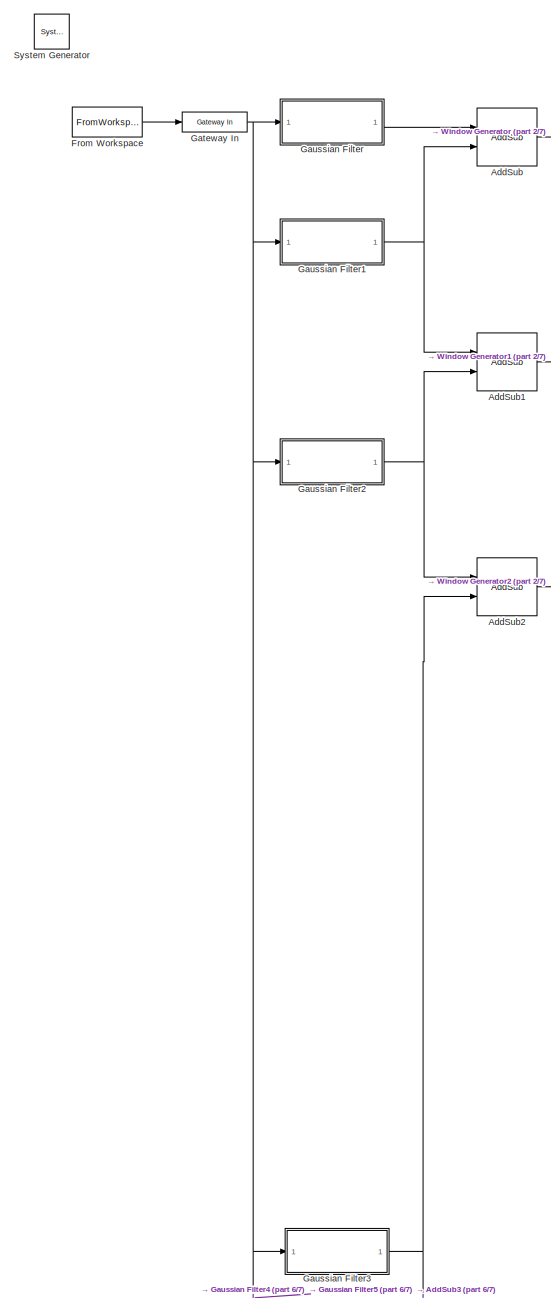
[diagram: root canvas - part 1/7, top left region]
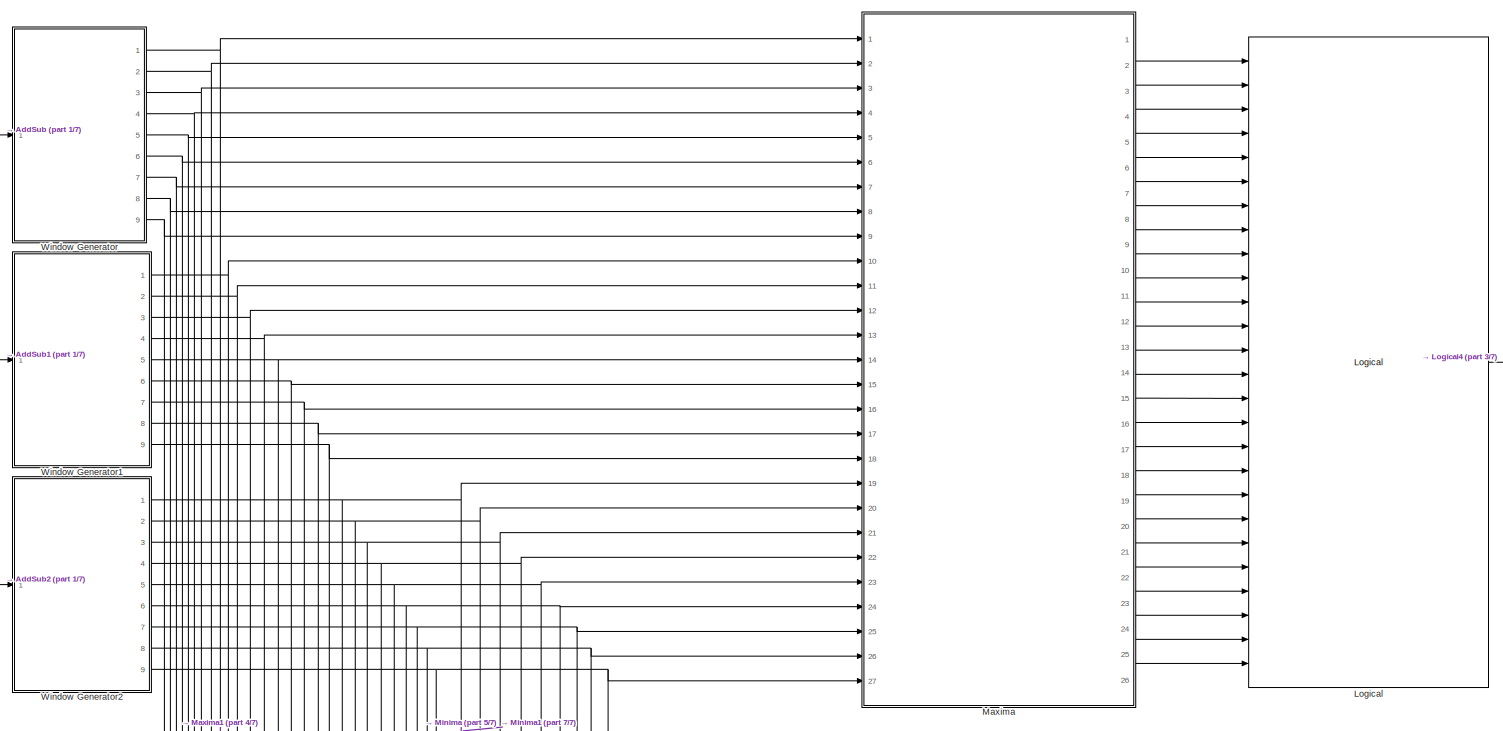
[diagram: root canvas - part 2/7, top center region]
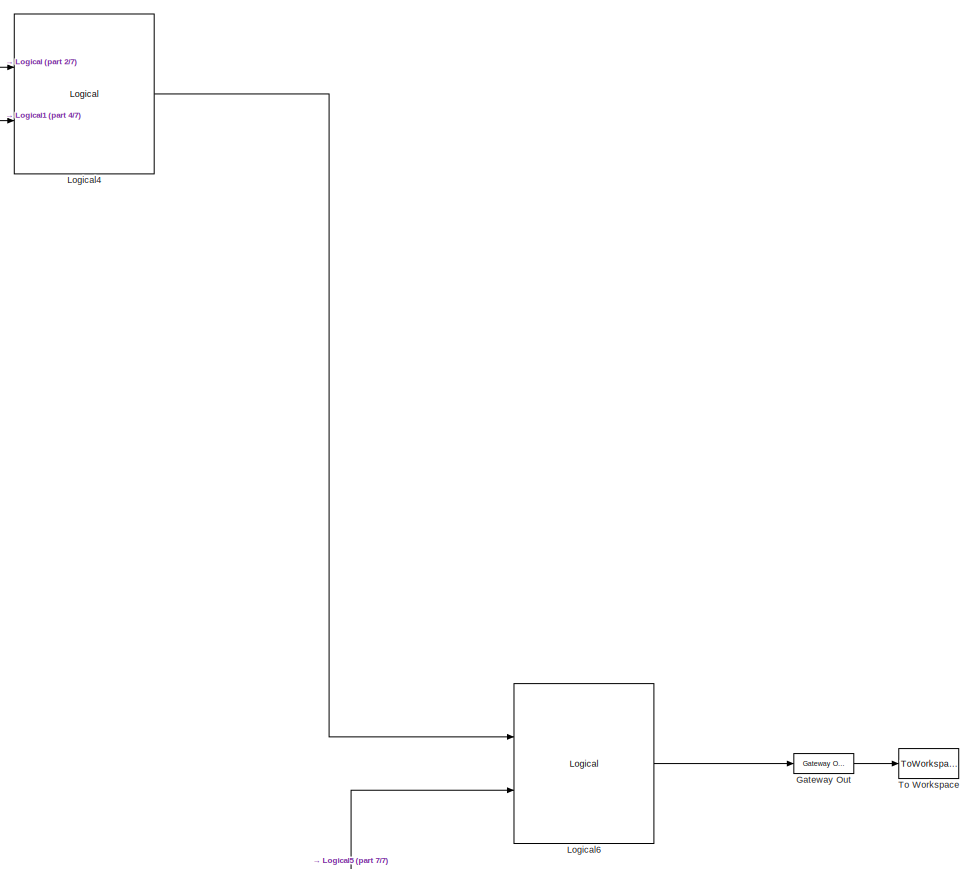
[diagram: root canvas - part 3/7, middle right region]
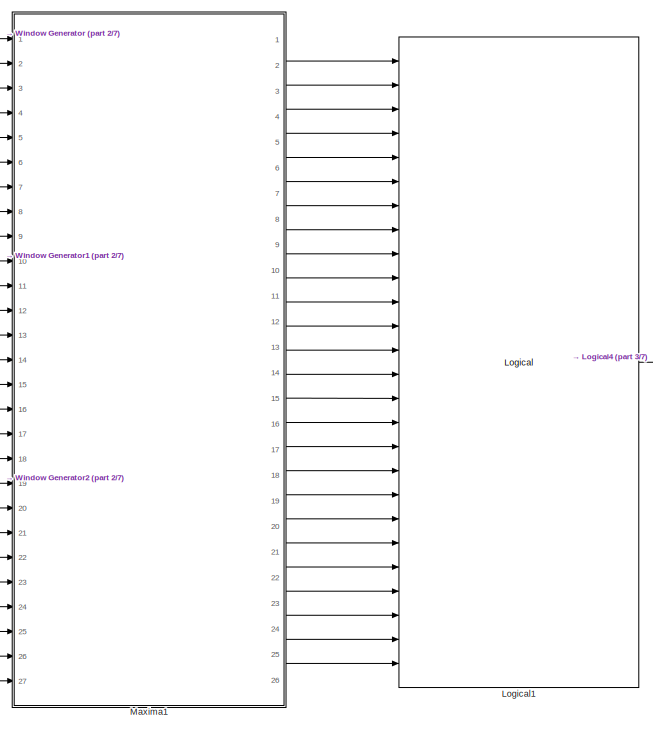
[diagram: root canvas - part 4/7, central region]
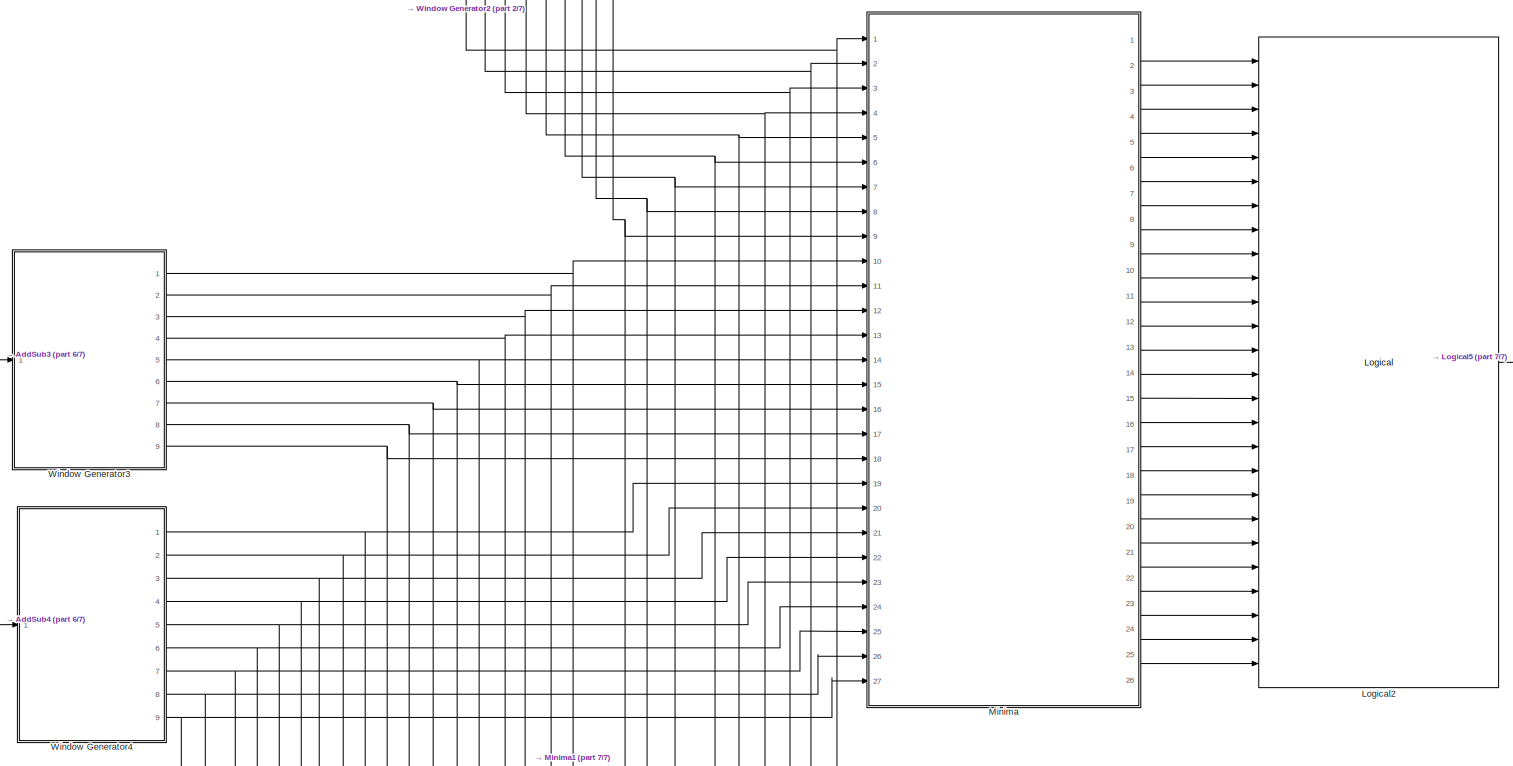
[diagram: root canvas - part 5/7, central region]
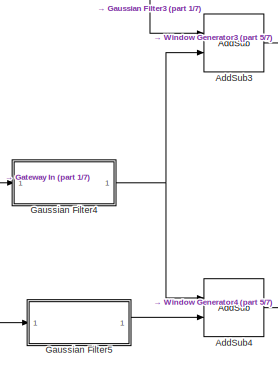
[diagram: root canvas - part 6/7, middle left region]
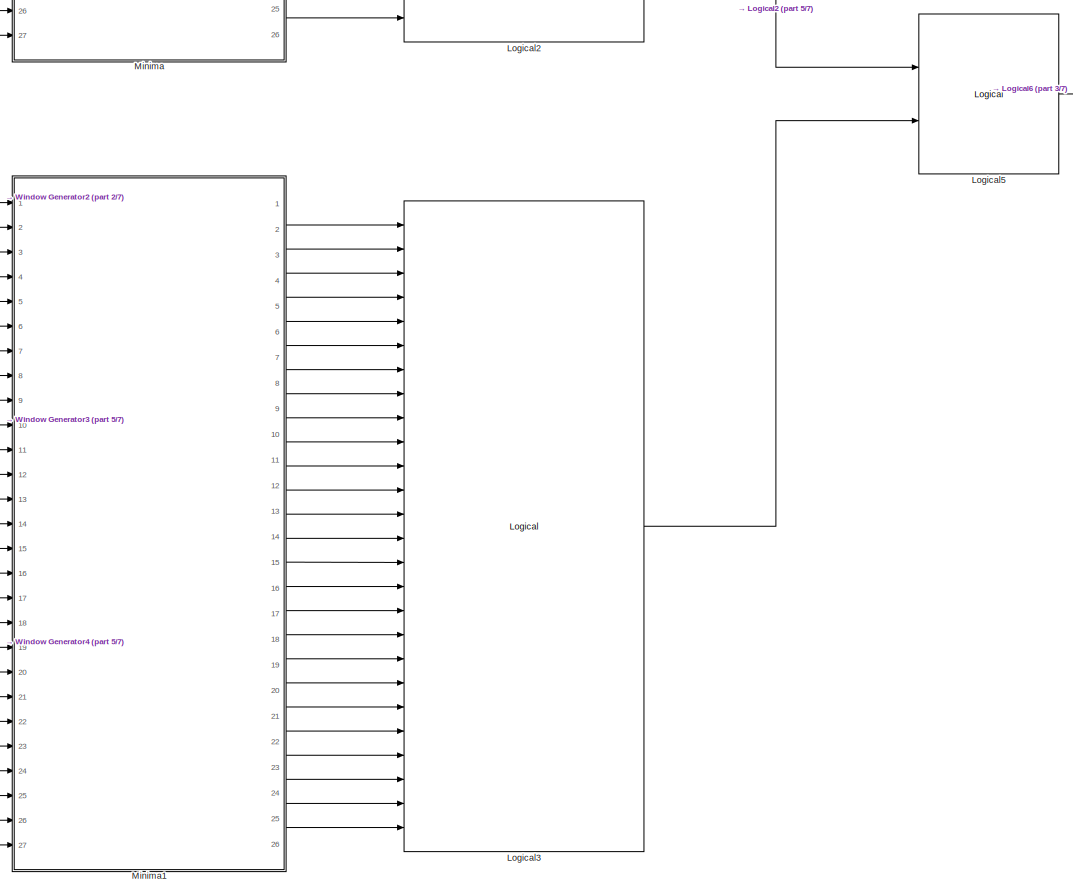
[diagram: root canvas - part 7/7, bottom center region]
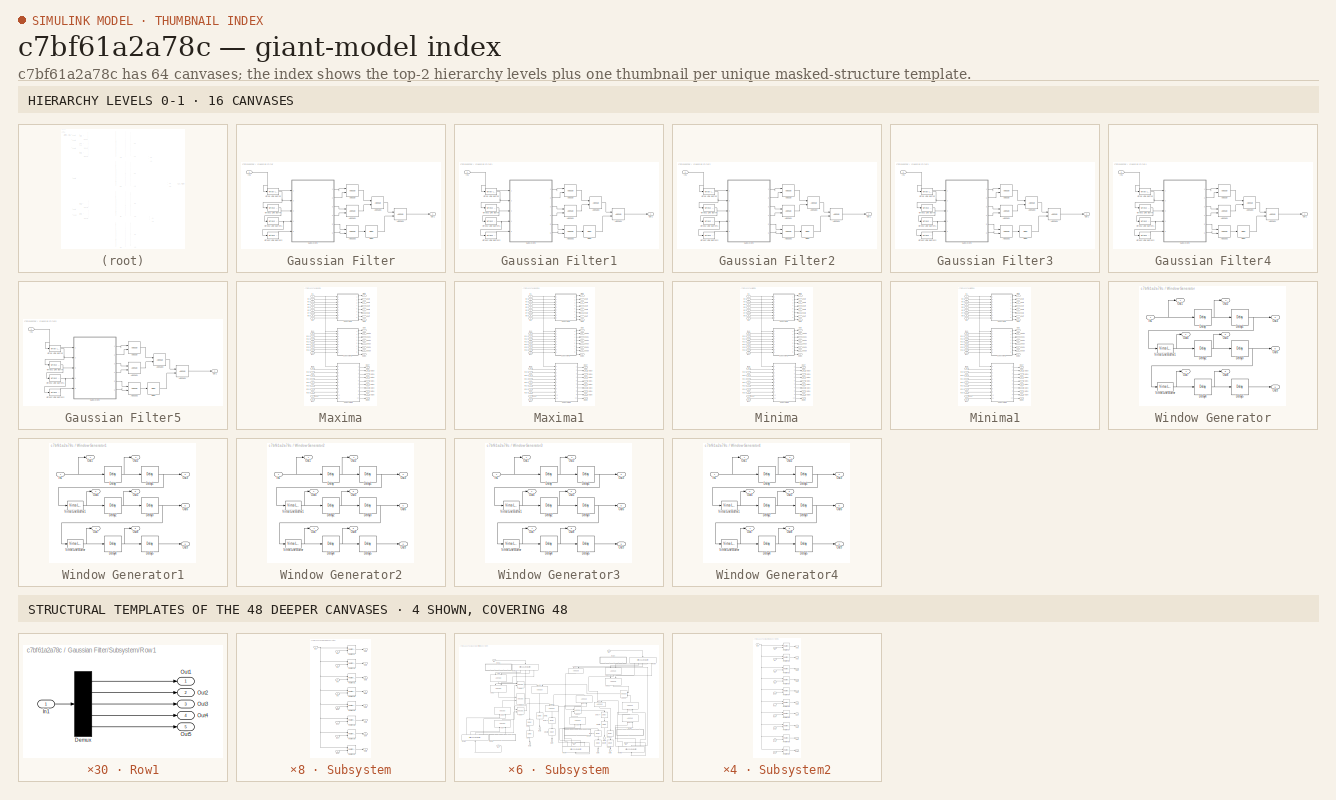
[diagram: thumbnail index - top-2 hierarchy levels (16 canvases) + 4 structural-template representatives of the remaining 48 canvases]
MODEL slx_c7bf61a2a78c
KIND model
BLOCK [Reference]  System Generator  REF=xbsIndex_r4/ System Generator
  AttributesFormatString = System\nGenerator
  Impl_file = ISE Defaults
  Ports = []
  SourceBlock = xbsIndex_r4/ System Generator
  SourceType = Xilinx System Generator Block
  Synth_file = XST Defaults
  Tag = genX
  UserDataPersistent = on
  block_type = sysgen
  clock_wrapper = Clock Enables
  core_generation = According to Block Masks
  dbl_ovrd = According to Block Masks
  dcm_input_clock_period = 10
  deprecated_control = off
  directory = ./netlist
  eval_field = 0
  has_advanced_control = 0
  incr_netlist = off
  infoedit = System Generator
  package = fbg676
  part = xc7k325t
  proj_type = Project Navigator
  run_coregen = off
  sg_icon_stat = 35,35,0,0,token,white,0,58c5b5770fe5f7c311f53dbc6e73f0f6,right,,[ ],[ ]
  sg_mask_display = fprintf('','COMMENT: begin icon graphics');\npatch([0 35 35 0 0 ],[0 0 35 35 0 ],[1 1 1 ]);\npatch([0.3125 11.15 18.65 26.15 33.65 18.65 7.8125 0.3125 ],[25.325 25.325 32.825 25.325 32.825 32.825 32.825 25.325 ],[0.933333 0.203922 0.141176 ]);\npatch([7.8125 18.65 11.15 0.3125 7.8125 ],[17.825 17.825 25.325 25.325 17.825 ],[0.698039 0.0313725 0.219608 ]);\npatch([0.3125 11.15 18.65 7.8125 0.3125 ],[10...<+321ch>
  sggui_pos = -1,-1,-1,-1
  simulink_period = 1
  speed = -3
  synthesis_tool = XST
  sysclk_period = 10
  testbench = off
  trim_vbits = Everywhere in SubSystem
  xilinxfamily = Kintex7
BLOCK [Reference] AddSub  REF=xbsIndex_r4/AddSub
  Ports = [2, 1]
  SourceBlock = xbsIndex_r4/AddSub
  SourceType = Xilinx Adder/Subtracter Block
  arith_type = Unsigned
  bin_pt = 0
  block_type = addsub
  dbl_ovrd = off
  en = off
  has_advanced_control = 0
  hw_selection = Fabric
  latency = 0
  mode = Subtraction
  n_bits = 8
  overflow = Saturate
  pipelined = off
  precision = User Defined
  quantization = Round  (unbiased: +/- Inf)
  sg_icon_stat = 60,58,2,1,white,blue,0,32e1f85f,right,,[ ],[ ]
  sg_mask_display = fprintf('','COMMENT: begin icon graphics');\npatch([0 60 60 0 0 ],[0 0 58 58 0 ],[0.77 0.82 0.91 ]);\nplot([0 60 60 0 0 ],[0 0 58 58 0 ]);\npatch([12.2 23.76 31.76 39.76 47.76 31.76 20.2 12.2 ],[37.88 37.88 45.88 37.88 45.88 45.88 45.88 37.88 ],[1 1 1 ]);\npatch([20.2 31.76 23.76 12.2 20.2 ],[29.88 29.88 37.88 37.88 29.88 ],[0.931 0.946 0.973 ]);\npatch([12.2 23.76 31.76 20.2 12.2 ],[21.88 21.88 29.88 ...<+411ch>  <repeated x59 — deduplicated; at blocks: AddSub, AddSub1, AddSub2, AddSub3, AddSub4, Add11, Add18, Add6, Add8>
  sggui_pos = -1,-1,-1,-1
  use_behavioral_HDL = off
  use_carryin = off
  use_carryout = off
  xl_area = [0,0,0,0,0,0,0]
  xl_use_area = off
BLOCK [Reference] AddSub1  REF=xbsIndex_r4/AddSub
  Ports = [2, 1]
  SourceBlock = xbsIndex_r4/AddSub
  SourceType = Xilinx Adder/Subtracter Block
  arith_type = Unsigned
  bin_pt = 0
  block_type = addsub
  dbl_ovrd = off
  en = off
  has_advanced_control = 0
  hw_selection = Fabric
  latency = 0
  mode = Subtraction
  n_bits = 8
  overflow = Saturate
  pipelined = off
  precision = User Defined
  quantization = Round  (unbiased: +/- Inf)
  sg_icon_stat = 60,58,2,1,white,blue,0,32e1f85f,right,,[ ],[ ]
  sggui_pos = -1,-1,-1,-1
  use_behavioral_HDL = off
  use_carryin = off
  use_carryout = off
  xl_area = [0,0,0,0,0,0,0]
  xl_use_area = off
BLOCK [Reference] AddSub2  REF=xbsIndex_r4/AddSub
  Ports = [2, 1]
  SourceBlock = xbsIndex_r4/AddSub
  SourceType = Xilinx Adder/Subtracter Block
  arith_type = Unsigned
  bin_pt = 0
  block_type = addsub
  dbl_ovrd = off
  en = off
  has_advanced_control = 0
  hw_selection = Fabric
  latency = 0
  mode = Subtraction
  n_bits = 8
  overflow = Saturate
  pipelined = off
  precision = User Defined
  quantization = Round  (unbiased: +/- Inf)
  sg_icon_stat = 60,58,2,1,white,blue,0,32e1f85f,right,,[ ],[ ]
  sggui_pos = -1,-1,-1,-1
  use_behavioral_HDL = off
  use_carryin = off
  use_carryout = off
  xl_area = [0,0,0,0,0,0,0]
  xl_use_area = off
BLOCK [Reference] AddSub3  REF=xbsIndex_r4/AddSub
  Ports = [2, 1]
  SourceBlock = xbsIndex_r4/AddSub
  SourceType = Xilinx Adder/Subtracter Block
  arith_type = Unsigned
  bin_pt = 0
  block_type = addsub
  dbl_ovrd = off
  en = off
  has_advanced_control = 0
  hw_selection = Fabric
  latency = 0
  mode = Subtraction
  n_bits = 8
  overflow = Saturate
  pipelined = off
  precision = User Defined
  quantization = Round  (unbiased: +/- Inf)
  sg_icon_stat = 60,58,2,1,white,blue,0,32e1f85f,right,,[ ],[ ]
  sggui_pos = -1,-1,-1,-1
  use_behavioral_HDL = off
  use_carryin = off
  use_carryout = off
  xl_area = [0,0,0,0,0,0,0]
  xl_use_area = off
BLOCK [Reference] AddSub4  REF=xbsIndex_r4/AddSub
  Ports = [2, 1]
  SourceBlock = xbsIndex_r4/AddSub
  SourceType = Xilinx Adder/Subtracter Block
  arith_type = Unsigned
  bin_pt = 0
  block_type = addsub
  dbl_ovrd = off
  en = off
  has_advanced_control = 0
  hw_selection = Fabric
  latency = 0
  mode = Subtraction
  n_bits = 8
  overflow = Saturate
  pipelined = off
  precision = User Defined
  quantization = Round  (unbiased: +/- Inf)
  sg_icon_stat = 60,58,2,1,white,blue,0,32e1f85f,right,,[ ],[ ]
  sggui_pos = -1,-1,-1,-1
  use_behavioral_HDL = off
  use_carryin = off
  use_carryout = off
  xl_area = [0,0,0,0,0,0,0]
  xl_use_area = off
BLOCK [FromWorkspace] From Workspace
  Interpolate = off
  OutputAfterFinalValue = Setting to zero
  SampleTime = 1
  VariableName = grayScaleSignal
BLOCK [Reference] Gateway In  REF=xbsIndex_r4/Gateway In
  ADCChannel = '1'
  LOCs = {}
  Ports = [1, 1]
  SourceBlock = xbsIndex_r4/Gateway In
  SourceType = Xilinx Gateway In Block
  UseAsADC = off
  arith_type = Unsigned
  bin_pt = 0
  block_type = gatewayin
  dbl_ovrd = off
  exp_width = 8
  frac_width = 24
  gui_display_data_type = Fixed-point
  has_advanced_control = 0
  hdl_port = on
  infoedit = Gateway in block.  Converts inputs of type Simulink integer, single, double and fixed-point to  Xilinx fixed-point or floating-point data type.<br><br>Hardware notes:  In hardware these blocks become top level input ports.
  inherit_from_input = off
  locs_specified = off
  n_bits = 8
  overflow = Saturate
  period = 1
  preci_type = Single
  quantization = Round  (unbiased: +/- Inf)
  sg_icon_stat = 65,20,1,1,white,yellow,1,00d3666e,right,,[ ],[ ]
  sg_mask_display = fprintf('','COMMENT: begin icon graphics');\npatch([0 65 65 0 0 ],[0 0 20 20 0 ],[0.95 0.93 0.65 ]);\nplot([0 65 65 0 0 ],[0 0 20 20 0 ]);\npatch([27.55 30.44 32.44 34.44 36.44 32.44 29.55 27.55 ],[12.22 12.22 14.22 12.22 14.22 14.22 14.22 12.22 ],[1 1 1 ]);\npatch([29.55 32.44 30.44 27.55 29.55 ],[10.22 10.22 12.22 12.22 10.22 ],[0.985 0.979 0.895 ]);\npatch([27.55 30.44 32.44 29.55 27.55 ],[8.22 8.22...<+383ch>
  sggui_pos = -1,-1,-1,-1
  timing_constraint = None
  xl_area = [0,0,0,0,0,0,0]
  xl_use_area = off
BLOCK [Reference] Gateway Out  REF=xbsIndex_r4/Gateway Out
  DACChannel = '1'
  LOCs = {}
  Ports = [1, 1]
  SourceBlock = xbsIndex_r4/Gateway Out
  SourceType = Xilinx Gateway Out Block
  UseAsDAC = off
  block_type = gatewayout
  has_advanced_control = 0
  hdl_port = on
  infoedit = Gateway out block.  Converts Xilinx fixed-point or floating-point type inputs into ouputs of type Simulink integer, single, double, or fixed-point.<br><br>Hardware notes:  In hardware these blocks become top level output ports or are discarded, depending on how they are configured.
  inherit_from_input = off
  locs_specified = off
  sg_icon_stat = 60,20,1,1,white,yellow,1,cc31b7ac,right,,[ ],[ ]
  sg_mask_display = fprintf('','COMMENT: begin icon graphics');\npatch([0 60 60 0 0 ],[0 0 20 20 0 ],[0.95 0.93 0.65 ]);\nplot([0 60 60 0 0 ],[0 0 20 20 0 ]);\npatch([25.55 28.44 30.44 32.44 34.44 30.44 27.55 25.55 ],[12.22 12.22 14.22 12.22 14.22 14.22 14.22 12.22 ],[1 1 1 ]);\npatch([27.55 30.44 28.44 25.55 27.55 ],[10.22 10.22 12.22 12.22 10.22 ],[0.985 0.979 0.895 ]);\npatch([25.55 28.44 30.44 27.55 25.55 ],[8.22 8.22...<+384ch>
  sggui_pos = -1,-1,-1,-1
  timing_constraint = Data Rate;  Set 'FAST' Attribute
  xl_area = [0,0,0,0,0,0,0]
  xl_use_area = off
BLOCK [SubSystem] Gaussian Filter
  FunctionWithSeparateData = off
  MaskHideContents = off
  MinAlgLoopOccurrences = off
  Opaque = off
  Ports = [1, 1]
  PropExecContextOutsideSubsystem = off
  RTWSystemCode = Auto
  RequestExecContextInheritance = off
BLOCK [Reference] Gaussian Filter/AddSub  REF=xbsIndex_r4/AddSub
  Ports = [2, 1]
  SourceBlock = xbsIndex_r4/AddSub
  SourceType = Xilinx Adder/Subtracter Block
  arith_type = Unsigned
  bin_pt = 14
  block_type = addsub
  dbl_ovrd = off
  en = off
  has_advanced_control = 0
  hw_selection = Fabric
  latency = 0
  mode = Addition
  n_bits = 16
  overflow = Wrap
  pipelined = off
  precision = Full
  quantization = Truncate
  sg_icon_stat = 60,58,2,1,white,blue,0,e139daf6,right,,[ ],[ ]
  sggui_pos = -1,-1,-1,-1
  use_behavioral_HDL = off
  use_carryin = off
  use_carryout = off
  xl_area = [0,0,0,0,0,0,0]
  xl_use_area = off
BLOCK [Reference] Gaussian Filter/AddSub1  REF=xbsIndex_r4/AddSub
  Ports = [2, 1]
  SourceBlock = xbsIndex_r4/AddSub
  SourceType = Xilinx Adder/Subtracter Block
  arith_type = Unsigned
  bin_pt = 14
  block_type = addsub
  dbl_ovrd = off
  en = off
  has_advanced_control = 0
  hw_selection = Fabric
  latency = 0
  mode = Addition
  n_bits = 16
  overflow = Wrap
  pipelined = off
  precision = Full
  quantization = Truncate
  sg_icon_stat = 60,58,2,1,white,blue,0,e139daf6,right,,[ ],[ ]
  sggui_pos = -1,-1,-1,-1
  use_behavioral_HDL = off
  use_carryin = off
  use_carryout = off
  xl_area = [0,0,0,0,0,0,0]
  xl_use_area = off
BLOCK [Reference] Gaussian Filter/AddSub2  REF=xbsIndex_r4/AddSub
  Ports = [2, 1]
  SourceBlock = xbsIndex_r4/AddSub
  SourceType = Xilinx Adder/Subtracter Block
  arith_type = Unsigned
  bin_pt = 14
  block_type = addsub
  dbl_ovrd = off
  en = off
  has_advanced_control = 0
  hw_selection = Fabric
  latency = 0
  mode = Addition
  n_bits = 16
  overflow = Wrap
  pipelined = off
  precision = Full
  quantization = Truncate
  sg_icon_stat = 60,58,2,1,white,blue,0,e139daf6,right,,[ ],[ ]
  sggui_pos = -1,-1,-1,-1
  use_behavioral_HDL = off
  use_carryin = off
  use_carryout = off
  xl_area = [0,0,0,0,0,0,0]
  xl_use_area = off
BLOCK [Reference] Gaussian Filter/AddSub3  REF=xbsIndex_r4/AddSub
  Ports = [2, 1]
  SourceBlock = xbsIndex_r4/AddSub
  SourceType = Xilinx Adder/Subtracter Block
  arith_type = Unsigned
  bin_pt = 14
  block_type = addsub
  dbl_ovrd = off
  en = off
  has_advanced_control = 0
  hw_selection = Fabric
  latency = 0
  mode = Addition
  n_bits = 16
  overflow = Wrap
  pipelined = off
  precision = Full
  quantization = Truncate
  sg_icon_stat = 60,58,2,1,white,blue,0,e139daf6,right,,[ ],[ ]
  sggui_pos = -1,-1,-1,-1
  use_behavioral_HDL = off
  use_carryin = off
  use_carryout = off
  xl_area = [0,0,0,0,0,0,0]
  xl_use_area = off
BLOCK [Reference] Gaussian Filter/AddSub4  REF=xbsIndex_r4/AddSub
  Ports = [2, 1]
  SourceBlock = xbsIndex_r4/AddSub
  SourceType = Xilinx Adder/Subtracter Block
  arith_type = Unsigned
  bin_pt = 14
  block_type = addsub
  dbl_ovrd = off
  en = off
  has_advanced_control = 0
  hw_selection = Fabric
  latency = 0
  mode = Addition
  n_bits = 16
  overflow = Wrap
  pipelined = off
  precision = Full
  quantization = Truncate
  sg_icon_stat = 60,58,2,1,white,blue,0,e139daf6,right,,[ ],[ ]
  sggui_pos = -1,-1,-1,-1
  use_behavioral_HDL = off
  use_carryin = off
  use_carryout = off
  xl_area = [0,0,0,0,0,0,0]
  xl_use_area = off
BLOCK [Reference] Gaussian Filter/Delay  REF=xbsIndex_r4/Delay
  Ports = [1, 1]
  SourceBlock = xbsIndex_r4/Delay
  SourceType = Xilinx Delay Block
  block_type = delay
  dbl_ovrd = off
  en = off
  has_advanced_control = 0
  infoedit = Hardware notes: A delay line is a chain, each link of which is an SRL16 followed by a flip-flop.
  infoeditControl = Selection of Reset will increase slice count due to use of real FFs and instead of SRLs
  latency = 1
  reg_retiming = off
  rst = off
  sg_icon_stat = 60,56,1,1,white,blue,0,07b98262,right,,[ ],[ ]
  sg_mask_display = fprintf('','COMMENT: begin icon graphics');\npatch([0 60 60 0 0 ],[0 0 56 56 0 ],[0.77 0.82 0.91 ]);\nplot([0 60 60 0 0 ],[0 0 56 56 0 ]);\npatch([12.2 23.76 31.76 39.76 47.76 31.76 20.2 12.2 ],[36.88 36.88 44.88 36.88 44.88 44.88 44.88 36.88 ],[1 1 1 ]);\npatch([20.2 31.76 23.76 12.2 20.2 ],[28.88 28.88 36.88 36.88 28.88 ],[0.931 0.946 0.973 ]);\npatch([12.2 23.76 31.76 20.2 12.2 ],[20.88 20.88 28.88 ...<+308ch>  <repeated x36 — deduplicated; at blocks: Delay, Delay1, Delay2, Delay3, Delay4, Delay5>
  sggui_pos = -1,-1,-1,-1
  xl_area = [0,0,0,0,0,0,0]
  xl_use_area = off
BLOCK [Inport] Gaussian Filter/In1
  IconDisplay = Port number
BLOCK [Outport] Gaussian Filter/Out1
  IconDisplay = Port number
BLOCK [SubSystem] Gaussian Filter/Subsystem
  FunctionWithSeparateData = off
  MaskHideContents = off
  MinAlgLoopOccurrences = off
  Opaque = off
  Ports = [5, 6]
  PropExecContextOutsideSubsystem = off
  RTWSystemCode = Auto
  RequestExecContextInheritance = off
BLOCK [Reference] Gaussian Filter/Subsystem/Add  REF=xbsIndex_r4/AddSub
  Ports = [2, 1]
  SourceBlock = xbsIndex_r4/AddSub
  SourceType = Xilinx Adder/Subtracter Block
  arith_type = Unsigned
  bin_pt = 14
  block_type = addsub
  dbl_ovrd = off
  en = off
  has_advanced_control = 0
  hw_selection = Fabric
  latency = 0
  mode = Addition
  n_bits = 16
  overflow = Wrap
  pipelined = off
  precision = Full
  quantization = Truncate
  sg_icon_stat = 138,60,2,1,white,blue,0,e139daf6,down,,[ ],[ ]
  sg_mask_display = fprintf('','COMMENT: begin icon graphics');\npatch([0 138 138 0 0 ],[0 0 60 60 0 ],[0.77 0.82 0.91 ]);\nplot([0 138 138 0 0 ],[0 0 60 60 0 ]);\npatch([51.2 62.76 70.76 78.76 86.76 70.76 59.2 51.2 ],[38.88 38.88 46.88 38.88 46.88 46.88 46.88 38.88 ],[1 1 1 ]);\npatch([59.2 70.76 62.76 51.2 59.2 ],[30.88 30.88 38.88 38.88 30.88 ],[0.931 0.946 0.973 ]);\npatch([51.2 62.76 70.76 59.2 51.2 ],[22.88 22.88 30...<+415ch>  <repeated x66 — deduplicated; at blocks: Add, Add1, Add10, Add12, Add13, Add14, Add15, Add2, Add3, Add4, Add9>
  sggui_pos = -1,-1,-1,-1
  use_behavioral_HDL = off
  use_carryin = off
  use_carryout = off
  xl_area = [0,0,0,0,0,0,0]
  xl_use_area = off
BLOCK [Reference] Gaussian Filter/Subsystem/Add1  REF=xbsIndex_r4/AddSub
  Ports = [2, 1]
  SourceBlock = xbsIndex_r4/AddSub
  SourceType = Xilinx Adder/Subtracter Block
  arith_type = Unsigned
  bin_pt = 14
  block_type = addsub
  dbl_ovrd = off
  en = off
  has_advanced_control = 0
  hw_selection = Fabric
  latency = 0
  mode = Addition
  n_bits = 16
  overflow = Wrap
  pipelined = off
  precision = Full
  quantization = Truncate
  sg_icon_stat = 138,60,2,1,white,blue,0,e139daf6,down,,[ ],[ ]
  sggui_pos = -1,-1,-1,-1
  use_behavioral_HDL = off
  use_carryin = off
  use_carryout = off
  xl_area = [0,0,0,0,0,0,0]
  xl_use_area = off
BLOCK [Reference] Gaussian Filter/Subsystem/Add10  REF=xbsIndex_r4/AddSub
  Ports = [2, 1]
  SourceBlock = xbsIndex_r4/AddSub
  SourceType = Xilinx Adder/Subtracter Block
  arith_type = Unsigned
  bin_pt = 14
  block_type = addsub
  dbl_ovrd = off
  en = off
  has_advanced_control = 0
  hw_selection = Fabric
  latency = 0
  mode = Addition
  n_bits = 16
  overflow = Wrap
  pipelined = off
  precision = Full
  quantization = Truncate
  sg_icon_stat = 138,60,2,1,white,blue,0,e139daf6,up,,[ ],[ ]
  sggui_pos = -1,-1,-1,-1
  use_behavioral_HDL = off
  use_carryin = off
  use_carryout = off
  xl_area = [0,0,0,0,0,0,0]
  xl_use_area = off
BLOCK [Reference] Gaussian Filter/Subsystem/Add11  REF=xbsIndex_r4/AddSub
  Ports = [2, 1]
  SourceBlock = xbsIndex_r4/AddSub
  SourceType = Xilinx Adder/Subtracter Block
  arith_type = Unsigned
  bin_pt = 14
  block_type = addsub
  dbl_ovrd = off
  en = off
  has_advanced_control = 0
  hw_selection = Fabric
  latency = 0
  mode = Addition
  n_bits = 16
  overflow = Wrap
  pipelined = off
  precision = Full
  quantization = Truncate
  sg_icon_stat = 60,58,2,1,white,blue,0,e139daf6,right,,[ ],[ ]
  sggui_pos = -1,-1,-1,-1
  use_behavioral_HDL = off
  use_carryin = off
  use_carryout = off
  xl_area = [0,0,0,0,0,0,0]
  xl_use_area = off
BLOCK [Reference] Gaussian Filter/Subsystem/Add12  REF=xbsIndex_r4/AddSub
  Ports = [2, 1]
  SourceBlock = xbsIndex_r4/AddSub
  SourceType = Xilinx Adder/Subtracter Block
  arith_type = Unsigned
  bin_pt = 14
  block_type = addsub
  dbl_ovrd = off
  en = off
  has_advanced_control = 0
  hw_selection = Fabric
  latency = 0
  mode = Addition
  n_bits = 16
  overflow = Wrap
  pipelined = off
  precision = Full
  quantization = Truncate
  sg_icon_stat = 138,60,2,1,white,blue,0,e139daf6,down,,[ ],[ ]
  sggui_pos = -1,-1,-1,-1
  use_behavioral_HDL = off
  use_carryin = off
  use_carryout = off
  xl_area = [0,0,0,0,0,0,0]
  xl_use_area = off
BLOCK [Reference] Gaussian Filter/Subsystem/Add13  REF=xbsIndex_r4/AddSub
  Ports = [2, 1]
  SourceBlock = xbsIndex_r4/AddSub
  SourceType = Xilinx Adder/Subtracter Block
  arith_type = Unsigned
  bin_pt = 14
  block_type = addsub
  dbl_ovrd = off
  en = off
  has_advanced_control = 0
  hw_selection = Fabric
  latency = 0
  mode = Addition
  n_bits = 16
  overflow = Wrap
  pipelined = off
  precision = Full
  quantization = Truncate
  sg_icon_stat = 138,60,2,1,white,blue,0,e139daf6,down,,[ ],[ ]
  sggui_pos = -1,-1,-1,-1
  use_behavioral_HDL = off
  use_carryin = off
  use_carryout = off
  xl_area = [0,0,0,0,0,0,0]
  xl_use_area = off
BLOCK [Reference] Gaussian Filter/Subsystem/Add14  REF=xbsIndex_r4/AddSub
  Ports = [2, 1]
  SourceBlock = xbsIndex_r4/AddSub
  SourceType = Xilinx Adder/Subtracter Block
  arith_type = Unsigned
  bin_pt = 14
  block_type = addsub
  dbl_ovrd = off
  en = off
  has_advanced_control = 0
  hw_selection = Fabric
  latency = 0
  mode = Addition
  n_bits = 16
  overflow = Wrap
  pipelined = off
  precision = Full
  quantization = Truncate
  sg_icon_stat = 138,60,2,1,white,blue,0,e139daf6,up,,[ ],[ ]
  sggui_pos = -1,-1,-1,-1
  use_behavioral_HDL = off
  use_carryin = off
  use_carryout = off
  xl_area = [0,0,0,0,0,0,0]
  xl_use_area = off
BLOCK [Reference] Gaussian Filter/Subsystem/Add15  REF=xbsIndex_r4/AddSub
  Ports = [2, 1]
  SourceBlock = xbsIndex_r4/AddSub
  SourceType = Xilinx Adder/Subtracter Block
  arith_type = Unsigned
  bin_pt = 14
  block_type = addsub
  dbl_ovrd = off
  en = off
  has_advanced_control = 0
  hw_selection = Fabric
  latency = 0
  mode = Addition
  n_bits = 16
  overflow = Wrap
  pipelined = off
  precision = Full
  quantization = Truncate
  sg_icon_stat = 138,60,2,1,white,blue,0,e139daf6,up,,[ ],[ ]
  sggui_pos = -1,-1,-1,-1
  use_behavioral_HDL = off
  use_carryin = off
  use_carryout = off
  xl_area = [0,0,0,0,0,0,0]
  xl_use_area = off
BLOCK [Reference] Gaussian Filter/Subsystem/Add16  REF=xbsIndex_r4/AddSub
  Ports = [2, 1]
  SourceBlock = xbsIndex_r4/AddSub
  SourceType = Xilinx Adder/Subtracter Block
  arith_type = Unsigned
  bin_pt = 14
  block_type = addsub
  dbl_ovrd = off
  en = off
  has_advanced_control = 0
  hw_selection = Fabric
  latency = 0
  mode = Addition
  n_bits = 16
  overflow = Wrap
  pipelined = off
  precision = Full
  quantization = Truncate
  sg_icon_stat = 98,40,2,1,white,blue,0,e139daf6,down,,[ ],[ ]
  sg_mask_display = fprintf('','COMMENT: begin icon graphics');\npatch([0 98 98 0 0 ],[0 0 40 40 0 ],[0.77 0.82 0.91 ]);\nplot([0 98 98 0 0 ],[0 0 40 40 0 ]);\npatch([37.875 45.1 50.1 55.1 60.1 50.1 42.875 37.875 ],[25.55 25.55 30.55 25.55 30.55 30.55 30.55 25.55 ],[1 1 1 ]);\npatch([42.875 50.1 45.1 37.875 42.875 ],[20.55 20.55 25.55 25.55 20.55 ],[0.931 0.946 0.973 ]);\npatch([37.875 45.1 50.1 42.875 37.875 ],[15.55 15....<+422ch>  <repeated x6 — deduplicated; at blocks: Add16>
  sggui_pos = -1,-1,-1,-1
  use_behavioral_HDL = off
  use_carryin = off
  use_carryout = off
  xl_area = [0,0,0,0,0,0,0]
  xl_use_area = off
BLOCK [Reference] Gaussian Filter/Subsystem/Add17  REF=xbsIndex_r4/AddSub
  Ports = [2, 1]
  SourceBlock = xbsIndex_r4/AddSub
  SourceType = Xilinx Adder/Subtracter Block
  arith_type = Unsigned
  bin_pt = 14
  block_type = addsub
  dbl_ovrd = off
  en = off
  has_advanced_control = 0
  hw_selection = Fabric
  latency = 0
  mode = Addition
  n_bits = 16
  overflow = Wrap
  pipelined = off
  precision = Full
  quantization = Truncate
  sg_icon_stat = 124,45,2,1,white,blue,0,e139daf6,down,,[ ],[ ]
  sg_mask_display = fprintf('','COMMENT: begin icon graphics');\npatch([0 124 124 0 0 ],[0 0 45 45 0 ],[0.77 0.82 0.91 ]);\nplot([0 124 124 0 0 ],[0 0 45 45 0 ]);\npatch([48.65 57.32 63.32 69.32 75.32 63.32 54.65 48.65 ],[28.66 28.66 34.66 28.66 34.66 34.66 34.66 28.66 ],[1 1 1 ]);\npatch([54.65 63.32 57.32 48.65 54.65 ],[22.66 22.66 28.66 28.66 22.66 ],[0.931 0.946 0.973 ]);\npatch([48.65 57.32 63.32 54.65 48.65 ],[16.66...<+427ch>  <repeated x6 — deduplicated; at blocks: Add17>
  sggui_pos = -1,-1,-1,-1
  use_behavioral_HDL = off
  use_carryin = off
  use_carryout = off
  xl_area = [0,0,0,0,0,0,0]
  xl_use_area = off
BLOCK [Reference] Gaussian Filter/Subsystem/Add18  REF=xbsIndex_r4/AddSub
  Ports = [2, 1]
  SourceBlock = xbsIndex_r4/AddSub
  SourceType = Xilinx Adder/Subtracter Block
  arith_type = Unsigned
  bin_pt = 14
  block_type = addsub
  dbl_ovrd = off
  en = off
  has_advanced_control = 0
  hw_selection = Fabric
  latency = 0
  mode = Addition
  n_bits = 16
  overflow = Wrap
  pipelined = off
  precision = Full
  quantization = Truncate
  sg_icon_stat = 60,58,2,1,white,blue,0,e139daf6,left,,[ ],[ ]
  sggui_pos = -1,-1,-1,-1
  use_behavioral_HDL = off
  use_carryin = off
  use_carryout = off
  xl_area = [0,0,0,0,0,0,0]
  xl_use_area = off
BLOCK [Reference] Gaussian Filter/Subsystem/Add2  REF=xbsIndex_r4/AddSub
  Ports = [2, 1]
  SourceBlock = xbsIndex_r4/AddSub
  SourceType = Xilinx Adder/Subtracter Block
  arith_type = Unsigned
  bin_pt = 14
  block_type = addsub
  dbl_ovrd = off
  en = off
  has_advanced_control = 0
  hw_selection = Fabric
  latency = 0
  mode = Addition
  n_bits = 16
  overflow = Wrap
  pipelined = off
  precision = Full
  quantization = Truncate
  sg_icon_stat = 138,60,2,1,white,blue,0,e139daf6,down,,[ ],[ ]
  sggui_pos = -1,-1,-1,-1
  use_behavioral_HDL = off
  use_carryin = off
  use_carryout = off
  xl_area = [0,0,0,0,0,0,0]
  xl_use_area = off
BLOCK [Reference] Gaussian Filter/Subsystem/Add3  REF=xbsIndex_r4/AddSub
  Ports = [2, 1]
  SourceBlock = xbsIndex_r4/AddSub
  SourceType = Xilinx Adder/Subtracter Block
  arith_type = Unsigned
  bin_pt = 14
  block_type = addsub
  dbl_ovrd = off
  en = off
  has_advanced_control = 0
  hw_selection = Fabric
  latency = 0
  mode = Addition
  n_bits = 16
  overflow = Wrap
  pipelined = off
  precision = Full
  quantization = Truncate
  sg_icon_stat = 138,60,2,1,white,blue,0,e139daf6,up,,[ ],[ ]
  sggui_pos = -1,-1,-1,-1
  use_behavioral_HDL = off
  use_carryin = off
  use_carryout = off
  xl_area = [0,0,0,0,0,0,0]
  xl_use_area = off
BLOCK [Reference] Gaussian Filter/Subsystem/Add4  REF=xbsIndex_r4/AddSub
  Ports = [2, 1]
  SourceBlock = xbsIndex_r4/AddSub
  SourceType = Xilinx Adder/Subtracter Block
  arith_type = Unsigned
  bin_pt = 14
  block_type = addsub
  dbl_ovrd = off
  en = off
  has_advanced_control = 0
  hw_selection = Fabric
  latency = 0
  mode = Addition
  n_bits = 16
  overflow = Wrap
  pipelined = off
  precision = Full
  quantization = Truncate
  sg_icon_stat = 138,60,2,1,white,blue,0,e139daf6,up,,[ ],[ ]
  sggui_pos = -1,-1,-1,-1
  use_behavioral_HDL = off
  use_carryin = off
  use_carryout = off
  xl_area = [0,0,0,0,0,0,0]
  xl_use_area = off
BLOCK [Reference] Gaussian Filter/Subsystem/Add5  REF=xbsIndex_r4/AddSub
  Ports = [2, 1]
  SourceBlock = xbsIndex_r4/AddSub
  SourceType = Xilinx Adder/Subtracter Block
  arith_type = Unsigned
  bin_pt = 14
  block_type = addsub
  dbl_ovrd = off
  en = off
  has_advanced_control = 0
  hw_selection = Fabric
  latency = 0
  mode = Addition
  n_bits = 16
  overflow = Wrap
  pipelined = off
  precision = Full
  quantization = Truncate
  sg_icon_stat = 70,89,2,1,white,blue,0,e139daf6,right,,[ ],[ ]
  sg_mask_display = fprintf('','COMMENT: begin icon graphics');\npatch([0 70 70 0 0 ],[0 0 89 89 0 ],[0.77 0.82 0.91 ]);\nplot([0 70 70 0 0 ],[0 0 89 89 0 ]);\npatch([12.75 27.2 37.2 47.2 57.2 37.2 22.75 12.75 ],[55.1 55.1 65.1 55.1 65.1 65.1 65.1 55.1 ],[1 1 1 ]);\npatch([22.75 37.2 27.2 12.75 22.75 ],[45.1 45.1 55.1 55.1 45.1 ],[0.931 0.946 0.973 ]);\npatch([12.75 27.2 37.2 22.75 12.75 ],[35.1 35.1 45.1 45.1 35.1 ],[1 1...<+385ch>  <repeated x6 — deduplicated; at blocks: Add5>
  sggui_pos = -1,-1,-1,-1
  use_behavioral_HDL = off
  use_carryin = off
  use_carryout = off
  xl_area = [0,0,0,0,0,0,0]
  xl_use_area = off
BLOCK [Reference] Gaussian Filter/Subsystem/Add6  REF=xbsIndex_r4/AddSub
  Ports = [2, 1]
  SourceBlock = xbsIndex_r4/AddSub
  SourceType = Xilinx Adder/Subtracter Block
  arith_type = Unsigned
  bin_pt = 14
  block_type = addsub
  dbl_ovrd = off
  en = off
  has_advanced_control = 0
  hw_selection = Fabric
  latency = 0
  mode = Addition
  n_bits = 16
  overflow = Wrap
  pipelined = off
  precision = Full
  quantization = Truncate
  sg_icon_stat = 60,58,2,1,white,blue,0,e139daf6,right,,[ ],[ ]
  sggui_pos = -1,-1,-1,-1
  use_behavioral_HDL = off
  use_carryin = off
  use_carryout = off
  xl_area = [0,0,0,0,0,0,0]
  xl_use_area = off
BLOCK [Reference] Gaussian Filter/Subsystem/Add7  REF=xbsIndex_r4/AddSub
  Ports = [2, 1]
  SourceBlock = xbsIndex_r4/AddSub
  SourceType = Xilinx Adder/Subtracter Block
  arith_type = Unsigned
  bin_pt = 14
  block_type = addsub
  dbl_ovrd = off
  en = off
  has_advanced_control = 0
  hw_selection = Fabric
  latency = 0
  mode = Addition
  n_bits = 16
  overflow = Wrap
  pipelined = off
  precision = Full
  quantization = Truncate
  sg_icon_stat = 113,50,2,1,white,blue,0,e139daf6,down,,[ ],[ ]
  sg_mask_display = fprintf('','COMMENT: begin icon graphics');\npatch([0 113 113 0 0 ],[0 0 50 50 0 ],[0.77 0.82 0.91 ]);\nplot([0 113 113 0 0 ],[0 0 50 50 0 ]);\npatch([40.425 50.54 57.54 64.54 71.54 57.54 47.425 40.425 ],[32.77 32.77 39.77 32.77 39.77 39.77 39.77 32.77 ],[1 1 1 ]);\npatch([47.425 57.54 50.54 40.425 47.425 ],[25.77 25.77 32.77 32.77 25.77 ],[0.931 0.946 0.973 ]);\npatch([40.425 50.54 57.54 47.425 40.425...<+439ch>  <repeated x6 — deduplicated; at blocks: Add7>
  sggui_pos = -1,-1,-1,-1
  use_behavioral_HDL = off
  use_carryin = off
  use_carryout = off
  xl_area = [0,0,0,0,0,0,0]
  xl_use_area = off
BLOCK [Reference] Gaussian Filter/Subsystem/Add8  REF=xbsIndex_r4/AddSub
  Ports = [2, 1]
  SourceBlock = xbsIndex_r4/AddSub
  SourceType = Xilinx Adder/Subtracter Block
  arith_type = Unsigned
  bin_pt = 14
  block_type = addsub
  dbl_ovrd = off
  en = off
  has_advanced_control = 0
  hw_selection = Fabric
  latency = 0
  mode = Addition
  n_bits = 16
  overflow = Wrap
  pipelined = off
  precision = Full
  quantization = Truncate
  sg_icon_stat = 60,58,2,1,white,blue,0,e139daf6,right,,[ ],[ ]
  sggui_pos = -1,-1,-1,-1
  use_behavioral_HDL = off
  use_carryin = off
  use_carryout = off
  xl_area = [0,0,0,0,0,0,0]
  xl_use_area = off
BLOCK [Reference] Gaussian Filter/Subsystem/Add9  REF=xbsIndex_r4/AddSub
  Ports = [2, 1]
  SourceBlock = xbsIndex_r4/AddSub
  SourceType = Xilinx Adder/Subtracter Block
  arith_type = Unsigned
  bin_pt = 14
  block_type = addsub
  dbl_ovrd = off
  en = off
  has_advanced_control = 0
  hw_selection = Fabric
  latency = 0
  mode = Addition
  n_bits = 16
  overflow = Wrap
  pipelined = off
  precision = Full
  quantization = Truncate
  sg_icon_stat = 138,60,2,1,white,blue,0,e139daf6,up,,[ ],[ ]
  sggui_pos = -1,-1,-1,-1
  use_behavioral_HDL = off
  use_carryin = off
  use_carryout = off
  xl_area = [0,0,0,0,0,0,0]
  xl_use_area = off
BLOCK [Reference] Gaussian Filter/Subsystem/CMult  REF=xbsIndex_r4/CMult
  Ports = [1, 1]
  SourceBlock = xbsIndex_r4/CMult
  SourceType = Xilinx Constant Multiplier Block
  arith_type = Signed  (2's comp)
  bin_pt = 14
  block_type = cmult
  const = 4
  const_bin_pt = 0
  const_n_bits = 8
  dbl_ovrd = off
  en = off
  exp_bits = 8
  float_type = Single
  fraction_bits = 24
  gui_display_data_type = Fixed-point
  has_advanced_control = 0
  latency = 0
  mem_type = Distributed RAM
  n_bits = 16
  overflow = Wrap
  pipeline = off
  precision = Full
  quantization = Truncate
  sg_icon_stat = 56,55,1,1,white,blue,2,1dc4efd8,down,,[ ],[ ]
  sg_mask_display = fprintf('','COMMENT: begin icon graphics');\npatch([28 56 0 28 ],[0 55 55 0 ],[0.77 0.82 0.91 ]);\nplot([28 56 0 28 ],[0 55 55 0 ]);\npatch([18.655 24.724 28.924 33.124 37.324 28.924 22.855 18.655 ],[45.412 45.412 49.612 45.412 49.612 49.612 49.612 45.412 ],[1 1 1 ]);\npatch([22.855 28.924 24.724 18.655 22.855 ],[41.212 41.212 45.412 45.412 41.212 ],[0.931 0.946 0.973 ]);\npatch([18.655 24.724 28.924 2...<+366ch>  <repeated x18 — deduplicated; at blocks: CMult, CMult1, CMult2>
  sggui_pos = -1,-1,-1,-1
  use_behavioral_HDL = off
  xl_area = [0,0,0,0,0,0,0]
  xl_use_area = off
BLOCK [Reference] Gaussian Filter/Subsystem/CMult1  REF=xbsIndex_r4/CMult
  Ports = [1, 1]
  SourceBlock = xbsIndex_r4/CMult
  SourceType = Xilinx Constant Multiplier Block
  arith_type = Signed  (2's comp)
  bin_pt = 14
  block_type = cmult
  const = 4
  const_bin_pt = 0
  const_n_bits = 8
  dbl_ovrd = off
  en = off
  exp_bits = 8
  float_type = Single
  fraction_bits = 24
  gui_display_data_type = Fixed-point
  has_advanced_control = 0
  latency = 0
  mem_type = Distributed RAM
  n_bits = 16
  overflow = Wrap
  pipeline = off
  precision = Full
  quantization = Truncate
  sg_icon_stat = 56,55,1,1,white,blue,2,1dc4efd8,down,,[ ],[ ]
  sggui_pos = -1,-1,-1,-1
  use_behavioral_HDL = off
  xl_area = [0,0,0,0,0,0,0]
  xl_use_area = off
BLOCK [Reference] Gaussian Filter/Subsystem/CMult2  REF=xbsIndex_r4/CMult
  Ports = [1, 1]
  SourceBlock = xbsIndex_r4/CMult
  SourceType = Xilinx Constant Multiplier Block
  arith_type = Signed  (2's comp)
  bin_pt = 14
  block_type = cmult
  const = 6
  const_bin_pt = 0
  const_n_bits = 8
  dbl_ovrd = off
  en = off
  exp_bits = 8
  float_type = Single
  fraction_bits = 24
  gui_display_data_type = Fixed-point
  has_advanced_control = 0
  latency = 0
  mem_type = Distributed RAM
  n_bits = 16
  overflow = Wrap
  pipeline = off
  precision = Full
  quantization = Truncate
  sg_icon_stat = 56,55,1,1,white,blue,2,7720f055,down,,[ ],[ ]
  sggui_pos = -1,-1,-1,-1
  use_behavioral_HDL = off
  xl_area = [0,0,0,0,0,0,0]
  xl_use_area = off
BLOCK [Reference] Gaussian Filter/Subsystem/CMult3  REF=xbsIndex_r4/CMult
  Ports = [1, 1]
  SourceBlock = xbsIndex_r4/CMult
  SourceType = Xilinx Constant Multiplier Block
  arith_type = Signed  (2's comp)
  bin_pt = 14
  block_type = cmult
  const = 16
  const_bin_pt = 0
  const_n_bits = 8
  dbl_ovrd = off
  en = off
  exp_bits = 8
  float_type = Single
  fraction_bits = 24
  gui_display_data_type = Fixed-point
  has_advanced_control = 0
  latency = 0
  mem_type = Distributed RAM
  n_bits = 16
  overflow = Wrap
  pipeline = off
  precision = Full
  quantization = Truncate
  sg_icon_stat = 56,55,1,1,white,blue,2,2fe8e10d,down,,[ ],[ ]
  sg_mask_display = fprintf('','COMMENT: begin icon graphics');\npatch([28 56 0 28 ],[0 55 55 0 ],[0.77 0.82 0.91 ]);\nplot([28 56 0 28 ],[0 55 55 0 ]);\npatch([18.655 24.724 28.924 33.124 37.324 28.924 22.855 18.655 ],[45.412 45.412 49.612 45.412 49.612 49.612 49.612 45.412 ],[1 1 1 ]);\npatch([22.855 28.924 24.724 18.655 22.855 ],[41.212 41.212 45.412 45.412 41.212 ],[0.931 0.946 0.973 ]);\npatch([18.655 24.724 28.924 2...<+367ch>  <repeated x18 — deduplicated; at blocks: CMult3, CMult4, CMult5>
  sggui_pos = -1,-1,-1,-1
  use_behavioral_HDL = off
  xl_area = [0,0,0,0,0,0,0]
  xl_use_area = off
BLOCK [Reference] Gaussian Filter/Subsystem/CMult4  REF=xbsIndex_r4/CMult
  Ports = [1, 1]
  SourceBlock = xbsIndex_r4/CMult
  SourceType = Xilinx Constant Multiplier Block
  arith_type = Signed  (2's comp)
  bin_pt = 14
  block_type = cmult
  const = 36
  const_bin_pt = 0
  const_n_bits = 8
  dbl_ovrd = off
  en = off
  exp_bits = 8
  float_type = Single
  fraction_bits = 24
  gui_display_data_type = Fixed-point
  has_advanced_control = 0
  latency = 0
  mem_type = Distributed RAM
  n_bits = 16
  overflow = Wrap
  pipeline = off
  precision = Full
  quantization = Truncate
  sg_icon_stat = 56,55,1,1,white,blue,2,faf04661,down,,[ ],[ ]
  sggui_pos = -1,-1,-1,-1
  use_behavioral_HDL = off
  xl_area = [0,0,0,0,0,0,0]
  xl_use_area = off
BLOCK [Reference] Gaussian Filter/Subsystem/CMult5  REF=xbsIndex_r4/CMult
  Ports = [1, 1]
  SourceBlock = xbsIndex_r4/CMult
  SourceType = Xilinx Constant Multiplier Block
  arith_type = Signed  (2's comp)
  bin_pt = 14
  block_type = cmult
  const = 24
  const_bin_pt = 0
  const_n_bits = 8
  dbl_ovrd = off
  en = off
  exp_bits = 8
  float_type = Single
  fraction_bits = 24
  gui_display_data_type = Fixed-point
  has_advanced_control = 0
  latency = 0
  mem_type = Distributed RAM
  n_bits = 16
  overflow = Wrap
  pipeline = off
  precision = Full
  quantization = Truncate
  sg_icon_stat = 56,55,1,1,white,blue,2,40cb38d4,down,,[ ],[ ]
  sggui_pos = -1,-1,-1,-1
  use_behavioral_HDL = off
  xl_area = [0,0,0,0,0,0,0]
  xl_use_area = off
BLOCK [Reference] Gaussian Filter/Subsystem/Delay  REF=xbsIndex_r4/Delay
  Ports = [1, 1]
  SourceBlock = xbsIndex_r4/Delay
  SourceType = Xilinx Delay Block
  block_type = delay
  dbl_ovrd = off
  en = off
  has_advanced_control = 0
  infoedit = Hardware notes: A delay line is a chain, each link of which is an SRL16 followed by a flip-flop.
  infoeditControl = Selection of Reset will increase slice count due to use of real FFs and instead of SRLs
  latency = 1
  reg_retiming = off
  rst = off
  sg_icon_stat = 56,50,1,1,white,blue,0,07b98262,down,,[ ],[ ]
  sg_mask_display = fprintf('','COMMENT: begin icon graphics');\npatch([0 56 56 0 0 ],[0 0 50 50 0 ],[0.77 0.82 0.91 ]);\nplot([0 56 56 0 0 ],[0 0 50 50 0 ]);\npatch([12.425 22.54 29.54 36.54 43.54 29.54 19.425 12.425 ],[32.77 32.77 39.77 32.77 39.77 39.77 39.77 32.77 ],[1 1 1 ]);\npatch([19.425 29.54 22.54 12.425 19.425 ],[25.77 25.77 32.77 32.77 25.77 ],[0.931 0.946 0.973 ]);\npatch([12.425 22.54 29.54 19.425 12.425 ],[...<+332ch>  <repeated x30 — deduplicated; at blocks: Delay, Delay1, Delay2, Delay3, Delay4>
  sggui_pos = -1,-1,-1,-1
  xl_area = [0,0,0,0,0,0,0]
  xl_use_area = off
BLOCK [Reference] Gaussian Filter/Subsystem/Delay1  REF=xbsIndex_r4/Delay
  Ports = [1, 1]
  SourceBlock = xbsIndex_r4/Delay
  SourceType = Xilinx Delay Block
  block_type = delay
  dbl_ovrd = off
  en = off
  has_advanced_control = 0
  infoedit = Hardware notes: A delay line is a chain, each link of which is an SRL16 followed by a flip-flop.
  infoeditControl = Selection of Reset will increase slice count due to use of real FFs and instead of SRLs
  latency = 1
  reg_retiming = off
  rst = off
  sg_icon_stat = 56,50,1,1,white,blue,0,07b98262,down,,[ ],[ ]
  sggui_pos = -1,-1,-1,-1
  xl_area = [0,0,0,0,0,0,0]
  xl_use_area = off
BLOCK [Reference] Gaussian Filter/Subsystem/Delay2  REF=xbsIndex_r4/Delay
  Ports = [1, 1]
  SourceBlock = xbsIndex_r4/Delay
  SourceType = Xilinx Delay Block
  block_type = delay
  dbl_ovrd = off
  en = off
  has_advanced_control = 0
  infoedit = Hardware notes: A delay line is a chain, each link of which is an SRL16 followed by a flip-flop.
  infoeditControl = Selection of Reset will increase slice count due to use of real FFs and instead of SRLs
  latency = 1
  reg_retiming = off
  rst = off
  sg_icon_stat = 56,50,1,1,white,blue,0,07b98262,down,,[ ],[ ]
  sggui_pos = -1,-1,-1,-1
  xl_area = [0,0,0,0,0,0,0]
  xl_use_area = off
BLOCK [Reference] Gaussian Filter/Subsystem/Delay3  REF=xbsIndex_r4/Delay
  Ports = [1, 1]
  SourceBlock = xbsIndex_r4/Delay
  SourceType = Xilinx Delay Block
  block_type = delay
  dbl_ovrd = off
  en = off
  has_advanced_control = 0
  infoedit = Hardware notes: A delay line is a chain, each link of which is an SRL16 followed by a flip-flop.
  infoeditControl = Selection of Reset will increase slice count due to use of real FFs and instead of SRLs
  latency = 1
  reg_retiming = off
  rst = off
  sg_icon_stat = 56,50,1,1,white,blue,0,07b98262,down,,[ ],[ ]
  sggui_pos = -1,-1,-1,-1
  xl_area = [0,0,0,0,0,0,0]
  xl_use_area = off
BLOCK [Reference] Gaussian Filter/Subsystem/Delay4  REF=xbsIndex_r4/Delay
  Ports = [1, 1]
  SourceBlock = xbsIndex_r4/Delay
  SourceType = Xilinx Delay Block
  block_type = delay
  dbl_ovrd = off
  en = off
  has_advanced_control = 0
  infoedit = Hardware notes: A delay line is a chain, each link of which is an SRL16 followed by a flip-flop.
  infoeditControl = Selection of Reset will increase slice count due to use of real FFs and instead of SRLs
  latency = 1
  reg_retiming = off
  rst = off
  sg_icon_stat = 56,50,1,1,white,blue,0,07b98262,down,,[ ],[ ]
  sggui_pos = -1,-1,-1,-1
  xl_area = [0,0,0,0,0,0,0]
  xl_use_area = off
BLOCK [Inport] Gaussian Filter/Subsystem/In1
  IconDisplay = Port number
BLOCK [Inport] Gaussian Filter/Subsystem/In2
  IconDisplay = Port number
  Port = 2
BLOCK [Inport] Gaussian Filter/Subsystem/In3
  IconDisplay = Port number
  Port = 3
BLOCK [Inport] Gaussian Filter/Subsystem/In4
  IconDisplay = Port number
  Port = 4
BLOCK [Inport] Gaussian Filter/Subsystem/In5
  IconDisplay = Port number
  Port = 5
BLOCK [Outport] Gaussian Filter/Subsystem/Out1
  IconDisplay = Port number
BLOCK [Outport] Gaussian Filter/Subsystem/Out2
  IconDisplay = Port number
  Port = 2
BLOCK [Outport] Gaussian Filter/Subsystem/Out3
  IconDisplay = Port number
  Port = 3
BLOCK [Outport] Gaussian Filter/Subsystem/Out4
  IconDisplay = Port number
  Port = 4
BLOCK [Outport] Gaussian Filter/Subsystem/Out5
  IconDisplay = Port number
  Port = 5
BLOCK [Outport] Gaussian Filter/Subsystem/Out6
  IconDisplay = Port number
  Port = 6
BLOCK [SubSystem] Gaussian Filter/Subsystem/Row1
  Commented = on
  FunctionWithSeparateData = off
  MaskHideContents = off
  MinAlgLoopOccurrences = off
  Opaque = off
  Ports = [1, 5]
  PropExecContextOutsideSubsystem = off
  RTWSystemCode = Auto
  RequestExecContextInheritance = off
BLOCK [Demux] Gaussian Filter/Subsystem/Row1/Demux
  DisplayOption = bar
  Outputs = 5
  Ports = [1, 5]
BLOCK [Inport] Gaussian Filter/Subsystem/Row1/In1
  IconDisplay = Port number
BLOCK [Outport] Gaussian Filter/Subsystem/Row1/Out1
  IconDisplay = Port number
BLOCK [Outport] Gaussian Filter/Subsystem/Row1/Out2
  IconDisplay = Port number
  Port = 2
BLOCK [Outport] Gaussian Filter/Subsystem/Row1/Out3
  IconDisplay = Port number
  Port = 3
BLOCK [Outport] Gaussian Filter/Subsystem/Row1/Out4
  IconDisplay = Port number
  Port = 4
BLOCK [Outport] Gaussian Filter/Subsystem/Row1/Out5
  IconDisplay = Port number
  Port = 5
BLOCK [Reference] Gaussian Filter/Subsystem/Row11  REF=xrbsImage_r4/Virtex2 5 Line Buffer
  Ports = [1, 5]
  SourceBlock = xrbsImage_r4/Virtex2 5 Line Buffer
  SourceType = Virtex2 5 Line Buffer
  cst = 1
  line_size = 720
BLOCK [SubSystem] Gaussian Filter/Subsystem/Row2
  Commented = on
  FunctionWithSeparateData = off
  MaskHideContents = off
  MinAlgLoopOccurrences = off
  Opaque = off
  Ports = [1, 5]
  PropExecContextOutsideSubsystem = off
  RTWSystemCode = Auto
  RequestExecContextInheritance = off
BLOCK [Demux] Gaussian Filter/Subsystem/Row2/Demux
  DisplayOption = bar
  Outputs = 5
  Ports = [1, 5]
BLOCK [Inport] Gaussian Filter/Subsystem/Row2/In1
  IconDisplay = Port number
BLOCK [Outport] Gaussian Filter/Subsystem/Row2/Out1
  IconDisplay = Port number
BLOCK [Outport] Gaussian Filter/Subsystem/Row2/Out2
  IconDisplay = Port number
  Port = 2
BLOCK [Outport] Gaussian Filter/Subsystem/Row2/Out3
  IconDisplay = Port number
  Port = 3
BLOCK [Outport] Gaussian Filter/Subsystem/Row2/Out4
  IconDisplay = Port number
  Port = 4
BLOCK [Outport] Gaussian Filter/Subsystem/Row2/Out5
  IconDisplay = Port number
  Port = 5
BLOCK [SubSystem] Gaussian Filter/Subsystem/Row3
  Commented = on
  FunctionWithSeparateData = off
  MaskHideContents = off
  MinAlgLoopOccurrences = off
  Opaque = off
  Ports = [1, 5]
  PropExecContextOutsideSubsystem = off
  RTWSystemCode = Auto
  RequestExecContextInheritance = off
BLOCK [Demux] Gaussian Filter/Subsystem/Row3/Demux
  DisplayOption = bar
  Outputs = 5
  Ports = [1, 5]
BLOCK [Inport] Gaussian Filter/Subsystem/Row3/In1
  IconDisplay = Port number
BLOCK [Outport] Gaussian Filter/Subsystem/Row3/Out1
  IconDisplay = Port number
BLOCK [Outport] Gaussian Filter/Subsystem/Row3/Out2
  IconDisplay = Port number
  Port = 2
BLOCK [Outport] Gaussian Filter/Subsystem/Row3/Out3
  IconDisplay = Port number
  Port = 3
BLOCK [Outport] Gaussian Filter/Subsystem/Row3/Out4
  IconDisplay = Port number
  Port = 4
BLOCK [Outport] Gaussian Filter/Subsystem/Row3/Out5
  IconDisplay = Port number
  Port = 5
BLOCK [SubSystem] Gaussian Filter/Subsystem/Row4
  Commented = on
  FunctionWithSeparateData = off
  MaskHideContents = off
  MinAlgLoopOccurrences = off
  Opaque = off
  Ports = [1, 5]
  PropExecContextOutsideSubsystem = off
  RTWSystemCode = Auto
  RequestExecContextInheritance = off
BLOCK [Demux] Gaussian Filter/Subsystem/Row4/Demux
  DisplayOption = bar
  Outputs = 5
  Ports = [1, 5]
BLOCK [Inport] Gaussian Filter/Subsystem/Row4/In1
  IconDisplay = Port number
BLOCK [Outport] Gaussian Filter/Subsystem/Row4/Out1
  IconDisplay = Port number
BLOCK [Outport] Gaussian Filter/Subsystem/Row4/Out2
  IconDisplay = Port number
  Port = 2
BLOCK [Outport] Gaussian Filter/Subsystem/Row4/Out3
  IconDisplay = Port number
  Port = 3
BLOCK [Outport] Gaussian Filter/Subsystem/Row4/Out4
  IconDisplay = Port number
  Port = 4
BLOCK [Outport] Gaussian Filter/Subsystem/Row4/Out5
  IconDisplay = Port number
  Port = 5
BLOCK [SubSystem] Gaussian Filter/Subsystem/Row5
  Commented = on
  FunctionWithSeparateData = off
  MaskHideContents = off
  MinAlgLoopOccurrences = off
  Opaque = off
  Ports = [1, 5]
  PropExecContextOutsideSubsystem = off
  RTWSystemCode = Auto
  RequestExecContextInheritance = off
BLOCK [Demux] Gaussian Filter/Subsystem/Row5/Demux
  DisplayOption = bar
  Outputs = 5
  Ports = [1, 5]
BLOCK [Inport] Gaussian Filter/Subsystem/Row5/In1
  IconDisplay = Port number
BLOCK [Outport] Gaussian Filter/Subsystem/Row5/Out1
  IconDisplay = Port number
BLOCK [Outport] Gaussian Filter/Subsystem/Row5/Out2
  IconDisplay = Port number
  Port = 2
BLOCK [Outport] Gaussian Filter/Subsystem/Row5/Out3
  IconDisplay = Port number
  Port = 3
BLOCK [Outport] Gaussian Filter/Subsystem/Row5/Out4
  IconDisplay = Port number
  Port = 4
BLOCK [Outport] Gaussian Filter/Subsystem/Row5/Out5
  IconDisplay = Port number
  Port = 5
BLOCK [Reference] Gaussian Filter/Subsystem/Row6  REF=xrbsImage_r4/Virtex2 5 Line Buffer
  Ports = [1, 5]
  SourceBlock = xrbsImage_r4/Virtex2 5 Line Buffer
  SourceType = Virtex2 5 Line Buffer
  cst = 1
  line_size = 720
BLOCK [Reference] Gaussian Filter/Subsystem/Row7  REF=xrbsImage_r4/Virtex2 5 Line Buffer
  Ports = [1, 5]
  SourceBlock = xrbsImage_r4/Virtex2 5 Line Buffer
  SourceType = Virtex2 5 Line Buffer
  cst = 1
  line_size = 720
BLOCK [Reference] Gaussian Filter/Subsystem/Row8  REF=xrbsImage_r4/Virtex2 5 Line Buffer
  Ports = [1, 5]
  SourceBlock = xrbsImage_r4/Virtex2 5 Line Buffer
  SourceType = Virtex2 5 Line Buffer
  cst = 1
  line_size = 720
BLOCK [Reference] Gaussian Filter/Subsystem/Row9  REF=xrbsImage_r4/Virtex2 5 Line Buffer
  Ports = [1, 5]
  SourceBlock = xrbsImage_r4/Virtex2 5 Line Buffer
  SourceType = Virtex2 5 Line Buffer
  cst = 1
  line_size = 720
BLOCK [Reference] Gaussian Filter/Virtex Line Buffer  REF=xrbsImage_r4/Virtex Line Buffer
  Ports = [1, 1]
  SourceBlock = xrbsImage_r4/Virtex Line Buffer
  SourceType = Virtex Line Buffer
  buf_depth = 720
  cst = 1
BLOCK [Reference] Gaussian Filter/Virtex2 Line Buffer  REF=xrbsImage_r4/Virtex2 Line Buffer
  Ports = [1, 1]
  SourceBlock = xrbsImage_r4/Virtex2 Line Buffer
  SourceType = Virtex2 Line Buffer
  buf_depth = 720
  cst = 1
BLOCK [Reference] Gaussian Filter/Virtex2 Line Buffer1  REF=xrbsImage_r4/Virtex2 Line Buffer
  Ports = [1, 1]
  SourceBlock = xrbsImage_r4/Virtex2 Line Buffer
  SourceType = Virtex2 Line Buffer
  buf_depth = 720
  cst = 1
BLOCK [Reference] Gaussian Filter/Virtex2 Line Buffer2  REF=xrbsImage_r4/Virtex2 Line Buffer
  Ports = [1, 1]
  SourceBlock = xrbsImage_r4/Virtex2 Line Buffer
  SourceType = Virtex2 Line Buffer
  buf_depth = 720
  cst = 1
BLOCK [SubSystem] Gaussian Filter1
  FunctionWithSeparateData = off
  MaskHideContents = off
  MinAlgLoopOccurrences = off
  Opaque = off
  Ports = [1, 1]
  PropExecContextOutsideSubsystem = off
  RTWSystemCode = Auto
  RequestExecContextInheritance = off
BLOCK [Reference] Gaussian Filter1/AddSub  REF=xbsIndex_r4/AddSub
  Ports = [2, 1]
  SourceBlock = xbsIndex_r4/AddSub
  SourceType = Xilinx Adder/Subtracter Block
  arith_type = Unsigned
  bin_pt = 14
  block_type = addsub
  dbl_ovrd = off
  en = off
  has_advanced_control = 0
  hw_selection = Fabric
  latency = 0
  mode = Addition
  n_bits = 16
  overflow = Wrap
  pipelined = off
  precision = Full
  quantization = Truncate
  sg_icon_stat = 60,58,2,1,white,blue,0,e139daf6,right,,[ ],[ ]
  sggui_pos = -1,-1,-1,-1
  use_behavioral_HDL = off
  use_carryin = off
  use_carryout = off
  xl_area = [0,0,0,0,0,0,0]
  xl_use_area = off
BLOCK [Reference] Gaussian Filter1/AddSub1  REF=xbsIndex_r4/AddSub
  Ports = [2, 1]
  SourceBlock = xbsIndex_r4/AddSub
  SourceType = Xilinx Adder/Subtracter Block
  arith_type = Unsigned
  bin_pt = 14
  block_type = addsub
  dbl_ovrd = off
  en = off
  has_advanced_control = 0
  hw_selection = Fabric
  latency = 0
  mode = Addition
  n_bits = 16
  overflow = Wrap
  pipelined = off
  precision = Full
  quantization = Truncate
  sg_icon_stat = 60,58,2,1,white,blue,0,e139daf6,right,,[ ],[ ]
  sggui_pos = -1,-1,-1,-1
  use_behavioral_HDL = off
  use_carryin = off
  use_carryout = off
  xl_area = [0,0,0,0,0,0,0]
  xl_use_area = off
BLOCK [Reference] Gaussian Filter1/AddSub2  REF=xbsIndex_r4/AddSub
  Ports = [2, 1]
  SourceBlock = xbsIndex_r4/AddSub
  SourceType = Xilinx Adder/Subtracter Block
  arith_type = Unsigned
  bin_pt = 14
  block_type = addsub
  dbl_ovrd = off
  en = off
  has_advanced_control = 0
  hw_selection = Fabric
  latency = 0
  mode = Addition
  n_bits = 16
  overflow = Wrap
  pipelined = off
  precision = Full
  quantization = Truncate
  sg_icon_stat = 60,58,2,1,white,blue,0,e139daf6,right,,[ ],[ ]
  sggui_pos = -1,-1,-1,-1
  use_behavioral_HDL = off
  use_carryin = off
  use_carryout = off
  xl_area = [0,0,0,0,0,0,0]
  xl_use_area = off
BLOCK [Reference] Gaussian Filter1/AddSub3  REF=xbsIndex_r4/AddSub
  Ports = [2, 1]
  SourceBlock = xbsIndex_r4/AddSub
  SourceType = Xilinx Adder/Subtracter Block
  arith_type = Unsigned
  bin_pt = 14
  block_type = addsub
  dbl_ovrd = off
  en = off
  has_advanced_control = 0
  hw_selection = Fabric
  latency = 0
  mode = Addition
  n_bits = 16
  overflow = Wrap
  pipelined = off
  precision = Full
  quantization = Truncate
  sg_icon_stat = 60,58,2,1,white,blue,0,e139daf6,right,,[ ],[ ]
  sggui_pos = -1,-1,-1,-1
  use_behavioral_HDL = off
  use_carryin = off
  use_carryout = off
  xl_area = [0,0,0,0,0,0,0]
  xl_use_area = off
BLOCK [Reference] Gaussian Filter1/AddSub4  REF=xbsIndex_r4/AddSub
  Ports = [2, 1]
  SourceBlock = xbsIndex_r4/AddSub
  SourceType = Xilinx Adder/Subtracter Block
  arith_type = Unsigned
  bin_pt = 14
  block_type = addsub
  dbl_ovrd = off
  en = off
  has_advanced_control = 0
  hw_selection = Fabric
  latency = 0
  mode = Addition
  n_bits = 16
  overflow = Wrap
  pipelined = off
  precision = Full
  quantization = Truncate
  sg_icon_stat = 60,58,2,1,white,blue,0,e139daf6,right,,[ ],[ ]
  sggui_pos = -1,-1,-1,-1
  use_behavioral_HDL = off
  use_carryin = off
  use_carryout = off
  xl_area = [0,0,0,0,0,0,0]
  xl_use_area = off
BLOCK [Reference] Gaussian Filter1/Delay  REF=xbsIndex_r4/Delay
  Ports = [1, 1]
  SourceBlock = xbsIndex_r4/Delay
  SourceType = Xilinx Delay Block
  block_type = delay
  dbl_ovrd = off
  en = off
  has_advanced_control = 0
  infoedit = Hardware notes: A delay line is a chain, each link of which is an SRL16 followed by a flip-flop.
  infoeditControl = Selection of Reset will increase slice count due to use of real FFs and instead of SRLs
  latency = 1
  reg_retiming = off
  rst = off
  sg_icon_stat = 60,56,1,1,white,blue,0,07b98262,right,,[ ],[ ]
  sggui_pos = -1,-1,-1,-1
  xl_area = [0,0,0,0,0,0,0]
  xl_use_area = off
BLOCK [Inport] Gaussian Filter1/In1
  IconDisplay = Port number
BLOCK [Outport] Gaussian Filter1/Out1
  IconDisplay = Port number
BLOCK [SubSystem] Gaussian Filter1/Subsystem
  FunctionWithSeparateData = off
  MaskHideContents = off
  MinAlgLoopOccurrences = off
  Opaque = off
  Ports = [5, 6]
  PropExecContextOutsideSubsystem = off
  RTWSystemCode = Auto
  RequestExecContextInheritance = off
BLOCK [Reference] Gaussian Filter1/Subsystem/Add  REF=xbsIndex_r4/AddSub
  Ports = [2, 1]
  SourceBlock = xbsIndex_r4/AddSub
  SourceType = Xilinx Adder/Subtracter Block
  arith_type = Unsigned
  bin_pt = 14
  block_type = addsub
  dbl_ovrd = off
  en = off
  has_advanced_control = 0
  hw_selection = Fabric
  latency = 0
  mode = Addition
  n_bits = 16
  overflow = Wrap
  pipelined = off
  precision = Full
  quantization = Truncate
  sg_icon_stat = 138,60,2,1,white,blue,0,e139daf6,down,,[ ],[ ]
  sggui_pos = -1,-1,-1,-1
  use_behavioral_HDL = off
  use_carryin = off
  use_carryout = off
  xl_area = [0,0,0,0,0,0,0]
  xl_use_area = off
BLOCK [Reference] Gaussian Filter1/Subsystem/Add1  REF=xbsIndex_r4/AddSub
  Ports = [2, 1]
  SourceBlock = xbsIndex_r4/AddSub
  SourceType = Xilinx Adder/Subtracter Block
  arith_type = Unsigned
  bin_pt = 14
  block_type = addsub
  dbl_ovrd = off
  en = off
  has_advanced_control = 0
  hw_selection = Fabric
  latency = 0
  mode = Addition
  n_bits = 16
  overflow = Wrap
  pipelined = off
  precision = Full
  quantization = Truncate
  sg_icon_stat = 138,60,2,1,white,blue,0,e139daf6,down,,[ ],[ ]
  sggui_pos = -1,-1,-1,-1
  use_behavioral_HDL = off
  use_carryin = off
  use_carryout = off
  xl_area = [0,0,0,0,0,0,0]
  xl_use_area = off
BLOCK [Reference] Gaussian Filter1/Subsystem/Add10  REF=xbsIndex_r4/AddSub
  Ports = [2, 1]
  SourceBlock = xbsIndex_r4/AddSub
  SourceType = Xilinx Adder/Subtracter Block
  arith_type = Unsigned
  bin_pt = 14
  block_type = addsub
  dbl_ovrd = off
  en = off
  has_advanced_control = 0
  hw_selection = Fabric
  latency = 0
  mode = Addition
  n_bits = 16
  overflow = Wrap
  pipelined = off
  precision = Full
  quantization = Truncate
  sg_icon_stat = 138,60,2,1,white,blue,0,e139daf6,up,,[ ],[ ]
  sggui_pos = -1,-1,-1,-1
  use_behavioral_HDL = off
  use_carryin = off
  use_carryout = off
  xl_area = [0,0,0,0,0,0,0]
  xl_use_area = off
BLOCK [Reference] Gaussian Filter1/Subsystem/Add11  REF=xbsIndex_r4/AddSub
  Ports = [2, 1]
  SourceBlock = xbsIndex_r4/AddSub
  SourceType = Xilinx Adder/Subtracter Block
  arith_type = Unsigned
  bin_pt = 14
  block_type = addsub
  dbl_ovrd = off
  en = off
  has_advanced_control = 0
  hw_selection = Fabric
  latency = 0
  mode = Addition
  n_bits = 16
  overflow = Wrap
  pipelined = off
  precision = Full
  quantization = Truncate
  sg_icon_stat = 60,58,2,1,white,blue,0,e139daf6,right,,[ ],[ ]
  sggui_pos = -1,-1,-1,-1
  use_behavioral_HDL = off
  use_carryin = off
  use_carryout = off
  xl_area = [0,0,0,0,0,0,0]
  xl_use_area = off
BLOCK [Reference] Gaussian Filter1/Subsystem/Add12  REF=xbsIndex_r4/AddSub
  Ports = [2, 1]
  SourceBlock = xbsIndex_r4/AddSub
  SourceType = Xilinx Adder/Subtracter Block
  arith_type = Unsigned
  bin_pt = 14
  block_type = addsub
  dbl_ovrd = off
  en = off
  has_advanced_control = 0
  hw_selection = Fabric
  latency = 0
  mode = Addition
  n_bits = 16
  overflow = Wrap
  pipelined = off
  precision = Full
  quantization = Truncate
  sg_icon_stat = 138,60,2,1,white,blue,0,e139daf6,down,,[ ],[ ]
  sggui_pos = -1,-1,-1,-1
  use_behavioral_HDL = off
  use_carryin = off
  use_carryout = off
  xl_area = [0,0,0,0,0,0,0]
  xl_use_area = off
BLOCK [Reference] Gaussian Filter1/Subsystem/Add13  REF=xbsIndex_r4/AddSub
  Ports = [2, 1]
  SourceBlock = xbsIndex_r4/AddSub
  SourceType = Xilinx Adder/Subtracter Block
  arith_type = Unsigned
  bin_pt = 14
  block_type = addsub
  dbl_ovrd = off
  en = off
  has_advanced_control = 0
  hw_selection = Fabric
  latency = 0
  mode = Addition
  n_bits = 16
  overflow = Wrap
  pipelined = off
  precision = Full
  quantization = Truncate
  sg_icon_stat = 138,60,2,1,white,blue,0,e139daf6,down,,[ ],[ ]
  sggui_pos = -1,-1,-1,-1
  use_behavioral_HDL = off
  use_carryin = off
  use_carryout = off
  xl_area = [0,0,0,0,0,0,0]
  xl_use_area = off
BLOCK [Reference] Gaussian Filter1/Subsystem/Add14  REF=xbsIndex_r4/AddSub
  Ports = [2, 1]
  SourceBlock = xbsIndex_r4/AddSub
  SourceType = Xilinx Adder/Subtracter Block
  arith_type = Unsigned
  bin_pt = 14
  block_type = addsub
  dbl_ovrd = off
  en = off
  has_advanced_control = 0
  hw_selection = Fabric
  latency = 0
  mode = Addition
  n_bits = 16
  overflow = Wrap
  pipelined = off
  precision = Full
  quantization = Truncate
  sg_icon_stat = 138,60,2,1,white,blue,0,e139daf6,up,,[ ],[ ]
  sggui_pos = -1,-1,-1,-1
  use_behavioral_HDL = off
  use_carryin = off
  use_carryout = off
  xl_area = [0,0,0,0,0,0,0]
  xl_use_area = off
BLOCK [Reference] Gaussian Filter1/Subsystem/Add15  REF=xbsIndex_r4/AddSub
  Ports = [2, 1]
  SourceBlock = xbsIndex_r4/AddSub
  SourceType = Xilinx Adder/Subtracter Block
  arith_type = Unsigned
  bin_pt = 14
  block_type = addsub
  dbl_ovrd = off
  en = off
  has_advanced_control = 0
  hw_selection = Fabric
  latency = 0
  mode = Addition
  n_bits = 16
  overflow = Wrap
  pipelined = off
  precision = Full
  quantization = Truncate
  sg_icon_stat = 138,60,2,1,white,blue,0,e139daf6,up,,[ ],[ ]
  sggui_pos = -1,-1,-1,-1
  use_behavioral_HDL = off
  use_carryin = off
  use_carryout = off
  xl_area = [0,0,0,0,0,0,0]
  xl_use_area = off
BLOCK [Reference] Gaussian Filter1/Subsystem/Add16  REF=xbsIndex_r4/AddSub
  Ports = [2, 1]
  SourceBlock = xbsIndex_r4/AddSub
  SourceType = Xilinx Adder/Subtracter Block
  arith_type = Unsigned
  bin_pt = 14
  block_type = addsub
  dbl_ovrd = off
  en = off
  has_advanced_control = 0
  hw_selection = Fabric
  latency = 0
  mode = Addition
  n_bits = 16
  overflow = Wrap
  pipelined = off
  precision = Full
  quantization = Truncate
  sg_icon_stat = 98,40,2,1,white,blue,0,e139daf6,down,,[ ],[ ]
  sggui_pos = -1,-1,-1,-1
  use_behavioral_HDL = off
  use_carryin = off
  use_carryout = off
  xl_area = [0,0,0,0,0,0,0]
  xl_use_area = off
BLOCK [Reference] Gaussian Filter1/Subsystem/Add17  REF=xbsIndex_r4/AddSub
  Ports = [2, 1]
  SourceBlock = xbsIndex_r4/AddSub
  SourceType = Xilinx Adder/Subtracter Block
  arith_type = Unsigned
  bin_pt = 14
  block_type = addsub
  dbl_ovrd = off
  en = off
  has_advanced_control = 0
  hw_selection = Fabric
  latency = 0
  mode = Addition
  n_bits = 16
  overflow = Wrap
  pipelined = off
  precision = Full
  quantization = Truncate
  sg_icon_stat = 124,45,2,1,white,blue,0,e139daf6,down,,[ ],[ ]
  sggui_pos = -1,-1,-1,-1
  use_behavioral_HDL = off
  use_carryin = off
  use_carryout = off
  xl_area = [0,0,0,0,0,0,0]
  xl_use_area = off
BLOCK [Reference] Gaussian Filter1/Subsystem/Add18  REF=xbsIndex_r4/AddSub
  Ports = [2, 1]
  SourceBlock = xbsIndex_r4/AddSub
  SourceType = Xilinx Adder/Subtracter Block
  arith_type = Unsigned
  bin_pt = 14
  block_type = addsub
  dbl_ovrd = off
  en = off
  has_advanced_control = 0
  hw_selection = Fabric
  latency = 0
  mode = Addition
  n_bits = 16
  overflow = Wrap
  pipelined = off
  precision = Full
  quantization = Truncate
  sg_icon_stat = 60,58,2,1,white,blue,0,e139daf6,left,,[ ],[ ]
  sggui_pos = -1,-1,-1,-1
  use_behavioral_HDL = off
  use_carryin = off
  use_carryout = off
  xl_area = [0,0,0,0,0,0,0]
  xl_use_area = off
BLOCK [Reference] Gaussian Filter1/Subsystem/Add2  REF=xbsIndex_r4/AddSub
  Ports = [2, 1]
  SourceBlock = xbsIndex_r4/AddSub
  SourceType = Xilinx Adder/Subtracter Block
  arith_type = Unsigned
  bin_pt = 14
  block_type = addsub
  dbl_ovrd = off
  en = off
  has_advanced_control = 0
  hw_selection = Fabric
  latency = 0
  mode = Addition
  n_bits = 16
  overflow = Wrap
  pipelined = off
  precision = Full
  quantization = Truncate
  sg_icon_stat = 138,60,2,1,white,blue,0,e139daf6,down,,[ ],[ ]
  sggui_pos = -1,-1,-1,-1
  use_behavioral_HDL = off
  use_carryin = off
  use_carryout = off
  xl_area = [0,0,0,0,0,0,0]
  xl_use_area = off
BLOCK [Reference] Gaussian Filter1/Subsystem/Add3  REF=xbsIndex_r4/AddSub
  Ports = [2, 1]
  SourceBlock = xbsIndex_r4/AddSub
  SourceType = Xilinx Adder/Subtracter Block
  arith_type = Unsigned
  bin_pt = 14
  block_type = addsub
  dbl_ovrd = off
  en = off
  has_advanced_control = 0
  hw_selection = Fabric
  latency = 0
  mode = Addition
  n_bits = 16
  overflow = Wrap
  pipelined = off
  precision = Full
  quantization = Truncate
  sg_icon_stat = 138,60,2,1,white,blue,0,e139daf6,up,,[ ],[ ]
  sggui_pos = -1,-1,-1,-1
  use_behavioral_HDL = off
  use_carryin = off
  use_carryout = off
  xl_area = [0,0,0,0,0,0,0]
  xl_use_area = off
BLOCK [Reference] Gaussian Filter1/Subsystem/Add4  REF=xbsIndex_r4/AddSub
  Ports = [2, 1]
  SourceBlock = xbsIndex_r4/AddSub
  SourceType = Xilinx Adder/Subtracter Block
  arith_type = Unsigned
  bin_pt = 14
  block_type = addsub
  dbl_ovrd = off
  en = off
  has_advanced_control = 0
  hw_selection = Fabric
  latency = 0
  mode = Addition
  n_bits = 16
  overflow = Wrap
  pipelined = off
  precision = Full
  quantization = Truncate
  sg_icon_stat = 138,60,2,1,white,blue,0,e139daf6,up,,[ ],[ ]
  sggui_pos = -1,-1,-1,-1
  use_behavioral_HDL = off
  use_carryin = off
  use_carryout = off
  xl_area = [0,0,0,0,0,0,0]
  xl_use_area = off
BLOCK [Reference] Gaussian Filter1/Subsystem/Add5  REF=xbsIndex_r4/AddSub
  Ports = [2, 1]
  SourceBlock = xbsIndex_r4/AddSub
  SourceType = Xilinx Adder/Subtracter Block
  arith_type = Unsigned
  bin_pt = 14
  block_type = addsub
  dbl_ovrd = off
  en = off
  has_advanced_control = 0
  hw_selection = Fabric
  latency = 0
  mode = Addition
  n_bits = 16
  overflow = Wrap
  pipelined = off
  precision = Full
  quantization = Truncate
  sg_icon_stat = 70,89,2,1,white,blue,0,e139daf6,right,,[ ],[ ]
  sggui_pos = -1,-1,-1,-1
  use_behavioral_HDL = off
  use_carryin = off
  use_carryout = off
  xl_area = [0,0,0,0,0,0,0]
  xl_use_area = off
BLOCK [Reference] Gaussian Filter1/Subsystem/Add6  REF=xbsIndex_r4/AddSub
  Ports = [2, 1]
  SourceBlock = xbsIndex_r4/AddSub
  SourceType = Xilinx Adder/Subtracter Block
  arith_type = Unsigned
  bin_pt = 14
  block_type = addsub
  dbl_ovrd = off
  en = off
  has_advanced_control = 0
  hw_selection = Fabric
  latency = 0
  mode = Addition
  n_bits = 16
  overflow = Wrap
  pipelined = off
  precision = Full
  quantization = Truncate
  sg_icon_stat = 60,58,2,1,white,blue,0,e139daf6,right,,[ ],[ ]
  sggui_pos = -1,-1,-1,-1
  use_behavioral_HDL = off
  use_carryin = off
  use_carryout = off
  xl_area = [0,0,0,0,0,0,0]
  xl_use_area = off
BLOCK [Reference] Gaussian Filter1/Subsystem/Add7  REF=xbsIndex_r4/AddSub
  Ports = [2, 1]
  SourceBlock = xbsIndex_r4/AddSub
  SourceType = Xilinx Adder/Subtracter Block
  arith_type = Unsigned
  bin_pt = 14
  block_type = addsub
  dbl_ovrd = off
  en = off
  has_advanced_control = 0
  hw_selection = Fabric
  latency = 0
  mode = Addition
  n_bits = 16
  overflow = Wrap
  pipelined = off
  precision = Full
  quantization = Truncate
  sg_icon_stat = 113,50,2,1,white,blue,0,e139daf6,down,,[ ],[ ]
  sggui_pos = -1,-1,-1,-1
  use_behavioral_HDL = off
  use_carryin = off
  use_carryout = off
  xl_area = [0,0,0,0,0,0,0]
  xl_use_area = off
BLOCK [Reference] Gaussian Filter1/Subsystem/Add8  REF=xbsIndex_r4/AddSub
  Ports = [2, 1]
  SourceBlock = xbsIndex_r4/AddSub
  SourceType = Xilinx Adder/Subtracter Block
  arith_type = Unsigned
  bin_pt = 14
  block_type = addsub
  dbl_ovrd = off
  en = off
  has_advanced_control = 0
  hw_selection = Fabric
  latency = 0
  mode = Addition
  n_bits = 16
  overflow = Wrap
  pipelined = off
  precision = Full
  quantization = Truncate
  sg_icon_stat = 60,58,2,1,white,blue,0,e139daf6,right,,[ ],[ ]
  sggui_pos = -1,-1,-1,-1
  use_behavioral_HDL = off
  use_carryin = off
  use_carryout = off
  xl_area = [0,0,0,0,0,0,0]
  xl_use_area = off
BLOCK [Reference] Gaussian Filter1/Subsystem/Add9  REF=xbsIndex_r4/AddSub
  Ports = [2, 1]
  SourceBlock = xbsIndex_r4/AddSub
  SourceType = Xilinx Adder/Subtracter Block
  arith_type = Unsigned
  bin_pt = 14
  block_type = addsub
  dbl_ovrd = off
  en = off
  has_advanced_control = 0
  hw_selection = Fabric
  latency = 0
  mode = Addition
  n_bits = 16
  overflow = Wrap
  pipelined = off
  precision = Full
  quantization = Truncate
  sg_icon_stat = 138,60,2,1,white,blue,0,e139daf6,up,,[ ],[ ]
  sggui_pos = -1,-1,-1,-1
  use_behavioral_HDL = off
  use_carryin = off
  use_carryout = off
  xl_area = [0,0,0,0,0,0,0]
  xl_use_area = off
BLOCK [Reference] Gaussian Filter1/Subsystem/CMult  REF=xbsIndex_r4/CMult
  Ports = [1, 1]
  SourceBlock = xbsIndex_r4/CMult
  SourceType = Xilinx Constant Multiplier Block
  arith_type = Signed  (2's comp)
  bin_pt = 14
  block_type = cmult
  const = 4
  const_bin_pt = 0
  const_n_bits = 8
  dbl_ovrd = off
  en = off
  exp_bits = 8
  float_type = Single
  fraction_bits = 24
  gui_display_data_type = Fixed-point
  has_advanced_control = 0
  latency = 0
  mem_type = Distributed RAM
  n_bits = 16
  overflow = Wrap
  pipeline = off
  precision = Full
  quantization = Truncate
  sg_icon_stat = 56,55,1,1,white,blue,2,1dc4efd8,down,,[ ],[ ]
  sggui_pos = -1,-1,-1,-1
  use_behavioral_HDL = off
  xl_area = [0,0,0,0,0,0,0]
  xl_use_area = off
BLOCK [Reference] Gaussian Filter1/Subsystem/CMult1  REF=xbsIndex_r4/CMult
  Ports = [1, 1]
  SourceBlock = xbsIndex_r4/CMult
  SourceType = Xilinx Constant Multiplier Block
  arith_type = Signed  (2's comp)
  bin_pt = 14
  block_type = cmult
  const = 4
  const_bin_pt = 0
  const_n_bits = 8
  dbl_ovrd = off
  en = off
  exp_bits = 8
  float_type = Single
  fraction_bits = 24
  gui_display_data_type = Fixed-point
  has_advanced_control = 0
  latency = 0
  mem_type = Distributed RAM
  n_bits = 16
  overflow = Wrap
  pipeline = off
  precision = Full
  quantization = Truncate
  sg_icon_stat = 56,55,1,1,white,blue,2,1dc4efd8,down,,[ ],[ ]
  sggui_pos = -1,-1,-1,-1
  use_behavioral_HDL = off
  xl_area = [0,0,0,0,0,0,0]
  xl_use_area = off
BLOCK [Reference] Gaussian Filter1/Subsystem/CMult2  REF=xbsIndex_r4/CMult
  Ports = [1, 1]
  SourceBlock = xbsIndex_r4/CMult
  SourceType = Xilinx Constant Multiplier Block
  arith_type = Signed  (2's comp)
  bin_pt = 14
  block_type = cmult
  const = 6
  const_bin_pt = 0
  const_n_bits = 8
  dbl_ovrd = off
  en = off
  exp_bits = 8
  float_type = Single
  fraction_bits = 24
  gui_display_data_type = Fixed-point
  has_advanced_control = 0
  latency = 0
  mem_type = Distributed RAM
  n_bits = 16
  overflow = Wrap
  pipeline = off
  precision = Full
  quantization = Truncate
  sg_icon_stat = 56,55,1,1,white,blue,2,7720f055,down,,[ ],[ ]
  sggui_pos = -1,-1,-1,-1
  use_behavioral_HDL = off
  xl_area = [0,0,0,0,0,0,0]
  xl_use_area = off
BLOCK [Reference] Gaussian Filter1/Subsystem/CMult3  REF=xbsIndex_r4/CMult
  Ports = [1, 1]
  SourceBlock = xbsIndex_r4/CMult
  SourceType = Xilinx Constant Multiplier Block
  arith_type = Signed  (2's comp)
  bin_pt = 14
  block_type = cmult
  const = 16
  const_bin_pt = 0
  const_n_bits = 8
  dbl_ovrd = off
  en = off
  exp_bits = 8
  float_type = Single
  fraction_bits = 24
  gui_display_data_type = Fixed-point
  has_advanced_control = 0
  latency = 0
  mem_type = Distributed RAM
  n_bits = 16
  overflow = Wrap
  pipeline = off
  precision = Full
  quantization = Truncate
  sg_icon_stat = 56,55,1,1,white,blue,2,2fe8e10d,down,,[ ],[ ]
  sggui_pos = -1,-1,-1,-1
  use_behavioral_HDL = off
  xl_area = [0,0,0,0,0,0,0]
  xl_use_area = off
BLOCK [Reference] Gaussian Filter1/Subsystem/CMult4  REF=xbsIndex_r4/CMult
  Ports = [1, 1]
  SourceBlock = xbsIndex_r4/CMult
  SourceType = Xilinx Constant Multiplier Block
  arith_type = Signed  (2's comp)
  bin_pt = 14
  block_type = cmult
  const = 36
  const_bin_pt = 0
  const_n_bits = 8
  dbl_ovrd = off
  en = off
  exp_bits = 8
  float_type = Single
  fraction_bits = 24
  gui_display_data_type = Fixed-point
  has_advanced_control = 0
  latency = 0
  mem_type = Distributed RAM
  n_bits = 16
  overflow = Wrap
  pipeline = off
  precision = Full
  quantization = Truncate
  sg_icon_stat = 56,55,1,1,white,blue,2,faf04661,down,,[ ],[ ]
  sggui_pos = -1,-1,-1,-1
  use_behavioral_HDL = off
  xl_area = [0,0,0,0,0,0,0]
  xl_use_area = off
BLOCK [Reference] Gaussian Filter1/Subsystem/CMult5  REF=xbsIndex_r4/CMult
  Ports = [1, 1]
  SourceBlock = xbsIndex_r4/CMult
  SourceType = Xilinx Constant Multiplier Block
  arith_type = Signed  (2's comp)
  bin_pt = 14
  block_type = cmult
  const = 24
  const_bin_pt = 0
  const_n_bits = 8
  dbl_ovrd = off
  en = off
  exp_bits = 8
  float_type = Single
  fraction_bits = 24
  gui_display_data_type = Fixed-point
  has_advanced_control = 0
  latency = 0
  mem_type = Distributed RAM
  n_bits = 16
  overflow = Wrap
  pipeline = off
  precision = Full
  quantization = Truncate
  sg_icon_stat = 56,55,1,1,white,blue,2,40cb38d4,down,,[ ],[ ]
  sggui_pos = -1,-1,-1,-1
  use_behavioral_HDL = off
  xl_area = [0,0,0,0,0,0,0]
  xl_use_area = off
BLOCK [Reference] Gaussian Filter1/Subsystem/Delay  REF=xbsIndex_r4/Delay
  Ports = [1, 1]
  SourceBlock = xbsIndex_r4/Delay
  SourceType = Xilinx Delay Block
  block_type = delay
  dbl_ovrd = off
  en = off
  has_advanced_control = 0
  infoedit = Hardware notes: A delay line is a chain, each link of which is an SRL16 followed by a flip-flop.
  infoeditControl = Selection of Reset will increase slice count due to use of real FFs and instead of SRLs
  latency = 1
  reg_retiming = off
  rst = off
  sg_icon_stat = 56,50,1,1,white,blue,0,07b98262,down,,[ ],[ ]
  sggui_pos = -1,-1,-1,-1
  xl_area = [0,0,0,0,0,0,0]
  xl_use_area = off
BLOCK [Reference] Gaussian Filter1/Subsystem/Delay1  REF=xbsIndex_r4/Delay
  Ports = [1, 1]
  SourceBlock = xbsIndex_r4/Delay
  SourceType = Xilinx Delay Block
  block_type = delay
  dbl_ovrd = off
  en = off
  has_advanced_control = 0
  infoedit = Hardware notes: A delay line is a chain, each link of which is an SRL16 followed by a flip-flop.
  infoeditControl = Selection of Reset will increase slice count due to use of real FFs and instead of SRLs
  latency = 1
  reg_retiming = off
  rst = off
  sg_icon_stat = 56,50,1,1,white,blue,0,07b98262,down,,[ ],[ ]
  sggui_pos = -1,-1,-1,-1
  xl_area = [0,0,0,0,0,0,0]
  xl_use_area = off
BLOCK [Reference] Gaussian Filter1/Subsystem/Delay2  REF=xbsIndex_r4/Delay
  Ports = [1, 1]
  SourceBlock = xbsIndex_r4/Delay
  SourceType = Xilinx Delay Block
  block_type = delay
  dbl_ovrd = off
  en = off
  has_advanced_control = 0
  infoedit = Hardware notes: A delay line is a chain, each link of which is an SRL16 followed by a flip-flop.
  infoeditControl = Selection of Reset will increase slice count due to use of real FFs and instead of SRLs
  latency = 1
  reg_retiming = off
  rst = off
  sg_icon_stat = 56,50,1,1,white,blue,0,07b98262,down,,[ ],[ ]
  sggui_pos = -1,-1,-1,-1
  xl_area = [0,0,0,0,0,0,0]
  xl_use_area = off
BLOCK [Reference] Gaussian Filter1/Subsystem/Delay3  REF=xbsIndex_r4/Delay
  Ports = [1, 1]
  SourceBlock = xbsIndex_r4/Delay
  SourceType = Xilinx Delay Block
  block_type = delay
  dbl_ovrd = off
  en = off
  has_advanced_control = 0
  infoedit = Hardware notes: A delay line is a chain, each link of which is an SRL16 followed by a flip-flop.
  infoeditControl = Selection of Reset will increase slice count due to use of real FFs and instead of SRLs
  latency = 1
  reg_retiming = off
  rst = off
  sg_icon_stat = 56,50,1,1,white,blue,0,07b98262,down,,[ ],[ ]
  sggui_pos = -1,-1,-1,-1
  xl_area = [0,0,0,0,0,0,0]
  xl_use_area = off
BLOCK [Reference] Gaussian Filter1/Subsystem/Delay4  REF=xbsIndex_r4/Delay
  Ports = [1, 1]
  SourceBlock = xbsIndex_r4/Delay
  SourceType = Xilinx Delay Block
  block_type = delay
  dbl_ovrd = off
  en = off
  has_advanced_control = 0
  infoedit = Hardware notes: A delay line is a chain, each link of which is an SRL16 followed by a flip-flop.
  infoeditControl = Selection of Reset will increase slice count due to use of real FFs and instead of SRLs
  latency = 1
  reg_retiming = off
  rst = off
  sg_icon_stat = 56,50,1,1,white,blue,0,07b98262,down,,[ ],[ ]
  sggui_pos = -1,-1,-1,-1
  xl_area = [0,0,0,0,0,0,0]
  xl_use_area = off
BLOCK [Inport] Gaussian Filter1/Subsystem/In1
  IconDisplay = Port number
BLOCK [Inport] Gaussian Filter1/Subsystem/In2
  IconDisplay = Port number
  Port = 2
BLOCK [Inport] Gaussian Filter1/Subsystem/In3
  IconDisplay = Port number
  Port = 3
BLOCK [Inport] Gaussian Filter1/Subsystem/In4
  IconDisplay = Port number
  Port = 4
BLOCK [Inport] Gaussian Filter1/Subsystem/In5
  IconDisplay = Port number
  Port = 5
BLOCK [Outport] Gaussian Filter1/Subsystem/Out1
  IconDisplay = Port number
BLOCK [Outport] Gaussian Filter1/Subsystem/Out2
  IconDisplay = Port number
  Port = 2
BLOCK [Outport] Gaussian Filter1/Subsystem/Out3
  IconDisplay = Port number
  Port = 3
BLOCK [Outport] Gaussian Filter1/Subsystem/Out4
  IconDisplay = Port number
  Port = 4
BLOCK [Outport] Gaussian Filter1/Subsystem/Out5
  IconDisplay = Port number
  Port = 5
BLOCK [Outport] Gaussian Filter1/Subsystem/Out6
  IconDisplay = Port number
  Port = 6
BLOCK [SubSystem] Gaussian Filter1/Subsystem/Row1
  Commented = on
  FunctionWithSeparateData = off
  MaskHideContents = off
  MinAlgLoopOccurrences = off
  Opaque = off
  Ports = [1, 5]
  PropExecContextOutsideSubsystem = off
  RTWSystemCode = Auto
  RequestExecContextInheritance = off
BLOCK [Demux] Gaussian Filter1/Subsystem/Row1/Demux
  DisplayOption = bar
  Outputs = 5
  Ports = [1, 5]
BLOCK [Inport] Gaussian Filter1/Subsystem/Row1/In1
  IconDisplay = Port number
BLOCK [Outport] Gaussian Filter1/Subsystem/Row1/Out1
  IconDisplay = Port number
BLOCK [Outport] Gaussian Filter1/Subsystem/Row1/Out2
  IconDisplay = Port number
  Port = 2
BLOCK [Outport] Gaussian Filter1/Subsystem/Row1/Out3
  IconDisplay = Port number
  Port = 3
BLOCK [Outport] Gaussian Filter1/Subsystem/Row1/Out4
  IconDisplay = Port number
  Port = 4
BLOCK [Outport] Gaussian Filter1/Subsystem/Row1/Out5
  IconDisplay = Port number
  Port = 5
BLOCK [Reference] Gaussian Filter1/Subsystem/Row11  REF=xrbsImage_r4/Virtex2 5 Line Buffer
  Ports = [1, 5]
  SourceBlock = xrbsImage_r4/Virtex2 5 Line Buffer
  SourceType = Virtex2 5 Line Buffer
  cst = 1
  line_size = 720
BLOCK [SubSystem] Gaussian Filter1/Subsystem/Row2
  Commented = on
  FunctionWithSeparateData = off
  MaskHideContents = off
  MinAlgLoopOccurrences = off
  Opaque = off
  Ports = [1, 5]
  PropExecContextOutsideSubsystem = off
  RTWSystemCode = Auto
  RequestExecContextInheritance = off
BLOCK [Demux] Gaussian Filter1/Subsystem/Row2/Demux
  DisplayOption = bar
  Outputs = 5
  Ports = [1, 5]
BLOCK [Inport] Gaussian Filter1/Subsystem/Row2/In1
  IconDisplay = Port number
BLOCK [Outport] Gaussian Filter1/Subsystem/Row2/Out1
  IconDisplay = Port number
BLOCK [Outport] Gaussian Filter1/Subsystem/Row2/Out2
  IconDisplay = Port number
  Port = 2
BLOCK [Outport] Gaussian Filter1/Subsystem/Row2/Out3
  IconDisplay = Port number
  Port = 3
BLOCK [Outport] Gaussian Filter1/Subsystem/Row2/Out4
  IconDisplay = Port number
  Port = 4
BLOCK [Outport] Gaussian Filter1/Subsystem/Row2/Out5
  IconDisplay = Port number
  Port = 5
BLOCK [SubSystem] Gaussian Filter1/Subsystem/Row3
  Commented = on
  FunctionWithSeparateData = off
  MaskHideContents = off
  MinAlgLoopOccurrences = off
  Opaque = off
  Ports = [1, 5]
  PropExecContextOutsideSubsystem = off
  RTWSystemCode = Auto
  RequestExecContextInheritance = off
BLOCK [Demux] Gaussian Filter1/Subsystem/Row3/Demux
  DisplayOption = bar
  Outputs = 5
  Ports = [1, 5]
BLOCK [Inport] Gaussian Filter1/Subsystem/Row3/In1
  IconDisplay = Port number
BLOCK [Outport] Gaussian Filter1/Subsystem/Row3/Out1
  IconDisplay = Port number
BLOCK [Outport] Gaussian Filter1/Subsystem/Row3/Out2
  IconDisplay = Port number
  Port = 2
BLOCK [Outport] Gaussian Filter1/Subsystem/Row3/Out3
  IconDisplay = Port number
  Port = 3
BLOCK [Outport] Gaussian Filter1/Subsystem/Row3/Out4
  IconDisplay = Port number
  Port = 4
BLOCK [Outport] Gaussian Filter1/Subsystem/Row3/Out5
  IconDisplay = Port number
  Port = 5
BLOCK [SubSystem] Gaussian Filter1/Subsystem/Row4
  Commented = on
  FunctionWithSeparateData = off
  MaskHideContents = off
  MinAlgLoopOccurrences = off
  Opaque = off
  Ports = [1, 5]
  PropExecContextOutsideSubsystem = off
  RTWSystemCode = Auto
  RequestExecContextInheritance = off
BLOCK [Demux] Gaussian Filter1/Subsystem/Row4/Demux
  DisplayOption = bar
  Outputs = 5
  Ports = [1, 5]
BLOCK [Inport] Gaussian Filter1/Subsystem/Row4/In1
  IconDisplay = Port number
BLOCK [Outport] Gaussian Filter1/Subsystem/Row4/Out1
  IconDisplay = Port number
BLOCK [Outport] Gaussian Filter1/Subsystem/Row4/Out2
  IconDisplay = Port number
  Port = 2
BLOCK [Outport] Gaussian Filter1/Subsystem/Row4/Out3
  IconDisplay = Port number
  Port = 3
BLOCK [Outport] Gaussian Filter1/Subsystem/Row4/Out4
  IconDisplay = Port number
  Port = 4
BLOCK [Outport] Gaussian Filter1/Subsystem/Row4/Out5
  IconDisplay = Port number
  Port = 5
BLOCK [SubSystem] Gaussian Filter1/Subsystem/Row5
  Commented = on
  FunctionWithSeparateData = off
  MaskHideContents = off
  MinAlgLoopOccurrences = off
  Opaque = off
  Ports = [1, 5]
  PropExecContextOutsideSubsystem = off
  RTWSystemCode = Auto
  RequestExecContextInheritance = off
BLOCK [Demux] Gaussian Filter1/Subsystem/Row5/Demux
  DisplayOption = bar
  Outputs = 5
  Ports = [1, 5]
BLOCK [Inport] Gaussian Filter1/Subsystem/Row5/In1
  IconDisplay = Port number
BLOCK [Outport] Gaussian Filter1/Subsystem/Row5/Out1
  IconDisplay = Port number
BLOCK [Outport] Gaussian Filter1/Subsystem/Row5/Out2
  IconDisplay = Port number
  Port = 2
BLOCK [Outport] Gaussian Filter1/Subsystem/Row5/Out3
  IconDisplay = Port number
  Port = 3
BLOCK [Outport] Gaussian Filter1/Subsystem/Row5/Out4
  IconDisplay = Port number
  Port = 4
BLOCK [Outport] Gaussian Filter1/Subsystem/Row5/Out5
  IconDisplay = Port number
  Port = 5
BLOCK [Reference] Gaussian Filter1/Subsystem/Row6  REF=xrbsImage_r4/Virtex2 5 Line Buffer
  Ports = [1, 5]
  SourceBlock = xrbsImage_r4/Virtex2 5 Line Buffer
  SourceType = Virtex2 5 Line Buffer
  cst = 1
  line_size = 720
BLOCK [Reference] Gaussian Filter1/Subsystem/Row7  REF=xrbsImage_r4/Virtex2 5 Line Buffer
  Ports = [1, 5]
  SourceBlock = xrbsImage_r4/Virtex2 5 Line Buffer
  SourceType = Virtex2 5 Line Buffer
  cst = 1
  line_size = 720
BLOCK [Reference] Gaussian Filter1/Subsystem/Row8  REF=xrbsImage_r4/Virtex2 5 Line Buffer
  Ports = [1, 5]
  SourceBlock = xrbsImage_r4/Virtex2 5 Line Buffer
  SourceType = Virtex2 5 Line Buffer
  cst = 1
  line_size = 720
BLOCK [Reference] Gaussian Filter1/Subsystem/Row9  REF=xrbsImage_r4/Virtex2 5 Line Buffer
  Ports = [1, 5]
  SourceBlock = xrbsImage_r4/Virtex2 5 Line Buffer
  SourceType = Virtex2 5 Line Buffer
  cst = 1
  line_size = 720
BLOCK [Reference] Gaussian Filter1/Virtex Line Buffer  REF=xrbsImage_r4/Virtex Line Buffer
  Ports = [1, 1]
  SourceBlock = xrbsImage_r4/Virtex Line Buffer
  SourceType = Virtex Line Buffer
  buf_depth = 720
  cst = 1
BLOCK [Reference] Gaussian Filter1/Virtex2 Line Buffer  REF=xrbsImage_r4/Virtex2 Line Buffer
  Ports = [1, 1]
  SourceBlock = xrbsImage_r4/Virtex2 Line Buffer
  SourceType = Virtex2 Line Buffer
  buf_depth = 720
  cst = 1
BLOCK [Reference] Gaussian Filter1/Virtex2 Line Buffer1  REF=xrbsImage_r4/Virtex2 Line Buffer
  Ports = [1, 1]
  SourceBlock = xrbsImage_r4/Virtex2 Line Buffer
  SourceType = Virtex2 Line Buffer
  buf_depth = 720
  cst = 1
BLOCK [Reference] Gaussian Filter1/Virtex2 Line Buffer2  REF=xrbsImage_r4/Virtex2 Line Buffer
  Ports = [1, 1]
  SourceBlock = xrbsImage_r4/Virtex2 Line Buffer
  SourceType = Virtex2 Line Buffer
  buf_depth = 720
  cst = 1
BLOCK [SubSystem] Gaussian Filter2
  FunctionWithSeparateData = off
  MaskHideContents = off
  MinAlgLoopOccurrences = off
  Opaque = off
  Ports = [1, 1]
  PropExecContextOutsideSubsystem = off
  RTWSystemCode = Auto
  RequestExecContextInheritance = off
BLOCK [Reference] Gaussian Filter2/AddSub  REF=xbsIndex_r4/AddSub
  Ports = [2, 1]
  SourceBlock = xbsIndex_r4/AddSub
  SourceType = Xilinx Adder/Subtracter Block
  arith_type = Unsigned
  bin_pt = 14
  block_type = addsub
  dbl_ovrd = off
  en = off
  has_advanced_control = 0
  hw_selection = Fabric
  latency = 0
  mode = Addition
  n_bits = 16
  overflow = Wrap
  pipelined = off
  precision = Full
  quantization = Truncate
  sg_icon_stat = 60,58,2,1,white,blue,0,e139daf6,right,,[ ],[ ]
  sggui_pos = -1,-1,-1,-1
  use_behavioral_HDL = off
  use_carryin = off
  use_carryout = off
  xl_area = [0,0,0,0,0,0,0]
  xl_use_area = off
BLOCK [Reference] Gaussian Filter2/AddSub1  REF=xbsIndex_r4/AddSub
  Ports = [2, 1]
  SourceBlock = xbsIndex_r4/AddSub
  SourceType = Xilinx Adder/Subtracter Block
  arith_type = Unsigned
  bin_pt = 14
  block_type = addsub
  dbl_ovrd = off
  en = off
  has_advanced_control = 0
  hw_selection = Fabric
  latency = 0
  mode = Addition
  n_bits = 16
  overflow = Wrap
  pipelined = off
  precision = Full
  quantization = Truncate
  sg_icon_stat = 60,58,2,1,white,blue,0,e139daf6,right,,[ ],[ ]
  sggui_pos = -1,-1,-1,-1
  use_behavioral_HDL = off
  use_carryin = off
  use_carryout = off
  xl_area = [0,0,0,0,0,0,0]
  xl_use_area = off
BLOCK [Reference] Gaussian Filter2/AddSub2  REF=xbsIndex_r4/AddSub
  Ports = [2, 1]
  SourceBlock = xbsIndex_r4/AddSub
  SourceType = Xilinx Adder/Subtracter Block
  arith_type = Unsigned
  bin_pt = 14
  block_type = addsub
  dbl_ovrd = off
  en = off
  has_advanced_control = 0
  hw_selection = Fabric
  latency = 0
  mode = Addition
  n_bits = 16
  overflow = Wrap
  pipelined = off
  precision = Full
  quantization = Truncate
  sg_icon_stat = 60,58,2,1,white,blue,0,e139daf6,right,,[ ],[ ]
  sggui_pos = -1,-1,-1,-1
  use_behavioral_HDL = off
  use_carryin = off
  use_carryout = off
  xl_area = [0,0,0,0,0,0,0]
  xl_use_area = off
BLOCK [Reference] Gaussian Filter2/AddSub3  REF=xbsIndex_r4/AddSub
  Ports = [2, 1]
  SourceBlock = xbsIndex_r4/AddSub
  SourceType = Xilinx Adder/Subtracter Block
  arith_type = Unsigned
  bin_pt = 14
  block_type = addsub
  dbl_ovrd = off
  en = off
  has_advanced_control = 0
  hw_selection = Fabric
  latency = 0
  mode = Addition
  n_bits = 16
  overflow = Wrap
  pipelined = off
  precision = Full
  quantization = Truncate
  sg_icon_stat = 60,58,2,1,white,blue,0,e139daf6,right,,[ ],[ ]
  sggui_pos = -1,-1,-1,-1
  use_behavioral_HDL = off
  use_carryin = off
  use_carryout = off
  xl_area = [0,0,0,0,0,0,0]
  xl_use_area = off
BLOCK [Reference] Gaussian Filter2/AddSub4  REF=xbsIndex_r4/AddSub
  Ports = [2, 1]
  SourceBlock = xbsIndex_r4/AddSub
  SourceType = Xilinx Adder/Subtracter Block
  arith_type = Unsigned
  bin_pt = 14
  block_type = addsub
  dbl_ovrd = off
  en = off
  has_advanced_control = 0
  hw_selection = Fabric
  latency = 0
  mode = Addition
  n_bits = 16
  overflow = Wrap
  pipelined = off
  precision = Full
  quantization = Truncate
  sg_icon_stat = 60,58,2,1,white,blue,0,e139daf6,right,,[ ],[ ]
  sggui_pos = -1,-1,-1,-1
  use_behavioral_HDL = off
  use_carryin = off
  use_carryout = off
  xl_area = [0,0,0,0,0,0,0]
  xl_use_area = off
BLOCK [Reference] Gaussian Filter2/Delay  REF=xbsIndex_r4/Delay
  Ports = [1, 1]
  SourceBlock = xbsIndex_r4/Delay
  SourceType = Xilinx Delay Block
  block_type = delay
  dbl_ovrd = off
  en = off
  has_advanced_control = 0
  infoedit = Hardware notes: A delay line is a chain, each link of which is an SRL16 followed by a flip-flop.
  infoeditControl = Selection of Reset will increase slice count due to use of real FFs and instead of SRLs
  latency = 1
  reg_retiming = off
  rst = off
  sg_icon_stat = 60,56,1,1,white,blue,0,07b98262,right,,[ ],[ ]
  sggui_pos = -1,-1,-1,-1
  xl_area = [0,0,0,0,0,0,0]
  xl_use_area = off
BLOCK [Inport] Gaussian Filter2/In1
  IconDisplay = Port number
BLOCK [Outport] Gaussian Filter2/Out1
  IconDisplay = Port number
BLOCK [SubSystem] Gaussian Filter2/Subsystem
  FunctionWithSeparateData = off
  MaskHideContents = off
  MinAlgLoopOccurrences = off
  Opaque = off
  Ports = [5, 6]
  PropExecContextOutsideSubsystem = off
  RTWSystemCode = Auto
  RequestExecContextInheritance = off
BLOCK [Reference] Gaussian Filter2/Subsystem/Add  REF=xbsIndex_r4/AddSub
  Ports = [2, 1]
  SourceBlock = xbsIndex_r4/AddSub
  SourceType = Xilinx Adder/Subtracter Block
  arith_type = Unsigned
  bin_pt = 14
  block_type = addsub
  dbl_ovrd = off
  en = off
  has_advanced_control = 0
  hw_selection = Fabric
  latency = 0
  mode = Addition
  n_bits = 16
  overflow = Wrap
  pipelined = off
  precision = Full
  quantization = Truncate
  sg_icon_stat = 138,60,2,1,white,blue,0,e139daf6,down,,[ ],[ ]
  sggui_pos = -1,-1,-1,-1
  use_behavioral_HDL = off
  use_carryin = off
  use_carryout = off
  xl_area = [0,0,0,0,0,0,0]
  xl_use_area = off
BLOCK [Reference] Gaussian Filter2/Subsystem/Add1  REF=xbsIndex_r4/AddSub
  Ports = [2, 1]
  SourceBlock = xbsIndex_r4/AddSub
  SourceType = Xilinx Adder/Subtracter Block
  arith_type = Unsigned
  bin_pt = 14
  block_type = addsub
  dbl_ovrd = off
  en = off
  has_advanced_control = 0
  hw_selection = Fabric
  latency = 0
  mode = Addition
  n_bits = 16
  overflow = Wrap
  pipelined = off
  precision = Full
  quantization = Truncate
  sg_icon_stat = 138,60,2,1,white,blue,0,e139daf6,down,,[ ],[ ]
  sggui_pos = -1,-1,-1,-1
  use_behavioral_HDL = off
  use_carryin = off
  use_carryout = off
  xl_area = [0,0,0,0,0,0,0]
  xl_use_area = off
BLOCK [Reference] Gaussian Filter2/Subsystem/Add10  REF=xbsIndex_r4/AddSub
  Ports = [2, 1]
  SourceBlock = xbsIndex_r4/AddSub
  SourceType = Xilinx Adder/Subtracter Block
  arith_type = Unsigned
  bin_pt = 14
  block_type = addsub
  dbl_ovrd = off
  en = off
  has_advanced_control = 0
  hw_selection = Fabric
  latency = 0
  mode = Addition
  n_bits = 16
  overflow = Wrap
  pipelined = off
  precision = Full
  quantization = Truncate
  sg_icon_stat = 138,60,2,1,white,blue,0,e139daf6,up,,[ ],[ ]
  sggui_pos = -1,-1,-1,-1
  use_behavioral_HDL = off
  use_carryin = off
  use_carryout = off
  xl_area = [0,0,0,0,0,0,0]
  xl_use_area = off
BLOCK [Reference] Gaussian Filter2/Subsystem/Add11  REF=xbsIndex_r4/AddSub
  Ports = [2, 1]
  SourceBlock = xbsIndex_r4/AddSub
  SourceType = Xilinx Adder/Subtracter Block
  arith_type = Unsigned
  bin_pt = 14
  block_type = addsub
  dbl_ovrd = off
  en = off
  has_advanced_control = 0
  hw_selection = Fabric
  latency = 0
  mode = Addition
  n_bits = 16
  overflow = Wrap
  pipelined = off
  precision = Full
  quantization = Truncate
  sg_icon_stat = 60,58,2,1,white,blue,0,e139daf6,right,,[ ],[ ]
  sggui_pos = -1,-1,-1,-1
  use_behavioral_HDL = off
  use_carryin = off
  use_carryout = off
  xl_area = [0,0,0,0,0,0,0]
  xl_use_area = off
BLOCK [Reference] Gaussian Filter2/Subsystem/Add12  REF=xbsIndex_r4/AddSub
  Ports = [2, 1]
  SourceBlock = xbsIndex_r4/AddSub
  SourceType = Xilinx Adder/Subtracter Block
  arith_type = Unsigned
  bin_pt = 14
  block_type = addsub
  dbl_ovrd = off
  en = off
  has_advanced_control = 0
  hw_selection = Fabric
  latency = 0
  mode = Addition
  n_bits = 16
  overflow = Wrap
  pipelined = off
  precision = Full
  quantization = Truncate
  sg_icon_stat = 138,60,2,1,white,blue,0,e139daf6,down,,[ ],[ ]
  sggui_pos = -1,-1,-1,-1
  use_behavioral_HDL = off
  use_carryin = off
  use_carryout = off
  xl_area = [0,0,0,0,0,0,0]
  xl_use_area = off
BLOCK [Reference] Gaussian Filter2/Subsystem/Add13  REF=xbsIndex_r4/AddSub
  Ports = [2, 1]
  SourceBlock = xbsIndex_r4/AddSub
  SourceType = Xilinx Adder/Subtracter Block
  arith_type = Unsigned
  bin_pt = 14
  block_type = addsub
  dbl_ovrd = off
  en = off
  has_advanced_control = 0
  hw_selection = Fabric
  latency = 0
  mode = Addition
  n_bits = 16
  overflow = Wrap
  pipelined = off
  precision = Full
  quantization = Truncate
  sg_icon_stat = 138,60,2,1,white,blue,0,e139daf6,down,,[ ],[ ]
  sggui_pos = -1,-1,-1,-1
  use_behavioral_HDL = off
  use_carryin = off
  use_carryout = off
  xl_area = [0,0,0,0,0,0,0]
  xl_use_area = off
BLOCK [Reference] Gaussian Filter2/Subsystem/Add14  REF=xbsIndex_r4/AddSub
  Ports = [2, 1]
  SourceBlock = xbsIndex_r4/AddSub
  SourceType = Xilinx Adder/Subtracter Block
  arith_type = Unsigned
  bin_pt = 14
  block_type = addsub
  dbl_ovrd = off
  en = off
  has_advanced_control = 0
  hw_selection = Fabric
  latency = 0
  mode = Addition
  n_bits = 16
  overflow = Wrap
  pipelined = off
  precision = Full
  quantization = Truncate
  sg_icon_stat = 138,60,2,1,white,blue,0,e139daf6,up,,[ ],[ ]
  sggui_pos = -1,-1,-1,-1
  use_behavioral_HDL = off
  use_carryin = off
  use_carryout = off
  xl_area = [0,0,0,0,0,0,0]
  xl_use_area = off
BLOCK [Reference] Gaussian Filter2/Subsystem/Add15  REF=xbsIndex_r4/AddSub
  Ports = [2, 1]
  SourceBlock = xbsIndex_r4/AddSub
  SourceType = Xilinx Adder/Subtracter Block
  arith_type = Unsigned
  bin_pt = 14
  block_type = addsub
  dbl_ovrd = off
  en = off
  has_advanced_control = 0
  hw_selection = Fabric
  latency = 0
  mode = Addition
  n_bits = 16
  overflow = Wrap
  pipelined = off
  precision = Full
  quantization = Truncate
  sg_icon_stat = 138,60,2,1,white,blue,0,e139daf6,up,,[ ],[ ]
  sggui_pos = -1,-1,-1,-1
  use_behavioral_HDL = off
  use_carryin = off
  use_carryout = off
  xl_area = [0,0,0,0,0,0,0]
  xl_use_area = off
BLOCK [Reference] Gaussian Filter2/Subsystem/Add16  REF=xbsIndex_r4/AddSub
  Ports = [2, 1]
  SourceBlock = xbsIndex_r4/AddSub
  SourceType = Xilinx Adder/Subtracter Block
  arith_type = Unsigned
  bin_pt = 14
  block_type = addsub
  dbl_ovrd = off
  en = off
  has_advanced_control = 0
  hw_selection = Fabric
  latency = 0
  mode = Addition
  n_bits = 16
  overflow = Wrap
  pipelined = off
  precision = Full
  quantization = Truncate
  sg_icon_stat = 98,40,2,1,white,blue,0,e139daf6,down,,[ ],[ ]
  sggui_pos = -1,-1,-1,-1
  use_behavioral_HDL = off
  use_carryin = off
  use_carryout = off
  xl_area = [0,0,0,0,0,0,0]
  xl_use_area = off
BLOCK [Reference] Gaussian Filter2/Subsystem/Add17  REF=xbsIndex_r4/AddSub
  Ports = [2, 1]
  SourceBlock = xbsIndex_r4/AddSub
  SourceType = Xilinx Adder/Subtracter Block
  arith_type = Unsigned
  bin_pt = 14
  block_type = addsub
  dbl_ovrd = off
  en = off
  has_advanced_control = 0
  hw_selection = Fabric
  latency = 0
  mode = Addition
  n_bits = 16
  overflow = Wrap
  pipelined = off
  precision = Full
  quantization = Truncate
  sg_icon_stat = 124,45,2,1,white,blue,0,e139daf6,down,,[ ],[ ]
  sggui_pos = -1,-1,-1,-1
  use_behavioral_HDL = off
  use_carryin = off
  use_carryout = off
  xl_area = [0,0,0,0,0,0,0]
  xl_use_area = off
BLOCK [Reference] Gaussian Filter2/Subsystem/Add18  REF=xbsIndex_r4/AddSub
  Ports = [2, 1]
  SourceBlock = xbsIndex_r4/AddSub
  SourceType = Xilinx Adder/Subtracter Block
  arith_type = Unsigned
  bin_pt = 14
  block_type = addsub
  dbl_ovrd = off
  en = off
  has_advanced_control = 0
  hw_selection = Fabric
  latency = 0
  mode = Addition
  n_bits = 16
  overflow = Wrap
  pipelined = off
  precision = Full
  quantization = Truncate
  sg_icon_stat = 60,58,2,1,white,blue,0,e139daf6,left,,[ ],[ ]
  sggui_pos = -1,-1,-1,-1
  use_behavioral_HDL = off
  use_carryin = off
  use_carryout = off
  xl_area = [0,0,0,0,0,0,0]
  xl_use_area = off
BLOCK [Reference] Gaussian Filter2/Subsystem/Add2  REF=xbsIndex_r4/AddSub
  Ports = [2, 1]
  SourceBlock = xbsIndex_r4/AddSub
  SourceType = Xilinx Adder/Subtracter Block
  arith_type = Unsigned
  bin_pt = 14
  block_type = addsub
  dbl_ovrd = off
  en = off
  has_advanced_control = 0
  hw_selection = Fabric
  latency = 0
  mode = Addition
  n_bits = 16
  overflow = Wrap
  pipelined = off
  precision = Full
  quantization = Truncate
  sg_icon_stat = 138,60,2,1,white,blue,0,e139daf6,down,,[ ],[ ]
  sggui_pos = -1,-1,-1,-1
  use_behavioral_HDL = off
  use_carryin = off
  use_carryout = off
  xl_area = [0,0,0,0,0,0,0]
  xl_use_area = off
BLOCK [Reference] Gaussian Filter2/Subsystem/Add3  REF=xbsIndex_r4/AddSub
  Ports = [2, 1]
  SourceBlock = xbsIndex_r4/AddSub
  SourceType = Xilinx Adder/Subtracter Block
  arith_type = Unsigned
  bin_pt = 14
  block_type = addsub
  dbl_ovrd = off
  en = off
  has_advanced_control = 0
  hw_selection = Fabric
  latency = 0
  mode = Addition
  n_bits = 16
  overflow = Wrap
  pipelined = off
  precision = Full
  quantization = Truncate
  sg_icon_stat = 138,60,2,1,white,blue,0,e139daf6,up,,[ ],[ ]
  sggui_pos = -1,-1,-1,-1
  use_behavioral_HDL = off
  use_carryin = off
  use_carryout = off
  xl_area = [0,0,0,0,0,0,0]
  xl_use_area = off
BLOCK [Reference] Gaussian Filter2/Subsystem/Add4  REF=xbsIndex_r4/AddSub
  Ports = [2, 1]
  SourceBlock = xbsIndex_r4/AddSub
  SourceType = Xilinx Adder/Subtracter Block
  arith_type = Unsigned
  bin_pt = 14
  block_type = addsub
  dbl_ovrd = off
  en = off
  has_advanced_control = 0
  hw_selection = Fabric
  latency = 0
  mode = Addition
  n_bits = 16
  overflow = Wrap
  pipelined = off
  precision = Full
  quantization = Truncate
  sg_icon_stat = 138,60,2,1,white,blue,0,e139daf6,up,,[ ],[ ]
  sggui_pos = -1,-1,-1,-1
  use_behavioral_HDL = off
  use_carryin = off
  use_carryout = off
  xl_area = [0,0,0,0,0,0,0]
  xl_use_area = off
BLOCK [Reference] Gaussian Filter2/Subsystem/Add5  REF=xbsIndex_r4/AddSub
  Ports = [2, 1]
  SourceBlock = xbsIndex_r4/AddSub
  SourceType = Xilinx Adder/Subtracter Block
  arith_type = Unsigned
  bin_pt = 14
  block_type = addsub
  dbl_ovrd = off
  en = off
  has_advanced_control = 0
  hw_selection = Fabric
  latency = 0
  mode = Addition
  n_bits = 16
  overflow = Wrap
  pipelined = off
  precision = Full
  quantization = Truncate
  sg_icon_stat = 70,89,2,1,white,blue,0,e139daf6,right,,[ ],[ ]
  sggui_pos = -1,-1,-1,-1
  use_behavioral_HDL = off
  use_carryin = off
  use_carryout = off
  xl_area = [0,0,0,0,0,0,0]
  xl_use_area = off
BLOCK [Reference] Gaussian Filter2/Subsystem/Add6  REF=xbsIndex_r4/AddSub
  Ports = [2, 1]
  SourceBlock = xbsIndex_r4/AddSub
  SourceType = Xilinx Adder/Subtracter Block
  arith_type = Unsigned
  bin_pt = 14
  block_type = addsub
  dbl_ovrd = off
  en = off
  has_advanced_control = 0
  hw_selection = Fabric
  latency = 0
  mode = Addition
  n_bits = 16
  overflow = Wrap
  pipelined = off
  precision = Full
  quantization = Truncate
  sg_icon_stat = 60,58,2,1,white,blue,0,e139daf6,right,,[ ],[ ]
  sggui_pos = -1,-1,-1,-1
  use_behavioral_HDL = off
  use_carryin = off
  use_carryout = off
  xl_area = [0,0,0,0,0,0,0]
  xl_use_area = off
BLOCK [Reference] Gaussian Filter2/Subsystem/Add7  REF=xbsIndex_r4/AddSub
  Ports = [2, 1]
  SourceBlock = xbsIndex_r4/AddSub
  SourceType = Xilinx Adder/Subtracter Block
  arith_type = Unsigned
  bin_pt = 14
  block_type = addsub
  dbl_ovrd = off
  en = off
  has_advanced_control = 0
  hw_selection = Fabric
  latency = 0
  mode = Addition
  n_bits = 16
  overflow = Wrap
  pipelined = off
  precision = Full
  quantization = Truncate
  sg_icon_stat = 113,50,2,1,white,blue,0,e139daf6,down,,[ ],[ ]
  sggui_pos = -1,-1,-1,-1
  use_behavioral_HDL = off
  use_carryin = off
  use_carryout = off
  xl_area = [0,0,0,0,0,0,0]
  xl_use_area = off
BLOCK [Reference] Gaussian Filter2/Subsystem/Add8  REF=xbsIndex_r4/AddSub
  Ports = [2, 1]
  SourceBlock = xbsIndex_r4/AddSub
  SourceType = Xilinx Adder/Subtracter Block
  arith_type = Unsigned
  bin_pt = 14
  block_type = addsub
  dbl_ovrd = off
  en = off
  has_advanced_control = 0
  hw_selection = Fabric
  latency = 0
  mode = Addition
  n_bits = 16
  overflow = Wrap
  pipelined = off
  precision = Full
  quantization = Truncate
  sg_icon_stat = 60,58,2,1,white,blue,0,e139daf6,right,,[ ],[ ]
  sggui_pos = -1,-1,-1,-1
  use_behavioral_HDL = off
  use_carryin = off
  use_carryout = off
  xl_area = [0,0,0,0,0,0,0]
  xl_use_area = off
BLOCK [Reference] Gaussian Filter2/Subsystem/Add9  REF=xbsIndex_r4/AddSub
  Ports = [2, 1]
  SourceBlock = xbsIndex_r4/AddSub
  SourceType = Xilinx Adder/Subtracter Block
  arith_type = Unsigned
  bin_pt = 14
  block_type = addsub
  dbl_ovrd = off
  en = off
  has_advanced_control = 0
  hw_selection = Fabric
  latency = 0
  mode = Addition
  n_bits = 16
  overflow = Wrap
  pipelined = off
  precision = Full
  quantization = Truncate
  sg_icon_stat = 138,60,2,1,white,blue,0,e139daf6,up,,[ ],[ ]
  sggui_pos = -1,-1,-1,-1
  use_behavioral_HDL = off
  use_carryin = off
  use_carryout = off
  xl_area = [0,0,0,0,0,0,0]
  xl_use_area = off
BLOCK [Reference] Gaussian Filter2/Subsystem/CMult  REF=xbsIndex_r4/CMult
  Ports = [1, 1]
  SourceBlock = xbsIndex_r4/CMult
  SourceType = Xilinx Constant Multiplier Block
  arith_type = Signed  (2's comp)
  bin_pt = 14
  block_type = cmult
  const = 4
  const_bin_pt = 0
  const_n_bits = 8
  dbl_ovrd = off
  en = off
  exp_bits = 8
  float_type = Single
  fraction_bits = 24
  gui_display_data_type = Fixed-point
  has_advanced_control = 0
  latency = 0
  mem_type = Distributed RAM
  n_bits = 16
  overflow = Wrap
  pipeline = off
  precision = Full
  quantization = Truncate
  sg_icon_stat = 56,55,1,1,white,blue,2,1dc4efd8,down,,[ ],[ ]
  sggui_pos = -1,-1,-1,-1
  use_behavioral_HDL = off
  xl_area = [0,0,0,0,0,0,0]
  xl_use_area = off
BLOCK [Reference] Gaussian Filter2/Subsystem/CMult1  REF=xbsIndex_r4/CMult
  Ports = [1, 1]
  SourceBlock = xbsIndex_r4/CMult
  SourceType = Xilinx Constant Multiplier Block
  arith_type = Signed  (2's comp)
  bin_pt = 14
  block_type = cmult
  const = 4
  const_bin_pt = 0
  const_n_bits = 8
  dbl_ovrd = off
  en = off
  exp_bits = 8
  float_type = Single
  fraction_bits = 24
  gui_display_data_type = Fixed-point
  has_advanced_control = 0
  latency = 0
  mem_type = Distributed RAM
  n_bits = 16
  overflow = Wrap
  pipeline = off
  precision = Full
  quantization = Truncate
  sg_icon_stat = 56,55,1,1,white,blue,2,1dc4efd8,down,,[ ],[ ]
  sggui_pos = -1,-1,-1,-1
  use_behavioral_HDL = off
  xl_area = [0,0,0,0,0,0,0]
  xl_use_area = off
BLOCK [Reference] Gaussian Filter2/Subsystem/CMult2  REF=xbsIndex_r4/CMult
  Ports = [1, 1]
  SourceBlock = xbsIndex_r4/CMult
  SourceType = Xilinx Constant Multiplier Block
  arith_type = Signed  (2's comp)
  bin_pt = 14
  block_type = cmult
  const = 6
  const_bin_pt = 0
  const_n_bits = 8
  dbl_ovrd = off
  en = off
  exp_bits = 8
  float_type = Single
  fraction_bits = 24
  gui_display_data_type = Fixed-point
  has_advanced_control = 0
  latency = 0
  mem_type = Distributed RAM
  n_bits = 16
  overflow = Wrap
  pipeline = off
  precision = Full
  quantization = Truncate
  sg_icon_stat = 56,55,1,1,white,blue,2,7720f055,down,,[ ],[ ]
  sggui_pos = -1,-1,-1,-1
  use_behavioral_HDL = off
  xl_area = [0,0,0,0,0,0,0]
  xl_use_area = off
BLOCK [Reference] Gaussian Filter2/Subsystem/CMult3  REF=xbsIndex_r4/CMult
  Ports = [1, 1]
  SourceBlock = xbsIndex_r4/CMult
  SourceType = Xilinx Constant Multiplier Block
  arith_type = Signed  (2's comp)
  bin_pt = 14
  block_type = cmult
  const = 16
  const_bin_pt = 0
  const_n_bits = 8
  dbl_ovrd = off
  en = off
  exp_bits = 8
  float_type = Single
  fraction_bits = 24
  gui_display_data_type = Fixed-point
  has_advanced_control = 0
  latency = 0
  mem_type = Distributed RAM
  n_bits = 16
  overflow = Wrap
  pipeline = off
  precision = Full
  quantization = Truncate
  sg_icon_stat = 56,55,1,1,white,blue,2,2fe8e10d,down,,[ ],[ ]
  sggui_pos = -1,-1,-1,-1
  use_behavioral_HDL = off
  xl_area = [0,0,0,0,0,0,0]
  xl_use_area = off
BLOCK [Reference] Gaussian Filter2/Subsystem/CMult4  REF=xbsIndex_r4/CMult
  Ports = [1, 1]
  SourceBlock = xbsIndex_r4/CMult
  SourceType = Xilinx Constant Multiplier Block
  arith_type = Signed  (2's comp)
  bin_pt = 14
  block_type = cmult
  const = 36
  const_bin_pt = 0
  const_n_bits = 8
  dbl_ovrd = off
  en = off
  exp_bits = 8
  float_type = Single
  fraction_bits = 24
  gui_display_data_type = Fixed-point
  has_advanced_control = 0
  latency = 0
  mem_type = Distributed RAM
  n_bits = 16
  overflow = Wrap
  pipeline = off
  precision = Full
  quantization = Truncate
  sg_icon_stat = 56,55,1,1,white,blue,2,faf04661,down,,[ ],[ ]
  sggui_pos = -1,-1,-1,-1
  use_behavioral_HDL = off
  xl_area = [0,0,0,0,0,0,0]
  xl_use_area = off
BLOCK [Reference] Gaussian Filter2/Subsystem/CMult5  REF=xbsIndex_r4/CMult
  Ports = [1, 1]
  SourceBlock = xbsIndex_r4/CMult
  SourceType = Xilinx Constant Multiplier Block
  arith_type = Signed  (2's comp)
  bin_pt = 14
  block_type = cmult
  const = 24
  const_bin_pt = 0
  const_n_bits = 8
  dbl_ovrd = off
  en = off
  exp_bits = 8
  float_type = Single
  fraction_bits = 24
  gui_display_data_type = Fixed-point
  has_advanced_control = 0
  latency = 0
  mem_type = Distributed RAM
  n_bits = 16
  overflow = Wrap
  pipeline = off
  precision = Full
  quantization = Truncate
  sg_icon_stat = 56,55,1,1,white,blue,2,40cb38d4,down,,[ ],[ ]
  sggui_pos = -1,-1,-1,-1
  use_behavioral_HDL = off
  xl_area = [0,0,0,0,0,0,0]
  xl_use_area = off
BLOCK [Reference] Gaussian Filter2/Subsystem/Delay  REF=xbsIndex_r4/Delay
  Ports = [1, 1]
  SourceBlock = xbsIndex_r4/Delay
  SourceType = Xilinx Delay Block
  block_type = delay
  dbl_ovrd = off
  en = off
  has_advanced_control = 0
  infoedit = Hardware notes: A delay line is a chain, each link of which is an SRL16 followed by a flip-flop.
  infoeditControl = Selection of Reset will increase slice count due to use of real FFs and instead of SRLs
  latency = 1
  reg_retiming = off
  rst = off
  sg_icon_stat = 56,50,1,1,white,blue,0,07b98262,down,,[ ],[ ]
  sggui_pos = -1,-1,-1,-1
  xl_area = [0,0,0,0,0,0,0]
  xl_use_area = off
BLOCK [Reference] Gaussian Filter2/Subsystem/Delay1  REF=xbsIndex_r4/Delay
  Ports = [1, 1]
  SourceBlock = xbsIndex_r4/Delay
  SourceType = Xilinx Delay Block
  block_type = delay
  dbl_ovrd = off
  en = off
  has_advanced_control = 0
  infoedit = Hardware notes: A delay line is a chain, each link of which is an SRL16 followed by a flip-flop.
  infoeditControl = Selection of Reset will increase slice count due to use of real FFs and instead of SRLs
  latency = 1
  reg_retiming = off
  rst = off
  sg_icon_stat = 56,50,1,1,white,blue,0,07b98262,down,,[ ],[ ]
  sggui_pos = -1,-1,-1,-1
  xl_area = [0,0,0,0,0,0,0]
  xl_use_area = off
BLOCK [Reference] Gaussian Filter2/Subsystem/Delay2  REF=xbsIndex_r4/Delay
  Ports = [1, 1]
  SourceBlock = xbsIndex_r4/Delay
  SourceType = Xilinx Delay Block
  block_type = delay
  dbl_ovrd = off
  en = off
  has_advanced_control = 0
  infoedit = Hardware notes: A delay line is a chain, each link of which is an SRL16 followed by a flip-flop.
  infoeditControl = Selection of Reset will increase slice count due to use of real FFs and instead of SRLs
  latency = 1
  reg_retiming = off
  rst = off
  sg_icon_stat = 56,50,1,1,white,blue,0,07b98262,down,,[ ],[ ]
  sggui_pos = -1,-1,-1,-1
  xl_area = [0,0,0,0,0,0,0]
  xl_use_area = off
BLOCK [Reference] Gaussian Filter2/Subsystem/Delay3  REF=xbsIndex_r4/Delay
  Ports = [1, 1]
  SourceBlock = xbsIndex_r4/Delay
  SourceType = Xilinx Delay Block
  block_type = delay
  dbl_ovrd = off
  en = off
  has_advanced_control = 0
  infoedit = Hardware notes: A delay line is a chain, each link of which is an SRL16 followed by a flip-flop.
  infoeditControl = Selection of Reset will increase slice count due to use of real FFs and instead of SRLs
  latency = 1
  reg_retiming = off
  rst = off
  sg_icon_stat = 56,50,1,1,white,blue,0,07b98262,down,,[ ],[ ]
  sggui_pos = -1,-1,-1,-1
  xl_area = [0,0,0,0,0,0,0]
  xl_use_area = off
BLOCK [Reference] Gaussian Filter2/Subsystem/Delay4  REF=xbsIndex_r4/Delay
  Ports = [1, 1]
  SourceBlock = xbsIndex_r4/Delay
  SourceType = Xilinx Delay Block
  block_type = delay
  dbl_ovrd = off
  en = off
  has_advanced_control = 0
  infoedit = Hardware notes: A delay line is a chain, each link of which is an SRL16 followed by a flip-flop.
  infoeditControl = Selection of Reset will increase slice count due to use of real FFs and instead of SRLs
  latency = 1
  reg_retiming = off
  rst = off
  sg_icon_stat = 56,50,1,1,white,blue,0,07b98262,down,,[ ],[ ]
  sggui_pos = -1,-1,-1,-1
  xl_area = [0,0,0,0,0,0,0]
  xl_use_area = off
BLOCK [Inport] Gaussian Filter2/Subsystem/In1
  IconDisplay = Port number
BLOCK [Inport] Gaussian Filter2/Subsystem/In2
  IconDisplay = Port number
  Port = 2
BLOCK [Inport] Gaussian Filter2/Subsystem/In3
  IconDisplay = Port number
  Port = 3
BLOCK [Inport] Gaussian Filter2/Subsystem/In4
  IconDisplay = Port number
  Port = 4
BLOCK [Inport] Gaussian Filter2/Subsystem/In5
  IconDisplay = Port number
  Port = 5
BLOCK [Outport] Gaussian Filter2/Subsystem/Out1
  IconDisplay = Port number
BLOCK [Outport] Gaussian Filter2/Subsystem/Out2
  IconDisplay = Port number
  Port = 2
BLOCK [Outport] Gaussian Filter2/Subsystem/Out3
  IconDisplay = Port number
  Port = 3
BLOCK [Outport] Gaussian Filter2/Subsystem/Out4
  IconDisplay = Port number
  Port = 4
BLOCK [Outport] Gaussian Filter2/Subsystem/Out5
  IconDisplay = Port number
  Port = 5
BLOCK [Outport] Gaussian Filter2/Subsystem/Out6
  IconDisplay = Port number
  Port = 6
BLOCK [SubSystem] Gaussian Filter2/Subsystem/Row1
  Commented = on
  FunctionWithSeparateData = off
  MaskHideContents = off
  MinAlgLoopOccurrences = off
  Opaque = off
  Ports = [1, 5]
  PropExecContextOutsideSubsystem = off
  RTWSystemCode = Auto
  RequestExecContextInheritance = off
BLOCK [Demux] Gaussian Filter2/Subsystem/Row1/Demux
  DisplayOption = bar
  Outputs = 5
  Ports = [1, 5]
BLOCK [Inport] Gaussian Filter2/Subsystem/Row1/In1
  IconDisplay = Port number
BLOCK [Outport] Gaussian Filter2/Subsystem/Row1/Out1
  IconDisplay = Port number
BLOCK [Outport] Gaussian Filter2/Subsystem/Row1/Out2
  IconDisplay = Port number
  Port = 2
BLOCK [Outport] Gaussian Filter2/Subsystem/Row1/Out3
  IconDisplay = Port number
  Port = 3
BLOCK [Outport] Gaussian Filter2/Subsystem/Row1/Out4
  IconDisplay = Port number
  Port = 4
BLOCK [Outport] Gaussian Filter2/Subsystem/Row1/Out5
  IconDisplay = Port number
  Port = 5
BLOCK [Reference] Gaussian Filter2/Subsystem/Row11  REF=xrbsImage_r4/Virtex2 5 Line Buffer
  Ports = [1, 5]
  SourceBlock = xrbsImage_r4/Virtex2 5 Line Buffer
  SourceType = Virtex2 5 Line Buffer
  cst = 1
  line_size = 720
BLOCK [SubSystem] Gaussian Filter2/Subsystem/Row2
  Commented = on
  FunctionWithSeparateData = off
  MaskHideContents = off
  MinAlgLoopOccurrences = off
  Opaque = off
  Ports = [1, 5]
  PropExecContextOutsideSubsystem = off
  RTWSystemCode = Auto
  RequestExecContextInheritance = off
BLOCK [Demux] Gaussian Filter2/Subsystem/Row2/Demux
  DisplayOption = bar
  Outputs = 5
  Ports = [1, 5]
BLOCK [Inport] Gaussian Filter2/Subsystem/Row2/In1
  IconDisplay = Port number
BLOCK [Outport] Gaussian Filter2/Subsystem/Row2/Out1
  IconDisplay = Port number
BLOCK [Outport] Gaussian Filter2/Subsystem/Row2/Out2
  IconDisplay = Port number
  Port = 2
BLOCK [Outport] Gaussian Filter2/Subsystem/Row2/Out3
  IconDisplay = Port number
  Port = 3
BLOCK [Outport] Gaussian Filter2/Subsystem/Row2/Out4
  IconDisplay = Port number
  Port = 4
BLOCK [Outport] Gaussian Filter2/Subsystem/Row2/Out5
  IconDisplay = Port number
  Port = 5
BLOCK [SubSystem] Gaussian Filter2/Subsystem/Row3
  Commented = on
  FunctionWithSeparateData = off
  MaskHideContents = off
  MinAlgLoopOccurrences = off
  Opaque = off
  Ports = [1, 5]
  PropExecContextOutsideSubsystem = off
  RTWSystemCode = Auto
  RequestExecContextInheritance = off
BLOCK [Demux] Gaussian Filter2/Subsystem/Row3/Demux
  DisplayOption = bar
  Outputs = 5
  Ports = [1, 5]
BLOCK [Inport] Gaussian Filter2/Subsystem/Row3/In1
  IconDisplay = Port number
BLOCK [Outport] Gaussian Filter2/Subsystem/Row3/Out1
  IconDisplay = Port number
BLOCK [Outport] Gaussian Filter2/Subsystem/Row3/Out2
  IconDisplay = Port number
  Port = 2
BLOCK [Outport] Gaussian Filter2/Subsystem/Row3/Out3
  IconDisplay = Port number
  Port = 3
BLOCK [Outport] Gaussian Filter2/Subsystem/Row3/Out4
  IconDisplay = Port number
  Port = 4
BLOCK [Outport] Gaussian Filter2/Subsystem/Row3/Out5
  IconDisplay = Port number
  Port = 5
BLOCK [SubSystem] Gaussian Filter2/Subsystem/Row4
  Commented = on
  FunctionWithSeparateData = off
  MaskHideContents = off
  MinAlgLoopOccurrences = off
  Opaque = off
  Ports = [1, 5]
  PropExecContextOutsideSubsystem = off
  RTWSystemCode = Auto
  RequestExecContextInheritance = off
BLOCK [Demux] Gaussian Filter2/Subsystem/Row4/Demux
  DisplayOption = bar
  Outputs = 5
  Ports = [1, 5]
BLOCK [Inport] Gaussian Filter2/Subsystem/Row4/In1
  IconDisplay = Port number
BLOCK [Outport] Gaussian Filter2/Subsystem/Row4/Out1
  IconDisplay = Port number
BLOCK [Outport] Gaussian Filter2/Subsystem/Row4/Out2
  IconDisplay = Port number
  Port = 2
BLOCK [Outport] Gaussian Filter2/Subsystem/Row4/Out3
  IconDisplay = Port number
  Port = 3
BLOCK [Outport] Gaussian Filter2/Subsystem/Row4/Out4
  IconDisplay = Port number
  Port = 4
BLOCK [Outport] Gaussian Filter2/Subsystem/Row4/Out5
  IconDisplay = Port number
  Port = 5
BLOCK [SubSystem] Gaussian Filter2/Subsystem/Row5
  Commented = on
  FunctionWithSeparateData = off
  MaskHideContents = off
  MinAlgLoopOccurrences = off
  Opaque = off
  Ports = [1, 5]
  PropExecContextOutsideSubsystem = off
  RTWSystemCode = Auto
  RequestExecContextInheritance = off
BLOCK [Demux] Gaussian Filter2/Subsystem/Row5/Demux
  DisplayOption = bar
  Outputs = 5
  Ports = [1, 5]
BLOCK [Inport] Gaussian Filter2/Subsystem/Row5/In1
  IconDisplay = Port number
BLOCK [Outport] Gaussian Filter2/Subsystem/Row5/Out1
  IconDisplay = Port number
BLOCK [Outport] Gaussian Filter2/Subsystem/Row5/Out2
  IconDisplay = Port number
  Port = 2
BLOCK [Outport] Gaussian Filter2/Subsystem/Row5/Out3
  IconDisplay = Port number
  Port = 3
BLOCK [Outport] Gaussian Filter2/Subsystem/Row5/Out4
  IconDisplay = Port number
  Port = 4
BLOCK [Outport] Gaussian Filter2/Subsystem/Row5/Out5
  IconDisplay = Port number
  Port = 5
BLOCK [Reference] Gaussian Filter2/Subsystem/Row6  REF=xrbsImage_r4/Virtex2 5 Line Buffer
  Ports = [1, 5]
  SourceBlock = xrbsImage_r4/Virtex2 5 Line Buffer
  SourceType = Virtex2 5 Line Buffer
  cst = 1
  line_size = 720
BLOCK [Reference] Gaussian Filter2/Subsystem/Row7  REF=xrbsImage_r4/Virtex2 5 Line Buffer
  Ports = [1, 5]
  SourceBlock = xrbsImage_r4/Virtex2 5 Line Buffer
  SourceType = Virtex2 5 Line Buffer
  cst = 1
  line_size = 720
BLOCK [Reference] Gaussian Filter2/Subsystem/Row8  REF=xrbsImage_r4/Virtex2 5 Line Buffer
  Ports = [1, 5]
  SourceBlock = xrbsImage_r4/Virtex2 5 Line Buffer
  SourceType = Virtex2 5 Line Buffer
  cst = 1
  line_size = 720
BLOCK [Reference] Gaussian Filter2/Subsystem/Row9  REF=xrbsImage_r4/Virtex2 5 Line Buffer
  Ports = [1, 5]
  SourceBlock = xrbsImage_r4/Virtex2 5 Line Buffer
  SourceType = Virtex2 5 Line Buffer
  cst = 1
  line_size = 720
BLOCK [Reference] Gaussian Filter2/Virtex Line Buffer  REF=xrbsImage_r4/Virtex Line Buffer
  Ports = [1, 1]
  SourceBlock = xrbsImage_r4/Virtex Line Buffer
  SourceType = Virtex Line Buffer
  buf_depth = 720
  cst = 1
BLOCK [Reference] Gaussian Filter2/Virtex2 Line Buffer  REF=xrbsImage_r4/Virtex2 Line Buffer
  Ports = [1, 1]
  SourceBlock = xrbsImage_r4/Virtex2 Line Buffer
  SourceType = Virtex2 Line Buffer
  buf_depth = 720
  cst = 1
BLOCK [Reference] Gaussian Filter2/Virtex2 Line Buffer1  REF=xrbsImage_r4/Virtex2 Line Buffer
  Ports = [1, 1]
  SourceBlock = xrbsImage_r4/Virtex2 Line Buffer
  SourceType = Virtex2 Line Buffer
  buf_depth = 720
  cst = 1
BLOCK [Reference] Gaussian Filter2/Virtex2 Line Buffer2  REF=xrbsImage_r4/Virtex2 Line Buffer
  Ports = [1, 1]
  SourceBlock = xrbsImage_r4/Virtex2 Line Buffer
  SourceType = Virtex2 Line Buffer
  buf_depth = 720
  cst = 1
BLOCK [SubSystem] Gaussian Filter3
  FunctionWithSeparateData = off
  MaskHideContents = off
  MinAlgLoopOccurrences = off
  Opaque = off
  Ports = [1, 1]
  PropExecContextOutsideSubsystem = off
  RTWSystemCode = Auto
  RequestExecContextInheritance = off
BLOCK [Reference] Gaussian Filter3/AddSub  REF=xbsIndex_r4/AddSub
  Ports = [2, 1]
  SourceBlock = xbsIndex_r4/AddSub
  SourceType = Xilinx Adder/Subtracter Block
  arith_type = Unsigned
  bin_pt = 14
  block_type = addsub
  dbl_ovrd = off
  en = off
  has_advanced_control = 0
  hw_selection = Fabric
  latency = 0
  mode = Addition
  n_bits = 16
  overflow = Wrap
  pipelined = off
  precision = Full
  quantization = Truncate
  sg_icon_stat = 60,58,2,1,white,blue,0,e139daf6,right,,[ ],[ ]
  sggui_pos = -1,-1,-1,-1
  use_behavioral_HDL = off
  use_carryin = off
  use_carryout = off
  xl_area = [0,0,0,0,0,0,0]
  xl_use_area = off
BLOCK [Reference] Gaussian Filter3/AddSub1  REF=xbsIndex_r4/AddSub
  Ports = [2, 1]
  SourceBlock = xbsIndex_r4/AddSub
  SourceType = Xilinx Adder/Subtracter Block
  arith_type = Unsigned
  bin_pt = 14
  block_type = addsub
  dbl_ovrd = off
  en = off
  has_advanced_control = 0
  hw_selection = Fabric
  latency = 0
  mode = Addition
  n_bits = 16
  overflow = Wrap
  pipelined = off
  precision = Full
  quantization = Truncate
  sg_icon_stat = 60,58,2,1,white,blue,0,e139daf6,right,,[ ],[ ]
  sggui_pos = -1,-1,-1,-1
  use_behavioral_HDL = off
  use_carryin = off
  use_carryout = off
  xl_area = [0,0,0,0,0,0,0]
  xl_use_area = off
BLOCK [Reference] Gaussian Filter3/AddSub2  REF=xbsIndex_r4/AddSub
  Ports = [2, 1]
  SourceBlock = xbsIndex_r4/AddSub
  SourceType = Xilinx Adder/Subtracter Block
  arith_type = Unsigned
  bin_pt = 14
  block_type = addsub
  dbl_ovrd = off
  en = off
  has_advanced_control = 0
  hw_selection = Fabric
  latency = 0
  mode = Addition
  n_bits = 16
  overflow = Wrap
  pipelined = off
  precision = Full
  quantization = Truncate
  sg_icon_stat = 60,58,2,1,white,blue,0,e139daf6,right,,[ ],[ ]
  sggui_pos = -1,-1,-1,-1
  use_behavioral_HDL = off
  use_carryin = off
  use_carryout = off
  xl_area = [0,0,0,0,0,0,0]
  xl_use_area = off
BLOCK [Reference] Gaussian Filter3/AddSub3  REF=xbsIndex_r4/AddSub
  Ports = [2, 1]
  SourceBlock = xbsIndex_r4/AddSub
  SourceType = Xilinx Adder/Subtracter Block
  arith_type = Unsigned
  bin_pt = 14
  block_type = addsub
  dbl_ovrd = off
  en = off
  has_advanced_control = 0
  hw_selection = Fabric
  latency = 0
  mode = Addition
  n_bits = 16
  overflow = Wrap
  pipelined = off
  precision = Full
  quantization = Truncate
  sg_icon_stat = 60,58,2,1,white,blue,0,e139daf6,right,,[ ],[ ]
  sggui_pos = -1,-1,-1,-1
  use_behavioral_HDL = off
  use_carryin = off
  use_carryout = off
  xl_area = [0,0,0,0,0,0,0]
  xl_use_area = off
BLOCK [Reference] Gaussian Filter3/AddSub4  REF=xbsIndex_r4/AddSub
  Ports = [2, 1]
  SourceBlock = xbsIndex_r4/AddSub
  SourceType = Xilinx Adder/Subtracter Block
  arith_type = Unsigned
  bin_pt = 14
  block_type = addsub
  dbl_ovrd = off
  en = off
  has_advanced_control = 0
  hw_selection = Fabric
  latency = 0
  mode = Addition
  n_bits = 16
  overflow = Wrap
  pipelined = off
  precision = Full
  quantization = Truncate
  sg_icon_stat = 60,58,2,1,white,blue,0,e139daf6,right,,[ ],[ ]
  sggui_pos = -1,-1,-1,-1
  use_behavioral_HDL = off
  use_carryin = off
  use_carryout = off
  xl_area = [0,0,0,0,0,0,0]
  xl_use_area = off
BLOCK [Reference] Gaussian Filter3/Delay  REF=xbsIndex_r4/Delay
  Ports = [1, 1]
  SourceBlock = xbsIndex_r4/Delay
  SourceType = Xilinx Delay Block
  block_type = delay
  dbl_ovrd = off
  en = off
  has_advanced_control = 0
  infoedit = Hardware notes: A delay line is a chain, each link of which is an SRL16 followed by a flip-flop.
  infoeditControl = Selection of Reset will increase slice count due to use of real FFs and instead of SRLs
  latency = 1
  reg_retiming = off
  rst = off
  sg_icon_stat = 60,56,1,1,white,blue,0,07b98262,right,,[ ],[ ]
  sggui_pos = -1,-1,-1,-1
  xl_area = [0,0,0,0,0,0,0]
  xl_use_area = off
BLOCK [Inport] Gaussian Filter3/In1
  IconDisplay = Port number
BLOCK [Outport] Gaussian Filter3/Out1
  IconDisplay = Port number
BLOCK [SubSystem] Gaussian Filter3/Subsystem
  FunctionWithSeparateData = off
  MaskHideContents = off
  MinAlgLoopOccurrences = off
  Opaque = off
  Ports = [5, 6]
  PropExecContextOutsideSubsystem = off
  RTWSystemCode = Auto
  RequestExecContextInheritance = off
BLOCK [Reference] Gaussian Filter3/Subsystem/Add  REF=xbsIndex_r4/AddSub
  Ports = [2, 1]
  SourceBlock = xbsIndex_r4/AddSub
  SourceType = Xilinx Adder/Subtracter Block
  arith_type = Unsigned
  bin_pt = 14
  block_type = addsub
  dbl_ovrd = off
  en = off
  has_advanced_control = 0
  hw_selection = Fabric
  latency = 0
  mode = Addition
  n_bits = 16
  overflow = Wrap
  pipelined = off
  precision = Full
  quantization = Truncate
  sg_icon_stat = 138,60,2,1,white,blue,0,e139daf6,down,,[ ],[ ]
  sggui_pos = -1,-1,-1,-1
  use_behavioral_HDL = off
  use_carryin = off
  use_carryout = off
  xl_area = [0,0,0,0,0,0,0]
  xl_use_area = off
BLOCK [Reference] Gaussian Filter3/Subsystem/Add1  REF=xbsIndex_r4/AddSub
  Ports = [2, 1]
  SourceBlock = xbsIndex_r4/AddSub
  SourceType = Xilinx Adder/Subtracter Block
  arith_type = Unsigned
  bin_pt = 14
  block_type = addsub
  dbl_ovrd = off
  en = off
  has_advanced_control = 0
  hw_selection = Fabric
  latency = 0
  mode = Addition
  n_bits = 16
  overflow = Wrap
  pipelined = off
  precision = Full
  quantization = Truncate
  sg_icon_stat = 138,60,2,1,white,blue,0,e139daf6,down,,[ ],[ ]
  sggui_pos = -1,-1,-1,-1
  use_behavioral_HDL = off
  use_carryin = off
  use_carryout = off
  xl_area = [0,0,0,0,0,0,0]
  xl_use_area = off
BLOCK [Reference] Gaussian Filter3/Subsystem/Add10  REF=xbsIndex_r4/AddSub
  Ports = [2, 1]
  SourceBlock = xbsIndex_r4/AddSub
  SourceType = Xilinx Adder/Subtracter Block
  arith_type = Unsigned
  bin_pt = 14
  block_type = addsub
  dbl_ovrd = off
  en = off
  has_advanced_control = 0
  hw_selection = Fabric
  latency = 0
  mode = Addition
  n_bits = 16
  overflow = Wrap
  pipelined = off
  precision = Full
  quantization = Truncate
  sg_icon_stat = 138,60,2,1,white,blue,0,e139daf6,up,,[ ],[ ]
  sggui_pos = -1,-1,-1,-1
  use_behavioral_HDL = off
  use_carryin = off
  use_carryout = off
  xl_area = [0,0,0,0,0,0,0]
  xl_use_area = off
BLOCK [Reference] Gaussian Filter3/Subsystem/Add11  REF=xbsIndex_r4/AddSub
  Ports = [2, 1]
  SourceBlock = xbsIndex_r4/AddSub
  SourceType = Xilinx Adder/Subtracter Block
  arith_type = Unsigned
  bin_pt = 14
  block_type = addsub
  dbl_ovrd = off
  en = off
  has_advanced_control = 0
  hw_selection = Fabric
  latency = 0
  mode = Addition
  n_bits = 16
  overflow = Wrap
  pipelined = off
  precision = Full
  quantization = Truncate
  sg_icon_stat = 60,58,2,1,white,blue,0,e139daf6,right,,[ ],[ ]
  sggui_pos = -1,-1,-1,-1
  use_behavioral_HDL = off
  use_carryin = off
  use_carryout = off
  xl_area = [0,0,0,0,0,0,0]
  xl_use_area = off
BLOCK [Reference] Gaussian Filter3/Subsystem/Add12  REF=xbsIndex_r4/AddSub
  Ports = [2, 1]
  SourceBlock = xbsIndex_r4/AddSub
  SourceType = Xilinx Adder/Subtracter Block
  arith_type = Unsigned
  bin_pt = 14
  block_type = addsub
  dbl_ovrd = off
  en = off
  has_advanced_control = 0
  hw_selection = Fabric
  latency = 0
  mode = Addition
  n_bits = 16
  overflow = Wrap
  pipelined = off
  precision = Full
  quantization = Truncate
  sg_icon_stat = 138,60,2,1,white,blue,0,e139daf6,down,,[ ],[ ]
  sggui_pos = -1,-1,-1,-1
  use_behavioral_HDL = off
  use_carryin = off
  use_carryout = off
  xl_area = [0,0,0,0,0,0,0]
  xl_use_area = off
BLOCK [Reference] Gaussian Filter3/Subsystem/Add13  REF=xbsIndex_r4/AddSub
  Ports = [2, 1]
  SourceBlock = xbsIndex_r4/AddSub
  SourceType = Xilinx Adder/Subtracter Block
  arith_type = Unsigned
  bin_pt = 14
  block_type = addsub
  dbl_ovrd = off
  en = off
  has_advanced_control = 0
  hw_selection = Fabric
  latency = 0
  mode = Addition
  n_bits = 16
  overflow = Wrap
  pipelined = off
  precision = Full
  quantization = Truncate
  sg_icon_stat = 138,60,2,1,white,blue,0,e139daf6,down,,[ ],[ ]
  sggui_pos = -1,-1,-1,-1
  use_behavioral_HDL = off
  use_carryin = off
  use_carryout = off
  xl_area = [0,0,0,0,0,0,0]
  xl_use_area = off
BLOCK [Reference] Gaussian Filter3/Subsystem/Add14  REF=xbsIndex_r4/AddSub
  Ports = [2, 1]
  SourceBlock = xbsIndex_r4/AddSub
  SourceType = Xilinx Adder/Subtracter Block
  arith_type = Unsigned
  bin_pt = 14
  block_type = addsub
  dbl_ovrd = off
  en = off
  has_advanced_control = 0
  hw_selection = Fabric
  latency = 0
  mode = Addition
  n_bits = 16
  overflow = Wrap
  pipelined = off
  precision = Full
  quantization = Truncate
  sg_icon_stat = 138,60,2,1,white,blue,0,e139daf6,up,,[ ],[ ]
  sggui_pos = -1,-1,-1,-1
  use_behavioral_HDL = off
  use_carryin = off
  use_carryout = off
  xl_area = [0,0,0,0,0,0,0]
  xl_use_area = off
BLOCK [Reference] Gaussian Filter3/Subsystem/Add15  REF=xbsIndex_r4/AddSub
  Ports = [2, 1]
  SourceBlock = xbsIndex_r4/AddSub
  SourceType = Xilinx Adder/Subtracter Block
  arith_type = Unsigned
  bin_pt = 14
  block_type = addsub
  dbl_ovrd = off
  en = off
  has_advanced_control = 0
  hw_selection = Fabric
  latency = 0
  mode = Addition
  n_bits = 16
  overflow = Wrap
  pipelined = off
  precision = Full
  quantization = Truncate
  sg_icon_stat = 138,60,2,1,white,blue,0,e139daf6,up,,[ ],[ ]
  sggui_pos = -1,-1,-1,-1
  use_behavioral_HDL = off
  use_carryin = off
  use_carryout = off
  xl_area = [0,0,0,0,0,0,0]
  xl_use_area = off
BLOCK [Reference] Gaussian Filter3/Subsystem/Add16  REF=xbsIndex_r4/AddSub
  Ports = [2, 1]
  SourceBlock = xbsIndex_r4/AddSub
  SourceType = Xilinx Adder/Subtracter Block
  arith_type = Unsigned
  bin_pt = 14
  block_type = addsub
  dbl_ovrd = off
  en = off
  has_advanced_control = 0
  hw_selection = Fabric
  latency = 0
  mode = Addition
  n_bits = 16
  overflow = Wrap
  pipelined = off
  precision = Full
  quantization = Truncate
  sg_icon_stat = 98,40,2,1,white,blue,0,e139daf6,down,,[ ],[ ]
  sggui_pos = -1,-1,-1,-1
  use_behavioral_HDL = off
  use_carryin = off
  use_carryout = off
  xl_area = [0,0,0,0,0,0,0]
  xl_use_area = off
BLOCK [Reference] Gaussian Filter3/Subsystem/Add17  REF=xbsIndex_r4/AddSub
  Ports = [2, 1]
  SourceBlock = xbsIndex_r4/AddSub
  SourceType = Xilinx Adder/Subtracter Block
  arith_type = Unsigned
  bin_pt = 14
  block_type = addsub
  dbl_ovrd = off
  en = off
  has_advanced_control = 0
  hw_selection = Fabric
  latency = 0
  mode = Addition
  n_bits = 16
  overflow = Wrap
  pipelined = off
  precision = Full
  quantization = Truncate
  sg_icon_stat = 124,45,2,1,white,blue,0,e139daf6,down,,[ ],[ ]
  sggui_pos = -1,-1,-1,-1
  use_behavioral_HDL = off
  use_carryin = off
  use_carryout = off
  xl_area = [0,0,0,0,0,0,0]
  xl_use_area = off
BLOCK [Reference] Gaussian Filter3/Subsystem/Add18  REF=xbsIndex_r4/AddSub
  Ports = [2, 1]
  SourceBlock = xbsIndex_r4/AddSub
  SourceType = Xilinx Adder/Subtracter Block
  arith_type = Unsigned
  bin_pt = 14
  block_type = addsub
  dbl_ovrd = off
  en = off
  has_advanced_control = 0
  hw_selection = Fabric
  latency = 0
  mode = Addition
  n_bits = 16
  overflow = Wrap
  pipelined = off
  precision = Full
  quantization = Truncate
  sg_icon_stat = 60,58,2,1,white,blue,0,e139daf6,left,,[ ],[ ]
  sggui_pos = -1,-1,-1,-1
  use_behavioral_HDL = off
  use_carryin = off
  use_carryout = off
  xl_area = [0,0,0,0,0,0,0]
  xl_use_area = off
BLOCK [Reference] Gaussian Filter3/Subsystem/Add2  REF=xbsIndex_r4/AddSub
  Ports = [2, 1]
  SourceBlock = xbsIndex_r4/AddSub
  SourceType = Xilinx Adder/Subtracter Block
  arith_type = Unsigned
  bin_pt = 14
  block_type = addsub
  dbl_ovrd = off
  en = off
  has_advanced_control = 0
  hw_selection = Fabric
  latency = 0
  mode = Addition
  n_bits = 16
  overflow = Wrap
  pipelined = off
  precision = Full
  quantization = Truncate
  sg_icon_stat = 138,60,2,1,white,blue,0,e139daf6,down,,[ ],[ ]
  sggui_pos = -1,-1,-1,-1
  use_behavioral_HDL = off
  use_carryin = off
  use_carryout = off
  xl_area = [0,0,0,0,0,0,0]
  xl_use_area = off
BLOCK [Reference] Gaussian Filter3/Subsystem/Add3  REF=xbsIndex_r4/AddSub
  Ports = [2, 1]
  SourceBlock = xbsIndex_r4/AddSub
  SourceType = Xilinx Adder/Subtracter Block
  arith_type = Unsigned
  bin_pt = 14
  block_type = addsub
  dbl_ovrd = off
  en = off
  has_advanced_control = 0
  hw_selection = Fabric
  latency = 0
  mode = Addition
  n_bits = 16
  overflow = Wrap
  pipelined = off
  precision = Full
  quantization = Truncate
  sg_icon_stat = 138,60,2,1,white,blue,0,e139daf6,up,,[ ],[ ]
  sggui_pos = -1,-1,-1,-1
  use_behavioral_HDL = off
  use_carryin = off
  use_carryout = off
  xl_area = [0,0,0,0,0,0,0]
  xl_use_area = off
BLOCK [Reference] Gaussian Filter3/Subsystem/Add4  REF=xbsIndex_r4/AddSub
  Ports = [2, 1]
  SourceBlock = xbsIndex_r4/AddSub
  SourceType = Xilinx Adder/Subtracter Block
  arith_type = Unsigned
  bin_pt = 14
  block_type = addsub
  dbl_ovrd = off
  en = off
  has_advanced_control = 0
  hw_selection = Fabric
  latency = 0
  mode = Addition
  n_bits = 16
  overflow = Wrap
  pipelined = off
  precision = Full
  quantization = Truncate
  sg_icon_stat = 138,60,2,1,white,blue,0,e139daf6,up,,[ ],[ ]
  sggui_pos = -1,-1,-1,-1
  use_behavioral_HDL = off
  use_carryin = off
  use_carryout = off
  xl_area = [0,0,0,0,0,0,0]
  xl_use_area = off
BLOCK [Reference] Gaussian Filter3/Subsystem/Add5  REF=xbsIndex_r4/AddSub
  Ports = [2, 1]
  SourceBlock = xbsIndex_r4/AddSub
  SourceType = Xilinx Adder/Subtracter Block
  arith_type = Unsigned
  bin_pt = 14
  block_type = addsub
  dbl_ovrd = off
  en = off
  has_advanced_control = 0
  hw_selection = Fabric
  latency = 0
  mode = Addition
  n_bits = 16
  overflow = Wrap
  pipelined = off
  precision = Full
  quantization = Truncate
  sg_icon_stat = 70,89,2,1,white,blue,0,e139daf6,right,,[ ],[ ]
  sggui_pos = -1,-1,-1,-1
  use_behavioral_HDL = off
  use_carryin = off
  use_carryout = off
  xl_area = [0,0,0,0,0,0,0]
  xl_use_area = off
BLOCK [Reference] Gaussian Filter3/Subsystem/Add6  REF=xbsIndex_r4/AddSub
  Ports = [2, 1]
  SourceBlock = xbsIndex_r4/AddSub
  SourceType = Xilinx Adder/Subtracter Block
  arith_type = Unsigned
  bin_pt = 14
  block_type = addsub
  dbl_ovrd = off
  en = off
  has_advanced_control = 0
  hw_selection = Fabric
  latency = 0
  mode = Addition
  n_bits = 16
  overflow = Wrap
  pipelined = off
  precision = Full
  quantization = Truncate
  sg_icon_stat = 60,58,2,1,white,blue,0,e139daf6,right,,[ ],[ ]
  sggui_pos = -1,-1,-1,-1
  use_behavioral_HDL = off
  use_carryin = off
  use_carryout = off
  xl_area = [0,0,0,0,0,0,0]
  xl_use_area = off
BLOCK [Reference] Gaussian Filter3/Subsystem/Add7  REF=xbsIndex_r4/AddSub
  Ports = [2, 1]
  SourceBlock = xbsIndex_r4/AddSub
  SourceType = Xilinx Adder/Subtracter Block
  arith_type = Unsigned
  bin_pt = 14
  block_type = addsub
  dbl_ovrd = off
  en = off
  has_advanced_control = 0
  hw_selection = Fabric
  latency = 0
  mode = Addition
  n_bits = 16
  overflow = Wrap
  pipelined = off
  precision = Full
  quantization = Truncate
  sg_icon_stat = 113,50,2,1,white,blue,0,e139daf6,down,,[ ],[ ]
  sggui_pos = -1,-1,-1,-1
  use_behavioral_HDL = off
  use_carryin = off
  use_carryout = off
  xl_area = [0,0,0,0,0,0,0]
  xl_use_area = off
BLOCK [Reference] Gaussian Filter3/Subsystem/Add8  REF=xbsIndex_r4/AddSub
  Ports = [2, 1]
  SourceBlock = xbsIndex_r4/AddSub
  SourceType = Xilinx Adder/Subtracter Block
  arith_type = Unsigned
  bin_pt = 14
  block_type = addsub
  dbl_ovrd = off
  en = off
  has_advanced_control = 0
  hw_selection = Fabric
  latency = 0
  mode = Addition
  n_bits = 16
  overflow = Wrap
  pipelined = off
  precision = Full
  quantization = Truncate
  sg_icon_stat = 60,58,2,1,white,blue,0,e139daf6,right,,[ ],[ ]
  sggui_pos = -1,-1,-1,-1
  use_behavioral_HDL = off
  use_carryin = off
  use_carryout = off
  xl_area = [0,0,0,0,0,0,0]
  xl_use_area = off
BLOCK [Reference] Gaussian Filter3/Subsystem/Add9  REF=xbsIndex_r4/AddSub
  Ports = [2, 1]
  SourceBlock = xbsIndex_r4/AddSub
  SourceType = Xilinx Adder/Subtracter Block
  arith_type = Unsigned
  bin_pt = 14
  block_type = addsub
  dbl_ovrd = off
  en = off
  has_advanced_control = 0
  hw_selection = Fabric
  latency = 0
  mode = Addition
  n_bits = 16
  overflow = Wrap
  pipelined = off
  precision = Full
  quantization = Truncate
  sg_icon_stat = 138,60,2,1,white,blue,0,e139daf6,up,,[ ],[ ]
  sggui_pos = -1,-1,-1,-1
  use_behavioral_HDL = off
  use_carryin = off
  use_carryout = off
  xl_area = [0,0,0,0,0,0,0]
  xl_use_area = off
BLOCK [Reference] Gaussian Filter3/Subsystem/CMult  REF=xbsIndex_r4/CMult
  Ports = [1, 1]
  SourceBlock = xbsIndex_r4/CMult
  SourceType = Xilinx Constant Multiplier Block
  arith_type = Signed  (2's comp)
  bin_pt = 14
  block_type = cmult
  const = 4
  const_bin_pt = 0
  const_n_bits = 8
  dbl_ovrd = off
  en = off
  exp_bits = 8
  float_type = Single
  fraction_bits = 24
  gui_display_data_type = Fixed-point
  has_advanced_control = 0
  latency = 0
  mem_type = Distributed RAM
  n_bits = 16
  overflow = Wrap
  pipeline = off
  precision = Full
  quantization = Truncate
  sg_icon_stat = 56,55,1,1,white,blue,2,1dc4efd8,down,,[ ],[ ]
  sggui_pos = -1,-1,-1,-1
  use_behavioral_HDL = off
  xl_area = [0,0,0,0,0,0,0]
  xl_use_area = off
BLOCK [Reference] Gaussian Filter3/Subsystem/CMult1  REF=xbsIndex_r4/CMult
  Ports = [1, 1]
  SourceBlock = xbsIndex_r4/CMult
  SourceType = Xilinx Constant Multiplier Block
  arith_type = Signed  (2's comp)
  bin_pt = 14
  block_type = cmult
  const = 4
  const_bin_pt = 0
  const_n_bits = 8
  dbl_ovrd = off
  en = off
  exp_bits = 8
  float_type = Single
  fraction_bits = 24
  gui_display_data_type = Fixed-point
  has_advanced_control = 0
  latency = 0
  mem_type = Distributed RAM
  n_bits = 16
  overflow = Wrap
  pipeline = off
  precision = Full
  quantization = Truncate
  sg_icon_stat = 56,55,1,1,white,blue,2,1dc4efd8,down,,[ ],[ ]
  sggui_pos = -1,-1,-1,-1
  use_behavioral_HDL = off
  xl_area = [0,0,0,0,0,0,0]
  xl_use_area = off
BLOCK [Reference] Gaussian Filter3/Subsystem/CMult2  REF=xbsIndex_r4/CMult
  Ports = [1, 1]
  SourceBlock = xbsIndex_r4/CMult
  SourceType = Xilinx Constant Multiplier Block
  arith_type = Signed  (2's comp)
  bin_pt = 14
  block_type = cmult
  const = 6
  const_bin_pt = 0
  const_n_bits = 8
  dbl_ovrd = off
  en = off
  exp_bits = 8
  float_type = Single
  fraction_bits = 24
  gui_display_data_type = Fixed-point
  has_advanced_control = 0
  latency = 0
  mem_type = Distributed RAM
  n_bits = 16
  overflow = Wrap
  pipeline = off
  precision = Full
  quantization = Truncate
  sg_icon_stat = 56,55,1,1,white,blue,2,7720f055,down,,[ ],[ ]
  sggui_pos = -1,-1,-1,-1
  use_behavioral_HDL = off
  xl_area = [0,0,0,0,0,0,0]
  xl_use_area = off
BLOCK [Reference] Gaussian Filter3/Subsystem/CMult3  REF=xbsIndex_r4/CMult
  Ports = [1, 1]
  SourceBlock = xbsIndex_r4/CMult
  SourceType = Xilinx Constant Multiplier Block
  arith_type = Signed  (2's comp)
  bin_pt = 14
  block_type = cmult
  const = 16
  const_bin_pt = 0
  const_n_bits = 8
  dbl_ovrd = off
  en = off
  exp_bits = 8
  float_type = Single
  fraction_bits = 24
  gui_display_data_type = Fixed-point
  has_advanced_control = 0
  latency = 0
  mem_type = Distributed RAM
  n_bits = 16
  overflow = Wrap
  pipeline = off
  precision = Full
  quantization = Truncate
  sg_icon_stat = 56,55,1,1,white,blue,2,2fe8e10d,down,,[ ],[ ]
  sggui_pos = -1,-1,-1,-1
  use_behavioral_HDL = off
  xl_area = [0,0,0,0,0,0,0]
  xl_use_area = off
BLOCK [Reference] Gaussian Filter3/Subsystem/CMult4  REF=xbsIndex_r4/CMult
  Ports = [1, 1]
  SourceBlock = xbsIndex_r4/CMult
  SourceType = Xilinx Constant Multiplier Block
  arith_type = Signed  (2's comp)
  bin_pt = 14
  block_type = cmult
  const = 36
  const_bin_pt = 0
  const_n_bits = 8
  dbl_ovrd = off
  en = off
  exp_bits = 8
  float_type = Single
  fraction_bits = 24
  gui_display_data_type = Fixed-point
  has_advanced_control = 0
  latency = 0
  mem_type = Distributed RAM
  n_bits = 16
  overflow = Wrap
  pipeline = off
  precision = Full
  quantization = Truncate
  sg_icon_stat = 56,55,1,1,white,blue,2,faf04661,down,,[ ],[ ]
  sggui_pos = -1,-1,-1,-1
  use_behavioral_HDL = off
  xl_area = [0,0,0,0,0,0,0]
  xl_use_area = off
BLOCK [Reference] Gaussian Filter3/Subsystem/CMult5  REF=xbsIndex_r4/CMult
  Ports = [1, 1]
  SourceBlock = xbsIndex_r4/CMult
  SourceType = Xilinx Constant Multiplier Block
  arith_type = Signed  (2's comp)
  bin_pt = 14
  block_type = cmult
  const = 24
  const_bin_pt = 0
  const_n_bits = 8
  dbl_ovrd = off
  en = off
  exp_bits = 8
  float_type = Single
  fraction_bits = 24
  gui_display_data_type = Fixed-point
  has_advanced_control = 0
  latency = 0
  mem_type = Distributed RAM
  n_bits = 16
  overflow = Wrap
  pipeline = off
  precision = Full
  quantization = Truncate
  sg_icon_stat = 56,55,1,1,white,blue,2,40cb38d4,down,,[ ],[ ]
  sggui_pos = -1,-1,-1,-1
  use_behavioral_HDL = off
  xl_area = [0,0,0,0,0,0,0]
  xl_use_area = off
BLOCK [Reference] Gaussian Filter3/Subsystem/Delay  REF=xbsIndex_r4/Delay
  Ports = [1, 1]
  SourceBlock = xbsIndex_r4/Delay
  SourceType = Xilinx Delay Block
  block_type = delay
  dbl_ovrd = off
  en = off
  has_advanced_control = 0
  infoedit = Hardware notes: A delay line is a chain, each link of which is an SRL16 followed by a flip-flop.
  infoeditControl = Selection of Reset will increase slice count due to use of real FFs and instead of SRLs
  latency = 1
  reg_retiming = off
  rst = off
  sg_icon_stat = 56,50,1,1,white,blue,0,07b98262,down,,[ ],[ ]
  sggui_pos = -1,-1,-1,-1
  xl_area = [0,0,0,0,0,0,0]
  xl_use_area = off
BLOCK [Reference] Gaussian Filter3/Subsystem/Delay1  REF=xbsIndex_r4/Delay
  Ports = [1, 1]
  SourceBlock = xbsIndex_r4/Delay
  SourceType = Xilinx Delay Block
  block_type = delay
  dbl_ovrd = off
  en = off
  has_advanced_control = 0
  infoedit = Hardware notes: A delay line is a chain, each link of which is an SRL16 followed by a flip-flop.
  infoeditControl = Selection of Reset will increase slice count due to use of real FFs and instead of SRLs
  latency = 1
  reg_retiming = off
  rst = off
  sg_icon_stat = 56,50,1,1,white,blue,0,07b98262,down,,[ ],[ ]
  sggui_pos = -1,-1,-1,-1
  xl_area = [0,0,0,0,0,0,0]
  xl_use_area = off
BLOCK [Reference] Gaussian Filter3/Subsystem/Delay2  REF=xbsIndex_r4/Delay
  Ports = [1, 1]
  SourceBlock = xbsIndex_r4/Delay
  SourceType = Xilinx Delay Block
  block_type = delay
  dbl_ovrd = off
  en = off
  has_advanced_control = 0
  infoedit = Hardware notes: A delay line is a chain, each link of which is an SRL16 followed by a flip-flop.
  infoeditControl = Selection of Reset will increase slice count due to use of real FFs and instead of SRLs
  latency = 1
  reg_retiming = off
  rst = off
  sg_icon_stat = 56,50,1,1,white,blue,0,07b98262,down,,[ ],[ ]
  sggui_pos = -1,-1,-1,-1
  xl_area = [0,0,0,0,0,0,0]
  xl_use_area = off
BLOCK [Reference] Gaussian Filter3/Subsystem/Delay3  REF=xbsIndex_r4/Delay
  Ports = [1, 1]
  SourceBlock = xbsIndex_r4/Delay
  SourceType = Xilinx Delay Block
  block_type = delay
  dbl_ovrd = off
  en = off
  has_advanced_control = 0
  infoedit = Hardware notes: A delay line is a chain, each link of which is an SRL16 followed by a flip-flop.
  infoeditControl = Selection of Reset will increase slice count due to use of real FFs and instead of SRLs
  latency = 1
  reg_retiming = off
  rst = off
  sg_icon_stat = 56,50,1,1,white,blue,0,07b98262,down,,[ ],[ ]
  sggui_pos = -1,-1,-1,-1
  xl_area = [0,0,0,0,0,0,0]
  xl_use_area = off
BLOCK [Reference] Gaussian Filter3/Subsystem/Delay4  REF=xbsIndex_r4/Delay
  Ports = [1, 1]
  SourceBlock = xbsIndex_r4/Delay
  SourceType = Xilinx Delay Block
  block_type = delay
  dbl_ovrd = off
  en = off
  has_advanced_control = 0
  infoedit = Hardware notes: A delay line is a chain, each link of which is an SRL16 followed by a flip-flop.
  infoeditControl = Selection of Reset will increase slice count due to use of real FFs and instead of SRLs
  latency = 1
  reg_retiming = off
  rst = off
  sg_icon_stat = 56,50,1,1,white,blue,0,07b98262,down,,[ ],[ ]
  sggui_pos = -1,-1,-1,-1
  xl_area = [0,0,0,0,0,0,0]
  xl_use_area = off
BLOCK [Inport] Gaussian Filter3/Subsystem/In1
  IconDisplay = Port number
BLOCK [Inport] Gaussian Filter3/Subsystem/In2
  IconDisplay = Port number
  Port = 2
BLOCK [Inport] Gaussian Filter3/Subsystem/In3
  IconDisplay = Port number
  Port = 3
BLOCK [Inport] Gaussian Filter3/Subsystem/In4
  IconDisplay = Port number
  Port = 4
BLOCK [Inport] Gaussian Filter3/Subsystem/In5
  IconDisplay = Port number
  Port = 5
BLOCK [Outport] Gaussian Filter3/Subsystem/Out1
  IconDisplay = Port number
BLOCK [Outport] Gaussian Filter3/Subsystem/Out2
  IconDisplay = Port number
  Port = 2
BLOCK [Outport] Gaussian Filter3/Subsystem/Out3
  IconDisplay = Port number
  Port = 3
BLOCK [Outport] Gaussian Filter3/Subsystem/Out4
  IconDisplay = Port number
  Port = 4
BLOCK [Outport] Gaussian Filter3/Subsystem/Out5
  IconDisplay = Port number
  Port = 5
BLOCK [Outport] Gaussian Filter3/Subsystem/Out6
  IconDisplay = Port number
  Port = 6
BLOCK [SubSystem] Gaussian Filter3/Subsystem/Row1
  Commented = on
  FunctionWithSeparateData = off
  MaskHideContents = off
  MinAlgLoopOccurrences = off
  Opaque = off
  Ports = [1, 5]
  PropExecContextOutsideSubsystem = off
  RTWSystemCode = Auto
  RequestExecContextInheritance = off
BLOCK [Demux] Gaussian Filter3/Subsystem/Row1/Demux
  DisplayOption = bar
  Outputs = 5
  Ports = [1, 5]
BLOCK [Inport] Gaussian Filter3/Subsystem/Row1/In1
  IconDisplay = Port number
BLOCK [Outport] Gaussian Filter3/Subsystem/Row1/Out1
  IconDisplay = Port number
BLOCK [Outport] Gaussian Filter3/Subsystem/Row1/Out2
  IconDisplay = Port number
  Port = 2
BLOCK [Outport] Gaussian Filter3/Subsystem/Row1/Out3
  IconDisplay = Port number
  Port = 3
BLOCK [Outport] Gaussian Filter3/Subsystem/Row1/Out4
  IconDisplay = Port number
  Port = 4
BLOCK [Outport] Gaussian Filter3/Subsystem/Row1/Out5
  IconDisplay = Port number
  Port = 5
BLOCK [Reference] Gaussian Filter3/Subsystem/Row11  REF=xrbsImage_r4/Virtex2 5 Line Buffer
  Ports = [1, 5]
  SourceBlock = xrbsImage_r4/Virtex2 5 Line Buffer
  SourceType = Virtex2 5 Line Buffer
  cst = 1
  line_size = 720
BLOCK [SubSystem] Gaussian Filter3/Subsystem/Row2
  Commented = on
  FunctionWithSeparateData = off
  MaskHideContents = off
  MinAlgLoopOccurrences = off
  Opaque = off
  Ports = [1, 5]
  PropExecContextOutsideSubsystem = off
  RTWSystemCode = Auto
  RequestExecContextInheritance = off
BLOCK [Demux] Gaussian Filter3/Subsystem/Row2/Demux
  DisplayOption = bar
  Outputs = 5
  Ports = [1, 5]
BLOCK [Inport] Gaussian Filter3/Subsystem/Row2/In1
  IconDisplay = Port number
BLOCK [Outport] Gaussian Filter3/Subsystem/Row2/Out1
  IconDisplay = Port number
BLOCK [Outport] Gaussian Filter3/Subsystem/Row2/Out2
  IconDisplay = Port number
  Port = 2
BLOCK [Outport] Gaussian Filter3/Subsystem/Row2/Out3
  IconDisplay = Port number
  Port = 3
BLOCK [Outport] Gaussian Filter3/Subsystem/Row2/Out4
  IconDisplay = Port number
  Port = 4
BLOCK [Outport] Gaussian Filter3/Subsystem/Row2/Out5
  IconDisplay = Port number
  Port = 5
BLOCK [SubSystem] Gaussian Filter3/Subsystem/Row3
  Commented = on
  FunctionWithSeparateData = off
  MaskHideContents = off
  MinAlgLoopOccurrences = off
  Opaque = off
  Ports = [1, 5]
  PropExecContextOutsideSubsystem = off
  RTWSystemCode = Auto
  RequestExecContextInheritance = off
BLOCK [Demux] Gaussian Filter3/Subsystem/Row3/Demux
  DisplayOption = bar
  Outputs = 5
  Ports = [1, 5]
BLOCK [Inport] Gaussian Filter3/Subsystem/Row3/In1
  IconDisplay = Port number
BLOCK [Outport] Gaussian Filter3/Subsystem/Row3/Out1
  IconDisplay = Port number
BLOCK [Outport] Gaussian Filter3/Subsystem/Row3/Out2
  IconDisplay = Port number
  Port = 2
BLOCK [Outport] Gaussian Filter3/Subsystem/Row3/Out3
  IconDisplay = Port number
  Port = 3
BLOCK [Outport] Gaussian Filter3/Subsystem/Row3/Out4
  IconDisplay = Port number
  Port = 4
BLOCK [Outport] Gaussian Filter3/Subsystem/Row3/Out5
  IconDisplay = Port number
  Port = 5
BLOCK [SubSystem] Gaussian Filter3/Subsystem/Row4
  Commented = on
  FunctionWithSeparateData = off
  MaskHideContents = off
  MinAlgLoopOccurrences = off
  Opaque = off
  Ports = [1, 5]
  PropExecContextOutsideSubsystem = off
  RTWSystemCode = Auto
  RequestExecContextInheritance = off
BLOCK [Demux] Gaussian Filter3/Subsystem/Row4/Demux
  DisplayOption = bar
  Outputs = 5
  Ports = [1, 5]
BLOCK [Inport] Gaussian Filter3/Subsystem/Row4/In1
  IconDisplay = Port number
BLOCK [Outport] Gaussian Filter3/Subsystem/Row4/Out1
  IconDisplay = Port number
BLOCK [Outport] Gaussian Filter3/Subsystem/Row4/Out2
  IconDisplay = Port number
  Port = 2
BLOCK [Outport] Gaussian Filter3/Subsystem/Row4/Out3
  IconDisplay = Port number
  Port = 3
BLOCK [Outport] Gaussian Filter3/Subsystem/Row4/Out4
  IconDisplay = Port number
  Port = 4
BLOCK [Outport] Gaussian Filter3/Subsystem/Row4/Out5
  IconDisplay = Port number
  Port = 5
BLOCK [SubSystem] Gaussian Filter3/Subsystem/Row5
  Commented = on
  FunctionWithSeparateData = off
  MaskHideContents = off
  MinAlgLoopOccurrences = off
  Opaque = off
  Ports = [1, 5]
  PropExecContextOutsideSubsystem = off
  RTWSystemCode = Auto
  RequestExecContextInheritance = off
BLOCK [Demux] Gaussian Filter3/Subsystem/Row5/Demux
  DisplayOption = bar
  Outputs = 5
  Ports = [1, 5]
BLOCK [Inport] Gaussian Filter3/Subsystem/Row5/In1
  IconDisplay = Port number
BLOCK [Outport] Gaussian Filter3/Subsystem/Row5/Out1
  IconDisplay = Port number
BLOCK [Outport] Gaussian Filter3/Subsystem/Row5/Out2
  IconDisplay = Port number
  Port = 2
BLOCK [Outport] Gaussian Filter3/Subsystem/Row5/Out3
  IconDisplay = Port number
  Port = 3
BLOCK [Outport] Gaussian Filter3/Subsystem/Row5/Out4
  IconDisplay = Port number
  Port = 4
BLOCK [Outport] Gaussian Filter3/Subsystem/Row5/Out5
  IconDisplay = Port number
  Port = 5
BLOCK [Reference] Gaussian Filter3/Subsystem/Row6  REF=xrbsImage_r4/Virtex2 5 Line Buffer
  Ports = [1, 5]
  SourceBlock = xrbsImage_r4/Virtex2 5 Line Buffer
  SourceType = Virtex2 5 Line Buffer
  cst = 1
  line_size = 720
BLOCK [Reference] Gaussian Filter3/Subsystem/Row7  REF=xrbsImage_r4/Virtex2 5 Line Buffer
  Ports = [1, 5]
  SourceBlock = xrbsImage_r4/Virtex2 5 Line Buffer
  SourceType = Virtex2 5 Line Buffer
  cst = 1
  line_size = 720
BLOCK [Reference] Gaussian Filter3/Subsystem/Row8  REF=xrbsImage_r4/Virtex2 5 Line Buffer
  Ports = [1, 5]
  SourceBlock = xrbsImage_r4/Virtex2 5 Line Buffer
  SourceType = Virtex2 5 Line Buffer
  cst = 1
  line_size = 720
BLOCK [Reference] Gaussian Filter3/Subsystem/Row9  REF=xrbsImage_r4/Virtex2 5 Line Buffer
  Ports = [1, 5]
  SourceBlock = xrbsImage_r4/Virtex2 5 Line Buffer
  SourceType = Virtex2 5 Line Buffer
  cst = 1
  line_size = 720
BLOCK [Reference] Gaussian Filter3/Virtex Line Buffer  REF=xrbsImage_r4/Virtex Line Buffer
  Ports = [1, 1]
  SourceBlock = xrbsImage_r4/Virtex Line Buffer
  SourceType = Virtex Line Buffer
  buf_depth = 720
  cst = 1
BLOCK [Reference] Gaussian Filter3/Virtex2 Line Buffer  REF=xrbsImage_r4/Virtex2 Line Buffer
  Ports = [1, 1]
  SourceBlock = xrbsImage_r4/Virtex2 Line Buffer
  SourceType = Virtex2 Line Buffer
  buf_depth = 720
  cst = 1
BLOCK [Reference] Gaussian Filter3/Virtex2 Line Buffer1  REF=xrbsImage_r4/Virtex2 Line Buffer
  Ports = [1, 1]
  SourceBlock = xrbsImage_r4/Virtex2 Line Buffer
  SourceType = Virtex2 Line Buffer
  buf_depth = 720
  cst = 1
BLOCK [Reference] Gaussian Filter3/Virtex2 Line Buffer2  REF=xrbsImage_r4/Virtex2 Line Buffer
  Ports = [1, 1]
  SourceBlock = xrbsImage_r4/Virtex2 Line Buffer
  SourceType = Virtex2 Line Buffer
  buf_depth = 720
  cst = 1
BLOCK [SubSystem] Gaussian Filter4
  FunctionWithSeparateData = off
  MaskHideContents = off
  MinAlgLoopOccurrences = off
  Opaque = off
  Ports = [1, 1]
  PropExecContextOutsideSubsystem = off
  RTWSystemCode = Auto
  RequestExecContextInheritance = off
BLOCK [Reference] Gaussian Filter4/AddSub  REF=xbsIndex_r4/AddSub
  Ports = [2, 1]
  SourceBlock = xbsIndex_r4/AddSub
  SourceType = Xilinx Adder/Subtracter Block
  arith_type = Unsigned
  bin_pt = 14
  block_type = addsub
  dbl_ovrd = off
  en = off
  has_advanced_control = 0
  hw_selection = Fabric
  latency = 0
  mode = Addition
  n_bits = 16
  overflow = Wrap
  pipelined = off
  precision = Full
  quantization = Truncate
  sg_icon_stat = 60,58,2,1,white,blue,0,e139daf6,right,,[ ],[ ]
  sggui_pos = -1,-1,-1,-1
  use_behavioral_HDL = off
  use_carryin = off
  use_carryout = off
  xl_area = [0,0,0,0,0,0,0]
  xl_use_area = off
BLOCK [Reference] Gaussian Filter4/AddSub1  REF=xbsIndex_r4/AddSub
  Ports = [2, 1]
  SourceBlock = xbsIndex_r4/AddSub
  SourceType = Xilinx Adder/Subtracter Block
  arith_type = Unsigned
  bin_pt = 14
  block_type = addsub
  dbl_ovrd = off
  en = off
  has_advanced_control = 0
  hw_selection = Fabric
  latency = 0
  mode = Addition
  n_bits = 16
  overflow = Wrap
  pipelined = off
  precision = Full
  quantization = Truncate
  sg_icon_stat = 60,58,2,1,white,blue,0,e139daf6,right,,[ ],[ ]
  sggui_pos = -1,-1,-1,-1
  use_behavioral_HDL = off
  use_carryin = off
  use_carryout = off
  xl_area = [0,0,0,0,0,0,0]
  xl_use_area = off
BLOCK [Reference] Gaussian Filter4/AddSub2  REF=xbsIndex_r4/AddSub
  Ports = [2, 1]
  SourceBlock = xbsIndex_r4/AddSub
  SourceType = Xilinx Adder/Subtracter Block
  arith_type = Unsigned
  bin_pt = 14
  block_type = addsub
  dbl_ovrd = off
  en = off
  has_advanced_control = 0
  hw_selection = Fabric
  latency = 0
  mode = Addition
  n_bits = 16
  overflow = Wrap
  pipelined = off
  precision = Full
  quantization = Truncate
  sg_icon_stat = 60,58,2,1,white,blue,0,e139daf6,right,,[ ],[ ]
  sggui_pos = -1,-1,-1,-1
  use_behavioral_HDL = off
  use_carryin = off
  use_carryout = off
  xl_area = [0,0,0,0,0,0,0]
  xl_use_area = off
BLOCK [Reference] Gaussian Filter4/AddSub3  REF=xbsIndex_r4/AddSub
  Ports = [2, 1]
  SourceBlock = xbsIndex_r4/AddSub
  SourceType = Xilinx Adder/Subtracter Block
  arith_type = Unsigned
  bin_pt = 14
  block_type = addsub
  dbl_ovrd = off
  en = off
  has_advanced_control = 0
  hw_selection = Fabric
  latency = 0
  mode = Addition
  n_bits = 16
  overflow = Wrap
  pipelined = off
  precision = Full
  quantization = Truncate
  sg_icon_stat = 60,58,2,1,white,blue,0,e139daf6,right,,[ ],[ ]
  sggui_pos = -1,-1,-1,-1
  use_behavioral_HDL = off
  use_carryin = off
  use_carryout = off
  xl_area = [0,0,0,0,0,0,0]
  xl_use_area = off
BLOCK [Reference] Gaussian Filter4/AddSub4  REF=xbsIndex_r4/AddSub
  Ports = [2, 1]
  SourceBlock = xbsIndex_r4/AddSub
  SourceType = Xilinx Adder/Subtracter Block
  arith_type = Unsigned
  bin_pt = 14
  block_type = addsub
  dbl_ovrd = off
  en = off
  has_advanced_control = 0
  hw_selection = Fabric
  latency = 0
  mode = Addition
  n_bits = 16
  overflow = Wrap
  pipelined = off
  precision = Full
  quantization = Truncate
  sg_icon_stat = 60,58,2,1,white,blue,0,e139daf6,right,,[ ],[ ]
  sggui_pos = -1,-1,-1,-1
  use_behavioral_HDL = off
  use_carryin = off
  use_carryout = off
  xl_area = [0,0,0,0,0,0,0]
  xl_use_area = off
BLOCK [Reference] Gaussian Filter4/Delay  REF=xbsIndex_r4/Delay
  Ports = [1, 1]
  SourceBlock = xbsIndex_r4/Delay
  SourceType = Xilinx Delay Block
  block_type = delay
  dbl_ovrd = off
  en = off
  has_advanced_control = 0
  infoedit = Hardware notes: A delay line is a chain, each link of which is an SRL16 followed by a flip-flop.
  infoeditControl = Selection of Reset will increase slice count due to use of real FFs and instead of SRLs
  latency = 1
  reg_retiming = off
  rst = off
  sg_icon_stat = 60,56,1,1,white,blue,0,07b98262,right,,[ ],[ ]
  sggui_pos = -1,-1,-1,-1
  xl_area = [0,0,0,0,0,0,0]
  xl_use_area = off
BLOCK [Inport] Gaussian Filter4/In1
  IconDisplay = Port number
BLOCK [Outport] Gaussian Filter4/Out1
  IconDisplay = Port number
BLOCK [SubSystem] Gaussian Filter4/Subsystem
  FunctionWithSeparateData = off
  MaskHideContents = off
  MinAlgLoopOccurrences = off
  Opaque = off
  Ports = [5, 6]
  PropExecContextOutsideSubsystem = off
  RTWSystemCode = Auto
  RequestExecContextInheritance = off
BLOCK [Reference] Gaussian Filter4/Subsystem/Add  REF=xbsIndex_r4/AddSub
  Ports = [2, 1]
  SourceBlock = xbsIndex_r4/AddSub
  SourceType = Xilinx Adder/Subtracter Block
  arith_type = Unsigned
  bin_pt = 14
  block_type = addsub
  dbl_ovrd = off
  en = off
  has_advanced_control = 0
  hw_selection = Fabric
  latency = 0
  mode = Addition
  n_bits = 16
  overflow = Wrap
  pipelined = off
  precision = Full
  quantization = Truncate
  sg_icon_stat = 138,60,2,1,white,blue,0,e139daf6,down,,[ ],[ ]
  sggui_pos = -1,-1,-1,-1
  use_behavioral_HDL = off
  use_carryin = off
  use_carryout = off
  xl_area = [0,0,0,0,0,0,0]
  xl_use_area = off
BLOCK [Reference] Gaussian Filter4/Subsystem/Add1  REF=xbsIndex_r4/AddSub
  Ports = [2, 1]
  SourceBlock = xbsIndex_r4/AddSub
  SourceType = Xilinx Adder/Subtracter Block
  arith_type = Unsigned
  bin_pt = 14
  block_type = addsub
  dbl_ovrd = off
  en = off
  has_advanced_control = 0
  hw_selection = Fabric
  latency = 0
  mode = Addition
  n_bits = 16
  overflow = Wrap
  pipelined = off
  precision = Full
  quantization = Truncate
  sg_icon_stat = 138,60,2,1,white,blue,0,e139daf6,down,,[ ],[ ]
  sggui_pos = -1,-1,-1,-1
  use_behavioral_HDL = off
  use_carryin = off
  use_carryout = off
  xl_area = [0,0,0,0,0,0,0]
  xl_use_area = off
BLOCK [Reference] Gaussian Filter4/Subsystem/Add10  REF=xbsIndex_r4/AddSub
  Ports = [2, 1]
  SourceBlock = xbsIndex_r4/AddSub
  SourceType = Xilinx Adder/Subtracter Block
  arith_type = Unsigned
  bin_pt = 14
  block_type = addsub
  dbl_ovrd = off
  en = off
  has_advanced_control = 0
  hw_selection = Fabric
  latency = 0
  mode = Addition
  n_bits = 16
  overflow = Wrap
  pipelined = off
  precision = Full
  quantization = Truncate
  sg_icon_stat = 138,60,2,1,white,blue,0,e139daf6,up,,[ ],[ ]
  sggui_pos = -1,-1,-1,-1
  use_behavioral_HDL = off
  use_carryin = off
  use_carryout = off
  xl_area = [0,0,0,0,0,0,0]
  xl_use_area = off
BLOCK [Reference] Gaussian Filter4/Subsystem/Add11  REF=xbsIndex_r4/AddSub
  Ports = [2, 1]
  SourceBlock = xbsIndex_r4/AddSub
  SourceType = Xilinx Adder/Subtracter Block
  arith_type = Unsigned
  bin_pt = 14
  block_type = addsub
  dbl_ovrd = off
  en = off
  has_advanced_control = 0
  hw_selection = Fabric
  latency = 0
  mode = Addition
  n_bits = 16
  overflow = Wrap
  pipelined = off
  precision = Full
  quantization = Truncate
  sg_icon_stat = 60,58,2,1,white,blue,0,e139daf6,right,,[ ],[ ]
  sggui_pos = -1,-1,-1,-1
  use_behavioral_HDL = off
  use_carryin = off
  use_carryout = off
  xl_area = [0,0,0,0,0,0,0]
  xl_use_area = off
BLOCK [Reference] Gaussian Filter4/Subsystem/Add12  REF=xbsIndex_r4/AddSub
  Ports = [2, 1]
  SourceBlock = xbsIndex_r4/AddSub
  SourceType = Xilinx Adder/Subtracter Block
  arith_type = Unsigned
  bin_pt = 14
  block_type = addsub
  dbl_ovrd = off
  en = off
  has_advanced_control = 0
  hw_selection = Fabric
  latency = 0
  mode = Addition
  n_bits = 16
  overflow = Wrap
  pipelined = off
  precision = Full
  quantization = Truncate
  sg_icon_stat = 138,60,2,1,white,blue,0,e139daf6,down,,[ ],[ ]
  sggui_pos = -1,-1,-1,-1
  use_behavioral_HDL = off
  use_carryin = off
  use_carryout = off
  xl_area = [0,0,0,0,0,0,0]
  xl_use_area = off
BLOCK [Reference] Gaussian Filter4/Subsystem/Add13  REF=xbsIndex_r4/AddSub
  Ports = [2, 1]
  SourceBlock = xbsIndex_r4/AddSub
  SourceType = Xilinx Adder/Subtracter Block
  arith_type = Unsigned
  bin_pt = 14
  block_type = addsub
  dbl_ovrd = off
  en = off
  has_advanced_control = 0
  hw_selection = Fabric
  latency = 0
  mode = Addition
  n_bits = 16
  overflow = Wrap
  pipelined = off
  precision = Full
  quantization = Truncate
  sg_icon_stat = 138,60,2,1,white,blue,0,e139daf6,down,,[ ],[ ]
  sggui_pos = -1,-1,-1,-1
  use_behavioral_HDL = off
  use_carryin = off
  use_carryout = off
  xl_area = [0,0,0,0,0,0,0]
  xl_use_area = off
BLOCK [Reference] Gaussian Filter4/Subsystem/Add14  REF=xbsIndex_r4/AddSub
  Ports = [2, 1]
  SourceBlock = xbsIndex_r4/AddSub
  SourceType = Xilinx Adder/Subtracter Block
  arith_type = Unsigned
  bin_pt = 14
  block_type = addsub
  dbl_ovrd = off
  en = off
  has_advanced_control = 0
  hw_selection = Fabric
  latency = 0
  mode = Addition
  n_bits = 16
  overflow = Wrap
  pipelined = off
  precision = Full
  quantization = Truncate
  sg_icon_stat = 138,60,2,1,white,blue,0,e139daf6,up,,[ ],[ ]
  sggui_pos = -1,-1,-1,-1
  use_behavioral_HDL = off
  use_carryin = off
  use_carryout = off
  xl_area = [0,0,0,0,0,0,0]
  xl_use_area = off
BLOCK [Reference] Gaussian Filter4/Subsystem/Add15  REF=xbsIndex_r4/AddSub
  Ports = [2, 1]
  SourceBlock = xbsIndex_r4/AddSub
  SourceType = Xilinx Adder/Subtracter Block
  arith_type = Unsigned
  bin_pt = 14
  block_type = addsub
  dbl_ovrd = off
  en = off
  has_advanced_control = 0
  hw_selection = Fabric
  latency = 0
  mode = Addition
  n_bits = 16
  overflow = Wrap
  pipelined = off
  precision = Full
  quantization = Truncate
  sg_icon_stat = 138,60,2,1,white,blue,0,e139daf6,up,,[ ],[ ]
  sggui_pos = -1,-1,-1,-1
  use_behavioral_HDL = off
  use_carryin = off
  use_carryout = off
  xl_area = [0,0,0,0,0,0,0]
  xl_use_area = off
BLOCK [Reference] Gaussian Filter4/Subsystem/Add16  REF=xbsIndex_r4/AddSub
  Ports = [2, 1]
  SourceBlock = xbsIndex_r4/AddSub
  SourceType = Xilinx Adder/Subtracter Block
  arith_type = Unsigned
  bin_pt = 14
  block_type = addsub
  dbl_ovrd = off
  en = off
  has_advanced_control = 0
  hw_selection = Fabric
  latency = 0
  mode = Addition
  n_bits = 16
  overflow = Wrap
  pipelined = off
  precision = Full
  quantization = Truncate
  sg_icon_stat = 98,40,2,1,white,blue,0,e139daf6,down,,[ ],[ ]
  sggui_pos = -1,-1,-1,-1
  use_behavioral_HDL = off
  use_carryin = off
  use_carryout = off
  xl_area = [0,0,0,0,0,0,0]
  xl_use_area = off
BLOCK [Reference] Gaussian Filter4/Subsystem/Add17  REF=xbsIndex_r4/AddSub
  Ports = [2, 1]
  SourceBlock = xbsIndex_r4/AddSub
  SourceType = Xilinx Adder/Subtracter Block
  arith_type = Unsigned
  bin_pt = 14
  block_type = addsub
  dbl_ovrd = off
  en = off
  has_advanced_control = 0
  hw_selection = Fabric
  latency = 0
  mode = Addition
  n_bits = 16
  overflow = Wrap
  pipelined = off
  precision = Full
  quantization = Truncate
  sg_icon_stat = 124,45,2,1,white,blue,0,e139daf6,down,,[ ],[ ]
  sggui_pos = -1,-1,-1,-1
  use_behavioral_HDL = off
  use_carryin = off
  use_carryout = off
  xl_area = [0,0,0,0,0,0,0]
  xl_use_area = off
BLOCK [Reference] Gaussian Filter4/Subsystem/Add18  REF=xbsIndex_r4/AddSub
  Ports = [2, 1]
  SourceBlock = xbsIndex_r4/AddSub
  SourceType = Xilinx Adder/Subtracter Block
  arith_type = Unsigned
  bin_pt = 14
  block_type = addsub
  dbl_ovrd = off
  en = off
  has_advanced_control = 0
  hw_selection = Fabric
  latency = 0
  mode = Addition
  n_bits = 16
  overflow = Wrap
  pipelined = off
  precision = Full
  quantization = Truncate
  sg_icon_stat = 60,58,2,1,white,blue,0,e139daf6,left,,[ ],[ ]
  sggui_pos = -1,-1,-1,-1
  use_behavioral_HDL = off
  use_carryin = off
  use_carryout = off
  xl_area = [0,0,0,0,0,0,0]
  xl_use_area = off
BLOCK [Reference] Gaussian Filter4/Subsystem/Add2  REF=xbsIndex_r4/AddSub
  Ports = [2, 1]
  SourceBlock = xbsIndex_r4/AddSub
  SourceType = Xilinx Adder/Subtracter Block
  arith_type = Unsigned
  bin_pt = 14
  block_type = addsub
  dbl_ovrd = off
  en = off
  has_advanced_control = 0
  hw_selection = Fabric
  latency = 0
  mode = Addition
  n_bits = 16
  overflow = Wrap
  pipelined = off
  precision = Full
  quantization = Truncate
  sg_icon_stat = 138,60,2,1,white,blue,0,e139daf6,down,,[ ],[ ]
  sggui_pos = -1,-1,-1,-1
  use_behavioral_HDL = off
  use_carryin = off
  use_carryout = off
  xl_area = [0,0,0,0,0,0,0]
  xl_use_area = off
BLOCK [Reference] Gaussian Filter4/Subsystem/Add3  REF=xbsIndex_r4/AddSub
  Ports = [2, 1]
  SourceBlock = xbsIndex_r4/AddSub
  SourceType = Xilinx Adder/Subtracter Block
  arith_type = Unsigned
  bin_pt = 14
  block_type = addsub
  dbl_ovrd = off
  en = off
  has_advanced_control = 0
  hw_selection = Fabric
  latency = 0
  mode = Addition
  n_bits = 16
  overflow = Wrap
  pipelined = off
  precision = Full
  quantization = Truncate
  sg_icon_stat = 138,60,2,1,white,blue,0,e139daf6,up,,[ ],[ ]
  sggui_pos = -1,-1,-1,-1
  use_behavioral_HDL = off
  use_carryin = off
  use_carryout = off
  xl_area = [0,0,0,0,0,0,0]
  xl_use_area = off
BLOCK [Reference] Gaussian Filter4/Subsystem/Add4  REF=xbsIndex_r4/AddSub
  Ports = [2, 1]
  SourceBlock = xbsIndex_r4/AddSub
  SourceType = Xilinx Adder/Subtracter Block
  arith_type = Unsigned
  bin_pt = 14
  block_type = addsub
  dbl_ovrd = off
  en = off
  has_advanced_control = 0
  hw_selection = Fabric
  latency = 0
  mode = Addition
  n_bits = 16
  overflow = Wrap
  pipelined = off
  precision = Full
  quantization = Truncate
  sg_icon_stat = 138,60,2,1,white,blue,0,e139daf6,up,,[ ],[ ]
  sggui_pos = -1,-1,-1,-1
  use_behavioral_HDL = off
  use_carryin = off
  use_carryout = off
  xl_area = [0,0,0,0,0,0,0]
  xl_use_area = off
BLOCK [Reference] Gaussian Filter4/Subsystem/Add5  REF=xbsIndex_r4/AddSub
  Ports = [2, 1]
  SourceBlock = xbsIndex_r4/AddSub
  SourceType = Xilinx Adder/Subtracter Block
  arith_type = Unsigned
  bin_pt = 14
  block_type = addsub
  dbl_ovrd = off
  en = off
  has_advanced_control = 0
  hw_selection = Fabric
  latency = 0
  mode = Addition
  n_bits = 16
  overflow = Wrap
  pipelined = off
  precision = Full
  quantization = Truncate
  sg_icon_stat = 70,89,2,1,white,blue,0,e139daf6,right,,[ ],[ ]
  sggui_pos = -1,-1,-1,-1
  use_behavioral_HDL = off
  use_carryin = off
  use_carryout = off
  xl_area = [0,0,0,0,0,0,0]
  xl_use_area = off
BLOCK [Reference] Gaussian Filter4/Subsystem/Add6  REF=xbsIndex_r4/AddSub
  Ports = [2, 1]
  SourceBlock = xbsIndex_r4/AddSub
  SourceType = Xilinx Adder/Subtracter Block
  arith_type = Unsigned
  bin_pt = 14
  block_type = addsub
  dbl_ovrd = off
  en = off
  has_advanced_control = 0
  hw_selection = Fabric
  latency = 0
  mode = Addition
  n_bits = 16
  overflow = Wrap
  pipelined = off
  precision = Full
  quantization = Truncate
  sg_icon_stat = 60,58,2,1,white,blue,0,e139daf6,right,,[ ],[ ]
  sggui_pos = -1,-1,-1,-1
  use_behavioral_HDL = off
  use_carryin = off
  use_carryout = off
  xl_area = [0,0,0,0,0,0,0]
  xl_use_area = off
BLOCK [Reference] Gaussian Filter4/Subsystem/Add7  REF=xbsIndex_r4/AddSub
  Ports = [2, 1]
  SourceBlock = xbsIndex_r4/AddSub
  SourceType = Xilinx Adder/Subtracter Block
  arith_type = Unsigned
  bin_pt = 14
  block_type = addsub
  dbl_ovrd = off
  en = off
  has_advanced_control = 0
  hw_selection = Fabric
  latency = 0
  mode = Addition
  n_bits = 16
  overflow = Wrap
  pipelined = off
  precision = Full
  quantization = Truncate
  sg_icon_stat = 113,50,2,1,white,blue,0,e139daf6,down,,[ ],[ ]
  sggui_pos = -1,-1,-1,-1
  use_behavioral_HDL = off
  use_carryin = off
  use_carryout = off
  xl_area = [0,0,0,0,0,0,0]
  xl_use_area = off
BLOCK [Reference] Gaussian Filter4/Subsystem/Add8  REF=xbsIndex_r4/AddSub
  Ports = [2, 1]
  SourceBlock = xbsIndex_r4/AddSub
  SourceType = Xilinx Adder/Subtracter Block
  arith_type = Unsigned
  bin_pt = 14
  block_type = addsub
  dbl_ovrd = off
  en = off
  has_advanced_control = 0
  hw_selection = Fabric
  latency = 0
  mode = Addition
  n_bits = 16
  overflow = Wrap
  pipelined = off
  precision = Full
  quantization = Truncate
  sg_icon_stat = 60,58,2,1,white,blue,0,e139daf6,right,,[ ],[ ]
  sggui_pos = -1,-1,-1,-1
  use_behavioral_HDL = off
  use_carryin = off
  use_carryout = off
  xl_area = [0,0,0,0,0,0,0]
  xl_use_area = off
BLOCK [Reference] Gaussian Filter4/Subsystem/Add9  REF=xbsIndex_r4/AddSub
  Ports = [2, 1]
  SourceBlock = xbsIndex_r4/AddSub
  SourceType = Xilinx Adder/Subtracter Block
  arith_type = Unsigned
  bin_pt = 14
  block_type = addsub
  dbl_ovrd = off
  en = off
  has_advanced_control = 0
  hw_selection = Fabric
  latency = 0
  mode = Addition
  n_bits = 16
  overflow = Wrap
  pipelined = off
  precision = Full
  quantization = Truncate
  sg_icon_stat = 138,60,2,1,white,blue,0,e139daf6,up,,[ ],[ ]
  sggui_pos = -1,-1,-1,-1
  use_behavioral_HDL = off
  use_carryin = off
  use_carryout = off
  xl_area = [0,0,0,0,0,0,0]
  xl_use_area = off
BLOCK [Reference] Gaussian Filter4/Subsystem/CMult  REF=xbsIndex_r4/CMult
  Ports = [1, 1]
  SourceBlock = xbsIndex_r4/CMult
  SourceType = Xilinx Constant Multiplier Block
  arith_type = Signed  (2's comp)
  bin_pt = 14
  block_type = cmult
  const = 4
  const_bin_pt = 0
  const_n_bits = 8
  dbl_ovrd = off
  en = off
  exp_bits = 8
  float_type = Single
  fraction_bits = 24
  gui_display_data_type = Fixed-point
  has_advanced_control = 0
  latency = 0
  mem_type = Distributed RAM
  n_bits = 16
  overflow = Wrap
  pipeline = off
  precision = Full
  quantization = Truncate
  sg_icon_stat = 56,55,1,1,white,blue,2,1dc4efd8,down,,[ ],[ ]
  sggui_pos = -1,-1,-1,-1
  use_behavioral_HDL = off
  xl_area = [0,0,0,0,0,0,0]
  xl_use_area = off
BLOCK [Reference] Gaussian Filter4/Subsystem/CMult1  REF=xbsIndex_r4/CMult
  Ports = [1, 1]
  SourceBlock = xbsIndex_r4/CMult
  SourceType = Xilinx Constant Multiplier Block
  arith_type = Signed  (2's comp)
  bin_pt = 14
  block_type = cmult
  const = 4
  const_bin_pt = 0
  const_n_bits = 8
  dbl_ovrd = off
  en = off
  exp_bits = 8
  float_type = Single
  fraction_bits = 24
  gui_display_data_type = Fixed-point
  has_advanced_control = 0
  latency = 0
  mem_type = Distributed RAM
  n_bits = 16
  overflow = Wrap
  pipeline = off
  precision = Full
  quantization = Truncate
  sg_icon_stat = 56,55,1,1,white,blue,2,1dc4efd8,down,,[ ],[ ]
  sggui_pos = -1,-1,-1,-1
  use_behavioral_HDL = off
  xl_area = [0,0,0,0,0,0,0]
  xl_use_area = off
BLOCK [Reference] Gaussian Filter4/Subsystem/CMult2  REF=xbsIndex_r4/CMult
  Ports = [1, 1]
  SourceBlock = xbsIndex_r4/CMult
  SourceType = Xilinx Constant Multiplier Block
  arith_type = Signed  (2's comp)
  bin_pt = 14
  block_type = cmult
  const = 6
  const_bin_pt = 0
  const_n_bits = 8
  dbl_ovrd = off
  en = off
  exp_bits = 8
  float_type = Single
  fraction_bits = 24
  gui_display_data_type = Fixed-point
  has_advanced_control = 0
  latency = 0
  mem_type = Distributed RAM
  n_bits = 16
  overflow = Wrap
  pipeline = off
  precision = Full
  quantization = Truncate
  sg_icon_stat = 56,55,1,1,white,blue,2,7720f055,down,,[ ],[ ]
  sggui_pos = -1,-1,-1,-1
  use_behavioral_HDL = off
  xl_area = [0,0,0,0,0,0,0]
  xl_use_area = off
BLOCK [Reference] Gaussian Filter4/Subsystem/CMult3  REF=xbsIndex_r4/CMult
  Ports = [1, 1]
  SourceBlock = xbsIndex_r4/CMult
  SourceType = Xilinx Constant Multiplier Block
  arith_type = Signed  (2's comp)
  bin_pt = 14
  block_type = cmult
  const = 16
  const_bin_pt = 0
  const_n_bits = 8
  dbl_ovrd = off
  en = off
  exp_bits = 8
  float_type = Single
  fraction_bits = 24
  gui_display_data_type = Fixed-point
  has_advanced_control = 0
  latency = 0
  mem_type = Distributed RAM
  n_bits = 16
  overflow = Wrap
  pipeline = off
  precision = Full
  quantization = Truncate
  sg_icon_stat = 56,55,1,1,white,blue,2,2fe8e10d,down,,[ ],[ ]
  sggui_pos = -1,-1,-1,-1
  use_behavioral_HDL = off
  xl_area = [0,0,0,0,0,0,0]
  xl_use_area = off
BLOCK [Reference] Gaussian Filter4/Subsystem/CMult4  REF=xbsIndex_r4/CMult
  Ports = [1, 1]
  SourceBlock = xbsIndex_r4/CMult
  SourceType = Xilinx Constant Multiplier Block
  arith_type = Signed  (2's comp)
  bin_pt = 14
  block_type = cmult
  const = 36
  const_bin_pt = 0
  const_n_bits = 8
  dbl_ovrd = off
  en = off
  exp_bits = 8
  float_type = Single
  fraction_bits = 24
  gui_display_data_type = Fixed-point
  has_advanced_control = 0
  latency = 0
  mem_type = Distributed RAM
  n_bits = 16
  overflow = Wrap
  pipeline = off
  precision = Full
  quantization = Truncate
  sg_icon_stat = 56,55,1,1,white,blue,2,faf04661,down,,[ ],[ ]
  sggui_pos = -1,-1,-1,-1
  use_behavioral_HDL = off
  xl_area = [0,0,0,0,0,0,0]
  xl_use_area = off
BLOCK [Reference] Gaussian Filter4/Subsystem/CMult5  REF=xbsIndex_r4/CMult
  Ports = [1, 1]
  SourceBlock = xbsIndex_r4/CMult
  SourceType = Xilinx Constant Multiplier Block
  arith_type = Signed  (2's comp)
  bin_pt = 14
  block_type = cmult
  const = 24
  const_bin_pt = 0
  const_n_bits = 8
  dbl_ovrd = off
  en = off
  exp_bits = 8
  float_type = Single
  fraction_bits = 24
  gui_display_data_type = Fixed-point
  has_advanced_control = 0
  latency = 0
  mem_type = Distributed RAM
  n_bits = 16
  overflow = Wrap
  pipeline = off
  precision = Full
  quantization = Truncate
  sg_icon_stat = 56,55,1,1,white,blue,2,40cb38d4,down,,[ ],[ ]
  sggui_pos = -1,-1,-1,-1
  use_behavioral_HDL = off
  xl_area = [0,0,0,0,0,0,0]
  xl_use_area = off
BLOCK [Reference] Gaussian Filter4/Subsystem/Delay  REF=xbsIndex_r4/Delay
  Ports = [1, 1]
  SourceBlock = xbsIndex_r4/Delay
  SourceType = Xilinx Delay Block
  block_type = delay
  dbl_ovrd = off
  en = off
  has_advanced_control = 0
  infoedit = Hardware notes: A delay line is a chain, each link of which is an SRL16 followed by a flip-flop.
  infoeditControl = Selection of Reset will increase slice count due to use of real FFs and instead of SRLs
  latency = 1
  reg_retiming = off
  rst = off
  sg_icon_stat = 56,50,1,1,white,blue,0,07b98262,down,,[ ],[ ]
  sggui_pos = -1,-1,-1,-1
  xl_area = [0,0,0,0,0,0,0]
  xl_use_area = off
BLOCK [Reference] Gaussian Filter4/Subsystem/Delay1  REF=xbsIndex_r4/Delay
  Ports = [1, 1]
  SourceBlock = xbsIndex_r4/Delay
  SourceType = Xilinx Delay Block
  block_type = delay
  dbl_ovrd = off
  en = off
  has_advanced_control = 0
  infoedit = Hardware notes: A delay line is a chain, each link of which is an SRL16 followed by a flip-flop.
  infoeditControl = Selection of Reset will increase slice count due to use of real FFs and instead of SRLs
  latency = 1
  reg_retiming = off
  rst = off
  sg_icon_stat = 56,50,1,1,white,blue,0,07b98262,down,,[ ],[ ]
  sggui_pos = -1,-1,-1,-1
  xl_area = [0,0,0,0,0,0,0]
  xl_use_area = off
BLOCK [Reference] Gaussian Filter4/Subsystem/Delay2  REF=xbsIndex_r4/Delay
  Ports = [1, 1]
  SourceBlock = xbsIndex_r4/Delay
  SourceType = Xilinx Delay Block
  block_type = delay
  dbl_ovrd = off
  en = off
  has_advanced_control = 0
  infoedit = Hardware notes: A delay line is a chain, each link of which is an SRL16 followed by a flip-flop.
  infoeditControl = Selection of Reset will increase slice count due to use of real FFs and instead of SRLs
  latency = 1
  reg_retiming = off
  rst = off
  sg_icon_stat = 56,50,1,1,white,blue,0,07b98262,down,,[ ],[ ]
  sggui_pos = -1,-1,-1,-1
  xl_area = [0,0,0,0,0,0,0]
  xl_use_area = off
BLOCK [Reference] Gaussian Filter4/Subsystem/Delay3  REF=xbsIndex_r4/Delay
  Ports = [1, 1]
  SourceBlock = xbsIndex_r4/Delay
  SourceType = Xilinx Delay Block
  block_type = delay
  dbl_ovrd = off
  en = off
  has_advanced_control = 0
  infoedit = Hardware notes: A delay line is a chain, each link of which is an SRL16 followed by a flip-flop.
  infoeditControl = Selection of Reset will increase slice count due to use of real FFs and instead of SRLs
  latency = 1
  reg_retiming = off
  rst = off
  sg_icon_stat = 56,50,1,1,white,blue,0,07b98262,down,,[ ],[ ]
  sggui_pos = -1,-1,-1,-1
  xl_area = [0,0,0,0,0,0,0]
  xl_use_area = off
BLOCK [Reference] Gaussian Filter4/Subsystem/Delay4  REF=xbsIndex_r4/Delay
  Ports = [1, 1]
  SourceBlock = xbsIndex_r4/Delay
  SourceType = Xilinx Delay Block
  block_type = delay
  dbl_ovrd = off
  en = off
  has_advanced_control = 0
  infoedit = Hardware notes: A delay line is a chain, each link of which is an SRL16 followed by a flip-flop.
  infoeditControl = Selection of Reset will increase slice count due to use of real FFs and instead of SRLs
  latency = 1
  reg_retiming = off
  rst = off
  sg_icon_stat = 56,50,1,1,white,blue,0,07b98262,down,,[ ],[ ]
  sggui_pos = -1,-1,-1,-1
  xl_area = [0,0,0,0,0,0,0]
  xl_use_area = off
BLOCK [Inport] Gaussian Filter4/Subsystem/In1
  IconDisplay = Port number
BLOCK [Inport] Gaussian Filter4/Subsystem/In2
  IconDisplay = Port number
  Port = 2
BLOCK [Inport] Gaussian Filter4/Subsystem/In3
  IconDisplay = Port number
  Port = 3
BLOCK [Inport] Gaussian Filter4/Subsystem/In4
  IconDisplay = Port number
  Port = 4
BLOCK [Inport] Gaussian Filter4/Subsystem/In5
  IconDisplay = Port number
  Port = 5
BLOCK [Outport] Gaussian Filter4/Subsystem/Out1
  IconDisplay = Port number
BLOCK [Outport] Gaussian Filter4/Subsystem/Out2
  IconDisplay = Port number
  Port = 2
BLOCK [Outport] Gaussian Filter4/Subsystem/Out3
  IconDisplay = Port number
  Port = 3
BLOCK [Outport] Gaussian Filter4/Subsystem/Out4
  IconDisplay = Port number
  Port = 4
BLOCK [Outport] Gaussian Filter4/Subsystem/Out5
  IconDisplay = Port number
  Port = 5
BLOCK [Outport] Gaussian Filter4/Subsystem/Out6
  IconDisplay = Port number
  Port = 6
BLOCK [SubSystem] Gaussian Filter4/Subsystem/Row1
  Commented = on
  FunctionWithSeparateData = off
  MaskHideContents = off
  MinAlgLoopOccurrences = off
  Opaque = off
  Ports = [1, 5]
  PropExecContextOutsideSubsystem = off
  RTWSystemCode = Auto
  RequestExecContextInheritance = off
BLOCK [Demux] Gaussian Filter4/Subsystem/Row1/Demux
  DisplayOption = bar
  Outputs = 5
  Ports = [1, 5]
BLOCK [Inport] Gaussian Filter4/Subsystem/Row1/In1
  IconDisplay = Port number
BLOCK [Outport] Gaussian Filter4/Subsystem/Row1/Out1
  IconDisplay = Port number
BLOCK [Outport] Gaussian Filter4/Subsystem/Row1/Out2
  IconDisplay = Port number
  Port = 2
BLOCK [Outport] Gaussian Filter4/Subsystem/Row1/Out3
  IconDisplay = Port number
  Port = 3
BLOCK [Outport] Gaussian Filter4/Subsystem/Row1/Out4
  IconDisplay = Port number
  Port = 4
BLOCK [Outport] Gaussian Filter4/Subsystem/Row1/Out5
  IconDisplay = Port number
  Port = 5
BLOCK [Reference] Gaussian Filter4/Subsystem/Row11  REF=xrbsImage_r4/Virtex2 5 Line Buffer
  Ports = [1, 5]
  SourceBlock = xrbsImage_r4/Virtex2 5 Line Buffer
  SourceType = Virtex2 5 Line Buffer
  cst = 1
  line_size = 720
BLOCK [SubSystem] Gaussian Filter4/Subsystem/Row2
  Commented = on
  FunctionWithSeparateData = off
  MaskHideContents = off
  MinAlgLoopOccurrences = off
  Opaque = off
  Ports = [1, 5]
  PropExecContextOutsideSubsystem = off
  RTWSystemCode = Auto
  RequestExecContextInheritance = off
BLOCK [Demux] Gaussian Filter4/Subsystem/Row2/Demux
  DisplayOption = bar
  Outputs = 5
  Ports = [1, 5]
BLOCK [Inport] Gaussian Filter4/Subsystem/Row2/In1
  IconDisplay = Port number
BLOCK [Outport] Gaussian Filter4/Subsystem/Row2/Out1
  IconDisplay = Port number
BLOCK [Outport] Gaussian Filter4/Subsystem/Row2/Out2
  IconDisplay = Port number
  Port = 2
BLOCK [Outport] Gaussian Filter4/Subsystem/Row2/Out3
  IconDisplay = Port number
  Port = 3
BLOCK [Outport] Gaussian Filter4/Subsystem/Row2/Out4
  IconDisplay = Port number
  Port = 4
BLOCK [Outport] Gaussian Filter4/Subsystem/Row2/Out5
  IconDisplay = Port number
  Port = 5
BLOCK [SubSystem] Gaussian Filter4/Subsystem/Row3
  Commented = on
  FunctionWithSeparateData = off
  MaskHideContents = off
  MinAlgLoopOccurrences = off
  Opaque = off
  Ports = [1, 5]
  PropExecContextOutsideSubsystem = off
  RTWSystemCode = Auto
  RequestExecContextInheritance = off
BLOCK [Demux] Gaussian Filter4/Subsystem/Row3/Demux
  DisplayOption = bar
  Outputs = 5
  Ports = [1, 5]
BLOCK [Inport] Gaussian Filter4/Subsystem/Row3/In1
  IconDisplay = Port number
BLOCK [Outport] Gaussian Filter4/Subsystem/Row3/Out1
  IconDisplay = Port number
BLOCK [Outport] Gaussian Filter4/Subsystem/Row3/Out2
  IconDisplay = Port number
  Port = 2
BLOCK [Outport] Gaussian Filter4/Subsystem/Row3/Out3
  IconDisplay = Port number
  Port = 3
BLOCK [Outport] Gaussian Filter4/Subsystem/Row3/Out4
  IconDisplay = Port number
  Port = 4
BLOCK [Outport] Gaussian Filter4/Subsystem/Row3/Out5
  IconDisplay = Port number
  Port = 5
BLOCK [SubSystem] Gaussian Filter4/Subsystem/Row4
  Commented = on
  FunctionWithSeparateData = off
  MaskHideContents = off
  MinAlgLoopOccurrences = off
  Opaque = off
  Ports = [1, 5]
  PropExecContextOutsideSubsystem = off
  RTWSystemCode = Auto
  RequestExecContextInheritance = off
BLOCK [Demux] Gaussian Filter4/Subsystem/Row4/Demux
  DisplayOption = bar
  Outputs = 5
  Ports = [1, 5]
BLOCK [Inport] Gaussian Filter4/Subsystem/Row4/In1
  IconDisplay = Port number
BLOCK [Outport] Gaussian Filter4/Subsystem/Row4/Out1
  IconDisplay = Port number
BLOCK [Outport] Gaussian Filter4/Subsystem/Row4/Out2
  IconDisplay = Port number
  Port = 2
BLOCK [Outport] Gaussian Filter4/Subsystem/Row4/Out3
  IconDisplay = Port number
  Port = 3
BLOCK [Outport] Gaussian Filter4/Subsystem/Row4/Out4
  IconDisplay = Port number
  Port = 4
BLOCK [Outport] Gaussian Filter4/Subsystem/Row4/Out5
  IconDisplay = Port number
  Port = 5
BLOCK [SubSystem] Gaussian Filter4/Subsystem/Row5
  Commented = on
  FunctionWithSeparateData = off
  MaskHideContents = off
  MinAlgLoopOccurrences = off
  Opaque = off
  Ports = [1, 5]
  PropExecContextOutsideSubsystem = off
  RTWSystemCode = Auto
  RequestExecContextInheritance = off
BLOCK [Demux] Gaussian Filter4/Subsystem/Row5/Demux
  DisplayOption = bar
  Outputs = 5
  Ports = [1, 5]
BLOCK [Inport] Gaussian Filter4/Subsystem/Row5/In1
  IconDisplay = Port number
BLOCK [Outport] Gaussian Filter4/Subsystem/Row5/Out1
  IconDisplay = Port number
BLOCK [Outport] Gaussian Filter4/Subsystem/Row5/Out2
  IconDisplay = Port number
  Port = 2
BLOCK [Outport] Gaussian Filter4/Subsystem/Row5/Out3
  IconDisplay = Port number
  Port = 3
BLOCK [Outport] Gaussian Filter4/Subsystem/Row5/Out4
  IconDisplay = Port number
  Port = 4
BLOCK [Outport] Gaussian Filter4/Subsystem/Row5/Out5
  IconDisplay = Port number
  Port = 5
BLOCK [Reference] Gaussian Filter4/Subsystem/Row6  REF=xrbsImage_r4/Virtex2 5 Line Buffer
  Ports = [1, 5]
  SourceBlock = xrbsImage_r4/Virtex2 5 Line Buffer
  SourceType = Virtex2 5 Line Buffer
  cst = 1
  line_size = 720
BLOCK [Reference] Gaussian Filter4/Subsystem/Row7  REF=xrbsImage_r4/Virtex2 5 Line Buffer
  Ports = [1, 5]
  SourceBlock = xrbsImage_r4/Virtex2 5 Line Buffer
  SourceType = Virtex2 5 Line Buffer
  cst = 1
  line_size = 720
BLOCK [Reference] Gaussian Filter4/Subsystem/Row8  REF=xrbsImage_r4/Virtex2 5 Line Buffer
  Ports = [1, 5]
  SourceBlock = xrbsImage_r4/Virtex2 5 Line Buffer
  SourceType = Virtex2 5 Line Buffer
  cst = 1
  line_size = 720
BLOCK [Reference] Gaussian Filter4/Subsystem/Row9  REF=xrbsImage_r4/Virtex2 5 Line Buffer
  Ports = [1, 5]
  SourceBlock = xrbsImage_r4/Virtex2 5 Line Buffer
  SourceType = Virtex2 5 Line Buffer
  cst = 1
  line_size = 720
BLOCK [Reference] Gaussian Filter4/Virtex Line Buffer  REF=xrbsImage_r4/Virtex Line Buffer
  Ports = [1, 1]
  SourceBlock = xrbsImage_r4/Virtex Line Buffer
  SourceType = Virtex Line Buffer
  buf_depth = 720
  cst = 1
BLOCK [Reference] Gaussian Filter4/Virtex2 Line Buffer  REF=xrbsImage_r4/Virtex2 Line Buffer
  Ports = [1, 1]
  SourceBlock = xrbsImage_r4/Virtex2 Line Buffer
  SourceType = Virtex2 Line Buffer
  buf_depth = 720
  cst = 1
BLOCK [Reference] Gaussian Filter4/Virtex2 Line Buffer1  REF=xrbsImage_r4/Virtex2 Line Buffer
  Ports = [1, 1]
  SourceBlock = xrbsImage_r4/Virtex2 Line Buffer
  SourceType = Virtex2 Line Buffer
  buf_depth = 720
  cst = 1
BLOCK [Reference] Gaussian Filter4/Virtex2 Line Buffer2  REF=xrbsImage_r4/Virtex2 Line Buffer
  Ports = [1, 1]
  SourceBlock = xrbsImage_r4/Virtex2 Line Buffer
  SourceType = Virtex2 Line Buffer
  buf_depth = 720
  cst = 1
BLOCK [SubSystem] Gaussian Filter5
  FunctionWithSeparateData = off
  MaskHideContents = off
  MinAlgLoopOccurrences = off
  Opaque = off
  Ports = [1, 1]
  PropExecContextOutsideSubsystem = off
  RTWSystemCode = Auto
  RequestExecContextInheritance = off
BLOCK [Reference] Gaussian Filter5/AddSub  REF=xbsIndex_r4/AddSub
  Ports = [2, 1]
  SourceBlock = xbsIndex_r4/AddSub
  SourceType = Xilinx Adder/Subtracter Block
  arith_type = Unsigned
  bin_pt = 14
  block_type = addsub
  dbl_ovrd = off
  en = off
  has_advanced_control = 0
  hw_selection = Fabric
  latency = 0
  mode = Addition
  n_bits = 16
  overflow = Wrap
  pipelined = off
  precision = Full
  quantization = Truncate
  sg_icon_stat = 60,58,2,1,white,blue,0,e139daf6,right,,[ ],[ ]
  sggui_pos = -1,-1,-1,-1
  use_behavioral_HDL = off
  use_carryin = off
  use_carryout = off
  xl_area = [0,0,0,0,0,0,0]
  xl_use_area = off
BLOCK [Reference] Gaussian Filter5/AddSub1  REF=xbsIndex_r4/AddSub
  Ports = [2, 1]
  SourceBlock = xbsIndex_r4/AddSub
  SourceType = Xilinx Adder/Subtracter Block
  arith_type = Unsigned
  bin_pt = 14
  block_type = addsub
  dbl_ovrd = off
  en = off
  has_advanced_control = 0
  hw_selection = Fabric
  latency = 0
  mode = Addition
  n_bits = 16
  overflow = Wrap
  pipelined = off
  precision = Full
  quantization = Truncate
  sg_icon_stat = 60,58,2,1,white,blue,0,e139daf6,right,,[ ],[ ]
  sggui_pos = -1,-1,-1,-1
  use_behavioral_HDL = off
  use_carryin = off
  use_carryout = off
  xl_area = [0,0,0,0,0,0,0]
  xl_use_area = off
BLOCK [Reference] Gaussian Filter5/AddSub2  REF=xbsIndex_r4/AddSub
  Ports = [2, 1]
  SourceBlock = xbsIndex_r4/AddSub
  SourceType = Xilinx Adder/Subtracter Block
  arith_type = Unsigned
  bin_pt = 14
  block_type = addsub
  dbl_ovrd = off
  en = off
  has_advanced_control = 0
  hw_selection = Fabric
  latency = 0
  mode = Addition
  n_bits = 16
  overflow = Wrap
  pipelined = off
  precision = Full
  quantization = Truncate
  sg_icon_stat = 60,58,2,1,white,blue,0,e139daf6,right,,[ ],[ ]
  sggui_pos = -1,-1,-1,-1
  use_behavioral_HDL = off
  use_carryin = off
  use_carryout = off
  xl_area = [0,0,0,0,0,0,0]
  xl_use_area = off
BLOCK [Reference] Gaussian Filter5/AddSub3  REF=xbsIndex_r4/AddSub
  Ports = [2, 1]
  SourceBlock = xbsIndex_r4/AddSub
  SourceType = Xilinx Adder/Subtracter Block
  arith_type = Unsigned
  bin_pt = 14
  block_type = addsub
  dbl_ovrd = off
  en = off
  has_advanced_control = 0
  hw_selection = Fabric
  latency = 0
  mode = Addition
  n_bits = 16
  overflow = Wrap
  pipelined = off
  precision = Full
  quantization = Truncate
  sg_icon_stat = 60,58,2,1,white,blue,0,e139daf6,right,,[ ],[ ]
  sggui_pos = -1,-1,-1,-1
  use_behavioral_HDL = off
  use_carryin = off
  use_carryout = off
  xl_area = [0,0,0,0,0,0,0]
  xl_use_area = off
BLOCK [Reference] Gaussian Filter5/AddSub4  REF=xbsIndex_r4/AddSub
  Ports = [2, 1]
  SourceBlock = xbsIndex_r4/AddSub
  SourceType = Xilinx Adder/Subtracter Block
  arith_type = Unsigned
  bin_pt = 14
  block_type = addsub
  dbl_ovrd = off
  en = off
  has_advanced_control = 0
  hw_selection = Fabric
  latency = 0
  mode = Addition
  n_bits = 16
  overflow = Wrap
  pipelined = off
  precision = Full
  quantization = Truncate
  sg_icon_stat = 60,58,2,1,white,blue,0,e139daf6,right,,[ ],[ ]
  sggui_pos = -1,-1,-1,-1
  use_behavioral_HDL = off
  use_carryin = off
  use_carryout = off
  xl_area = [0,0,0,0,0,0,0]
  xl_use_area = off
BLOCK [Reference] Gaussian Filter5/Delay  REF=xbsIndex_r4/Delay
  Ports = [1, 1]
  SourceBlock = xbsIndex_r4/Delay
  SourceType = Xilinx Delay Block
  block_type = delay
  dbl_ovrd = off
  en = off
  has_advanced_control = 0
  infoedit = Hardware notes: A delay line is a chain, each link of which is an SRL16 followed by a flip-flop.
  infoeditControl = Selection of Reset will increase slice count due to use of real FFs and instead of SRLs
  latency = 1
  reg_retiming = off
  rst = off
  sg_icon_stat = 60,56,1,1,white,blue,0,07b98262,right,,[ ],[ ]
  sggui_pos = -1,-1,-1,-1
  xl_area = [0,0,0,0,0,0,0]
  xl_use_area = off
BLOCK [Inport] Gaussian Filter5/In1
  IconDisplay = Port number
BLOCK [Outport] Gaussian Filter5/Out1
  IconDisplay = Port number
BLOCK [SubSystem] Gaussian Filter5/Subsystem
  FunctionWithSeparateData = off
  MaskHideContents = off
  MinAlgLoopOccurrences = off
  Opaque = off
  Ports = [5, 6]
  PropExecContextOutsideSubsystem = off
  RTWSystemCode = Auto
  RequestExecContextInheritance = off
BLOCK [Reference] Gaussian Filter5/Subsystem/Add  REF=xbsIndex_r4/AddSub
  Ports = [2, 1]
  SourceBlock = xbsIndex_r4/AddSub
  SourceType = Xilinx Adder/Subtracter Block
  arith_type = Unsigned
  bin_pt = 14
  block_type = addsub
  dbl_ovrd = off
  en = off
  has_advanced_control = 0
  hw_selection = Fabric
  latency = 0
  mode = Addition
  n_bits = 16
  overflow = Wrap
  pipelined = off
  precision = Full
  quantization = Truncate
  sg_icon_stat = 138,60,2,1,white,blue,0,e139daf6,down,,[ ],[ ]
  sggui_pos = -1,-1,-1,-1
  use_behavioral_HDL = off
  use_carryin = off
  use_carryout = off
  xl_area = [0,0,0,0,0,0,0]
  xl_use_area = off
BLOCK [Reference] Gaussian Filter5/Subsystem/Add1  REF=xbsIndex_r4/AddSub
  Ports = [2, 1]
  SourceBlock = xbsIndex_r4/AddSub
  SourceType = Xilinx Adder/Subtracter Block
  arith_type = Unsigned
  bin_pt = 14
  block_type = addsub
  dbl_ovrd = off
  en = off
  has_advanced_control = 0
  hw_selection = Fabric
  latency = 0
  mode = Addition
  n_bits = 16
  overflow = Wrap
  pipelined = off
  precision = Full
  quantization = Truncate
  sg_icon_stat = 138,60,2,1,white,blue,0,e139daf6,down,,[ ],[ ]
  sggui_pos = -1,-1,-1,-1
  use_behavioral_HDL = off
  use_carryin = off
  use_carryout = off
  xl_area = [0,0,0,0,0,0,0]
  xl_use_area = off
BLOCK [Reference] Gaussian Filter5/Subsystem/Add10  REF=xbsIndex_r4/AddSub
  Ports = [2, 1]
  SourceBlock = xbsIndex_r4/AddSub
  SourceType = Xilinx Adder/Subtracter Block
  arith_type = Unsigned
  bin_pt = 14
  block_type = addsub
  dbl_ovrd = off
  en = off
  has_advanced_control = 0
  hw_selection = Fabric
  latency = 0
  mode = Addition
  n_bits = 16
  overflow = Wrap
  pipelined = off
  precision = Full
  quantization = Truncate
  sg_icon_stat = 138,60,2,1,white,blue,0,e139daf6,up,,[ ],[ ]
  sggui_pos = -1,-1,-1,-1
  use_behavioral_HDL = off
  use_carryin = off
  use_carryout = off
  xl_area = [0,0,0,0,0,0,0]
  xl_use_area = off
BLOCK [Reference] Gaussian Filter5/Subsystem/Add11  REF=xbsIndex_r4/AddSub
  Ports = [2, 1]
  SourceBlock = xbsIndex_r4/AddSub
  SourceType = Xilinx Adder/Subtracter Block
  arith_type = Unsigned
  bin_pt = 14
  block_type = addsub
  dbl_ovrd = off
  en = off
  has_advanced_control = 0
  hw_selection = Fabric
  latency = 0
  mode = Addition
  n_bits = 16
  overflow = Wrap
  pipelined = off
  precision = Full
  quantization = Truncate
  sg_icon_stat = 60,58,2,1,white,blue,0,e139daf6,right,,[ ],[ ]
  sggui_pos = -1,-1,-1,-1
  use_behavioral_HDL = off
  use_carryin = off
  use_carryout = off
  xl_area = [0,0,0,0,0,0,0]
  xl_use_area = off
BLOCK [Reference] Gaussian Filter5/Subsystem/Add12  REF=xbsIndex_r4/AddSub
  Ports = [2, 1]
  SourceBlock = xbsIndex_r4/AddSub
  SourceType = Xilinx Adder/Subtracter Block
  arith_type = Unsigned
  bin_pt = 14
  block_type = addsub
  dbl_ovrd = off
  en = off
  has_advanced_control = 0
  hw_selection = Fabric
  latency = 0
  mode = Addition
  n_bits = 16
  overflow = Wrap
  pipelined = off
  precision = Full
  quantization = Truncate
  sg_icon_stat = 138,60,2,1,white,blue,0,e139daf6,down,,[ ],[ ]
  sggui_pos = -1,-1,-1,-1
  use_behavioral_HDL = off
  use_carryin = off
  use_carryout = off
  xl_area = [0,0,0,0,0,0,0]
  xl_use_area = off
BLOCK [Reference] Gaussian Filter5/Subsystem/Add13  REF=xbsIndex_r4/AddSub
  Ports = [2, 1]
  SourceBlock = xbsIndex_r4/AddSub
  SourceType = Xilinx Adder/Subtracter Block
  arith_type = Unsigned
  bin_pt = 14
  block_type = addsub
  dbl_ovrd = off
  en = off
  has_advanced_control = 0
  hw_selection = Fabric
  latency = 0
  mode = Addition
  n_bits = 16
  overflow = Wrap
  pipelined = off
  precision = Full
  quantization = Truncate
  sg_icon_stat = 138,60,2,1,white,blue,0,e139daf6,down,,[ ],[ ]
  sggui_pos = -1,-1,-1,-1
  use_behavioral_HDL = off
  use_carryin = off
  use_carryout = off
  xl_area = [0,0,0,0,0,0,0]
  xl_use_area = off
BLOCK [Reference] Gaussian Filter5/Subsystem/Add14  REF=xbsIndex_r4/AddSub
  Ports = [2, 1]
  SourceBlock = xbsIndex_r4/AddSub
  SourceType = Xilinx Adder/Subtracter Block
  arith_type = Unsigned
  bin_pt = 14
  block_type = addsub
  dbl_ovrd = off
  en = off
  has_advanced_control = 0
  hw_selection = Fabric
  latency = 0
  mode = Addition
  n_bits = 16
  overflow = Wrap
  pipelined = off
  precision = Full
  quantization = Truncate
  sg_icon_stat = 138,60,2,1,white,blue,0,e139daf6,up,,[ ],[ ]
  sggui_pos = -1,-1,-1,-1
  use_behavioral_HDL = off
  use_carryin = off
  use_carryout = off
  xl_area = [0,0,0,0,0,0,0]
  xl_use_area = off
BLOCK [Reference] Gaussian Filter5/Subsystem/Add15  REF=xbsIndex_r4/AddSub
  Ports = [2, 1]
  SourceBlock = xbsIndex_r4/AddSub
  SourceType = Xilinx Adder/Subtracter Block
  arith_type = Unsigned
  bin_pt = 14
  block_type = addsub
  dbl_ovrd = off
  en = off
  has_advanced_control = 0
  hw_selection = Fabric
  latency = 0
  mode = Addition
  n_bits = 16
  overflow = Wrap
  pipelined = off
  precision = Full
  quantization = Truncate
  sg_icon_stat = 138,60,2,1,white,blue,0,e139daf6,up,,[ ],[ ]
  sggui_pos = -1,-1,-1,-1
  use_behavioral_HDL = off
  use_carryin = off
  use_carryout = off
  xl_area = [0,0,0,0,0,0,0]
  xl_use_area = off
BLOCK [Reference] Gaussian Filter5/Subsystem/Add16  REF=xbsIndex_r4/AddSub
  Ports = [2, 1]
  SourceBlock = xbsIndex_r4/AddSub
  SourceType = Xilinx Adder/Subtracter Block
  arith_type = Unsigned
  bin_pt = 14
  block_type = addsub
  dbl_ovrd = off
  en = off
  has_advanced_control = 0
  hw_selection = Fabric
  latency = 0
  mode = Addition
  n_bits = 16
  overflow = Wrap
  pipelined = off
  precision = Full
  quantization = Truncate
  sg_icon_stat = 98,40,2,1,white,blue,0,e139daf6,down,,[ ],[ ]
  sggui_pos = -1,-1,-1,-1
  use_behavioral_HDL = off
  use_carryin = off
  use_carryout = off
  xl_area = [0,0,0,0,0,0,0]
  xl_use_area = off
BLOCK [Reference] Gaussian Filter5/Subsystem/Add17  REF=xbsIndex_r4/AddSub
  Ports = [2, 1]
  SourceBlock = xbsIndex_r4/AddSub
  SourceType = Xilinx Adder/Subtracter Block
  arith_type = Unsigned
  bin_pt = 14
  block_type = addsub
  dbl_ovrd = off
  en = off
  has_advanced_control = 0
  hw_selection = Fabric
  latency = 0
  mode = Addition
  n_bits = 16
  overflow = Wrap
  pipelined = off
  precision = Full
  quantization = Truncate
  sg_icon_stat = 124,45,2,1,white,blue,0,e139daf6,down,,[ ],[ ]
  sggui_pos = -1,-1,-1,-1
  use_behavioral_HDL = off
  use_carryin = off
  use_carryout = off
  xl_area = [0,0,0,0,0,0,0]
  xl_use_area = off
BLOCK [Reference] Gaussian Filter5/Subsystem/Add18  REF=xbsIndex_r4/AddSub
  Ports = [2, 1]
  SourceBlock = xbsIndex_r4/AddSub
  SourceType = Xilinx Adder/Subtracter Block
  arith_type = Unsigned
  bin_pt = 14
  block_type = addsub
  dbl_ovrd = off
  en = off
  has_advanced_control = 0
  hw_selection = Fabric
  latency = 0
  mode = Addition
  n_bits = 16
  overflow = Wrap
  pipelined = off
  precision = Full
  quantization = Truncate
  sg_icon_stat = 60,58,2,1,white,blue,0,e139daf6,left,,[ ],[ ]
  sggui_pos = -1,-1,-1,-1
  use_behavioral_HDL = off
  use_carryin = off
  use_carryout = off
  xl_area = [0,0,0,0,0,0,0]
  xl_use_area = off
BLOCK [Reference] Gaussian Filter5/Subsystem/Add2  REF=xbsIndex_r4/AddSub
  Ports = [2, 1]
  SourceBlock = xbsIndex_r4/AddSub
  SourceType = Xilinx Adder/Subtracter Block
  arith_type = Unsigned
  bin_pt = 14
  block_type = addsub
  dbl_ovrd = off
  en = off
  has_advanced_control = 0
  hw_selection = Fabric
  latency = 0
  mode = Addition
  n_bits = 16
  overflow = Wrap
  pipelined = off
  precision = Full
  quantization = Truncate
  sg_icon_stat = 138,60,2,1,white,blue,0,e139daf6,down,,[ ],[ ]
  sggui_pos = -1,-1,-1,-1
  use_behavioral_HDL = off
  use_carryin = off
  use_carryout = off
  xl_area = [0,0,0,0,0,0,0]
  xl_use_area = off
BLOCK [Reference] Gaussian Filter5/Subsystem/Add3  REF=xbsIndex_r4/AddSub
  Ports = [2, 1]
  SourceBlock = xbsIndex_r4/AddSub
  SourceType = Xilinx Adder/Subtracter Block
  arith_type = Unsigned
  bin_pt = 14
  block_type = addsub
  dbl_ovrd = off
  en = off
  has_advanced_control = 0
  hw_selection = Fabric
  latency = 0
  mode = Addition
  n_bits = 16
  overflow = Wrap
  pipelined = off
  precision = Full
  quantization = Truncate
  sg_icon_stat = 138,60,2,1,white,blue,0,e139daf6,up,,[ ],[ ]
  sggui_pos = -1,-1,-1,-1
  use_behavioral_HDL = off
  use_carryin = off
  use_carryout = off
  xl_area = [0,0,0,0,0,0,0]
  xl_use_area = off
BLOCK [Reference] Gaussian Filter5/Subsystem/Add4  REF=xbsIndex_r4/AddSub
  Ports = [2, 1]
  SourceBlock = xbsIndex_r4/AddSub
  SourceType = Xilinx Adder/Subtracter Block
  arith_type = Unsigned
  bin_pt = 14
  block_type = addsub
  dbl_ovrd = off
  en = off
  has_advanced_control = 0
  hw_selection = Fabric
  latency = 0
  mode = Addition
  n_bits = 16
  overflow = Wrap
  pipelined = off
  precision = Full
  quantization = Truncate
  sg_icon_stat = 138,60,2,1,white,blue,0,e139daf6,up,,[ ],[ ]
  sggui_pos = -1,-1,-1,-1
  use_behavioral_HDL = off
  use_carryin = off
  use_carryout = off
  xl_area = [0,0,0,0,0,0,0]
  xl_use_area = off
BLOCK [Reference] Gaussian Filter5/Subsystem/Add5  REF=xbsIndex_r4/AddSub
  Ports = [2, 1]
  SourceBlock = xbsIndex_r4/AddSub
  SourceType = Xilinx Adder/Subtracter Block
  arith_type = Unsigned
  bin_pt = 14
  block_type = addsub
  dbl_ovrd = off
  en = off
  has_advanced_control = 0
  hw_selection = Fabric
  latency = 0
  mode = Addition
  n_bits = 16
  overflow = Wrap
  pipelined = off
  precision = Full
  quantization = Truncate
  sg_icon_stat = 70,89,2,1,white,blue,0,e139daf6,right,,[ ],[ ]
  sggui_pos = -1,-1,-1,-1
  use_behavioral_HDL = off
  use_carryin = off
  use_carryout = off
  xl_area = [0,0,0,0,0,0,0]
  xl_use_area = off
BLOCK [Reference] Gaussian Filter5/Subsystem/Add6  REF=xbsIndex_r4/AddSub
  Ports = [2, 1]
  SourceBlock = xbsIndex_r4/AddSub
  SourceType = Xilinx Adder/Subtracter Block
  arith_type = Unsigned
  bin_pt = 14
  block_type = addsub
  dbl_ovrd = off
  en = off
  has_advanced_control = 0
  hw_selection = Fabric
  latency = 0
  mode = Addition
  n_bits = 16
  overflow = Wrap
  pipelined = off
  precision = Full
  quantization = Truncate
  sg_icon_stat = 60,58,2,1,white,blue,0,e139daf6,right,,[ ],[ ]
  sggui_pos = -1,-1,-1,-1
  use_behavioral_HDL = off
  use_carryin = off
  use_carryout = off
  xl_area = [0,0,0,0,0,0,0]
  xl_use_area = off
BLOCK [Reference] Gaussian Filter5/Subsystem/Add7  REF=xbsIndex_r4/AddSub
  Ports = [2, 1]
  SourceBlock = xbsIndex_r4/AddSub
  SourceType = Xilinx Adder/Subtracter Block
  arith_type = Unsigned
  bin_pt = 14
  block_type = addsub
  dbl_ovrd = off
  en = off
  has_advanced_control = 0
  hw_selection = Fabric
  latency = 0
  mode = Addition
  n_bits = 16
  overflow = Wrap
  pipelined = off
  precision = Full
  quantization = Truncate
  sg_icon_stat = 113,50,2,1,white,blue,0,e139daf6,down,,[ ],[ ]
  sggui_pos = -1,-1,-1,-1
  use_behavioral_HDL = off
  use_carryin = off
  use_carryout = off
  xl_area = [0,0,0,0,0,0,0]
  xl_use_area = off
BLOCK [Reference] Gaussian Filter5/Subsystem/Add8  REF=xbsIndex_r4/AddSub
  Ports = [2, 1]
  SourceBlock = xbsIndex_r4/AddSub
  SourceType = Xilinx Adder/Subtracter Block
  arith_type = Unsigned
  bin_pt = 14
  block_type = addsub
  dbl_ovrd = off
  en = off
  has_advanced_control = 0
  hw_selection = Fabric
  latency = 0
  mode = Addition
  n_bits = 16
  overflow = Wrap
  pipelined = off
  precision = Full
  quantization = Truncate
  sg_icon_stat = 60,58,2,1,white,blue,0,e139daf6,right,,[ ],[ ]
  sggui_pos = -1,-1,-1,-1
  use_behavioral_HDL = off
  use_carryin = off
  use_carryout = off
  xl_area = [0,0,0,0,0,0,0]
  xl_use_area = off
BLOCK [Reference] Gaussian Filter5/Subsystem/Add9  REF=xbsIndex_r4/AddSub
  Ports = [2, 1]
  SourceBlock = xbsIndex_r4/AddSub
  SourceType = Xilinx Adder/Subtracter Block
  arith_type = Unsigned
  bin_pt = 14
  block_type = addsub
  dbl_ovrd = off
  en = off
  has_advanced_control = 0
  hw_selection = Fabric
  latency = 0
  mode = Addition
  n_bits = 16
  overflow = Wrap
  pipelined = off
  precision = Full
  quantization = Truncate
  sg_icon_stat = 138,60,2,1,white,blue,0,e139daf6,up,,[ ],[ ]
  sggui_pos = -1,-1,-1,-1
  use_behavioral_HDL = off
  use_carryin = off
  use_carryout = off
  xl_area = [0,0,0,0,0,0,0]
  xl_use_area = off
BLOCK [Reference] Gaussian Filter5/Subsystem/CMult  REF=xbsIndex_r4/CMult
  Ports = [1, 1]
  SourceBlock = xbsIndex_r4/CMult
  SourceType = Xilinx Constant Multiplier Block
  arith_type = Signed  (2's comp)
  bin_pt = 14
  block_type = cmult
  const = 4
  const_bin_pt = 0
  const_n_bits = 8
  dbl_ovrd = off
  en = off
  exp_bits = 8
  float_type = Single
  fraction_bits = 24
  gui_display_data_type = Fixed-point
  has_advanced_control = 0
  latency = 0
  mem_type = Distributed RAM
  n_bits = 16
  overflow = Wrap
  pipeline = off
  precision = Full
  quantization = Truncate
  sg_icon_stat = 56,55,1,1,white,blue,2,1dc4efd8,down,,[ ],[ ]
  sggui_pos = -1,-1,-1,-1
  use_behavioral_HDL = off
  xl_area = [0,0,0,0,0,0,0]
  xl_use_area = off
BLOCK [Reference] Gaussian Filter5/Subsystem/CMult1  REF=xbsIndex_r4/CMult
  Ports = [1, 1]
  SourceBlock = xbsIndex_r4/CMult
  SourceType = Xilinx Constant Multiplier Block
  arith_type = Signed  (2's comp)
  bin_pt = 14
  block_type = cmult
  const = 4
  const_bin_pt = 0
  const_n_bits = 8
  dbl_ovrd = off
  en = off
  exp_bits = 8
  float_type = Single
  fraction_bits = 24
  gui_display_data_type = Fixed-point
  has_advanced_control = 0
  latency = 0
  mem_type = Distributed RAM
  n_bits = 16
  overflow = Wrap
  pipeline = off
  precision = Full
  quantization = Truncate
  sg_icon_stat = 56,55,1,1,white,blue,2,1dc4efd8,down,,[ ],[ ]
  sggui_pos = -1,-1,-1,-1
  use_behavioral_HDL = off
  xl_area = [0,0,0,0,0,0,0]
  xl_use_area = off
BLOCK [Reference] Gaussian Filter5/Subsystem/CMult2  REF=xbsIndex_r4/CMult
  Ports = [1, 1]
  SourceBlock = xbsIndex_r4/CMult
  SourceType = Xilinx Constant Multiplier Block
  arith_type = Signed  (2's comp)
  bin_pt = 14
  block_type = cmult
  const = 6
  const_bin_pt = 0
  const_n_bits = 8
  dbl_ovrd = off
  en = off
  exp_bits = 8
  float_type = Single
  fraction_bits = 24
  gui_display_data_type = Fixed-point
  has_advanced_control = 0
  latency = 0
  mem_type = Distributed RAM
  n_bits = 16
  overflow = Wrap
  pipeline = off
  precision = Full
  quantization = Truncate
  sg_icon_stat = 56,55,1,1,white,blue,2,7720f055,down,,[ ],[ ]
  sggui_pos = -1,-1,-1,-1
  use_behavioral_HDL = off
  xl_area = [0,0,0,0,0,0,0]
  xl_use_area = off
BLOCK [Reference] Gaussian Filter5/Subsystem/CMult3  REF=xbsIndex_r4/CMult
  Ports = [1, 1]
  SourceBlock = xbsIndex_r4/CMult
  SourceType = Xilinx Constant Multiplier Block
  arith_type = Signed  (2's comp)
  bin_pt = 14
  block_type = cmult
  const = 16
  const_bin_pt = 0
  const_n_bits = 8
  dbl_ovrd = off
  en = off
  exp_bits = 8
  float_type = Single
  fraction_bits = 24
  gui_display_data_type = Fixed-point
  has_advanced_control = 0
  latency = 0
  mem_type = Distributed RAM
  n_bits = 16
  overflow = Wrap
  pipeline = off
  precision = Full
  quantization = Truncate
  sg_icon_stat = 56,55,1,1,white,blue,2,2fe8e10d,down,,[ ],[ ]
  sggui_pos = -1,-1,-1,-1
  use_behavioral_HDL = off
  xl_area = [0,0,0,0,0,0,0]
  xl_use_area = off
BLOCK [Reference] Gaussian Filter5/Subsystem/CMult4  REF=xbsIndex_r4/CMult
  Ports = [1, 1]
  SourceBlock = xbsIndex_r4/CMult
  SourceType = Xilinx Constant Multiplier Block
  arith_type = Signed  (2's comp)
  bin_pt = 14
  block_type = cmult
  const = 36
  const_bin_pt = 0
  const_n_bits = 8
  dbl_ovrd = off
  en = off
  exp_bits = 8
  float_type = Single
  fraction_bits = 24
  gui_display_data_type = Fixed-point
  has_advanced_control = 0
  latency = 0
  mem_type = Distributed RAM
  n_bits = 16
  overflow = Wrap
  pipeline = off
  precision = Full
  quantization = Truncate
  sg_icon_stat = 56,55,1,1,white,blue,2,faf04661,down,,[ ],[ ]
  sggui_pos = -1,-1,-1,-1
  use_behavioral_HDL = off
  xl_area = [0,0,0,0,0,0,0]
  xl_use_area = off
BLOCK [Reference] Gaussian Filter5/Subsystem/CMult5  REF=xbsIndex_r4/CMult
  Ports = [1, 1]
  SourceBlock = xbsIndex_r4/CMult
  SourceType = Xilinx Constant Multiplier Block
  arith_type = Signed  (2's comp)
  bin_pt = 14
  block_type = cmult
  const = 24
  const_bin_pt = 0
  const_n_bits = 8
  dbl_ovrd = off
  en = off
  exp_bits = 8
  float_type = Single
  fraction_bits = 24
  gui_display_data_type = Fixed-point
  has_advanced_control = 0
  latency = 0
  mem_type = Distributed RAM
  n_bits = 16
  overflow = Wrap
  pipeline = off
  precision = Full
  quantization = Truncate
  sg_icon_stat = 56,55,1,1,white,blue,2,40cb38d4,down,,[ ],[ ]
  sggui_pos = -1,-1,-1,-1
  use_behavioral_HDL = off
  xl_area = [0,0,0,0,0,0,0]
  xl_use_area = off
BLOCK [Reference] Gaussian Filter5/Subsystem/Delay  REF=xbsIndex_r4/Delay
  Ports = [1, 1]
  SourceBlock = xbsIndex_r4/Delay
  SourceType = Xilinx Delay Block
  block_type = delay
  dbl_ovrd = off
  en = off
  has_advanced_control = 0
  infoedit = Hardware notes: A delay line is a chain, each link of which is an SRL16 followed by a flip-flop.
  infoeditControl = Selection of Reset will increase slice count due to use of real FFs and instead of SRLs
  latency = 1
  reg_retiming = off
  rst = off
  sg_icon_stat = 56,50,1,1,white,blue,0,07b98262,down,,[ ],[ ]
  sggui_pos = -1,-1,-1,-1
  xl_area = [0,0,0,0,0,0,0]
  xl_use_area = off
BLOCK [Reference] Gaussian Filter5/Subsystem/Delay1  REF=xbsIndex_r4/Delay
  Ports = [1, 1]
  SourceBlock = xbsIndex_r4/Delay
  SourceType = Xilinx Delay Block
  block_type = delay
  dbl_ovrd = off
  en = off
  has_advanced_control = 0
  infoedit = Hardware notes: A delay line is a chain, each link of which is an SRL16 followed by a flip-flop.
  infoeditControl = Selection of Reset will increase slice count due to use of real FFs and instead of SRLs
  latency = 1
  reg_retiming = off
  rst = off
  sg_icon_stat = 56,50,1,1,white,blue,0,07b98262,down,,[ ],[ ]
  sggui_pos = -1,-1,-1,-1
  xl_area = [0,0,0,0,0,0,0]
  xl_use_area = off
BLOCK [Reference] Gaussian Filter5/Subsystem/Delay2  REF=xbsIndex_r4/Delay
  Ports = [1, 1]
  SourceBlock = xbsIndex_r4/Delay
  SourceType = Xilinx Delay Block
  block_type = delay
  dbl_ovrd = off
  en = off
  has_advanced_control = 0
  infoedit = Hardware notes: A delay line is a chain, each link of which is an SRL16 followed by a flip-flop.
  infoeditControl = Selection of Reset will increase slice count due to use of real FFs and instead of SRLs
  latency = 1
  reg_retiming = off
  rst = off
  sg_icon_stat = 56,50,1,1,white,blue,0,07b98262,down,,[ ],[ ]
  sggui_pos = -1,-1,-1,-1
  xl_area = [0,0,0,0,0,0,0]
  xl_use_area = off
BLOCK [Reference] Gaussian Filter5/Subsystem/Delay3  REF=xbsIndex_r4/Delay
  Ports = [1, 1]
  SourceBlock = xbsIndex_r4/Delay
  SourceType = Xilinx Delay Block
  block_type = delay
  dbl_ovrd = off
  en = off
  has_advanced_control = 0
  infoedit = Hardware notes: A delay line is a chain, each link of which is an SRL16 followed by a flip-flop.
  infoeditControl = Selection of Reset will increase slice count due to use of real FFs and instead of SRLs
  latency = 1
  reg_retiming = off
  rst = off
  sg_icon_stat = 56,50,1,1,white,blue,0,07b98262,down,,[ ],[ ]
  sggui_pos = -1,-1,-1,-1
  xl_area = [0,0,0,0,0,0,0]
  xl_use_area = off
BLOCK [Reference] Gaussian Filter5/Subsystem/Delay4  REF=xbsIndex_r4/Delay
  Ports = [1, 1]
  SourceBlock = xbsIndex_r4/Delay
  SourceType = Xilinx Delay Block
  block_type = delay
  dbl_ovrd = off
  en = off
  has_advanced_control = 0
  infoedit = Hardware notes: A delay line is a chain, each link of which is an SRL16 followed by a flip-flop.
  infoeditControl = Selection of Reset will increase slice count due to use of real FFs and instead of SRLs
  latency = 1
  reg_retiming = off
  rst = off
  sg_icon_stat = 56,50,1,1,white,blue,0,07b98262,down,,[ ],[ ]
  sggui_pos = -1,-1,-1,-1
  xl_area = [0,0,0,0,0,0,0]
  xl_use_area = off
BLOCK [Inport] Gaussian Filter5/Subsystem/In1
  IconDisplay = Port number
BLOCK [Inport] Gaussian Filter5/Subsystem/In2
  IconDisplay = Port number
  Port = 2
BLOCK [Inport] Gaussian Filter5/Subsystem/In3
  IconDisplay = Port number
  Port = 3
BLOCK [Inport] Gaussian Filter5/Subsystem/In4
  IconDisplay = Port number
  Port = 4
BLOCK [Inport] Gaussian Filter5/Subsystem/In5
  IconDisplay = Port number
  Port = 5
BLOCK [Outport] Gaussian Filter5/Subsystem/Out1
  IconDisplay = Port number
BLOCK [Outport] Gaussian Filter5/Subsystem/Out2
  IconDisplay = Port number
  Port = 2
BLOCK [Outport] Gaussian Filter5/Subsystem/Out3
  IconDisplay = Port number
  Port = 3
BLOCK [Outport] Gaussian Filter5/Subsystem/Out4
  IconDisplay = Port number
  Port = 4
BLOCK [Outport] Gaussian Filter5/Subsystem/Out5
  IconDisplay = Port number
  Port = 5
BLOCK [Outport] Gaussian Filter5/Subsystem/Out6
  IconDisplay = Port number
  Port = 6
BLOCK [SubSystem] Gaussian Filter5/Subsystem/Row1
  Commented = on
  FunctionWithSeparateData = off
  MaskHideContents = off
  MinAlgLoopOccurrences = off
  Opaque = off
  Ports = [1, 5]
  PropExecContextOutsideSubsystem = off
  RTWSystemCode = Auto
  RequestExecContextInheritance = off
BLOCK [Demux] Gaussian Filter5/Subsystem/Row1/Demux
  DisplayOption = bar
  Outputs = 5
  Ports = [1, 5]
BLOCK [Inport] Gaussian Filter5/Subsystem/Row1/In1
  IconDisplay = Port number
BLOCK [Outport] Gaussian Filter5/Subsystem/Row1/Out1
  IconDisplay = Port number
BLOCK [Outport] Gaussian Filter5/Subsystem/Row1/Out2
  IconDisplay = Port number
  Port = 2
BLOCK [Outport] Gaussian Filter5/Subsystem/Row1/Out3
  IconDisplay = Port number
  Port = 3
BLOCK [Outport] Gaussian Filter5/Subsystem/Row1/Out4
  IconDisplay = Port number
  Port = 4
BLOCK [Outport] Gaussian Filter5/Subsystem/Row1/Out5
  IconDisplay = Port number
  Port = 5
BLOCK [Reference] Gaussian Filter5/Subsystem/Row11  REF=xrbsImage_r4/Virtex2 5 Line Buffer
  Ports = [1, 5]
  SourceBlock = xrbsImage_r4/Virtex2 5 Line Buffer
  SourceType = Virtex2 5 Line Buffer
  cst = 1
  line_size = 720
BLOCK [SubSystem] Gaussian Filter5/Subsystem/Row2
  Commented = on
  FunctionWithSeparateData = off
  MaskHideContents = off
  MinAlgLoopOccurrences = off
  Opaque = off
  Ports = [1, 5]
  PropExecContextOutsideSubsystem = off
  RTWSystemCode = Auto
  RequestExecContextInheritance = off
BLOCK [Demux] Gaussian Filter5/Subsystem/Row2/Demux
  DisplayOption = bar
  Outputs = 5
  Ports = [1, 5]
BLOCK [Inport] Gaussian Filter5/Subsystem/Row2/In1
  IconDisplay = Port number
BLOCK [Outport] Gaussian Filter5/Subsystem/Row2/Out1
  IconDisplay = Port number
BLOCK [Outport] Gaussian Filter5/Subsystem/Row2/Out2
  IconDisplay = Port number
  Port = 2
BLOCK [Outport] Gaussian Filter5/Subsystem/Row2/Out3
  IconDisplay = Port number
  Port = 3
BLOCK [Outport] Gaussian Filter5/Subsystem/Row2/Out4
  IconDisplay = Port number
  Port = 4
BLOCK [Outport] Gaussian Filter5/Subsystem/Row2/Out5
  IconDisplay = Port number
  Port = 5
BLOCK [SubSystem] Gaussian Filter5/Subsystem/Row3
  Commented = on
  FunctionWithSeparateData = off
  MaskHideContents = off
  MinAlgLoopOccurrences = off
  Opaque = off
  Ports = [1, 5]
  PropExecContextOutsideSubsystem = off
  RTWSystemCode = Auto
  RequestExecContextInheritance = off
BLOCK [Demux] Gaussian Filter5/Subsystem/Row3/Demux
  DisplayOption = bar
  Outputs = 5
  Ports = [1, 5]
BLOCK [Inport] Gaussian Filter5/Subsystem/Row3/In1
  IconDisplay = Port number
BLOCK [Outport] Gaussian Filter5/Subsystem/Row3/Out1
  IconDisplay = Port number
BLOCK [Outport] Gaussian Filter5/Subsystem/Row3/Out2
  IconDisplay = Port number
  Port = 2
BLOCK [Outport] Gaussian Filter5/Subsystem/Row3/Out3
  IconDisplay = Port number
  Port = 3
BLOCK [Outport] Gaussian Filter5/Subsystem/Row3/Out4
  IconDisplay = Port number
  Port = 4
BLOCK [Outport] Gaussian Filter5/Subsystem/Row3/Out5
  IconDisplay = Port number
  Port = 5
BLOCK [SubSystem] Gaussian Filter5/Subsystem/Row4
  Commented = on
  FunctionWithSeparateData = off
  MaskHideContents = off
  MinAlgLoopOccurrences = off
  Opaque = off
  Ports = [1, 5]
  PropExecContextOutsideSubsystem = off
  RTWSystemCode = Auto
  RequestExecContextInheritance = off
BLOCK [Demux] Gaussian Filter5/Subsystem/Row4/Demux
  DisplayOption = bar
  Outputs = 5
  Ports = [1, 5]
BLOCK [Inport] Gaussian Filter5/Subsystem/Row4/In1
  IconDisplay = Port number
BLOCK [Outport] Gaussian Filter5/Subsystem/Row4/Out1
  IconDisplay = Port number
BLOCK [Outport] Gaussian Filter5/Subsystem/Row4/Out2
  IconDisplay = Port number
  Port = 2
BLOCK [Outport] Gaussian Filter5/Subsystem/Row4/Out3
  IconDisplay = Port number
  Port = 3
BLOCK [Outport] Gaussian Filter5/Subsystem/Row4/Out4
  IconDisplay = Port number
  Port = 4
BLOCK [Outport] Gaussian Filter5/Subsystem/Row4/Out5
  IconDisplay = Port number
  Port = 5
BLOCK [SubSystem] Gaussian Filter5/Subsystem/Row5
  Commented = on
  FunctionWithSeparateData = off
  MaskHideContents = off
  MinAlgLoopOccurrences = off
  Opaque = off
  Ports = [1, 5]
  PropExecContextOutsideSubsystem = off
  RTWSystemCode = Auto
  RequestExecContextInheritance = off
BLOCK [Demux] Gaussian Filter5/Subsystem/Row5/Demux
  DisplayOption = bar
  Outputs = 5
  Ports = [1, 5]
BLOCK [Inport] Gaussian Filter5/Subsystem/Row5/In1
  IconDisplay = Port number
BLOCK [Outport] Gaussian Filter5/Subsystem/Row5/Out1
  IconDisplay = Port number
BLOCK [Outport] Gaussian Filter5/Subsystem/Row5/Out2
  IconDisplay = Port number
  Port = 2
BLOCK [Outport] Gaussian Filter5/Subsystem/Row5/Out3
  IconDisplay = Port number
  Port = 3
BLOCK [Outport] Gaussian Filter5/Subsystem/Row5/Out4
  IconDisplay = Port number
  Port = 4
BLOCK [Outport] Gaussian Filter5/Subsystem/Row5/Out5
  IconDisplay = Port number
  Port = 5
BLOCK [Reference] Gaussian Filter5/Subsystem/Row6  REF=xrbsImage_r4/Virtex2 5 Line Buffer
  Ports = [1, 5]
  SourceBlock = xrbsImage_r4/Virtex2 5 Line Buffer
  SourceType = Virtex2 5 Line Buffer
  cst = 1
  line_size = 720
BLOCK [Reference] Gaussian Filter5/Subsystem/Row7  REF=xrbsImage_r4/Virtex2 5 Line Buffer
  Ports = [1, 5]
  SourceBlock = xrbsImage_r4/Virtex2 5 Line Buffer
  SourceType = Virtex2 5 Line Buffer
  cst = 1
  line_size = 720
BLOCK [Reference] Gaussian Filter5/Subsystem/Row8  REF=xrbsImage_r4/Virtex2 5 Line Buffer
  Ports = [1, 5]
  SourceBlock = xrbsImage_r4/Virtex2 5 Line Buffer
  SourceType = Virtex2 5 Line Buffer
  cst = 1
  line_size = 720
BLOCK [Reference] Gaussian Filter5/Subsystem/Row9  REF=xrbsImage_r4/Virtex2 5 Line Buffer
  Ports = [1, 5]
  SourceBlock = xrbsImage_r4/Virtex2 5 Line Buffer
  SourceType = Virtex2 5 Line Buffer
  cst = 1
  line_size = 720
BLOCK [Reference] Gaussian Filter5/Virtex Line Buffer  REF=xrbsImage_r4/Virtex Line Buffer
  Ports = [1, 1]
  SourceBlock = xrbsImage_r4/Virtex Line Buffer
  SourceType = Virtex Line Buffer
  buf_depth = 720
  cst = 1
BLOCK [Reference] Gaussian Filter5/Virtex2 Line Buffer  REF=xrbsImage_r4/Virtex2 Line Buffer
  Ports = [1, 1]
  SourceBlock = xrbsImage_r4/Virtex2 Line Buffer
  SourceType = Virtex2 Line Buffer
  buf_depth = 720
  cst = 1
BLOCK [Reference] Gaussian Filter5/Virtex2 Line Buffer1  REF=xrbsImage_r4/Virtex2 Line Buffer
  Ports = [1, 1]
  SourceBlock = xrbsImage_r4/Virtex2 Line Buffer
  SourceType = Virtex2 Line Buffer
  buf_depth = 720
  cst = 1
BLOCK [Reference] Gaussian Filter5/Virtex2 Line Buffer2  REF=xrbsImage_r4/Virtex2 Line Buffer
  Ports = [1, 1]
  SourceBlock = xrbsImage_r4/Virtex2 Line Buffer
  SourceType = Virtex2 Line Buffer
  buf_depth = 720
  cst = 1
BLOCK [Reference] Logical  REF=xbsIndex_r4/Logical
  Ports = [26, 1]
  SourceBlock = xbsIndex_r4/Logical
  SourceType = Xilinx Logical Block Block
  align_bp = on
  arith_type = Unsigned
  bin_pt = 0
  block_type = logical
  dbl_ovrd = off
  en = off
  has_advanced_control = 0
  inputs = 26
  latency = 1
  logical_function = AND
  n_bits = 16
  precision = Full
  sg_icon_stat = 240,651,26,1,white,blue,0,4df3421d,right,,[ ],[ ]
  sg_mask_display = fprintf('','COMMENT: begin icon graphics');\npatch([0 240 240 0 0 ],[0 0 651 651 0 ],[0.77 0.82 0.91 ]);\nplot([0 240 240 0 0 ],[0 0 651 651 0 ]);\npatch([44.35 93.48 127.48 161.48 195.48 127.48 78.35 44.35 ],[362.74 362.74 396.74 362.74 396.74 396.74 396.74 362.74 ],[1 1 1 ]);\npatch([78.35 127.48 93.48 44.35 78.35 ],[328.74 328.74 362.74 362.74 328.74 ],[0.931 0.946 0.973 ]);\npatch([44.35 93.48 127....<+427ch>  <repeated x4 — deduplicated; at blocks: Logical, Logical1, Logical2, Logical3>
  sggui_pos = -1,-1,-1,-1
  xl_area = [0,0,0,0,0,0,0]
  xl_use_area = off
BLOCK [Reference] Logical1  REF=xbsIndex_r4/Logical
  Ports = [26, 1]
  SourceBlock = xbsIndex_r4/Logical
  SourceType = Xilinx Logical Block Block
  align_bp = on
  arith_type = Unsigned
  bin_pt = 0
  block_type = logical
  dbl_ovrd = off
  en = off
  has_advanced_control = 0
  inputs = 26
  latency = 1
  logical_function = AND
  n_bits = 16
  precision = Full
  sg_icon_stat = 240,651,26,1,white,blue,0,4df3421d,right,,[ ],[ ]
  sggui_pos = -1,-1,-1,-1
  xl_area = [0,0,0,0,0,0,0]
  xl_use_area = off
BLOCK [Reference] Logical2  REF=xbsIndex_r4/Logical
  Ports = [26, 1]
  SourceBlock = xbsIndex_r4/Logical
  SourceType = Xilinx Logical Block Block
  align_bp = on
  arith_type = Unsigned
  bin_pt = 0
  block_type = logical
  dbl_ovrd = off
  en = off
  has_advanced_control = 0
  inputs = 26
  latency = 1
  logical_function = AND
  n_bits = 16
  precision = Full
  sg_icon_stat = 240,651,26,1,white,blue,0,4df3421d,right,,[ ],[ ]
  sggui_pos = -1,-1,-1,-1
  xl_area = [0,0,0,0,0,0,0]
  xl_use_area = off
BLOCK [Reference] Logical3  REF=xbsIndex_r4/Logical
  Ports = [26, 1]
  SourceBlock = xbsIndex_r4/Logical
  SourceType = Xilinx Logical Block Block
  align_bp = on
  arith_type = Unsigned
  bin_pt = 0
  block_type = logical
  dbl_ovrd = off
  en = off
  has_advanced_control = 0
  inputs = 26
  latency = 1
  logical_function = AND
  n_bits = 16
  precision = Full
  sg_icon_stat = 240,651,26,1,white,blue,0,4df3421d,right,,[ ],[ ]
  sggui_pos = -1,-1,-1,-1
  xl_area = [0,0,0,0,0,0,0]
  xl_use_area = off
BLOCK [Reference] Logical4  REF=xbsIndex_r4/Logical
  Ports = [2, 1]
  SourceBlock = xbsIndex_r4/Logical
  SourceType = Xilinx Logical Block Block
  align_bp = on
  arith_type = Unsigned
  bin_pt = 0
  block_type = logical
  dbl_ovrd = off
  en = off
  has_advanced_control = 0
  inputs = 2
  latency = 1
  logical_function = OR
  n_bits = 16
  precision = Full
  sg_icon_stat = 140,160,2,1,white,blue,0,bc838b24,right,,[ ],[ ]
  sg_mask_display = fprintf('','COMMENT: begin icon graphics');\npatch([0 140 140 0 0 ],[0 0 160 160 0 ],[0.77 0.82 0.91 ]);\nplot([0 140 140 0 0 ],[0 0 160 160 0 ]);\npatch([25.5 54.4 74.4 94.4 114.4 74.4 45.5 25.5 ],[102.2 102.2 122.2 102.2 122.2 122.2 122.2 102.2 ],[1 1 1 ]);\npatch([45.5 74.4 54.4 25.5 45.5 ],[82.2 82.2 102.2 102.2 82.2 ],[0.931 0.946 0.973 ]);\npatch([25.5 54.4 74.4 45.5 25.5 ],[62.2 62.2 82.2 82.2 6...<+330ch>  <repeated x3 — deduplicated; at blocks: Logical4, Logical5, Logical6>
  sggui_pos = -1,-1,-1,-1
  xl_area = [0,0,0,0,0,0,0]
  xl_use_area = off
BLOCK [Reference] Logical5  REF=xbsIndex_r4/Logical
  Ports = [2, 1]
  SourceBlock = xbsIndex_r4/Logical
  SourceType = Xilinx Logical Block Block
  align_bp = on
  arith_type = Unsigned
  bin_pt = 0
  block_type = logical
  dbl_ovrd = off
  en = off
  has_advanced_control = 0
  inputs = 2
  latency = 1
  logical_function = OR
  n_bits = 16
  precision = Full
  sg_icon_stat = 140,160,2,1,white,blue,0,bc838b24,right,,[ ],[ ]
  sggui_pos = -1,-1,-1,-1
  xl_area = [0,0,0,0,0,0,0]
  xl_use_area = off
BLOCK [Reference] Logical6  REF=xbsIndex_r4/Logical
  Ports = [2, 1]
  SourceBlock = xbsIndex_r4/Logical
  SourceType = Xilinx Logical Block Block
  align_bp = on
  arith_type = Unsigned
  bin_pt = 0
  block_type = logical
  dbl_ovrd = off
  en = off
  has_advanced_control = 0
  inputs = 2
  latency = 1
  logical_function = OR
  n_bits = 16
  precision = Full
  sg_icon_stat = 140,160,2,1,white,blue,0,bc838b24,right,,[ ],[ ]
  sggui_pos = -1,-1,-1,-1
  xl_area = [0,0,0,0,0,0,0]
  xl_use_area = off
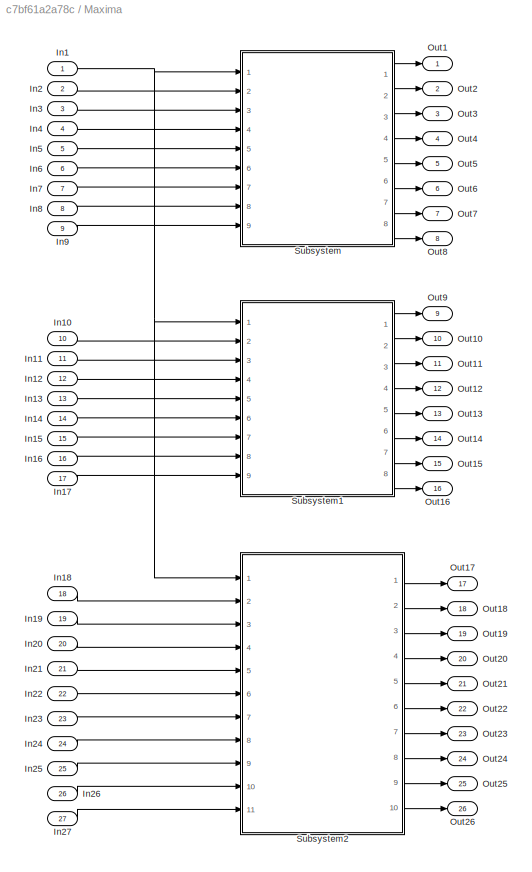
BLOCK [SubSystem] Maxima
  FunctionWithSeparateData = off
  MaskHideContents = off
  MinAlgLoopOccurrences = off
  Opaque = off
  Ports = [27, 26]
  PropExecContextOutsideSubsystem = off
  RTWSystemCode = Auto
  RequestExecContextInheritance = off
BLOCK [Inport] Maxima/In1
  IconDisplay = Port number
BLOCK [Inport] Maxima/In10
  IconDisplay = Port number
  Port = 10
BLOCK [Inport] Maxima/In11
  IconDisplay = Port number
  Port = 11
BLOCK [Inport] Maxima/In12
  IconDisplay = Port number
  Port = 12
BLOCK [Inport] Maxima/In13
  IconDisplay = Port number
  Port = 13
BLOCK [Inport] Maxima/In14
  IconDisplay = Port number
  Port = 14
BLOCK [Inport] Maxima/In15
  IconDisplay = Port number
  Port = 15
BLOCK [Inport] Maxima/In16
  IconDisplay = Port number
  Port = 16
BLOCK [Inport] Maxima/In17
  IconDisplay = Port number
  Port = 17
BLOCK [Inport] Maxima/In18
  IconDisplay = Port number
  Port = 18
BLOCK [Inport] Maxima/In19
  IconDisplay = Port number
  Port = 19
BLOCK [Inport] Maxima/In2
  IconDisplay = Port number
  Port = 2
BLOCK [Inport] Maxima/In20
  IconDisplay = Port number
  Port = 20
BLOCK [Inport] Maxima/In21
  IconDisplay = Port number
  Port = 21
BLOCK [Inport] Maxima/In22
  IconDisplay = Port number
  Port = 22
BLOCK [Inport] Maxima/In23
  IconDisplay = Port number
  Port = 23
BLOCK [Inport] Maxima/In24
  IconDisplay = Port number
  Port = 24
BLOCK [Inport] Maxima/In25
  IconDisplay = Port number
  Port = 25
BLOCK [Inport] Maxima/In26
  IconDisplay = Port number
  Port = 26
BLOCK [Inport] Maxima/In27
  IconDisplay = Port number
  Port = 27
BLOCK [Inport] Maxima/In3
  IconDisplay = Port number
  Port = 3
BLOCK [Inport] Maxima/In4
  IconDisplay = Port number
  Port = 4
BLOCK [Inport] Maxima/In5
  IconDisplay = Port number
  Port = 5
BLOCK [Inport] Maxima/In6
  IconDisplay = Port number
  Port = 6
BLOCK [Inport] Maxima/In7
  IconDisplay = Port number
  Port = 7
BLOCK [Inport] Maxima/In8
  IconDisplay = Port number
  Port = 8
BLOCK [Inport] Maxima/In9
  IconDisplay = Port number
  Port = 9
BLOCK [Outport] Maxima/Out1
  IconDisplay = Port number
BLOCK [Outport] Maxima/Out10
  IconDisplay = Port number
  Port = 10
BLOCK [Outport] Maxima/Out11
  IconDisplay = Port number
  Port = 11
BLOCK [Outport] Maxima/Out12
  IconDisplay = Port number
  Port = 12
BLOCK [Outport] Maxima/Out13
  IconDisplay = Port number
  Port = 13
BLOCK [Outport] Maxima/Out14
  IconDisplay = Port number
  Port = 14
BLOCK [Outport] Maxima/Out15
  IconDisplay = Port number
  Port = 15
BLOCK [Outport] Maxima/Out16
  IconDisplay = Port number
  Port = 16
BLOCK [Outport] Maxima/Out17
  IconDisplay = Port number
  Port = 17
BLOCK [Outport] Maxima/Out18
  IconDisplay = Port number
  Port = 18
BLOCK [Outport] Maxima/Out19
  IconDisplay = Port number
  Port = 19
BLOCK [Outport] Maxima/Out2
  IconDisplay = Port number
  Port = 2
BLOCK [Outport] Maxima/Out20
  IconDisplay = Port number
  Port = 20
BLOCK [Outport] Maxima/Out21
  IconDisplay = Port number
  Port = 21
BLOCK [Outport] Maxima/Out22
  IconDisplay = Port number
  Port = 22
BLOCK [Outport] Maxima/Out23
  IconDisplay = Port number
  Port = 23
BLOCK [Outport] Maxima/Out24
  IconDisplay = Port number
  Port = 24
BLOCK [Outport] Maxima/Out25
  IconDisplay = Port number
  Port = 25
BLOCK [Outport] Maxima/Out26
  IconDisplay = Port number
  Port = 26
BLOCK [Outport] Maxima/Out3
  IconDisplay = Port number
  Port = 3
BLOCK [Outport] Maxima/Out4
  IconDisplay = Port number
  Port = 4
BLOCK [Outport] Maxima/Out5
  IconDisplay = Port number
  Port = 5
BLOCK [Outport] Maxima/Out6
  IconDisplay = Port number
  Port = 6
BLOCK [Outport] Maxima/Out7
  IconDisplay = Port number
  Port = 7
BLOCK [Outport] Maxima/Out8
  IconDisplay = Port number
  Port = 8
BLOCK [Outport] Maxima/Out9
  IconDisplay = Port number
  Port = 9
BLOCK [SubSystem] Maxima/Subsystem
  FunctionWithSeparateData = off
  MaskHideContents = off
  MinAlgLoopOccurrences = off
  Opaque = off
  Ports = [9, 8]
  PropExecContextOutsideSubsystem = off
  RTWSystemCode = Auto
  RequestExecContextInheritance = off
BLOCK [Inport] Maxima/Subsystem/In1
  IconDisplay = Port number
BLOCK [Inport] Maxima/Subsystem/In10
  IconDisplay = Port number
  Port = 6
BLOCK [Inport] Maxima/Subsystem/In12
  IconDisplay = Port number
  Port = 7
BLOCK [Inport] Maxima/Subsystem/In14
  IconDisplay = Port number
  Port = 8
BLOCK [Inport] Maxima/Subsystem/In16
  IconDisplay = Port number
  Port = 9
BLOCK [Inport] Maxima/Subsystem/In2
  IconDisplay = Port number
  Port = 2
BLOCK [Inport] Maxima/Subsystem/In4
  IconDisplay = Port number
  Port = 3
BLOCK [Inport] Maxima/Subsystem/In6
  IconDisplay = Port number
  Port = 4
BLOCK [Inport] Maxima/Subsystem/In8
  IconDisplay = Port number
  Port = 5
BLOCK [Outport] Maxima/Subsystem/Out1
  IconDisplay = Port number
BLOCK [Outport] Maxima/Subsystem/Out2
  IconDisplay = Port number
  Port = 2
BLOCK [Outport] Maxima/Subsystem/Out3
  IconDisplay = Port number
  Port = 3
BLOCK [Outport] Maxima/Subsystem/Out4
  IconDisplay = Port number
  Port = 4
BLOCK [Outport] Maxima/Subsystem/Out5
  IconDisplay = Port number
  Port = 5
BLOCK [Outport] Maxima/Subsystem/Out6
  IconDisplay = Port number
  Port = 6
BLOCK [Outport] Maxima/Subsystem/Out7
  IconDisplay = Port number
  Port = 7
BLOCK [Outport] Maxima/Subsystem/Out8
  IconDisplay = Port number
  Port = 8
BLOCK [Reference] Maxima/Subsystem/Relational  REF=xbsIndex_r4/Relational
  Ports = [2, 1]
  SourceBlock = xbsIndex_r4/Relational
  SourceType = Xilinx Arithmetic Relational Operator Block
  block_type = relational
  dbl_ovrd = off
  en = off
  has_advanced_control = 0
  latency = 1
  mode = a>b
  sg_icon_stat = 55,56,2,1,white,blue,0,3049caaa,right,,[ ],[ ]
  sg_mask_display = fprintf('','COMMENT: begin icon graphics');\npatch([0 55 55 0 0 ],[0 0 56 56 0 ],[0.77 0.82 0.91 ]);\nplot([0 55 55 0 0 ],[0 0 56 56 0 ]);\npatch([11.425 21.54 28.54 35.54 42.54 28.54 18.425 11.425 ],[35.77 35.77 42.77 35.77 42.77 42.77 42.77 35.77 ],[1 1 1 ]);\npatch([18.425 28.54 21.54 11.425 18.425 ],[28.77 28.77 35.77 35.77 28.77 ],[0.931 0.946 0.973 ]);\npatch([11.425 21.54 28.54 18.425 11.425 ],[...<+517ch>  <repeated x104 — deduplicated; at blocks: Relational, Relational1, Relational2, Relational3, Relational4, Relational5, Relational6, Relational7, Relational8, Relational9>
  sggui_pos = 20,20,347,187
  xl_area = [0,0,0,0,0,0,0]
  xl_use_area = off
BLOCK [Reference] Maxima/Subsystem/Relational1  REF=xbsIndex_r4/Relational
  Ports = [2, 1]
  SourceBlock = xbsIndex_r4/Relational
  SourceType = Xilinx Arithmetic Relational Operator Block
  block_type = relational
  dbl_ovrd = off
  en = off
  has_advanced_control = 0
  latency = 1
  mode = a>b
  sg_icon_stat = 55,56,2,1,white,blue,0,3049caaa,right,,[ ],[ ]
  sggui_pos = -1,-1,-1,-1
  xl_area = [0,0,0,0,0,0,0]
  xl_use_area = off
BLOCK [Reference] Maxima/Subsystem/Relational2  REF=xbsIndex_r4/Relational
  Ports = [2, 1]
  SourceBlock = xbsIndex_r4/Relational
  SourceType = Xilinx Arithmetic Relational Operator Block
  block_type = relational
  dbl_ovrd = off
  en = off
  has_advanced_control = 0
  latency = 1
  mode = a>b
  sg_icon_stat = 55,56,2,1,white,blue,0,3049caaa,right,,[ ],[ ]
  sggui_pos = -1,-1,-1,-1
  xl_area = [0,0,0,0,0,0,0]
  xl_use_area = off
BLOCK [Reference] Maxima/Subsystem/Relational3  REF=xbsIndex_r4/Relational
  Ports = [2, 1]
  SourceBlock = xbsIndex_r4/Relational
  SourceType = Xilinx Arithmetic Relational Operator Block
  block_type = relational
  dbl_ovrd = off
  en = off
  has_advanced_control = 0
  latency = 1
  mode = a>b
  sg_icon_stat = 55,56,2,1,white,blue,0,3049caaa,right,,[ ],[ ]
  sggui_pos = -1,-1,-1,-1
  xl_area = [0,0,0,0,0,0,0]
  xl_use_area = off
BLOCK [Reference] Maxima/Subsystem/Relational4  REF=xbsIndex_r4/Relational
  Ports = [2, 1]
  SourceBlock = xbsIndex_r4/Relational
  SourceType = Xilinx Arithmetic Relational Operator Block
  block_type = relational
  dbl_ovrd = off
  en = off
  has_advanced_control = 0
  latency = 1
  mode = a>b
  sg_icon_stat = 55,56,2,1,white,blue,0,3049caaa,right,,[ ],[ ]
  sggui_pos = -1,-1,-1,-1
  xl_area = [0,0,0,0,0,0,0]
  xl_use_area = off
BLOCK [Reference] Maxima/Subsystem/Relational5  REF=xbsIndex_r4/Relational
  Ports = [2, 1]
  SourceBlock = xbsIndex_r4/Relational
  SourceType = Xilinx Arithmetic Relational Operator Block
  block_type = relational
  dbl_ovrd = off
  en = off
  has_advanced_control = 0
  latency = 1
  mode = a>b
  sg_icon_stat = 55,56,2,1,white,blue,0,3049caaa,right,,[ ],[ ]
  sggui_pos = -1,-1,-1,-1
  xl_area = [0,0,0,0,0,0,0]
  xl_use_area = off
BLOCK [Reference] Maxima/Subsystem/Relational6  REF=xbsIndex_r4/Relational
  Ports = [2, 1]
  SourceBlock = xbsIndex_r4/Relational
  SourceType = Xilinx Arithmetic Relational Operator Block
  block_type = relational
  dbl_ovrd = off
  en = off
  has_advanced_control = 0
  latency = 1
  mode = a>b
  sg_icon_stat = 55,56,2,1,white,blue,0,3049caaa,right,,[ ],[ ]
  sggui_pos = -1,-1,-1,-1
  xl_area = [0,0,0,0,0,0,0]
  xl_use_area = off
BLOCK [Reference] Maxima/Subsystem/Relational7  REF=xbsIndex_r4/Relational
  Ports = [2, 1]
  SourceBlock = xbsIndex_r4/Relational
  SourceType = Xilinx Arithmetic Relational Operator Block
  block_type = relational
  dbl_ovrd = off
  en = off
  has_advanced_control = 0
  latency = 1
  mode = a>b
  sg_icon_stat = 55,56,2,1,white,blue,0,3049caaa,right,,[ ],[ ]
  sggui_pos = -1,-1,-1,-1
  xl_area = [0,0,0,0,0,0,0]
  xl_use_area = off
BLOCK [SubSystem] Maxima/Subsystem1
  FunctionWithSeparateData = off
  MaskHideContents = off
  MinAlgLoopOccurrences = off
  Opaque = off
  Ports = [9, 8]
  PropExecContextOutsideSubsystem = off
  RTWSystemCode = Auto
  RequestExecContextInheritance = off
BLOCK [Inport] Maxima/Subsystem1/In1
  IconDisplay = Port number
BLOCK [Inport] Maxima/Subsystem1/In10
  IconDisplay = Port number
  Port = 6
BLOCK [Inport] Maxima/Subsystem1/In12
  IconDisplay = Port number
  Port = 7
BLOCK [Inport] Maxima/Subsystem1/In14
  IconDisplay = Port number
  Port = 8
BLOCK [Inport] Maxima/Subsystem1/In16
  IconDisplay = Port number
  Port = 9
BLOCK [Inport] Maxima/Subsystem1/In2
  IconDisplay = Port number
  Port = 2
BLOCK [Inport] Maxima/Subsystem1/In4
  IconDisplay = Port number
  Port = 3
BLOCK [Inport] Maxima/Subsystem1/In6
  IconDisplay = Port number
  Port = 4
BLOCK [Inport] Maxima/Subsystem1/In8
  IconDisplay = Port number
  Port = 5
BLOCK [Outport] Maxima/Subsystem1/Out1
  IconDisplay = Port number
BLOCK [Outport] Maxima/Subsystem1/Out2
  IconDisplay = Port number
  Port = 2
BLOCK [Outport] Maxima/Subsystem1/Out3
  IconDisplay = Port number
  Port = 3
BLOCK [Outport] Maxima/Subsystem1/Out4
  IconDisplay = Port number
  Port = 4
BLOCK [Outport] Maxima/Subsystem1/Out5
  IconDisplay = Port number
  Port = 5
BLOCK [Outport] Maxima/Subsystem1/Out6
  IconDisplay = Port number
  Port = 6
BLOCK [Outport] Maxima/Subsystem1/Out7
  IconDisplay = Port number
  Port = 7
BLOCK [Outport] Maxima/Subsystem1/Out8
  IconDisplay = Port number
  Port = 8
BLOCK [Reference] Maxima/Subsystem1/Relational  REF=xbsIndex_r4/Relational
  Ports = [2, 1]
  SourceBlock = xbsIndex_r4/Relational
  SourceType = Xilinx Arithmetic Relational Operator Block
  block_type = relational
  dbl_ovrd = off
  en = off
  has_advanced_control = 0
  latency = 1
  mode = a>b
  sg_icon_stat = 55,56,2,1,white,blue,0,3049caaa,right,,[ ],[ ]
  sggui_pos = -1,-1,-1,-1
  xl_area = [0,0,0,0,0,0,0]
  xl_use_area = off
BLOCK [Reference] Maxima/Subsystem1/Relational1  REF=xbsIndex_r4/Relational
  Ports = [2, 1]
  SourceBlock = xbsIndex_r4/Relational
  SourceType = Xilinx Arithmetic Relational Operator Block
  block_type = relational
  dbl_ovrd = off
  en = off
  has_advanced_control = 0
  latency = 1
  mode = a>b
  sg_icon_stat = 55,56,2,1,white,blue,0,3049caaa,right,,[ ],[ ]
  sggui_pos = -1,-1,-1,-1
  xl_area = [0,0,0,0,0,0,0]
  xl_use_area = off
BLOCK [Reference] Maxima/Subsystem1/Relational2  REF=xbsIndex_r4/Relational
  Ports = [2, 1]
  SourceBlock = xbsIndex_r4/Relational
  SourceType = Xilinx Arithmetic Relational Operator Block
  block_type = relational
  dbl_ovrd = off
  en = off
  has_advanced_control = 0
  latency = 1
  mode = a>b
  sg_icon_stat = 55,56,2,1,white,blue,0,3049caaa,right,,[ ],[ ]
  sggui_pos = -1,-1,-1,-1
  xl_area = [0,0,0,0,0,0,0]
  xl_use_area = off
BLOCK [Reference] Maxima/Subsystem1/Relational3  REF=xbsIndex_r4/Relational
  Ports = [2, 1]
  SourceBlock = xbsIndex_r4/Relational
  SourceType = Xilinx Arithmetic Relational Operator Block
  block_type = relational
  dbl_ovrd = off
  en = off
  has_advanced_control = 0
  latency = 1
  mode = a>b
  sg_icon_stat = 55,56,2,1,white,blue,0,3049caaa,right,,[ ],[ ]
  sggui_pos = -1,-1,-1,-1
  xl_area = [0,0,0,0,0,0,0]
  xl_use_area = off
BLOCK [Reference] Maxima/Subsystem1/Relational4  REF=xbsIndex_r4/Relational
  Ports = [2, 1]
  SourceBlock = xbsIndex_r4/Relational
  SourceType = Xilinx Arithmetic Relational Operator Block
  block_type = relational
  dbl_ovrd = off
  en = off
  has_advanced_control = 0
  latency = 1
  mode = a>b
  sg_icon_stat = 55,56,2,1,white,blue,0,3049caaa,right,,[ ],[ ]
  sggui_pos = -1,-1,-1,-1
  xl_area = [0,0,0,0,0,0,0]
  xl_use_area = off
BLOCK [Reference] Maxima/Subsystem1/Relational5  REF=xbsIndex_r4/Relational
  Ports = [2, 1]
  SourceBlock = xbsIndex_r4/Relational
  SourceType = Xilinx Arithmetic Relational Operator Block
  block_type = relational
  dbl_ovrd = off
  en = off
  has_advanced_control = 0
  latency = 1
  mode = a>b
  sg_icon_stat = 55,56,2,1,white,blue,0,3049caaa,right,,[ ],[ ]
  sggui_pos = -1,-1,-1,-1
  xl_area = [0,0,0,0,0,0,0]
  xl_use_area = off
BLOCK [Reference] Maxima/Subsystem1/Relational6  REF=xbsIndex_r4/Relational
  Ports = [2, 1]
  SourceBlock = xbsIndex_r4/Relational
  SourceType = Xilinx Arithmetic Relational Operator Block
  block_type = relational
  dbl_ovrd = off
  en = off
  has_advanced_control = 0
  latency = 1
  mode = a>b
  sg_icon_stat = 55,56,2,1,white,blue,0,3049caaa,right,,[ ],[ ]
  sggui_pos = -1,-1,-1,-1
  xl_area = [0,0,0,0,0,0,0]
  xl_use_area = off
BLOCK [Reference] Maxima/Subsystem1/Relational7  REF=xbsIndex_r4/Relational
  Ports = [2, 1]
  SourceBlock = xbsIndex_r4/Relational
  SourceType = Xilinx Arithmetic Relational Operator Block
  block_type = relational
  dbl_ovrd = off
  en = off
  has_advanced_control = 0
  latency = 1
  mode = a>b
  sg_icon_stat = 55,56,2,1,white,blue,0,3049caaa,right,,[ ],[ ]
  sggui_pos = -1,-1,-1,-1
  xl_area = [0,0,0,0,0,0,0]
  xl_use_area = off
BLOCK [SubSystem] Maxima/Subsystem2
  FunctionWithSeparateData = off
  MaskHideContents = off
  MinAlgLoopOccurrences = off
  Opaque = off
  Ports = [11, 10]
  PropExecContextOutsideSubsystem = off
  RTWSystemCode = Auto
  RequestExecContextInheritance = off
BLOCK [Inport] Maxima/Subsystem2/In1
  IconDisplay = Port number
BLOCK [Inport] Maxima/Subsystem2/In10
  IconDisplay = Port number
  Port = 6
BLOCK [Inport] Maxima/Subsystem2/In12
  IconDisplay = Port number
  Port = 7
BLOCK [Inport] Maxima/Subsystem2/In14
  IconDisplay = Port number
  Port = 8
BLOCK [Inport] Maxima/Subsystem2/In16
  IconDisplay = Port number
  Port = 9
BLOCK [Inport] Maxima/Subsystem2/In18
  IconDisplay = Port number
  Port = 10
BLOCK [Inport] Maxima/Subsystem2/In2
  IconDisplay = Port number
  Port = 2
BLOCK [Inport] Maxima/Subsystem2/In20
  IconDisplay = Port number
  Port = 11
BLOCK [Inport] Maxima/Subsystem2/In4
  IconDisplay = Port number
  Port = 3
BLOCK [Inport] Maxima/Subsystem2/In6
  IconDisplay = Port number
  Port = 4
BLOCK [Inport] Maxima/Subsystem2/In8
  IconDisplay = Port number
  Port = 5
BLOCK [Outport] Maxima/Subsystem2/Out1
  IconDisplay = Port number
BLOCK [Outport] Maxima/Subsystem2/Out10
  IconDisplay = Port number
  Port = 10
BLOCK [Outport] Maxima/Subsystem2/Out2
  IconDisplay = Port number
  Port = 2
BLOCK [Outport] Maxima/Subsystem2/Out3
  IconDisplay = Port number
  Port = 3
BLOCK [Outport] Maxima/Subsystem2/Out4
  IconDisplay = Port number
  Port = 4
BLOCK [Outport] Maxima/Subsystem2/Out5
  IconDisplay = Port number
  Port = 5
BLOCK [Outport] Maxima/Subsystem2/Out6
  IconDisplay = Port number
  Port = 6
BLOCK [Outport] Maxima/Subsystem2/Out7
  IconDisplay = Port number
  Port = 7
BLOCK [Outport] Maxima/Subsystem2/Out8
  IconDisplay = Port number
  Port = 8
BLOCK [Outport] Maxima/Subsystem2/Out9
  IconDisplay = Port number
  Port = 9
BLOCK [Reference] Maxima/Subsystem2/Relational  REF=xbsIndex_r4/Relational
  Ports = [2, 1]
  SourceBlock = xbsIndex_r4/Relational
  SourceType = Xilinx Arithmetic Relational Operator Block
  block_type = relational
  dbl_ovrd = off
  en = off
  has_advanced_control = 0
  latency = 1
  mode = a>b
  sg_icon_stat = 55,56,2,1,white,blue,0,3049caaa,right,,[ ],[ ]
  sggui_pos = -1,-1,-1,-1
  xl_area = [0,0,0,0,0,0,0]
  xl_use_area = off
BLOCK [Reference] Maxima/Subsystem2/Relational1  REF=xbsIndex_r4/Relational
  Ports = [2, 1]
  SourceBlock = xbsIndex_r4/Relational
  SourceType = Xilinx Arithmetic Relational Operator Block
  block_type = relational
  dbl_ovrd = off
  en = off
  has_advanced_control = 0
  latency = 1
  mode = a>b
  sg_icon_stat = 55,56,2,1,white,blue,0,3049caaa,right,,[ ],[ ]
  sggui_pos = -1,-1,-1,-1
  xl_area = [0,0,0,0,0,0,0]
  xl_use_area = off
BLOCK [Reference] Maxima/Subsystem2/Relational2  REF=xbsIndex_r4/Relational
  Ports = [2, 1]
  SourceBlock = xbsIndex_r4/Relational
  SourceType = Xilinx Arithmetic Relational Operator Block
  block_type = relational
  dbl_ovrd = off
  en = off
  has_advanced_control = 0
  latency = 1
  mode = a>b
  sg_icon_stat = 55,56,2,1,white,blue,0,3049caaa,right,,[ ],[ ]
  sggui_pos = -1,-1,-1,-1
  xl_area = [0,0,0,0,0,0,0]
  xl_use_area = off
BLOCK [Reference] Maxima/Subsystem2/Relational3  REF=xbsIndex_r4/Relational
  Ports = [2, 1]
  SourceBlock = xbsIndex_r4/Relational
  SourceType = Xilinx Arithmetic Relational Operator Block
  block_type = relational
  dbl_ovrd = off
  en = off
  has_advanced_control = 0
  latency = 1
  mode = a>b
  sg_icon_stat = 55,56,2,1,white,blue,0,3049caaa,right,,[ ],[ ]
  sggui_pos = -1,-1,-1,-1
  xl_area = [0,0,0,0,0,0,0]
  xl_use_area = off
BLOCK [Reference] Maxima/Subsystem2/Relational4  REF=xbsIndex_r4/Relational
  Ports = [2, 1]
  SourceBlock = xbsIndex_r4/Relational
  SourceType = Xilinx Arithmetic Relational Operator Block
  block_type = relational
  dbl_ovrd = off
  en = off
  has_advanced_control = 0
  latency = 1
  mode = a>b
  sg_icon_stat = 55,56,2,1,white,blue,0,3049caaa,right,,[ ],[ ]
  sggui_pos = -1,-1,-1,-1
  xl_area = [0,0,0,0,0,0,0]
  xl_use_area = off
BLOCK [Reference] Maxima/Subsystem2/Relational5  REF=xbsIndex_r4/Relational
  Ports = [2, 1]
  SourceBlock = xbsIndex_r4/Relational
  SourceType = Xilinx Arithmetic Relational Operator Block
  block_type = relational
  dbl_ovrd = off
  en = off
  has_advanced_control = 0
  latency = 1
  mode = a>b
  sg_icon_stat = 55,56,2,1,white,blue,0,3049caaa,right,,[ ],[ ]
  sggui_pos = -1,-1,-1,-1
  xl_area = [0,0,0,0,0,0,0]
  xl_use_area = off
BLOCK [Reference] Maxima/Subsystem2/Relational6  REF=xbsIndex_r4/Relational
  Ports = [2, 1]
  SourceBlock = xbsIndex_r4/Relational
  SourceType = Xilinx Arithmetic Relational Operator Block
  block_type = relational
  dbl_ovrd = off
  en = off
  has_advanced_control = 0
  latency = 1
  mode = a>b
  sg_icon_stat = 55,56,2,1,white,blue,0,3049caaa,right,,[ ],[ ]
  sggui_pos = -1,-1,-1,-1
  xl_area = [0,0,0,0,0,0,0]
  xl_use_area = off
BLOCK [Reference] Maxima/Subsystem2/Relational7  REF=xbsIndex_r4/Relational
  Ports = [2, 1]
  SourceBlock = xbsIndex_r4/Relational
  SourceType = Xilinx Arithmetic Relational Operator Block
  block_type = relational
  dbl_ovrd = off
  en = off
  has_advanced_control = 0
  latency = 1
  mode = a>b
  sg_icon_stat = 55,56,2,1,white,blue,0,3049caaa,right,,[ ],[ ]
  sggui_pos = -1,-1,-1,-1
  xl_area = [0,0,0,0,0,0,0]
  xl_use_area = off
BLOCK [Reference] Maxima/Subsystem2/Relational8  REF=xbsIndex_r4/Relational
  Ports = [2, 1]
  SourceBlock = xbsIndex_r4/Relational
  SourceType = Xilinx Arithmetic Relational Operator Block
  block_type = relational
  dbl_ovrd = off
  en = off
  has_advanced_control = 0
  latency = 1
  mode = a>b
  sg_icon_stat = 55,56,2,1,white,blue,0,3049caaa,right,,[ ],[ ]
  sggui_pos = -1,-1,-1,-1
  xl_area = [0,0,0,0,0,0,0]
  xl_use_area = off
BLOCK [Reference] Maxima/Subsystem2/Relational9  REF=xbsIndex_r4/Relational
  Ports = [2, 1]
  SourceBlock = xbsIndex_r4/Relational
  SourceType = Xilinx Arithmetic Relational Operator Block
  block_type = relational
  dbl_ovrd = off
  en = off
  has_advanced_control = 0
  latency = 1
  mode = a>b
  sg_icon_stat = 55,56,2,1,white,blue,0,3049caaa,right,,[ ],[ ]
  sggui_pos = -1,-1,-1,-1
  xl_area = [0,0,0,0,0,0,0]
  xl_use_area = off
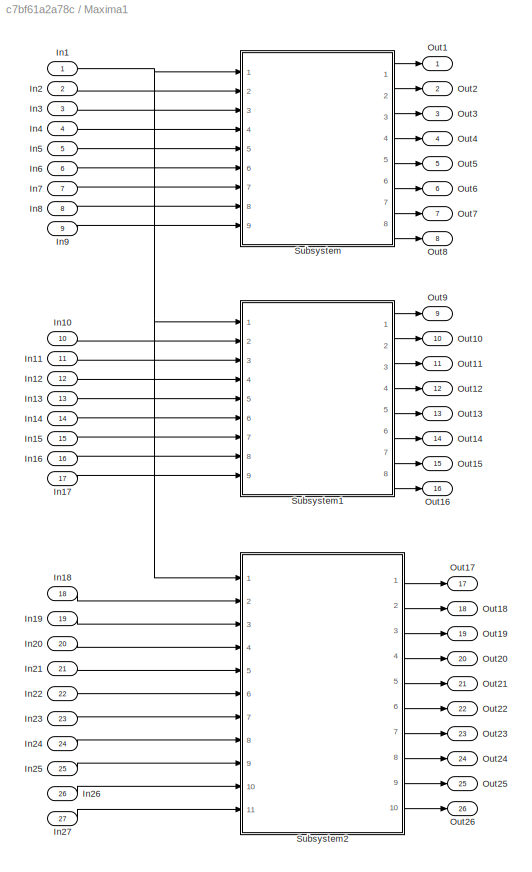
BLOCK [SubSystem] Maxima1
  FunctionWithSeparateData = off
  MaskHideContents = off
  MinAlgLoopOccurrences = off
  Opaque = off
  Ports = [27, 26]
  PropExecContextOutsideSubsystem = off
  RTWSystemCode = Auto
  RequestExecContextInheritance = off
BLOCK [Inport] Maxima1/In1
  IconDisplay = Port number
BLOCK [Inport] Maxima1/In10
  IconDisplay = Port number
  Port = 10
BLOCK [Inport] Maxima1/In11
  IconDisplay = Port number
  Port = 11
BLOCK [Inport] Maxima1/In12
  IconDisplay = Port number
  Port = 12
BLOCK [Inport] Maxima1/In13
  IconDisplay = Port number
  Port = 13
BLOCK [Inport] Maxima1/In14
  IconDisplay = Port number
  Port = 14
BLOCK [Inport] Maxima1/In15
  IconDisplay = Port number
  Port = 15
BLOCK [Inport] Maxima1/In16
  IconDisplay = Port number
  Port = 16
BLOCK [Inport] Maxima1/In17
  IconDisplay = Port number
  Port = 17
BLOCK [Inport] Maxima1/In18
  IconDisplay = Port number
  Port = 18
BLOCK [Inport] Maxima1/In19
  IconDisplay = Port number
  Port = 19
BLOCK [Inport] Maxima1/In2
  IconDisplay = Port number
  Port = 2
BLOCK [Inport] Maxima1/In20
  IconDisplay = Port number
  Port = 20
BLOCK [Inport] Maxima1/In21
  IconDisplay = Port number
  Port = 21
BLOCK [Inport] Maxima1/In22
  IconDisplay = Port number
  Port = 22
BLOCK [Inport] Maxima1/In23
  IconDisplay = Port number
  Port = 23
BLOCK [Inport] Maxima1/In24
  IconDisplay = Port number
  Port = 24
BLOCK [Inport] Maxima1/In25
  IconDisplay = Port number
  Port = 25
BLOCK [Inport] Maxima1/In26
  IconDisplay = Port number
  Port = 26
BLOCK [Inport] Maxima1/In27
  IconDisplay = Port number
  Port = 27
BLOCK [Inport] Maxima1/In3
  IconDisplay = Port number
  Port = 3
BLOCK [Inport] Maxima1/In4
  IconDisplay = Port number
  Port = 4
BLOCK [Inport] Maxima1/In5
  IconDisplay = Port number
  Port = 5
BLOCK [Inport] Maxima1/In6
  IconDisplay = Port number
  Port = 6
BLOCK [Inport] Maxima1/In7
  IconDisplay = Port number
  Port = 7
BLOCK [Inport] Maxima1/In8
  IconDisplay = Port number
  Port = 8
BLOCK [Inport] Maxima1/In9
  IconDisplay = Port number
  Port = 9
BLOCK [Outport] Maxima1/Out1
  IconDisplay = Port number
BLOCK [Outport] Maxima1/Out10
  IconDisplay = Port number
  Port = 10
BLOCK [Outport] Maxima1/Out11
  IconDisplay = Port number
  Port = 11
BLOCK [Outport] Maxima1/Out12
  IconDisplay = Port number
  Port = 12
BLOCK [Outport] Maxima1/Out13
  IconDisplay = Port number
  Port = 13
BLOCK [Outport] Maxima1/Out14
  IconDisplay = Port number
  Port = 14
BLOCK [Outport] Maxima1/Out15
  IconDisplay = Port number
  Port = 15
BLOCK [Outport] Maxima1/Out16
  IconDisplay = Port number
  Port = 16
BLOCK [Outport] Maxima1/Out17
  IconDisplay = Port number
  Port = 17
BLOCK [Outport] Maxima1/Out18
  IconDisplay = Port number
  Port = 18
BLOCK [Outport] Maxima1/Out19
  IconDisplay = Port number
  Port = 19
BLOCK [Outport] Maxima1/Out2
  IconDisplay = Port number
  Port = 2
BLOCK [Outport] Maxima1/Out20
  IconDisplay = Port number
  Port = 20
BLOCK [Outport] Maxima1/Out21
  IconDisplay = Port number
  Port = 21
BLOCK [Outport] Maxima1/Out22
  IconDisplay = Port number
  Port = 22
BLOCK [Outport] Maxima1/Out23
  IconDisplay = Port number
  Port = 23
BLOCK [Outport] Maxima1/Out24
  IconDisplay = Port number
  Port = 24
BLOCK [Outport] Maxima1/Out25
  IconDisplay = Port number
  Port = 25
BLOCK [Outport] Maxima1/Out26
  IconDisplay = Port number
  Port = 26
BLOCK [Outport] Maxima1/Out3
  IconDisplay = Port number
  Port = 3
BLOCK [Outport] Maxima1/Out4
  IconDisplay = Port number
  Port = 4
BLOCK [Outport] Maxima1/Out5
  IconDisplay = Port number
  Port = 5
BLOCK [Outport] Maxima1/Out6
  IconDisplay = Port number
  Port = 6
BLOCK [Outport] Maxima1/Out7
  IconDisplay = Port number
  Port = 7
BLOCK [Outport] Maxima1/Out8
  IconDisplay = Port number
  Port = 8
BLOCK [Outport] Maxima1/Out9
  IconDisplay = Port number
  Port = 9
BLOCK [SubSystem] Maxima1/Subsystem
  FunctionWithSeparateData = off
  MaskHideContents = off
  MinAlgLoopOccurrences = off
  Opaque = off
  Ports = [9, 8]
  PropExecContextOutsideSubsystem = off
  RTWSystemCode = Auto
  RequestExecContextInheritance = off
BLOCK [Inport] Maxima1/Subsystem/In1
  IconDisplay = Port number
BLOCK [Inport] Maxima1/Subsystem/In10
  IconDisplay = Port number
  Port = 6
BLOCK [Inport] Maxima1/Subsystem/In12
  IconDisplay = Port number
  Port = 7
BLOCK [Inport] Maxima1/Subsystem/In14
  IconDisplay = Port number
  Port = 8
BLOCK [Inport] Maxima1/Subsystem/In16
  IconDisplay = Port number
  Port = 9
BLOCK [Inport] Maxima1/Subsystem/In2
  IconDisplay = Port number
  Port = 2
BLOCK [Inport] Maxima1/Subsystem/In4
  IconDisplay = Port number
  Port = 3
BLOCK [Inport] Maxima1/Subsystem/In6
  IconDisplay = Port number
  Port = 4
BLOCK [Inport] Maxima1/Subsystem/In8
  IconDisplay = Port number
  Port = 5
BLOCK [Outport] Maxima1/Subsystem/Out1
  IconDisplay = Port number
BLOCK [Outport] Maxima1/Subsystem/Out2
  IconDisplay = Port number
  Port = 2
BLOCK [Outport] Maxima1/Subsystem/Out3
  IconDisplay = Port number
  Port = 3
BLOCK [Outport] Maxima1/Subsystem/Out4
  IconDisplay = Port number
  Port = 4
BLOCK [Outport] Maxima1/Subsystem/Out5
  IconDisplay = Port number
  Port = 5
BLOCK [Outport] Maxima1/Subsystem/Out6
  IconDisplay = Port number
  Port = 6
BLOCK [Outport] Maxima1/Subsystem/Out7
  IconDisplay = Port number
  Port = 7
BLOCK [Outport] Maxima1/Subsystem/Out8
  IconDisplay = Port number
  Port = 8
BLOCK [Reference] Maxima1/Subsystem/Relational  REF=xbsIndex_r4/Relational
  Ports = [2, 1]
  SourceBlock = xbsIndex_r4/Relational
  SourceType = Xilinx Arithmetic Relational Operator Block
  block_type = relational
  dbl_ovrd = off
  en = off
  has_advanced_control = 0
  latency = 1
  mode = a>b
  sg_icon_stat = 55,56,2,1,white,blue,0,3049caaa,right,,[ ],[ ]
  sggui_pos = -1,-1,-1,-1
  xl_area = [0,0,0,0,0,0,0]
  xl_use_area = off
BLOCK [Reference] Maxima1/Subsystem/Relational1  REF=xbsIndex_r4/Relational
  Ports = [2, 1]
  SourceBlock = xbsIndex_r4/Relational
  SourceType = Xilinx Arithmetic Relational Operator Block
  block_type = relational
  dbl_ovrd = off
  en = off
  has_advanced_control = 0
  latency = 1
  mode = a>b
  sg_icon_stat = 55,56,2,1,white,blue,0,3049caaa,right,,[ ],[ ]
  sggui_pos = -1,-1,-1,-1
  xl_area = [0,0,0,0,0,0,0]
  xl_use_area = off
BLOCK [Reference] Maxima1/Subsystem/Relational2  REF=xbsIndex_r4/Relational
  Ports = [2, 1]
  SourceBlock = xbsIndex_r4/Relational
  SourceType = Xilinx Arithmetic Relational Operator Block
  block_type = relational
  dbl_ovrd = off
  en = off
  has_advanced_control = 0
  latency = 1
  mode = a>b
  sg_icon_stat = 55,56,2,1,white,blue,0,3049caaa,right,,[ ],[ ]
  sggui_pos = -1,-1,-1,-1
  xl_area = [0,0,0,0,0,0,0]
  xl_use_area = off
BLOCK [Reference] Maxima1/Subsystem/Relational3  REF=xbsIndex_r4/Relational
  Ports = [2, 1]
  SourceBlock = xbsIndex_r4/Relational
  SourceType = Xilinx Arithmetic Relational Operator Block
  block_type = relational
  dbl_ovrd = off
  en = off
  has_advanced_control = 0
  latency = 1
  mode = a>b
  sg_icon_stat = 55,56,2,1,white,blue,0,3049caaa,right,,[ ],[ ]
  sggui_pos = -1,-1,-1,-1
  xl_area = [0,0,0,0,0,0,0]
  xl_use_area = off
BLOCK [Reference] Maxima1/Subsystem/Relational4  REF=xbsIndex_r4/Relational
  Ports = [2, 1]
  SourceBlock = xbsIndex_r4/Relational
  SourceType = Xilinx Arithmetic Relational Operator Block
  block_type = relational
  dbl_ovrd = off
  en = off
  has_advanced_control = 0
  latency = 1
  mode = a>b
  sg_icon_stat = 55,56,2,1,white,blue,0,3049caaa,right,,[ ],[ ]
  sggui_pos = -1,-1,-1,-1
  xl_area = [0,0,0,0,0,0,0]
  xl_use_area = off
BLOCK [Reference] Maxima1/Subsystem/Relational5  REF=xbsIndex_r4/Relational
  Ports = [2, 1]
  SourceBlock = xbsIndex_r4/Relational
  SourceType = Xilinx Arithmetic Relational Operator Block
  block_type = relational
  dbl_ovrd = off
  en = off
  has_advanced_control = 0
  latency = 1
  mode = a>b
  sg_icon_stat = 55,56,2,1,white,blue,0,3049caaa,right,,[ ],[ ]
  sggui_pos = -1,-1,-1,-1
  xl_area = [0,0,0,0,0,0,0]
  xl_use_area = off
BLOCK [Reference] Maxima1/Subsystem/Relational6  REF=xbsIndex_r4/Relational
  Ports = [2, 1]
  SourceBlock = xbsIndex_r4/Relational
  SourceType = Xilinx Arithmetic Relational Operator Block
  block_type = relational
  dbl_ovrd = off
  en = off
  has_advanced_control = 0
  latency = 1
  mode = a>b
  sg_icon_stat = 55,56,2,1,white,blue,0,3049caaa,right,,[ ],[ ]
  sggui_pos = -1,-1,-1,-1
  xl_area = [0,0,0,0,0,0,0]
  xl_use_area = off
BLOCK [Reference] Maxima1/Subsystem/Relational7  REF=xbsIndex_r4/Relational
  Ports = [2, 1]
  SourceBlock = xbsIndex_r4/Relational
  SourceType = Xilinx Arithmetic Relational Operator Block
  block_type = relational
  dbl_ovrd = off
  en = off
  has_advanced_control = 0
  latency = 1
  mode = a>b
  sg_icon_stat = 55,56,2,1,white,blue,0,3049caaa,right,,[ ],[ ]
  sggui_pos = -1,-1,-1,-1
  xl_area = [0,0,0,0,0,0,0]
  xl_use_area = off
BLOCK [SubSystem] Maxima1/Subsystem1
  FunctionWithSeparateData = off
  MaskHideContents = off
  MinAlgLoopOccurrences = off
  Opaque = off
  Ports = [9, 8]
  PropExecContextOutsideSubsystem = off
  RTWSystemCode = Auto
  RequestExecContextInheritance = off
BLOCK [Inport] Maxima1/Subsystem1/In1
  IconDisplay = Port number
BLOCK [Inport] Maxima1/Subsystem1/In10
  IconDisplay = Port number
  Port = 6
BLOCK [Inport] Maxima1/Subsystem1/In12
  IconDisplay = Port number
  Port = 7
BLOCK [Inport] Maxima1/Subsystem1/In14
  IconDisplay = Port number
  Port = 8
BLOCK [Inport] Maxima1/Subsystem1/In16
  IconDisplay = Port number
  Port = 9
BLOCK [Inport] Maxima1/Subsystem1/In2
  IconDisplay = Port number
  Port = 2
BLOCK [Inport] Maxima1/Subsystem1/In4
  IconDisplay = Port number
  Port = 3
BLOCK [Inport] Maxima1/Subsystem1/In6
  IconDisplay = Port number
  Port = 4
BLOCK [Inport] Maxima1/Subsystem1/In8
  IconDisplay = Port number
  Port = 5
BLOCK [Outport] Maxima1/Subsystem1/Out1
  IconDisplay = Port number
BLOCK [Outport] Maxima1/Subsystem1/Out2
  IconDisplay = Port number
  Port = 2
BLOCK [Outport] Maxima1/Subsystem1/Out3
  IconDisplay = Port number
  Port = 3
BLOCK [Outport] Maxima1/Subsystem1/Out4
  IconDisplay = Port number
  Port = 4
BLOCK [Outport] Maxima1/Subsystem1/Out5
  IconDisplay = Port number
  Port = 5
BLOCK [Outport] Maxima1/Subsystem1/Out6
  IconDisplay = Port number
  Port = 6
BLOCK [Outport] Maxima1/Subsystem1/Out7
  IconDisplay = Port number
  Port = 7
BLOCK [Outport] Maxima1/Subsystem1/Out8
  IconDisplay = Port number
  Port = 8
BLOCK [Reference] Maxima1/Subsystem1/Relational  REF=xbsIndex_r4/Relational
  Ports = [2, 1]
  SourceBlock = xbsIndex_r4/Relational
  SourceType = Xilinx Arithmetic Relational Operator Block
  block_type = relational
  dbl_ovrd = off
  en = off
  has_advanced_control = 0
  latency = 1
  mode = a>b
  sg_icon_stat = 55,56,2,1,white,blue,0,3049caaa,right,,[ ],[ ]
  sggui_pos = -1,-1,-1,-1
  xl_area = [0,0,0,0,0,0,0]
  xl_use_area = off
BLOCK [Reference] Maxima1/Subsystem1/Relational1  REF=xbsIndex_r4/Relational
  Ports = [2, 1]
  SourceBlock = xbsIndex_r4/Relational
  SourceType = Xilinx Arithmetic Relational Operator Block
  block_type = relational
  dbl_ovrd = off
  en = off
  has_advanced_control = 0
  latency = 1
  mode = a>b
  sg_icon_stat = 55,56,2,1,white,blue,0,3049caaa,right,,[ ],[ ]
  sggui_pos = -1,-1,-1,-1
  xl_area = [0,0,0,0,0,0,0]
  xl_use_area = off
BLOCK [Reference] Maxima1/Subsystem1/Relational2  REF=xbsIndex_r4/Relational
  Ports = [2, 1]
  SourceBlock = xbsIndex_r4/Relational
  SourceType = Xilinx Arithmetic Relational Operator Block
  block_type = relational
  dbl_ovrd = off
  en = off
  has_advanced_control = 0
  latency = 1
  mode = a>b
  sg_icon_stat = 55,56,2,1,white,blue,0,3049caaa,right,,[ ],[ ]
  sggui_pos = -1,-1,-1,-1
  xl_area = [0,0,0,0,0,0,0]
  xl_use_area = off
BLOCK [Reference] Maxima1/Subsystem1/Relational3  REF=xbsIndex_r4/Relational
  Ports = [2, 1]
  SourceBlock = xbsIndex_r4/Relational
  SourceType = Xilinx Arithmetic Relational Operator Block
  block_type = relational
  dbl_ovrd = off
  en = off
  has_advanced_control = 0
  latency = 1
  mode = a>b
  sg_icon_stat = 55,56,2,1,white,blue,0,3049caaa,right,,[ ],[ ]
  sggui_pos = -1,-1,-1,-1
  xl_area = [0,0,0,0,0,0,0]
  xl_use_area = off
BLOCK [Reference] Maxima1/Subsystem1/Relational4  REF=xbsIndex_r4/Relational
  Ports = [2, 1]
  SourceBlock = xbsIndex_r4/Relational
  SourceType = Xilinx Arithmetic Relational Operator Block
  block_type = relational
  dbl_ovrd = off
  en = off
  has_advanced_control = 0
  latency = 1
  mode = a>b
  sg_icon_stat = 55,56,2,1,white,blue,0,3049caaa,right,,[ ],[ ]
  sggui_pos = -1,-1,-1,-1
  xl_area = [0,0,0,0,0,0,0]
  xl_use_area = off
BLOCK [Reference] Maxima1/Subsystem1/Relational5  REF=xbsIndex_r4/Relational
  Ports = [2, 1]
  SourceBlock = xbsIndex_r4/Relational
  SourceType = Xilinx Arithmetic Relational Operator Block
  block_type = relational
  dbl_ovrd = off
  en = off
  has_advanced_control = 0
  latency = 1
  mode = a>b
  sg_icon_stat = 55,56,2,1,white,blue,0,3049caaa,right,,[ ],[ ]
  sggui_pos = -1,-1,-1,-1
  xl_area = [0,0,0,0,0,0,0]
  xl_use_area = off
BLOCK [Reference] Maxima1/Subsystem1/Relational6  REF=xbsIndex_r4/Relational
  Ports = [2, 1]
  SourceBlock = xbsIndex_r4/Relational
  SourceType = Xilinx Arithmetic Relational Operator Block
  block_type = relational
  dbl_ovrd = off
  en = off
  has_advanced_control = 0
  latency = 1
  mode = a>b
  sg_icon_stat = 55,56,2,1,white,blue,0,3049caaa,right,,[ ],[ ]
  sggui_pos = -1,-1,-1,-1
  xl_area = [0,0,0,0,0,0,0]
  xl_use_area = off
BLOCK [Reference] Maxima1/Subsystem1/Relational7  REF=xbsIndex_r4/Relational
  Ports = [2, 1]
  SourceBlock = xbsIndex_r4/Relational
  SourceType = Xilinx Arithmetic Relational Operator Block
  block_type = relational
  dbl_ovrd = off
  en = off
  has_advanced_control = 0
  latency = 1
  mode = a>b
  sg_icon_stat = 55,56,2,1,white,blue,0,3049caaa,right,,[ ],[ ]
  sggui_pos = -1,-1,-1,-1
  xl_area = [0,0,0,0,0,0,0]
  xl_use_area = off
BLOCK [SubSystem] Maxima1/Subsystem2
  FunctionWithSeparateData = off
  MaskHideContents = off
  MinAlgLoopOccurrences = off
  Opaque = off
  Ports = [11, 10]
  PropExecContextOutsideSubsystem = off
  RTWSystemCode = Auto
  RequestExecContextInheritance = off
BLOCK [Inport] Maxima1/Subsystem2/In1
  IconDisplay = Port number
BLOCK [Inport] Maxima1/Subsystem2/In10
  IconDisplay = Port number
  Port = 6
BLOCK [Inport] Maxima1/Subsystem2/In12
  IconDisplay = Port number
  Port = 7
BLOCK [Inport] Maxima1/Subsystem2/In14
  IconDisplay = Port number
  Port = 8
BLOCK [Inport] Maxima1/Subsystem2/In16
  IconDisplay = Port number
  Port = 9
BLOCK [Inport] Maxima1/Subsystem2/In18
  IconDisplay = Port number
  Port = 10
BLOCK [Inport] Maxima1/Subsystem2/In2
  IconDisplay = Port number
  Port = 2
BLOCK [Inport] Maxima1/Subsystem2/In20
  IconDisplay = Port number
  Port = 11
BLOCK [Inport] Maxima1/Subsystem2/In4
  IconDisplay = Port number
  Port = 3
BLOCK [Inport] Maxima1/Subsystem2/In6
  IconDisplay = Port number
  Port = 4
BLOCK [Inport] Maxima1/Subsystem2/In8
  IconDisplay = Port number
  Port = 5
BLOCK [Outport] Maxima1/Subsystem2/Out1
  IconDisplay = Port number
BLOCK [Outport] Maxima1/Subsystem2/Out10
  IconDisplay = Port number
  Port = 10
BLOCK [Outport] Maxima1/Subsystem2/Out2
  IconDisplay = Port number
  Port = 2
BLOCK [Outport] Maxima1/Subsystem2/Out3
  IconDisplay = Port number
  Port = 3
BLOCK [Outport] Maxima1/Subsystem2/Out4
  IconDisplay = Port number
  Port = 4
BLOCK [Outport] Maxima1/Subsystem2/Out5
  IconDisplay = Port number
  Port = 5
BLOCK [Outport] Maxima1/Subsystem2/Out6
  IconDisplay = Port number
  Port = 6
BLOCK [Outport] Maxima1/Subsystem2/Out7
  IconDisplay = Port number
  Port = 7
BLOCK [Outport] Maxima1/Subsystem2/Out8
  IconDisplay = Port number
  Port = 8
BLOCK [Outport] Maxima1/Subsystem2/Out9
  IconDisplay = Port number
  Port = 9
BLOCK [Reference] Maxima1/Subsystem2/Relational  REF=xbsIndex_r4/Relational
  Ports = [2, 1]
  SourceBlock = xbsIndex_r4/Relational
  SourceType = Xilinx Arithmetic Relational Operator Block
  block_type = relational
  dbl_ovrd = off
  en = off
  has_advanced_control = 0
  latency = 1
  mode = a>b
  sg_icon_stat = 55,56,2,1,white,blue,0,3049caaa,right,,[ ],[ ]
  sggui_pos = -1,-1,-1,-1
  xl_area = [0,0,0,0,0,0,0]
  xl_use_area = off
BLOCK [Reference] Maxima1/Subsystem2/Relational1  REF=xbsIndex_r4/Relational
  Ports = [2, 1]
  SourceBlock = xbsIndex_r4/Relational
  SourceType = Xilinx Arithmetic Relational Operator Block
  block_type = relational
  dbl_ovrd = off
  en = off
  has_advanced_control = 0
  latency = 1
  mode = a>b
  sg_icon_stat = 55,56,2,1,white,blue,0,3049caaa,right,,[ ],[ ]
  sggui_pos = -1,-1,-1,-1
  xl_area = [0,0,0,0,0,0,0]
  xl_use_area = off
BLOCK [Reference] Maxima1/Subsystem2/Relational2  REF=xbsIndex_r4/Relational
  Ports = [2, 1]
  SourceBlock = xbsIndex_r4/Relational
  SourceType = Xilinx Arithmetic Relational Operator Block
  block_type = relational
  dbl_ovrd = off
  en = off
  has_advanced_control = 0
  latency = 1
  mode = a>b
  sg_icon_stat = 55,56,2,1,white,blue,0,3049caaa,right,,[ ],[ ]
  sggui_pos = -1,-1,-1,-1
  xl_area = [0,0,0,0,0,0,0]
  xl_use_area = off
BLOCK [Reference] Maxima1/Subsystem2/Relational3  REF=xbsIndex_r4/Relational
  Ports = [2, 1]
  SourceBlock = xbsIndex_r4/Relational
  SourceType = Xilinx Arithmetic Relational Operator Block
  block_type = relational
  dbl_ovrd = off
  en = off
  has_advanced_control = 0
  latency = 1
  mode = a>b
  sg_icon_stat = 55,56,2,1,white,blue,0,3049caaa,right,,[ ],[ ]
  sggui_pos = -1,-1,-1,-1
  xl_area = [0,0,0,0,0,0,0]
  xl_use_area = off
BLOCK [Reference] Maxima1/Subsystem2/Relational4  REF=xbsIndex_r4/Relational
  Ports = [2, 1]
  SourceBlock = xbsIndex_r4/Relational
  SourceType = Xilinx Arithmetic Relational Operator Block
  block_type = relational
  dbl_ovrd = off
  en = off
  has_advanced_control = 0
  latency = 1
  mode = a>b
  sg_icon_stat = 55,56,2,1,white,blue,0,3049caaa,right,,[ ],[ ]
  sggui_pos = -1,-1,-1,-1
  xl_area = [0,0,0,0,0,0,0]
  xl_use_area = off
BLOCK [Reference] Maxima1/Subsystem2/Relational5  REF=xbsIndex_r4/Relational
  Ports = [2, 1]
  SourceBlock = xbsIndex_r4/Relational
  SourceType = Xilinx Arithmetic Relational Operator Block
  block_type = relational
  dbl_ovrd = off
  en = off
  has_advanced_control = 0
  latency = 1
  mode = a>b
  sg_icon_stat = 55,56,2,1,white,blue,0,3049caaa,right,,[ ],[ ]
  sggui_pos = -1,-1,-1,-1
  xl_area = [0,0,0,0,0,0,0]
  xl_use_area = off
BLOCK [Reference] Maxima1/Subsystem2/Relational6  REF=xbsIndex_r4/Relational
  Ports = [2, 1]
  SourceBlock = xbsIndex_r4/Relational
  SourceType = Xilinx Arithmetic Relational Operator Block
  block_type = relational
  dbl_ovrd = off
  en = off
  has_advanced_control = 0
  latency = 1
  mode = a>b
  sg_icon_stat = 55,56,2,1,white,blue,0,3049caaa,right,,[ ],[ ]
  sggui_pos = -1,-1,-1,-1
  xl_area = [0,0,0,0,0,0,0]
  xl_use_area = off
BLOCK [Reference] Maxima1/Subsystem2/Relational7  REF=xbsIndex_r4/Relational
  Ports = [2, 1]
  SourceBlock = xbsIndex_r4/Relational
  SourceType = Xilinx Arithmetic Relational Operator Block
  block_type = relational
  dbl_ovrd = off
  en = off
  has_advanced_control = 0
  latency = 1
  mode = a>b
  sg_icon_stat = 55,56,2,1,white,blue,0,3049caaa,right,,[ ],[ ]
  sggui_pos = -1,-1,-1,-1
  xl_area = [0,0,0,0,0,0,0]
  xl_use_area = off
BLOCK [Reference] Maxima1/Subsystem2/Relational8  REF=xbsIndex_r4/Relational
  Ports = [2, 1]
  SourceBlock = xbsIndex_r4/Relational
  SourceType = Xilinx Arithmetic Relational Operator Block
  block_type = relational
  dbl_ovrd = off
  en = off
  has_advanced_control = 0
  latency = 1
  mode = a>b
  sg_icon_stat = 55,56,2,1,white,blue,0,3049caaa,right,,[ ],[ ]
  sggui_pos = -1,-1,-1,-1
  xl_area = [0,0,0,0,0,0,0]
  xl_use_area = off
BLOCK [Reference] Maxima1/Subsystem2/Relational9  REF=xbsIndex_r4/Relational
  Ports = [2, 1]
  SourceBlock = xbsIndex_r4/Relational
  SourceType = Xilinx Arithmetic Relational Operator Block
  block_type = relational
  dbl_ovrd = off
  en = off
  has_advanced_control = 0
  latency = 1
  mode = a>b
  sg_icon_stat = 55,56,2,1,white,blue,0,3049caaa,right,,[ ],[ ]
  sggui_pos = -1,-1,-1,-1
  xl_area = [0,0,0,0,0,0,0]
  xl_use_area = off
BLOCK [SubSystem] Minima
  FunctionWithSeparateData = off
  MaskHideContents = off
  MinAlgLoopOccurrences = off
  Opaque = off
  Ports = [27, 26]
  PropExecContextOutsideSubsystem = off
  RTWSystemCode = Auto
  RequestExecContextInheritance = off
BLOCK [Inport] Minima/In1
  IconDisplay = Port number
BLOCK [Inport] Minima/In10
  IconDisplay = Port number
  Port = 10
BLOCK [Inport] Minima/In11
  IconDisplay = Port number
  Port = 11
BLOCK [Inport] Minima/In12
  IconDisplay = Port number
  Port = 12
BLOCK [Inport] Minima/In13
  IconDisplay = Port number
  Port = 13
BLOCK [Inport] Minima/In14
  IconDisplay = Port number
  Port = 14
BLOCK [Inport] Minima/In15
  IconDisplay = Port number
  Port = 15
BLOCK [Inport] Minima/In16
  IconDisplay = Port number
  Port = 16
BLOCK [Inport] Minima/In17
  IconDisplay = Port number
  Port = 17
BLOCK [Inport] Minima/In18
  IconDisplay = Port number
  Port = 18
BLOCK [Inport] Minima/In19
  IconDisplay = Port number
  Port = 19
BLOCK [Inport] Minima/In2
  IconDisplay = Port number
  Port = 2
BLOCK [Inport] Minima/In20
  IconDisplay = Port number
  Port = 20
BLOCK [Inport] Minima/In21
  IconDisplay = Port number
  Port = 21
BLOCK [Inport] Minima/In22
  IconDisplay = Port number
  Port = 22
BLOCK [Inport] Minima/In23
  IconDisplay = Port number
  Port = 23
BLOCK [Inport] Minima/In24
  IconDisplay = Port number
  Port = 24
BLOCK [Inport] Minima/In25
  IconDisplay = Port number
  Port = 25
BLOCK [Inport] Minima/In26
  IconDisplay = Port number
  Port = 26
BLOCK [Inport] Minima/In27
  IconDisplay = Port number
  Port = 27
BLOCK [Inport] Minima/In3
  IconDisplay = Port number
  Port = 3
BLOCK [Inport] Minima/In4
  IconDisplay = Port number
  Port = 4
BLOCK [Inport] Minima/In5
  IconDisplay = Port number
  Port = 5
BLOCK [Inport] Minima/In6
  IconDisplay = Port number
  Port = 6
BLOCK [Inport] Minima/In7
  IconDisplay = Port number
  Port = 7
BLOCK [Inport] Minima/In8
  IconDisplay = Port number
  Port = 8
BLOCK [Inport] Minima/In9
  IconDisplay = Port number
  Port = 9
BLOCK [Outport] Minima/Out1
  IconDisplay = Port number
BLOCK [Outport] Minima/Out10
  IconDisplay = Port number
  Port = 10
BLOCK [Outport] Minima/Out11
  IconDisplay = Port number
  Port = 11
BLOCK [Outport] Minima/Out12
  IconDisplay = Port number
  Port = 12
BLOCK [Outport] Minima/Out13
  IconDisplay = Port number
  Port = 13
BLOCK [Outport] Minima/Out14
  IconDisplay = Port number
  Port = 14
BLOCK [Outport] Minima/Out15
  IconDisplay = Port number
  Port = 15
BLOCK [Outport] Minima/Out16
  IconDisplay = Port number
  Port = 16
BLOCK [Outport] Minima/Out17
  IconDisplay = Port number
  Port = 17
BLOCK [Outport] Minima/Out18
  IconDisplay = Port number
  Port = 18
BLOCK [Outport] Minima/Out19
  IconDisplay = Port number
  Port = 19
BLOCK [Outport] Minima/Out2
  IconDisplay = Port number
  Port = 2
BLOCK [Outport] Minima/Out20
  IconDisplay = Port number
  Port = 20
BLOCK [Outport] Minima/Out21
  IconDisplay = Port number
  Port = 21
BLOCK [Outport] Minima/Out22
  IconDisplay = Port number
  Port = 22
BLOCK [Outport] Minima/Out23
  IconDisplay = Port number
  Port = 23
BLOCK [Outport] Minima/Out24
  IconDisplay = Port number
  Port = 24
BLOCK [Outport] Minima/Out25
  IconDisplay = Port number
  Port = 25
BLOCK [Outport] Minima/Out26
  IconDisplay = Port number
  Port = 26
BLOCK [Outport] Minima/Out3
  IconDisplay = Port number
  Port = 3
BLOCK [Outport] Minima/Out4
  IconDisplay = Port number
  Port = 4
BLOCK [Outport] Minima/Out5
  IconDisplay = Port number
  Port = 5
BLOCK [Outport] Minima/Out6
  IconDisplay = Port number
  Port = 6
BLOCK [Outport] Minima/Out7
  IconDisplay = Port number
  Port = 7
BLOCK [Outport] Minima/Out8
  IconDisplay = Port number
  Port = 8
BLOCK [Outport] Minima/Out9
  IconDisplay = Port number
  Port = 9
BLOCK [SubSystem] Minima/Subsystem
  FunctionWithSeparateData = off
  MaskHideContents = off
  MinAlgLoopOccurrences = off
  Opaque = off
  Ports = [9, 8]
  PropExecContextOutsideSubsystem = off
  RTWSystemCode = Auto
  RequestExecContextInheritance = off
BLOCK [Inport] Minima/Subsystem/In1
  IconDisplay = Port number
BLOCK [Inport] Minima/Subsystem/In10
  IconDisplay = Port number
  Port = 6
BLOCK [Inport] Minima/Subsystem/In12
  IconDisplay = Port number
  Port = 7
BLOCK [Inport] Minima/Subsystem/In14
  IconDisplay = Port number
  Port = 8
BLOCK [Inport] Minima/Subsystem/In16
  IconDisplay = Port number
  Port = 9
BLOCK [Inport] Minima/Subsystem/In2
  IconDisplay = Port number
  Port = 2
BLOCK [Inport] Minima/Subsystem/In4
  IconDisplay = Port number
  Port = 3
BLOCK [Inport] Minima/Subsystem/In6
  IconDisplay = Port number
  Port = 4
BLOCK [Inport] Minima/Subsystem/In8
  IconDisplay = Port number
  Port = 5
BLOCK [Outport] Minima/Subsystem/Out1
  IconDisplay = Port number
BLOCK [Outport] Minima/Subsystem/Out2
  IconDisplay = Port number
  Port = 2
BLOCK [Outport] Minima/Subsystem/Out3
  IconDisplay = Port number
  Port = 3
BLOCK [Outport] Minima/Subsystem/Out4
  IconDisplay = Port number
  Port = 4
BLOCK [Outport] Minima/Subsystem/Out5
  IconDisplay = Port number
  Port = 5
BLOCK [Outport] Minima/Subsystem/Out6
  IconDisplay = Port number
  Port = 6
BLOCK [Outport] Minima/Subsystem/Out7
  IconDisplay = Port number
  Port = 7
BLOCK [Outport] Minima/Subsystem/Out8
  IconDisplay = Port number
  Port = 8
BLOCK [Reference] Minima/Subsystem/Relational  REF=xbsIndex_r4/Relational
  Ports = [2, 1]
  SourceBlock = xbsIndex_r4/Relational
  SourceType = Xilinx Arithmetic Relational Operator Block
  block_type = relational
  dbl_ovrd = off
  en = off
  has_advanced_control = 0
  latency = 1
  mode = a<b
  sg_icon_stat = 55,56,2,1,white,blue,0,9a1f8f13,right,,[ ],[ ]
  sggui_pos = -1,-1,-1,-1
  xl_area = [0,0,0,0,0,0,0]
  xl_use_area = off
BLOCK [Reference] Minima/Subsystem/Relational1  REF=xbsIndex_r4/Relational
  Ports = [2, 1]
  SourceBlock = xbsIndex_r4/Relational
  SourceType = Xilinx Arithmetic Relational Operator Block
  block_type = relational
  dbl_ovrd = off
  en = off
  has_advanced_control = 0
  latency = 1
  mode = a<b
  sg_icon_stat = 55,56,2,1,white,blue,0,9a1f8f13,right,,[ ],[ ]
  sggui_pos = -1,-1,-1,-1
  xl_area = [0,0,0,0,0,0,0]
  xl_use_area = off
BLOCK [Reference] Minima/Subsystem/Relational2  REF=xbsIndex_r4/Relational
  Ports = [2, 1]
  SourceBlock = xbsIndex_r4/Relational
  SourceType = Xilinx Arithmetic Relational Operator Block
  block_type = relational
  dbl_ovrd = off
  en = off
  has_advanced_control = 0
  latency = 1
  mode = a<b
  sg_icon_stat = 55,56,2,1,white,blue,0,9a1f8f13,right,,[ ],[ ]
  sggui_pos = -1,-1,-1,-1
  xl_area = [0,0,0,0,0,0,0]
  xl_use_area = off
BLOCK [Reference] Minima/Subsystem/Relational3  REF=xbsIndex_r4/Relational
  Ports = [2, 1]
  SourceBlock = xbsIndex_r4/Relational
  SourceType = Xilinx Arithmetic Relational Operator Block
  block_type = relational
  dbl_ovrd = off
  en = off
  has_advanced_control = 0
  latency = 1
  mode = a<b
  sg_icon_stat = 55,56,2,1,white,blue,0,9a1f8f13,right,,[ ],[ ]
  sggui_pos = -1,-1,-1,-1
  xl_area = [0,0,0,0,0,0,0]
  xl_use_area = off
BLOCK [Reference] Minima/Subsystem/Relational4  REF=xbsIndex_r4/Relational
  Ports = [2, 1]
  SourceBlock = xbsIndex_r4/Relational
  SourceType = Xilinx Arithmetic Relational Operator Block
  block_type = relational
  dbl_ovrd = off
  en = off
  has_advanced_control = 0
  latency = 1
  mode = a<b
  sg_icon_stat = 55,56,2,1,white,blue,0,9a1f8f13,right,,[ ],[ ]
  sggui_pos = -1,-1,-1,-1
  xl_area = [0,0,0,0,0,0,0]
  xl_use_area = off
BLOCK [Reference] Minima/Subsystem/Relational5  REF=xbsIndex_r4/Relational
  Ports = [2, 1]
  SourceBlock = xbsIndex_r4/Relational
  SourceType = Xilinx Arithmetic Relational Operator Block
  block_type = relational
  dbl_ovrd = off
  en = off
  has_advanced_control = 0
  latency = 1
  mode = a<b
  sg_icon_stat = 55,56,2,1,white,blue,0,9a1f8f13,right,,[ ],[ ]
  sggui_pos = -1,-1,-1,-1
  xl_area = [0,0,0,0,0,0,0]
  xl_use_area = off
BLOCK [Reference] Minima/Subsystem/Relational6  REF=xbsIndex_r4/Relational
  Ports = [2, 1]
  SourceBlock = xbsIndex_r4/Relational
  SourceType = Xilinx Arithmetic Relational Operator Block
  block_type = relational
  dbl_ovrd = off
  en = off
  has_advanced_control = 0
  latency = 1
  mode = a<b
  sg_icon_stat = 55,56,2,1,white,blue,0,9a1f8f13,right,,[ ],[ ]
  sggui_pos = -1,-1,-1,-1
  xl_area = [0,0,0,0,0,0,0]
  xl_use_area = off
BLOCK [Reference] Minima/Subsystem/Relational7  REF=xbsIndex_r4/Relational
  Ports = [2, 1]
  SourceBlock = xbsIndex_r4/Relational
  SourceType = Xilinx Arithmetic Relational Operator Block
  block_type = relational
  dbl_ovrd = off
  en = off
  has_advanced_control = 0
  latency = 1
  mode = a<b
  sg_icon_stat = 55,56,2,1,white,blue,0,9a1f8f13,right,,[ ],[ ]
  sggui_pos = -1,-1,-1,-1
  xl_area = [0,0,0,0,0,0,0]
  xl_use_area = off
BLOCK [SubSystem] Minima/Subsystem1
  FunctionWithSeparateData = off
  MaskHideContents = off
  MinAlgLoopOccurrences = off
  Opaque = off
  Ports = [9, 8]
  PropExecContextOutsideSubsystem = off
  RTWSystemCode = Auto
  RequestExecContextInheritance = off
BLOCK [Inport] Minima/Subsystem1/In1
  IconDisplay = Port number
BLOCK [Inport] Minima/Subsystem1/In10
  IconDisplay = Port number
  Port = 6
BLOCK [Inport] Minima/Subsystem1/In12
  IconDisplay = Port number
  Port = 7
BLOCK [Inport] Minima/Subsystem1/In14
  IconDisplay = Port number
  Port = 8
BLOCK [Inport] Minima/Subsystem1/In16
  IconDisplay = Port number
  Port = 9
BLOCK [Inport] Minima/Subsystem1/In2
  IconDisplay = Port number
  Port = 2
BLOCK [Inport] Minima/Subsystem1/In4
  IconDisplay = Port number
  Port = 3
BLOCK [Inport] Minima/Subsystem1/In6
  IconDisplay = Port number
  Port = 4
BLOCK [Inport] Minima/Subsystem1/In8
  IconDisplay = Port number
  Port = 5
BLOCK [Outport] Minima/Subsystem1/Out1
  IconDisplay = Port number
BLOCK [Outport] Minima/Subsystem1/Out2
  IconDisplay = Port number
  Port = 2
BLOCK [Outport] Minima/Subsystem1/Out3
  IconDisplay = Port number
  Port = 3
BLOCK [Outport] Minima/Subsystem1/Out4
  IconDisplay = Port number
  Port = 4
BLOCK [Outport] Minima/Subsystem1/Out5
  IconDisplay = Port number
  Port = 5
BLOCK [Outport] Minima/Subsystem1/Out6
  IconDisplay = Port number
  Port = 6
BLOCK [Outport] Minima/Subsystem1/Out7
  IconDisplay = Port number
  Port = 7
BLOCK [Outport] Minima/Subsystem1/Out8
  IconDisplay = Port number
  Port = 8
BLOCK [Reference] Minima/Subsystem1/Relational  REF=xbsIndex_r4/Relational
  Ports = [2, 1]
  SourceBlock = xbsIndex_r4/Relational
  SourceType = Xilinx Arithmetic Relational Operator Block
  block_type = relational
  dbl_ovrd = off
  en = off
  has_advanced_control = 0
  latency = 1
  mode = a<b
  sg_icon_stat = 55,56,2,1,white,blue,0,9a1f8f13,right,,[ ],[ ]
  sggui_pos = -1,-1,-1,-1
  xl_area = [0,0,0,0,0,0,0]
  xl_use_area = off
BLOCK [Reference] Minima/Subsystem1/Relational1  REF=xbsIndex_r4/Relational
  Ports = [2, 1]
  SourceBlock = xbsIndex_r4/Relational
  SourceType = Xilinx Arithmetic Relational Operator Block
  block_type = relational
  dbl_ovrd = off
  en = off
  has_advanced_control = 0
  latency = 1
  mode = a<b
  sg_icon_stat = 55,56,2,1,white,blue,0,9a1f8f13,right,,[ ],[ ]
  sggui_pos = -1,-1,-1,-1
  xl_area = [0,0,0,0,0,0,0]
  xl_use_area = off
BLOCK [Reference] Minima/Subsystem1/Relational2  REF=xbsIndex_r4/Relational
  Ports = [2, 1]
  SourceBlock = xbsIndex_r4/Relational
  SourceType = Xilinx Arithmetic Relational Operator Block
  block_type = relational
  dbl_ovrd = off
  en = off
  has_advanced_control = 0
  latency = 1
  mode = a<b
  sg_icon_stat = 55,56,2,1,white,blue,0,9a1f8f13,right,,[ ],[ ]
  sggui_pos = -1,-1,-1,-1
  xl_area = [0,0,0,0,0,0,0]
  xl_use_area = off
BLOCK [Reference] Minima/Subsystem1/Relational3  REF=xbsIndex_r4/Relational
  Ports = [2, 1]
  SourceBlock = xbsIndex_r4/Relational
  SourceType = Xilinx Arithmetic Relational Operator Block
  block_type = relational
  dbl_ovrd = off
  en = off
  has_advanced_control = 0
  latency = 1
  mode = a<b
  sg_icon_stat = 55,56,2,1,white,blue,0,9a1f8f13,right,,[ ],[ ]
  sggui_pos = -1,-1,-1,-1
  xl_area = [0,0,0,0,0,0,0]
  xl_use_area = off
BLOCK [Reference] Minima/Subsystem1/Relational4  REF=xbsIndex_r4/Relational
  Ports = [2, 1]
  SourceBlock = xbsIndex_r4/Relational
  SourceType = Xilinx Arithmetic Relational Operator Block
  block_type = relational
  dbl_ovrd = off
  en = off
  has_advanced_control = 0
  latency = 1
  mode = a<b
  sg_icon_stat = 55,56,2,1,white,blue,0,9a1f8f13,right,,[ ],[ ]
  sggui_pos = -1,-1,-1,-1
  xl_area = [0,0,0,0,0,0,0]
  xl_use_area = off
BLOCK [Reference] Minima/Subsystem1/Relational5  REF=xbsIndex_r4/Relational
  Ports = [2, 1]
  SourceBlock = xbsIndex_r4/Relational
  SourceType = Xilinx Arithmetic Relational Operator Block
  block_type = relational
  dbl_ovrd = off
  en = off
  has_advanced_control = 0
  latency = 1
  mode = a<b
  sg_icon_stat = 55,56,2,1,white,blue,0,9a1f8f13,right,,[ ],[ ]
  sggui_pos = -1,-1,-1,-1
  xl_area = [0,0,0,0,0,0,0]
  xl_use_area = off
BLOCK [Reference] Minima/Subsystem1/Relational6  REF=xbsIndex_r4/Relational
  Ports = [2, 1]
  SourceBlock = xbsIndex_r4/Relational
  SourceType = Xilinx Arithmetic Relational Operator Block
  block_type = relational
  dbl_ovrd = off
  en = off
  has_advanced_control = 0
  latency = 1
  mode = a<b
  sg_icon_stat = 55,56,2,1,white,blue,0,9a1f8f13,right,,[ ],[ ]
  sggui_pos = -1,-1,-1,-1
  xl_area = [0,0,0,0,0,0,0]
  xl_use_area = off
BLOCK [Reference] Minima/Subsystem1/Relational7  REF=xbsIndex_r4/Relational
  Ports = [2, 1]
  SourceBlock = xbsIndex_r4/Relational
  SourceType = Xilinx Arithmetic Relational Operator Block
  block_type = relational
  dbl_ovrd = off
  en = off
  has_advanced_control = 0
  latency = 1
  mode = a<b
  sg_icon_stat = 55,56,2,1,white,blue,0,9a1f8f13,right,,[ ],[ ]
  sggui_pos = -1,-1,-1,-1
  xl_area = [0,0,0,0,0,0,0]
  xl_use_area = off
BLOCK [SubSystem] Minima/Subsystem2
  FunctionWithSeparateData = off
  MaskHideContents = off
  MinAlgLoopOccurrences = off
  Opaque = off
  Ports = [11, 10]
  PropExecContextOutsideSubsystem = off
  RTWSystemCode = Auto
  RequestExecContextInheritance = off
BLOCK [Inport] Minima/Subsystem2/In1
  IconDisplay = Port number
BLOCK [Inport] Minima/Subsystem2/In10
  IconDisplay = Port number
  Port = 6
BLOCK [Inport] Minima/Subsystem2/In12
  IconDisplay = Port number
  Port = 7
BLOCK [Inport] Minima/Subsystem2/In14
  IconDisplay = Port number
  Port = 8
BLOCK [Inport] Minima/Subsystem2/In16
  IconDisplay = Port number
  Port = 9
BLOCK [Inport] Minima/Subsystem2/In18
  IconDisplay = Port number
  Port = 10
BLOCK [Inport] Minima/Subsystem2/In2
  IconDisplay = Port number
  Port = 2
BLOCK [Inport] Minima/Subsystem2/In20
  IconDisplay = Port number
  Port = 11
BLOCK [Inport] Minima/Subsystem2/In4
  IconDisplay = Port number
  Port = 3
BLOCK [Inport] Minima/Subsystem2/In6
  IconDisplay = Port number
  Port = 4
BLOCK [Inport] Minima/Subsystem2/In8
  IconDisplay = Port number
  Port = 5
BLOCK [Outport] Minima/Subsystem2/Out1
  IconDisplay = Port number
BLOCK [Outport] Minima/Subsystem2/Out10
  IconDisplay = Port number
  Port = 10
BLOCK [Outport] Minima/Subsystem2/Out2
  IconDisplay = Port number
  Port = 2
BLOCK [Outport] Minima/Subsystem2/Out3
  IconDisplay = Port number
  Port = 3
BLOCK [Outport] Minima/Subsystem2/Out4
  IconDisplay = Port number
  Port = 4
BLOCK [Outport] Minima/Subsystem2/Out5
  IconDisplay = Port number
  Port = 5
BLOCK [Outport] Minima/Subsystem2/Out6
  IconDisplay = Port number
  Port = 6
BLOCK [Outport] Minima/Subsystem2/Out7
  IconDisplay = Port number
  Port = 7
BLOCK [Outport] Minima/Subsystem2/Out8
  IconDisplay = Port number
  Port = 8
BLOCK [Outport] Minima/Subsystem2/Out9
  IconDisplay = Port number
  Port = 9
BLOCK [Reference] Minima/Subsystem2/Relational  REF=xbsIndex_r4/Relational
  Ports = [2, 1]
  SourceBlock = xbsIndex_r4/Relational
  SourceType = Xilinx Arithmetic Relational Operator Block
  block_type = relational
  dbl_ovrd = off
  en = off
  has_advanced_control = 0
  latency = 1
  mode = a<b
  sg_icon_stat = 55,56,2,1,white,blue,0,9a1f8f13,right,,[ ],[ ]
  sggui_pos = -1,-1,-1,-1
  xl_area = [0,0,0,0,0,0,0]
  xl_use_area = off
BLOCK [Reference] Minima/Subsystem2/Relational1  REF=xbsIndex_r4/Relational
  Ports = [2, 1]
  SourceBlock = xbsIndex_r4/Relational
  SourceType = Xilinx Arithmetic Relational Operator Block
  block_type = relational
  dbl_ovrd = off
  en = off
  has_advanced_control = 0
  latency = 1
  mode = a<b
  sg_icon_stat = 55,56,2,1,white,blue,0,9a1f8f13,right,,[ ],[ ]
  sggui_pos = -1,-1,-1,-1
  xl_area = [0,0,0,0,0,0,0]
  xl_use_area = off
BLOCK [Reference] Minima/Subsystem2/Relational2  REF=xbsIndex_r4/Relational
  Ports = [2, 1]
  SourceBlock = xbsIndex_r4/Relational
  SourceType = Xilinx Arithmetic Relational Operator Block
  block_type = relational
  dbl_ovrd = off
  en = off
  has_advanced_control = 0
  latency = 1
  mode = a<b
  sg_icon_stat = 55,56,2,1,white,blue,0,9a1f8f13,right,,[ ],[ ]
  sggui_pos = -1,-1,-1,-1
  xl_area = [0,0,0,0,0,0,0]
  xl_use_area = off
BLOCK [Reference] Minima/Subsystem2/Relational3  REF=xbsIndex_r4/Relational
  Ports = [2, 1]
  SourceBlock = xbsIndex_r4/Relational
  SourceType = Xilinx Arithmetic Relational Operator Block
  block_type = relational
  dbl_ovrd = off
  en = off
  has_advanced_control = 0
  latency = 1
  mode = a<b
  sg_icon_stat = 55,56,2,1,white,blue,0,9a1f8f13,right,,[ ],[ ]
  sggui_pos = -1,-1,-1,-1
  xl_area = [0,0,0,0,0,0,0]
  xl_use_area = off
BLOCK [Reference] Minima/Subsystem2/Relational4  REF=xbsIndex_r4/Relational
  Ports = [2, 1]
  SourceBlock = xbsIndex_r4/Relational
  SourceType = Xilinx Arithmetic Relational Operator Block
  block_type = relational
  dbl_ovrd = off
  en = off
  has_advanced_control = 0
  latency = 1
  mode = a<b
  sg_icon_stat = 55,56,2,1,white,blue,0,9a1f8f13,right,,[ ],[ ]
  sggui_pos = -1,-1,-1,-1
  xl_area = [0,0,0,0,0,0,0]
  xl_use_area = off
BLOCK [Reference] Minima/Subsystem2/Relational5  REF=xbsIndex_r4/Relational
  Ports = [2, 1]
  SourceBlock = xbsIndex_r4/Relational
  SourceType = Xilinx Arithmetic Relational Operator Block
  block_type = relational
  dbl_ovrd = off
  en = off
  has_advanced_control = 0
  latency = 1
  mode = a<b
  sg_icon_stat = 55,56,2,1,white,blue,0,9a1f8f13,right,,[ ],[ ]
  sggui_pos = -1,-1,-1,-1
  xl_area = [0,0,0,0,0,0,0]
  xl_use_area = off
BLOCK [Reference] Minima/Subsystem2/Relational6  REF=xbsIndex_r4/Relational
  Ports = [2, 1]
  SourceBlock = xbsIndex_r4/Relational
  SourceType = Xilinx Arithmetic Relational Operator Block
  block_type = relational
  dbl_ovrd = off
  en = off
  has_advanced_control = 0
  latency = 1
  mode = a<b
  sg_icon_stat = 55,56,2,1,white,blue,0,9a1f8f13,right,,[ ],[ ]
  sggui_pos = -1,-1,-1,-1
  xl_area = [0,0,0,0,0,0,0]
  xl_use_area = off
BLOCK [Reference] Minima/Subsystem2/Relational7  REF=xbsIndex_r4/Relational
  Ports = [2, 1]
  SourceBlock = xbsIndex_r4/Relational
  SourceType = Xilinx Arithmetic Relational Operator Block
  block_type = relational
  dbl_ovrd = off
  en = off
  has_advanced_control = 0
  latency = 1
  mode = a<b
  sg_icon_stat = 55,56,2,1,white,blue,0,9a1f8f13,right,,[ ],[ ]
  sggui_pos = -1,-1,-1,-1
  xl_area = [0,0,0,0,0,0,0]
  xl_use_area = off
BLOCK [Reference] Minima/Subsystem2/Relational8  REF=xbsIndex_r4/Relational
  Ports = [2, 1]
  SourceBlock = xbsIndex_r4/Relational
  SourceType = Xilinx Arithmetic Relational Operator Block
  block_type = relational
  dbl_ovrd = off
  en = off
  has_advanced_control = 0
  latency = 1
  mode = a<b
  sg_icon_stat = 55,56,2,1,white,blue,0,9a1f8f13,right,,[ ],[ ]
  sggui_pos = -1,-1,-1,-1
  xl_area = [0,0,0,0,0,0,0]
  xl_use_area = off
BLOCK [Reference] Minima/Subsystem2/Relational9  REF=xbsIndex_r4/Relational
  Ports = [2, 1]
  SourceBlock = xbsIndex_r4/Relational
  SourceType = Xilinx Arithmetic Relational Operator Block
  block_type = relational
  dbl_ovrd = off
  en = off
  has_advanced_control = 0
  latency = 1
  mode = a<b
  sg_icon_stat = 55,56,2,1,white,blue,0,9a1f8f13,right,,[ ],[ ]
  sggui_pos = -1,-1,-1,-1
  xl_area = [0,0,0,0,0,0,0]
  xl_use_area = off
BLOCK [SubSystem] Minima1
  FunctionWithSeparateData = off
  MaskHideContents = off
  MinAlgLoopOccurrences = off
  Opaque = off
  Ports = [27, 26]
  PropExecContextOutsideSubsystem = off
  RTWSystemCode = Auto
  RequestExecContextInheritance = off
BLOCK [Inport] Minima1/In1
  IconDisplay = Port number
BLOCK [Inport] Minima1/In10
  IconDisplay = Port number
  Port = 10
BLOCK [Inport] Minima1/In11
  IconDisplay = Port number
  Port = 11
BLOCK [Inport] Minima1/In12
  IconDisplay = Port number
  Port = 12
BLOCK [Inport] Minima1/In13
  IconDisplay = Port number
  Port = 13
BLOCK [Inport] Minima1/In14
  IconDisplay = Port number
  Port = 14
BLOCK [Inport] Minima1/In15
  IconDisplay = Port number
  Port = 15
BLOCK [Inport] Minima1/In16
  IconDisplay = Port number
  Port = 16
BLOCK [Inport] Minima1/In17
  IconDisplay = Port number
  Port = 17
BLOCK [Inport] Minima1/In18
  IconDisplay = Port number
  Port = 18
BLOCK [Inport] Minima1/In19
  IconDisplay = Port number
  Port = 19
BLOCK [Inport] Minima1/In2
  IconDisplay = Port number
  Port = 2
BLOCK [Inport] Minima1/In20
  IconDisplay = Port number
  Port = 20
BLOCK [Inport] Minima1/In21
  IconDisplay = Port number
  Port = 21
BLOCK [Inport] Minima1/In22
  IconDisplay = Port number
  Port = 22
BLOCK [Inport] Minima1/In23
  IconDisplay = Port number
  Port = 23
BLOCK [Inport] Minima1/In24
  IconDisplay = Port number
  Port = 24
BLOCK [Inport] Minima1/In25
  IconDisplay = Port number
  Port = 25
BLOCK [Inport] Minima1/In26
  IconDisplay = Port number
  Port = 26
BLOCK [Inport] Minima1/In27
  IconDisplay = Port number
  Port = 27
BLOCK [Inport] Minima1/In3
  IconDisplay = Port number
  Port = 3
BLOCK [Inport] Minima1/In4
  IconDisplay = Port number
  Port = 4
BLOCK [Inport] Minima1/In5
  IconDisplay = Port number
  Port = 5
BLOCK [Inport] Minima1/In6
  IconDisplay = Port number
  Port = 6
BLOCK [Inport] Minima1/In7
  IconDisplay = Port number
  Port = 7
BLOCK [Inport] Minima1/In8
  IconDisplay = Port number
  Port = 8
BLOCK [Inport] Minima1/In9
  IconDisplay = Port number
  Port = 9
BLOCK [Outport] Minima1/Out1
  IconDisplay = Port number
BLOCK [Outport] Minima1/Out10
  IconDisplay = Port number
  Port = 10
BLOCK [Outport] Minima1/Out11
  IconDisplay = Port number
  Port = 11
BLOCK [Outport] Minima1/Out12
  IconDisplay = Port number
  Port = 12
BLOCK [Outport] Minima1/Out13
  IconDisplay = Port number
  Port = 13
BLOCK [Outport] Minima1/Out14
  IconDisplay = Port number
  Port = 14
BLOCK [Outport] Minima1/Out15
  IconDisplay = Port number
  Port = 15
BLOCK [Outport] Minima1/Out16
  IconDisplay = Port number
  Port = 16
BLOCK [Outport] Minima1/Out17
  IconDisplay = Port number
  Port = 17
BLOCK [Outport] Minima1/Out18
  IconDisplay = Port number
  Port = 18
BLOCK [Outport] Minima1/Out19
  IconDisplay = Port number
  Port = 19
BLOCK [Outport] Minima1/Out2
  IconDisplay = Port number
  Port = 2
BLOCK [Outport] Minima1/Out20
  IconDisplay = Port number
  Port = 20
BLOCK [Outport] Minima1/Out21
  IconDisplay = Port number
  Port = 21
BLOCK [Outport] Minima1/Out22
  IconDisplay = Port number
  Port = 22
BLOCK [Outport] Minima1/Out23
  IconDisplay = Port number
  Port = 23
BLOCK [Outport] Minima1/Out24
  IconDisplay = Port number
  Port = 24
BLOCK [Outport] Minima1/Out25
  IconDisplay = Port number
  Port = 25
BLOCK [Outport] Minima1/Out26
  IconDisplay = Port number
  Port = 26
BLOCK [Outport] Minima1/Out3
  IconDisplay = Port number
  Port = 3
BLOCK [Outport] Minima1/Out4
  IconDisplay = Port number
  Port = 4
BLOCK [Outport] Minima1/Out5
  IconDisplay = Port number
  Port = 5
BLOCK [Outport] Minima1/Out6
  IconDisplay = Port number
  Port = 6
BLOCK [Outport] Minima1/Out7
  IconDisplay = Port number
  Port = 7
BLOCK [Outport] Minima1/Out8
  IconDisplay = Port number
  Port = 8
BLOCK [Outport] Minima1/Out9
  IconDisplay = Port number
  Port = 9
BLOCK [SubSystem] Minima1/Subsystem
  FunctionWithSeparateData = off
  MaskHideContents = off
  MinAlgLoopOccurrences = off
  Opaque = off
  Ports = [9, 8]
  PropExecContextOutsideSubsystem = off
  RTWSystemCode = Auto
  RequestExecContextInheritance = off
BLOCK [Inport] Minima1/Subsystem/In1
  IconDisplay = Port number
BLOCK [Inport] Minima1/Subsystem/In10
  IconDisplay = Port number
  Port = 6
BLOCK [Inport] Minima1/Subsystem/In12
  IconDisplay = Port number
  Port = 7
BLOCK [Inport] Minima1/Subsystem/In14
  IconDisplay = Port number
  Port = 8
BLOCK [Inport] Minima1/Subsystem/In16
  IconDisplay = Port number
  Port = 9
BLOCK [Inport] Minima1/Subsystem/In2
  IconDisplay = Port number
  Port = 2
BLOCK [Inport] Minima1/Subsystem/In4
  IconDisplay = Port number
  Port = 3
BLOCK [Inport] Minima1/Subsystem/In6
  IconDisplay = Port number
  Port = 4
BLOCK [Inport] Minima1/Subsystem/In8
  IconDisplay = Port number
  Port = 5
BLOCK [Outport] Minima1/Subsystem/Out1
  IconDisplay = Port number
BLOCK [Outport] Minima1/Subsystem/Out2
  IconDisplay = Port number
  Port = 2
BLOCK [Outport] Minima1/Subsystem/Out3
  IconDisplay = Port number
  Port = 3
BLOCK [Outport] Minima1/Subsystem/Out4
  IconDisplay = Port number
  Port = 4
BLOCK [Outport] Minima1/Subsystem/Out5
  IconDisplay = Port number
  Port = 5
BLOCK [Outport] Minima1/Subsystem/Out6
  IconDisplay = Port number
  Port = 6
BLOCK [Outport] Minima1/Subsystem/Out7
  IconDisplay = Port number
  Port = 7
BLOCK [Outport] Minima1/Subsystem/Out8
  IconDisplay = Port number
  Port = 8
BLOCK [Reference] Minima1/Subsystem/Relational  REF=xbsIndex_r4/Relational
  Ports = [2, 1]
  SourceBlock = xbsIndex_r4/Relational
  SourceType = Xilinx Arithmetic Relational Operator Block
  block_type = relational
  dbl_ovrd = off
  en = off
  has_advanced_control = 0
  latency = 1
  mode = a<b
  sg_icon_stat = 55,56,2,1,white,blue,0,9a1f8f13,right,,[ ],[ ]
  sggui_pos = -1,-1,-1,-1
  xl_area = [0,0,0,0,0,0,0]
  xl_use_area = off
BLOCK [Reference] Minima1/Subsystem/Relational1  REF=xbsIndex_r4/Relational
  Ports = [2, 1]
  SourceBlock = xbsIndex_r4/Relational
  SourceType = Xilinx Arithmetic Relational Operator Block
  block_type = relational
  dbl_ovrd = off
  en = off
  has_advanced_control = 0
  latency = 1
  mode = a<b
  sg_icon_stat = 55,56,2,1,white,blue,0,9a1f8f13,right,,[ ],[ ]
  sggui_pos = -1,-1,-1,-1
  xl_area = [0,0,0,0,0,0,0]
  xl_use_area = off
BLOCK [Reference] Minima1/Subsystem/Relational2  REF=xbsIndex_r4/Relational
  Ports = [2, 1]
  SourceBlock = xbsIndex_r4/Relational
  SourceType = Xilinx Arithmetic Relational Operator Block
  block_type = relational
  dbl_ovrd = off
  en = off
  has_advanced_control = 0
  latency = 1
  mode = a<b
  sg_icon_stat = 55,56,2,1,white,blue,0,9a1f8f13,right,,[ ],[ ]
  sggui_pos = -1,-1,-1,-1
  xl_area = [0,0,0,0,0,0,0]
  xl_use_area = off
BLOCK [Reference] Minima1/Subsystem/Relational3  REF=xbsIndex_r4/Relational
  Ports = [2, 1]
  SourceBlock = xbsIndex_r4/Relational
  SourceType = Xilinx Arithmetic Relational Operator Block
  block_type = relational
  dbl_ovrd = off
  en = off
  has_advanced_control = 0
  latency = 1
  mode = a<b
  sg_icon_stat = 55,56,2,1,white,blue,0,9a1f8f13,right,,[ ],[ ]
  sggui_pos = -1,-1,-1,-1
  xl_area = [0,0,0,0,0,0,0]
  xl_use_area = off
BLOCK [Reference] Minima1/Subsystem/Relational4  REF=xbsIndex_r4/Relational
  Ports = [2, 1]
  SourceBlock = xbsIndex_r4/Relational
  SourceType = Xilinx Arithmetic Relational Operator Block
  block_type = relational
  dbl_ovrd = off
  en = off
  has_advanced_control = 0
  latency = 1
  mode = a<b
  sg_icon_stat = 55,56,2,1,white,blue,0,9a1f8f13,right,,[ ],[ ]
  sggui_pos = -1,-1,-1,-1
  xl_area = [0,0,0,0,0,0,0]
  xl_use_area = off
BLOCK [Reference] Minima1/Subsystem/Relational5  REF=xbsIndex_r4/Relational
  Ports = [2, 1]
  SourceBlock = xbsIndex_r4/Relational
  SourceType = Xilinx Arithmetic Relational Operator Block
  block_type = relational
  dbl_ovrd = off
  en = off
  has_advanced_control = 0
  latency = 1
  mode = a<b
  sg_icon_stat = 55,56,2,1,white,blue,0,9a1f8f13,right,,[ ],[ ]
  sggui_pos = -1,-1,-1,-1
  xl_area = [0,0,0,0,0,0,0]
  xl_use_area = off
BLOCK [Reference] Minima1/Subsystem/Relational6  REF=xbsIndex_r4/Relational
  Ports = [2, 1]
  SourceBlock = xbsIndex_r4/Relational
  SourceType = Xilinx Arithmetic Relational Operator Block
  block_type = relational
  dbl_ovrd = off
  en = off
  has_advanced_control = 0
  latency = 1
  mode = a<b
  sg_icon_stat = 55,56,2,1,white,blue,0,9a1f8f13,right,,[ ],[ ]
  sggui_pos = -1,-1,-1,-1
  xl_area = [0,0,0,0,0,0,0]
  xl_use_area = off
BLOCK [Reference] Minima1/Subsystem/Relational7  REF=xbsIndex_r4/Relational
  Ports = [2, 1]
  SourceBlock = xbsIndex_r4/Relational
  SourceType = Xilinx Arithmetic Relational Operator Block
  block_type = relational
  dbl_ovrd = off
  en = off
  has_advanced_control = 0
  latency = 1
  mode = a<b
  sg_icon_stat = 55,56,2,1,white,blue,0,9a1f8f13,right,,[ ],[ ]
  sggui_pos = -1,-1,-1,-1
  xl_area = [0,0,0,0,0,0,0]
  xl_use_area = off
BLOCK [SubSystem] Minima1/Subsystem1
  FunctionWithSeparateData = off
  MaskHideContents = off
  MinAlgLoopOccurrences = off
  Opaque = off
  Ports = [9, 8]
  PropExecContextOutsideSubsystem = off
  RTWSystemCode = Auto
  RequestExecContextInheritance = off
BLOCK [Inport] Minima1/Subsystem1/In1
  IconDisplay = Port number
BLOCK [Inport] Minima1/Subsystem1/In10
  IconDisplay = Port number
  Port = 6
BLOCK [Inport] Minima1/Subsystem1/In12
  IconDisplay = Port number
  Port = 7
BLOCK [Inport] Minima1/Subsystem1/In14
  IconDisplay = Port number
  Port = 8
BLOCK [Inport] Minima1/Subsystem1/In16
  IconDisplay = Port number
  Port = 9
BLOCK [Inport] Minima1/Subsystem1/In2
  IconDisplay = Port number
  Port = 2
BLOCK [Inport] Minima1/Subsystem1/In4
  IconDisplay = Port number
  Port = 3
BLOCK [Inport] Minima1/Subsystem1/In6
  IconDisplay = Port number
  Port = 4
BLOCK [Inport] Minima1/Subsystem1/In8
  IconDisplay = Port number
  Port = 5
BLOCK [Outport] Minima1/Subsystem1/Out1
  IconDisplay = Port number
BLOCK [Outport] Minima1/Subsystem1/Out2
  IconDisplay = Port number
  Port = 2
BLOCK [Outport] Minima1/Subsystem1/Out3
  IconDisplay = Port number
  Port = 3
BLOCK [Outport] Minima1/Subsystem1/Out4
  IconDisplay = Port number
  Port = 4
BLOCK [Outport] Minima1/Subsystem1/Out5
  IconDisplay = Port number
  Port = 5
BLOCK [Outport] Minima1/Subsystem1/Out6
  IconDisplay = Port number
  Port = 6
BLOCK [Outport] Minima1/Subsystem1/Out7
  IconDisplay = Port number
  Port = 7
BLOCK [Outport] Minima1/Subsystem1/Out8
  IconDisplay = Port number
  Port = 8
BLOCK [Reference] Minima1/Subsystem1/Relational  REF=xbsIndex_r4/Relational
  Ports = [2, 1]
  SourceBlock = xbsIndex_r4/Relational
  SourceType = Xilinx Arithmetic Relational Operator Block
  block_type = relational
  dbl_ovrd = off
  en = off
  has_advanced_control = 0
  latency = 1
  mode = a<b
  sg_icon_stat = 55,56,2,1,white,blue,0,9a1f8f13,right,,[ ],[ ]
  sggui_pos = -1,-1,-1,-1
  xl_area = [0,0,0,0,0,0,0]
  xl_use_area = off
BLOCK [Reference] Minima1/Subsystem1/Relational1  REF=xbsIndex_r4/Relational
  Ports = [2, 1]
  SourceBlock = xbsIndex_r4/Relational
  SourceType = Xilinx Arithmetic Relational Operator Block
  block_type = relational
  dbl_ovrd = off
  en = off
  has_advanced_control = 0
  latency = 1
  mode = a<b
  sg_icon_stat = 55,56,2,1,white,blue,0,9a1f8f13,right,,[ ],[ ]
  sggui_pos = -1,-1,-1,-1
  xl_area = [0,0,0,0,0,0,0]
  xl_use_area = off
BLOCK [Reference] Minima1/Subsystem1/Relational2  REF=xbsIndex_r4/Relational
  Ports = [2, 1]
  SourceBlock = xbsIndex_r4/Relational
  SourceType = Xilinx Arithmetic Relational Operator Block
  block_type = relational
  dbl_ovrd = off
  en = off
  has_advanced_control = 0
  latency = 1
  mode = a<b
  sg_icon_stat = 55,56,2,1,white,blue,0,9a1f8f13,right,,[ ],[ ]
  sggui_pos = -1,-1,-1,-1
  xl_area = [0,0,0,0,0,0,0]
  xl_use_area = off
BLOCK [Reference] Minima1/Subsystem1/Relational3  REF=xbsIndex_r4/Relational
  Ports = [2, 1]
  SourceBlock = xbsIndex_r4/Relational
  SourceType = Xilinx Arithmetic Relational Operator Block
  block_type = relational
  dbl_ovrd = off
  en = off
  has_advanced_control = 0
  latency = 1
  mode = a<b
  sg_icon_stat = 55,56,2,1,white,blue,0,9a1f8f13,right,,[ ],[ ]
  sggui_pos = -1,-1,-1,-1
  xl_area = [0,0,0,0,0,0,0]
  xl_use_area = off
BLOCK [Reference] Minima1/Subsystem1/Relational4  REF=xbsIndex_r4/Relational
  Ports = [2, 1]
  SourceBlock = xbsIndex_r4/Relational
  SourceType = Xilinx Arithmetic Relational Operator Block
  block_type = relational
  dbl_ovrd = off
  en = off
  has_advanced_control = 0
  latency = 1
  mode = a<b
  sg_icon_stat = 55,56,2,1,white,blue,0,9a1f8f13,right,,[ ],[ ]
  sggui_pos = -1,-1,-1,-1
  xl_area = [0,0,0,0,0,0,0]
  xl_use_area = off
BLOCK [Reference] Minima1/Subsystem1/Relational5  REF=xbsIndex_r4/Relational
  Ports = [2, 1]
  SourceBlock = xbsIndex_r4/Relational
  SourceType = Xilinx Arithmetic Relational Operator Block
  block_type = relational
  dbl_ovrd = off
  en = off
  has_advanced_control = 0
  latency = 1
  mode = a<b
  sg_icon_stat = 55,56,2,1,white,blue,0,9a1f8f13,right,,[ ],[ ]
  sggui_pos = -1,-1,-1,-1
  xl_area = [0,0,0,0,0,0,0]
  xl_use_area = off
BLOCK [Reference] Minima1/Subsystem1/Relational6  REF=xbsIndex_r4/Relational
  Ports = [2, 1]
  SourceBlock = xbsIndex_r4/Relational
  SourceType = Xilinx Arithmetic Relational Operator Block
  block_type = relational
  dbl_ovrd = off
  en = off
  has_advanced_control = 0
  latency = 1
  mode = a<b
  sg_icon_stat = 55,56,2,1,white,blue,0,9a1f8f13,right,,[ ],[ ]
  sggui_pos = -1,-1,-1,-1
  xl_area = [0,0,0,0,0,0,0]
  xl_use_area = off
BLOCK [Reference] Minima1/Subsystem1/Relational7  REF=xbsIndex_r4/Relational
  Ports = [2, 1]
  SourceBlock = xbsIndex_r4/Relational
  SourceType = Xilinx Arithmetic Relational Operator Block
  block_type = relational
  dbl_ovrd = off
  en = off
  has_advanced_control = 0
  latency = 1
  mode = a<b
  sg_icon_stat = 55,56,2,1,white,blue,0,9a1f8f13,right,,[ ],[ ]
  sggui_pos = -1,-1,-1,-1
  xl_area = [0,0,0,0,0,0,0]
  xl_use_area = off
BLOCK [SubSystem] Minima1/Subsystem2
  FunctionWithSeparateData = off
  MaskHideContents = off
  MinAlgLoopOccurrences = off
  Opaque = off
  Ports = [11, 10]
  PropExecContextOutsideSubsystem = off
  RTWSystemCode = Auto
  RequestExecContextInheritance = off
BLOCK [Inport] Minima1/Subsystem2/In1
  IconDisplay = Port number
BLOCK [Inport] Minima1/Subsystem2/In10
  IconDisplay = Port number
  Port = 6
BLOCK [Inport] Minima1/Subsystem2/In12
  IconDisplay = Port number
  Port = 7
BLOCK [Inport] Minima1/Subsystem2/In14
  IconDisplay = Port number
  Port = 8
BLOCK [Inport] Minima1/Subsystem2/In16
  IconDisplay = Port number
  Port = 9
BLOCK [Inport] Minima1/Subsystem2/In18
  IconDisplay = Port number
  Port = 10
BLOCK [Inport] Minima1/Subsystem2/In2
  IconDisplay = Port number
  Port = 2
BLOCK [Inport] Minima1/Subsystem2/In20
  IconDisplay = Port number
  Port = 11
BLOCK [Inport] Minima1/Subsystem2/In4
  IconDisplay = Port number
  Port = 3
BLOCK [Inport] Minima1/Subsystem2/In6
  IconDisplay = Port number
  Port = 4
BLOCK [Inport] Minima1/Subsystem2/In8
  IconDisplay = Port number
  Port = 5
BLOCK [Outport] Minima1/Subsystem2/Out1
  IconDisplay = Port number
BLOCK [Outport] Minima1/Subsystem2/Out10
  IconDisplay = Port number
  Port = 10
BLOCK [Outport] Minima1/Subsystem2/Out2
  IconDisplay = Port number
  Port = 2
BLOCK [Outport] Minima1/Subsystem2/Out3
  IconDisplay = Port number
  Port = 3
BLOCK [Outport] Minima1/Subsystem2/Out4
  IconDisplay = Port number
  Port = 4
BLOCK [Outport] Minima1/Subsystem2/Out5
  IconDisplay = Port number
  Port = 5
BLOCK [Outport] Minima1/Subsystem2/Out6
  IconDisplay = Port number
  Port = 6
BLOCK [Outport] Minima1/Subsystem2/Out7
  IconDisplay = Port number
  Port = 7
BLOCK [Outport] Minima1/Subsystem2/Out8
  IconDisplay = Port number
  Port = 8
BLOCK [Outport] Minima1/Subsystem2/Out9
  IconDisplay = Port number
  Port = 9
BLOCK [Reference] Minima1/Subsystem2/Relational  REF=xbsIndex_r4/Relational
  Ports = [2, 1]
  SourceBlock = xbsIndex_r4/Relational
  SourceType = Xilinx Arithmetic Relational Operator Block
  block_type = relational
  dbl_ovrd = off
  en = off
  has_advanced_control = 0
  latency = 1
  mode = a<b
  sg_icon_stat = 55,56,2,1,white,blue,0,9a1f8f13,right,,[ ],[ ]
  sggui_pos = -1,-1,-1,-1
  xl_area = [0,0,0,0,0,0,0]
  xl_use_area = off
BLOCK [Reference] Minima1/Subsystem2/Relational1  REF=xbsIndex_r4/Relational
  Ports = [2, 1]
  SourceBlock = xbsIndex_r4/Relational
  SourceType = Xilinx Arithmetic Relational Operator Block
  block_type = relational
  dbl_ovrd = off
  en = off
  has_advanced_control = 0
  latency = 1
  mode = a<b
  sg_icon_stat = 55,56,2,1,white,blue,0,9a1f8f13,right,,[ ],[ ]
  sggui_pos = -1,-1,-1,-1
  xl_area = [0,0,0,0,0,0,0]
  xl_use_area = off
BLOCK [Reference] Minima1/Subsystem2/Relational2  REF=xbsIndex_r4/Relational
  Ports = [2, 1]
  SourceBlock = xbsIndex_r4/Relational
  SourceType = Xilinx Arithmetic Relational Operator Block
  block_type = relational
  dbl_ovrd = off
  en = off
  has_advanced_control = 0
  latency = 1
  mode = a<b
  sg_icon_stat = 55,56,2,1,white,blue,0,9a1f8f13,right,,[ ],[ ]
  sggui_pos = -1,-1,-1,-1
  xl_area = [0,0,0,0,0,0,0]
  xl_use_area = off
BLOCK [Reference] Minima1/Subsystem2/Relational3  REF=xbsIndex_r4/Relational
  Ports = [2, 1]
  SourceBlock = xbsIndex_r4/Relational
  SourceType = Xilinx Arithmetic Relational Operator Block
  block_type = relational
  dbl_ovrd = off
  en = off
  has_advanced_control = 0
  latency = 1
  mode = a<b
  sg_icon_stat = 55,56,2,1,white,blue,0,9a1f8f13,right,,[ ],[ ]
  sggui_pos = -1,-1,-1,-1
  xl_area = [0,0,0,0,0,0,0]
  xl_use_area = off
BLOCK [Reference] Minima1/Subsystem2/Relational4  REF=xbsIndex_r4/Relational
  Ports = [2, 1]
  SourceBlock = xbsIndex_r4/Relational
  SourceType = Xilinx Arithmetic Relational Operator Block
  block_type = relational
  dbl_ovrd = off
  en = off
  has_advanced_control = 0
  latency = 1
  mode = a<b
  sg_icon_stat = 55,56,2,1,white,blue,0,9a1f8f13,right,,[ ],[ ]
  sggui_pos = -1,-1,-1,-1
  xl_area = [0,0,0,0,0,0,0]
  xl_use_area = off
BLOCK [Reference] Minima1/Subsystem2/Relational5  REF=xbsIndex_r4/Relational
  Ports = [2, 1]
  SourceBlock = xbsIndex_r4/Relational
  SourceType = Xilinx Arithmetic Relational Operator Block
  block_type = relational
  dbl_ovrd = off
  en = off
  has_advanced_control = 0
  latency = 1
  mode = a<b
  sg_icon_stat = 55,56,2,1,white,blue,0,9a1f8f13,right,,[ ],[ ]
  sggui_pos = -1,-1,-1,-1
  xl_area = [0,0,0,0,0,0,0]
  xl_use_area = off
BLOCK [Reference] Minima1/Subsystem2/Relational6  REF=xbsIndex_r4/Relational
  Ports = [2, 1]
  SourceBlock = xbsIndex_r4/Relational
  SourceType = Xilinx Arithmetic Relational Operator Block
  block_type = relational
  dbl_ovrd = off
  en = off
  has_advanced_control = 0
  latency = 1
  mode = a<b
  sg_icon_stat = 55,56,2,1,white,blue,0,9a1f8f13,right,,[ ],[ ]
  sggui_pos = -1,-1,-1,-1
  xl_area = [0,0,0,0,0,0,0]
  xl_use_area = off
BLOCK [Reference] Minima1/Subsystem2/Relational7  REF=xbsIndex_r4/Relational
  Ports = [2, 1]
  SourceBlock = xbsIndex_r4/Relational
  SourceType = Xilinx Arithmetic Relational Operator Block
  block_type = relational
  dbl_ovrd = off
  en = off
  has_advanced_control = 0
  latency = 1
  mode = a<b
  sg_icon_stat = 55,56,2,1,white,blue,0,9a1f8f13,right,,[ ],[ ]
  sggui_pos = -1,-1,-1,-1
  xl_area = [0,0,0,0,0,0,0]
  xl_use_area = off
BLOCK [Reference] Minima1/Subsystem2/Relational8  REF=xbsIndex_r4/Relational
  Ports = [2, 1]
  SourceBlock = xbsIndex_r4/Relational
  SourceType = Xilinx Arithmetic Relational Operator Block
  block_type = relational
  dbl_ovrd = off
  en = off
  has_advanced_control = 0
  latency = 1
  mode = a<b
  sg_icon_stat = 55,56,2,1,white,blue,0,9a1f8f13,right,,[ ],[ ]
  sggui_pos = -1,-1,-1,-1
  xl_area = [0,0,0,0,0,0,0]
  xl_use_area = off
BLOCK [Reference] Minima1/Subsystem2/Relational9  REF=xbsIndex_r4/Relational
  Ports = [2, 1]
  SourceBlock = xbsIndex_r4/Relational
  SourceType = Xilinx Arithmetic Relational Operator Block
  block_type = relational
  dbl_ovrd = off
  en = off
  has_advanced_control = 0
  latency = 1
  mode = a<b
  sg_icon_stat = 55,56,2,1,white,blue,0,9a1f8f13,right,,[ ],[ ]
  sggui_pos = -1,-1,-1,-1
  xl_area = [0,0,0,0,0,0,0]
  xl_use_area = off
BLOCK [ToWorkspace] To Workspace
  MaxDataPoints = inf
  Ports = [1]
  SampleTime = 1
  VariableName = simout
BLOCK [SubSystem] Window Generator
  FunctionWithSeparateData = off
  MaskHideContents = off
  MinAlgLoopOccurrences = off
  Opaque = off
  Ports = [1, 9]
  PropExecContextOutsideSubsystem = off
  RTWSystemCode = Auto
  RequestExecContextInheritance = off
BLOCK [Reference] Window Generator/Delay  REF=xbsIndex_r4/Delay
  Ports = [1, 1]
  SourceBlock = xbsIndex_r4/Delay
  SourceType = Xilinx Delay Block
  block_type = delay
  dbl_ovrd = off
  en = off
  has_advanced_control = 0
  infoedit = Hardware notes: A delay line is a chain, each link of which is an SRL16 followed by a flip-flop.
  infoeditControl = Selection of Reset will increase slice count due to use of real FFs and instead of SRLs
  latency = 1
  reg_retiming = off
  rst = off
  sg_icon_stat = 60,56,1,1,white,blue,0,07b98262,right,,[ ],[ ]
  sggui_pos = -1,-1,-1,-1
  xl_area = [0,0,0,0,0,0,0]
  xl_use_area = off
BLOCK [Reference] Window Generator/Delay1  REF=xbsIndex_r4/Delay
  Ports = [1, 1]
  SourceBlock = xbsIndex_r4/Delay
  SourceType = Xilinx Delay Block
  block_type = delay
  dbl_ovrd = off
  en = off
  has_advanced_control = 0
  infoedit = Hardware notes: A delay line is a chain, each link of which is an SRL16 followed by a flip-flop.
  infoeditControl = Selection of Reset will increase slice count due to use of real FFs and instead of SRLs
  latency = 1
  reg_retiming = off
  rst = off
  sg_icon_stat = 60,56,1,1,white,blue,0,07b98262,right,,[ ],[ ]
  sggui_pos = -1,-1,-1,-1
  xl_area = [0,0,0,0,0,0,0]
  xl_use_area = off
BLOCK [Reference] Window Generator/Delay2  REF=xbsIndex_r4/Delay
  Ports = [1, 1]
  SourceBlock = xbsIndex_r4/Delay
  SourceType = Xilinx Delay Block
  block_type = delay
  dbl_ovrd = off
  en = off
  has_advanced_control = 0
  infoedit = Hardware notes: A delay line is a chain, each link of which is an SRL16 followed by a flip-flop.
  infoeditControl = Selection of Reset will increase slice count due to use of real FFs and instead of SRLs
  latency = 1
  reg_retiming = off
  rst = off
  sg_icon_stat = 60,56,1,1,white,blue,0,07b98262,right,,[ ],[ ]
  sggui_pos = -1,-1,-1,-1
  xl_area = [0,0,0,0,0,0,0]
  xl_use_area = off
BLOCK [Reference] Window Generator/Delay3  REF=xbsIndex_r4/Delay
  Ports = [1, 1]
  SourceBlock = xbsIndex_r4/Delay
  SourceType = Xilinx Delay Block
  block_type = delay
  dbl_ovrd = off
  en = off
  has_advanced_control = 0
  infoedit = Hardware notes: A delay line is a chain, each link of which is an SRL16 followed by a flip-flop.
  infoeditControl = Selection of Reset will increase slice count due to use of real FFs and instead of SRLs
  latency = 1
  reg_retiming = off
  rst = off
  sg_icon_stat = 60,56,1,1,white,blue,0,07b98262,right,,[ ],[ ]
  sggui_pos = -1,-1,-1,-1
  xl_area = [0,0,0,0,0,0,0]
  xl_use_area = off
BLOCK [Reference] Window Generator/Delay4  REF=xbsIndex_r4/Delay
  Ports = [1, 1]
  SourceBlock = xbsIndex_r4/Delay
  SourceType = Xilinx Delay Block
  block_type = delay
  dbl_ovrd = off
  en = off
  has_advanced_control = 0
  infoedit = Hardware notes: A delay line is a chain, each link of which is an SRL16 followed by a flip-flop.
  infoeditControl = Selection of Reset will increase slice count due to use of real FFs and instead of SRLs
  latency = 1
  reg_retiming = off
  rst = off
  sg_icon_stat = 60,56,1,1,white,blue,0,07b98262,right,,[ ],[ ]
  sggui_pos = -1,-1,-1,-1
  xl_area = [0,0,0,0,0,0,0]
  xl_use_area = off
BLOCK [Reference] Window Generator/Delay5  REF=xbsIndex_r4/Delay
  Ports = [1, 1]
  SourceBlock = xbsIndex_r4/Delay
  SourceType = Xilinx Delay Block
  block_type = delay
  dbl_ovrd = off
  en = off
  has_advanced_control = 0
  infoedit = Hardware notes: A delay line is a chain, each link of which is an SRL16 followed by a flip-flop.
  infoeditControl = Selection of Reset will increase slice count due to use of real FFs and instead of SRLs
  latency = 1
  reg_retiming = off
  rst = off
  sg_icon_stat = 60,56,1,1,white,blue,0,07b98262,right,,[ ],[ ]
  sggui_pos = -1,-1,-1,-1
  xl_area = [0,0,0,0,0,0,0]
  xl_use_area = off
BLOCK [Inport] Window Generator/In1
  IconDisplay = Port number
BLOCK [Outport] Window Generator/Out1
  IconDisplay = Port number
BLOCK [Outport] Window Generator/Out2
  IconDisplay = Port number
  Port = 2
BLOCK [Outport] Window Generator/Out3
  IconDisplay = Port number
  Port = 3
BLOCK [Outport] Window Generator/Out4
  IconDisplay = Port number
  Port = 4
BLOCK [Outport] Window Generator/Out5
  IconDisplay = Port number
  Port = 5
BLOCK [Outport] Window Generator/Out6
  IconDisplay = Port number
  Port = 6
BLOCK [Outport] Window Generator/Out7
  IconDisplay = Port number
  Port = 7
BLOCK [Outport] Window Generator/Out8
  IconDisplay = Port number
  Port = 8
BLOCK [Outport] Window Generator/Out9
  IconDisplay = Port number
  Port = 9
BLOCK [Reference] Window Generator/Virtex Line Buffer  REF=xrbsImage_r4/Virtex Line Buffer
  Ports = [1, 1]
  SourceBlock = xrbsImage_r4/Virtex Line Buffer
  SourceType = Virtex Line Buffer
  buf_depth = 1200
  cst = 1
BLOCK [Reference] Window Generator/Virtex Line Buffer1  REF=xrbsImage_r4/Virtex Line Buffer
  Ports = [1, 1]
  SourceBlock = xrbsImage_r4/Virtex Line Buffer
  SourceType = Virtex Line Buffer
  buf_depth = 1200
  cst = 1
BLOCK [SubSystem] Window Generator1
  FunctionWithSeparateData = off
  MaskHideContents = off
  MinAlgLoopOccurrences = off
  Opaque = off
  Ports = [1, 9]
  PropExecContextOutsideSubsystem = off
  RTWSystemCode = Auto
  RequestExecContextInheritance = off
BLOCK [Reference] Window Generator1/Delay  REF=xbsIndex_r4/Delay
  Ports = [1, 1]
  SourceBlock = xbsIndex_r4/Delay
  SourceType = Xilinx Delay Block
  block_type = delay
  dbl_ovrd = off
  en = off
  has_advanced_control = 0
  infoedit = Hardware notes: A delay line is a chain, each link of which is an SRL16 followed by a flip-flop.
  infoeditControl = Selection of Reset will increase slice count due to use of real FFs and instead of SRLs
  latency = 1
  reg_retiming = off
  rst = off
  sg_icon_stat = 60,56,1,1,white,blue,0,07b98262,right,,[ ],[ ]
  sggui_pos = -1,-1,-1,-1
  xl_area = [0,0,0,0,0,0,0]
  xl_use_area = off
BLOCK [Reference] Window Generator1/Delay1  REF=xbsIndex_r4/Delay
  Ports = [1, 1]
  SourceBlock = xbsIndex_r4/Delay
  SourceType = Xilinx Delay Block
  block_type = delay
  dbl_ovrd = off
  en = off
  has_advanced_control = 0
  infoedit = Hardware notes: A delay line is a chain, each link of which is an SRL16 followed by a flip-flop.
  infoeditControl = Selection of Reset will increase slice count due to use of real FFs and instead of SRLs
  latency = 1
  reg_retiming = off
  rst = off
  sg_icon_stat = 60,56,1,1,white,blue,0,07b98262,right,,[ ],[ ]
  sggui_pos = -1,-1,-1,-1
  xl_area = [0,0,0,0,0,0,0]
  xl_use_area = off
BLOCK [Reference] Window Generator1/Delay2  REF=xbsIndex_r4/Delay
  Ports = [1, 1]
  SourceBlock = xbsIndex_r4/Delay
  SourceType = Xilinx Delay Block
  block_type = delay
  dbl_ovrd = off
  en = off
  has_advanced_control = 0
  infoedit = Hardware notes: A delay line is a chain, each link of which is an SRL16 followed by a flip-flop.
  infoeditControl = Selection of Reset will increase slice count due to use of real FFs and instead of SRLs
  latency = 1
  reg_retiming = off
  rst = off
  sg_icon_stat = 60,56,1,1,white,blue,0,07b98262,right,,[ ],[ ]
  sggui_pos = -1,-1,-1,-1
  xl_area = [0,0,0,0,0,0,0]
  xl_use_area = off
BLOCK [Reference] Window Generator1/Delay3  REF=xbsIndex_r4/Delay
  Ports = [1, 1]
  SourceBlock = xbsIndex_r4/Delay
  SourceType = Xilinx Delay Block
  block_type = delay
  dbl_ovrd = off
  en = off
  has_advanced_control = 0
  infoedit = Hardware notes: A delay line is a chain, each link of which is an SRL16 followed by a flip-flop.
  infoeditControl = Selection of Reset will increase slice count due to use of real FFs and instead of SRLs
  latency = 1
  reg_retiming = off
  rst = off
  sg_icon_stat = 60,56,1,1,white,blue,0,07b98262,right,,[ ],[ ]
  sggui_pos = -1,-1,-1,-1
  xl_area = [0,0,0,0,0,0,0]
  xl_use_area = off
BLOCK [Reference] Window Generator1/Delay4  REF=xbsIndex_r4/Delay
  Ports = [1, 1]
  SourceBlock = xbsIndex_r4/Delay
  SourceType = Xilinx Delay Block
  block_type = delay
  dbl_ovrd = off
  en = off
  has_advanced_control = 0
  infoedit = Hardware notes: A delay line is a chain, each link of which is an SRL16 followed by a flip-flop.
  infoeditControl = Selection of Reset will increase slice count due to use of real FFs and instead of SRLs
  latency = 1
  reg_retiming = off
  rst = off
  sg_icon_stat = 60,56,1,1,white,blue,0,07b98262,right,,[ ],[ ]
  sggui_pos = -1,-1,-1,-1
  xl_area = [0,0,0,0,0,0,0]
  xl_use_area = off
BLOCK [Reference] Window Generator1/Delay5  REF=xbsIndex_r4/Delay
  Ports = [1, 1]
  SourceBlock = xbsIndex_r4/Delay
  SourceType = Xilinx Delay Block
  block_type = delay
  dbl_ovrd = off
  en = off
  has_advanced_control = 0
  infoedit = Hardware notes: A delay line is a chain, each link of which is an SRL16 followed by a flip-flop.
  infoeditControl = Selection of Reset will increase slice count due to use of real FFs and instead of SRLs
  latency = 1
  reg_retiming = off
  rst = off
  sg_icon_stat = 60,56,1,1,white,blue,0,07b98262,right,,[ ],[ ]
  sggui_pos = -1,-1,-1,-1
  xl_area = [0,0,0,0,0,0,0]
  xl_use_area = off
BLOCK [Inport] Window Generator1/In1
  IconDisplay = Port number
BLOCK [Outport] Window Generator1/Out1
  IconDisplay = Port number
BLOCK [Outport] Window Generator1/Out2
  IconDisplay = Port number
  Port = 2
BLOCK [Outport] Window Generator1/Out3
  IconDisplay = Port number
  Port = 3
BLOCK [Outport] Window Generator1/Out4
  IconDisplay = Port number
  Port = 4
BLOCK [Outport] Window Generator1/Out5
  IconDisplay = Port number
  Port = 5
BLOCK [Outport] Window Generator1/Out6
  IconDisplay = Port number
  Port = 6
BLOCK [Outport] Window Generator1/Out7
  IconDisplay = Port number
  Port = 7
BLOCK [Outport] Window Generator1/Out8
  IconDisplay = Port number
  Port = 8
BLOCK [Outport] Window Generator1/Out9
  IconDisplay = Port number
  Port = 9
BLOCK [Reference] Window Generator1/Virtex Line Buffer  REF=xrbsImage_r4/Virtex Line Buffer
  Ports = [1, 1]
  SourceBlock = xrbsImage_r4/Virtex Line Buffer
  SourceType = Virtex Line Buffer
  buf_depth = 1200
  cst = 1
BLOCK [Reference] Window Generator1/Virtex Line Buffer1  REF=xrbsImage_r4/Virtex Line Buffer
  Ports = [1, 1]
  SourceBlock = xrbsImage_r4/Virtex Line Buffer
  SourceType = Virtex Line Buffer
  buf_depth = 1200
  cst = 1
BLOCK [SubSystem] Window Generator2
  FunctionWithSeparateData = off
  MaskHideContents = off
  MinAlgLoopOccurrences = off
  Opaque = off
  Ports = [1, 9]
  PropExecContextOutsideSubsystem = off
  RTWSystemCode = Auto
  RequestExecContextInheritance = off
BLOCK [Reference] Window Generator2/Delay  REF=xbsIndex_r4/Delay
  Ports = [1, 1]
  SourceBlock = xbsIndex_r4/Delay
  SourceType = Xilinx Delay Block
  block_type = delay
  dbl_ovrd = off
  en = off
  has_advanced_control = 0
  infoedit = Hardware notes: A delay line is a chain, each link of which is an SRL16 followed by a flip-flop.
  infoeditControl = Selection of Reset will increase slice count due to use of real FFs and instead of SRLs
  latency = 1
  reg_retiming = off
  rst = off
  sg_icon_stat = 60,56,1,1,white,blue,0,07b98262,right,,[ ],[ ]
  sggui_pos = -1,-1,-1,-1
  xl_area = [0,0,0,0,0,0,0]
  xl_use_area = off
BLOCK [Reference] Window Generator2/Delay1  REF=xbsIndex_r4/Delay
  Ports = [1, 1]
  SourceBlock = xbsIndex_r4/Delay
  SourceType = Xilinx Delay Block
  block_type = delay
  dbl_ovrd = off
  en = off
  has_advanced_control = 0
  infoedit = Hardware notes: A delay line is a chain, each link of which is an SRL16 followed by a flip-flop.
  infoeditControl = Selection of Reset will increase slice count due to use of real FFs and instead of SRLs
  latency = 1
  reg_retiming = off
  rst = off
  sg_icon_stat = 60,56,1,1,white,blue,0,07b98262,right,,[ ],[ ]
  sggui_pos = -1,-1,-1,-1
  xl_area = [0,0,0,0,0,0,0]
  xl_use_area = off
BLOCK [Reference] Window Generator2/Delay2  REF=xbsIndex_r4/Delay
  Ports = [1, 1]
  SourceBlock = xbsIndex_r4/Delay
  SourceType = Xilinx Delay Block
  block_type = delay
  dbl_ovrd = off
  en = off
  has_advanced_control = 0
  infoedit = Hardware notes: A delay line is a chain, each link of which is an SRL16 followed by a flip-flop.
  infoeditControl = Selection of Reset will increase slice count due to use of real FFs and instead of SRLs
  latency = 1
  reg_retiming = off
  rst = off
  sg_icon_stat = 60,56,1,1,white,blue,0,07b98262,right,,[ ],[ ]
  sggui_pos = -1,-1,-1,-1
  xl_area = [0,0,0,0,0,0,0]
  xl_use_area = off
BLOCK [Reference] Window Generator2/Delay3  REF=xbsIndex_r4/Delay
  Ports = [1, 1]
  SourceBlock = xbsIndex_r4/Delay
  SourceType = Xilinx Delay Block
  block_type = delay
  dbl_ovrd = off
  en = off
  has_advanced_control = 0
  infoedit = Hardware notes: A delay line is a chain, each link of which is an SRL16 followed by a flip-flop.
  infoeditControl = Selection of Reset will increase slice count due to use of real FFs and instead of SRLs
  latency = 1
  reg_retiming = off
  rst = off
  sg_icon_stat = 60,56,1,1,white,blue,0,07b98262,right,,[ ],[ ]
  sggui_pos = -1,-1,-1,-1
  xl_area = [0,0,0,0,0,0,0]
  xl_use_area = off
BLOCK [Reference] Window Generator2/Delay4  REF=xbsIndex_r4/Delay
  Ports = [1, 1]
  SourceBlock = xbsIndex_r4/Delay
  SourceType = Xilinx Delay Block
  block_type = delay
  dbl_ovrd = off
  en = off
  has_advanced_control = 0
  infoedit = Hardware notes: A delay line is a chain, each link of which is an SRL16 followed by a flip-flop.
  infoeditControl = Selection of Reset will increase slice count due to use of real FFs and instead of SRLs
  latency = 1
  reg_retiming = off
  rst = off
  sg_icon_stat = 60,56,1,1,white,blue,0,07b98262,right,,[ ],[ ]
  sggui_pos = -1,-1,-1,-1
  xl_area = [0,0,0,0,0,0,0]
  xl_use_area = off
BLOCK [Reference] Window Generator2/Delay5  REF=xbsIndex_r4/Delay
  Ports = [1, 1]
  SourceBlock = xbsIndex_r4/Delay
  SourceType = Xilinx Delay Block
  block_type = delay
  dbl_ovrd = off
  en = off
  has_advanced_control = 0
  infoedit = Hardware notes: A delay line is a chain, each link of which is an SRL16 followed by a flip-flop.
  infoeditControl = Selection of Reset will increase slice count due to use of real FFs and instead of SRLs
  latency = 1
  reg_retiming = off
  rst = off
  sg_icon_stat = 60,56,1,1,white,blue,0,07b98262,right,,[ ],[ ]
  sggui_pos = -1,-1,-1,-1
  xl_area = [0,0,0,0,0,0,0]
  xl_use_area = off
BLOCK [Inport] Window Generator2/In1
  IconDisplay = Port number
BLOCK [Outport] Window Generator2/Out1
  IconDisplay = Port number
BLOCK [Outport] Window Generator2/Out2
  IconDisplay = Port number
  Port = 2
BLOCK [Outport] Window Generator2/Out3
  IconDisplay = Port number
  Port = 3
BLOCK [Outport] Window Generator2/Out4
  IconDisplay = Port number
  Port = 4
BLOCK [Outport] Window Generator2/Out5
  IconDisplay = Port number
  Port = 5
BLOCK [Outport] Window Generator2/Out6
  IconDisplay = Port number
  Port = 6
BLOCK [Outport] Window Generator2/Out7
  IconDisplay = Port number
  Port = 7
BLOCK [Outport] Window Generator2/Out8
  IconDisplay = Port number
  Port = 8
BLOCK [Outport] Window Generator2/Out9
  IconDisplay = Port number
  Port = 9
BLOCK [Reference] Window Generator2/Virtex Line Buffer  REF=xrbsImage_r4/Virtex Line Buffer
  Ports = [1, 1]
  SourceBlock = xrbsImage_r4/Virtex Line Buffer
  SourceType = Virtex Line Buffer
  buf_depth = 1200
  cst = 1
BLOCK [Reference] Window Generator2/Virtex Line Buffer1  REF=xrbsImage_r4/Virtex Line Buffer
  Ports = [1, 1]
  SourceBlock = xrbsImage_r4/Virtex Line Buffer
  SourceType = Virtex Line Buffer
  buf_depth = 1200
  cst = 1
BLOCK [SubSystem] Window Generator3
  FunctionWithSeparateData = off
  MaskHideContents = off
  MinAlgLoopOccurrences = off
  Opaque = off
  Ports = [1, 9]
  PropExecContextOutsideSubsystem = off
  RTWSystemCode = Auto
  RequestExecContextInheritance = off
BLOCK [Reference] Window Generator3/Delay  REF=xbsIndex_r4/Delay
  Ports = [1, 1]
  SourceBlock = xbsIndex_r4/Delay
  SourceType = Xilinx Delay Block
  block_type = delay
  dbl_ovrd = off
  en = off
  has_advanced_control = 0
  infoedit = Hardware notes: A delay line is a chain, each link of which is an SRL16 followed by a flip-flop.
  infoeditControl = Selection of Reset will increase slice count due to use of real FFs and instead of SRLs
  latency = 1
  reg_retiming = off
  rst = off
  sg_icon_stat = 60,56,1,1,white,blue,0,07b98262,right,,[ ],[ ]
  sggui_pos = -1,-1,-1,-1
  xl_area = [0,0,0,0,0,0,0]
  xl_use_area = off
BLOCK [Reference] Window Generator3/Delay1  REF=xbsIndex_r4/Delay
  Ports = [1, 1]
  SourceBlock = xbsIndex_r4/Delay
  SourceType = Xilinx Delay Block
  block_type = delay
  dbl_ovrd = off
  en = off
  has_advanced_control = 0
  infoedit = Hardware notes: A delay line is a chain, each link of which is an SRL16 followed by a flip-flop.
  infoeditControl = Selection of Reset will increase slice count due to use of real FFs and instead of SRLs
  latency = 1
  reg_retiming = off
  rst = off
  sg_icon_stat = 60,56,1,1,white,blue,0,07b98262,right,,[ ],[ ]
  sggui_pos = -1,-1,-1,-1
  xl_area = [0,0,0,0,0,0,0]
  xl_use_area = off
BLOCK [Reference] Window Generator3/Delay2  REF=xbsIndex_r4/Delay
  Ports = [1, 1]
  SourceBlock = xbsIndex_r4/Delay
  SourceType = Xilinx Delay Block
  block_type = delay
  dbl_ovrd = off
  en = off
  has_advanced_control = 0
  infoedit = Hardware notes: A delay line is a chain, each link of which is an SRL16 followed by a flip-flop.
  infoeditControl = Selection of Reset will increase slice count due to use of real FFs and instead of SRLs
  latency = 1
  reg_retiming = off
  rst = off
  sg_icon_stat = 60,56,1,1,white,blue,0,07b98262,right,,[ ],[ ]
  sggui_pos = -1,-1,-1,-1
  xl_area = [0,0,0,0,0,0,0]
  xl_use_area = off
BLOCK [Reference] Window Generator3/Delay3  REF=xbsIndex_r4/Delay
  Ports = [1, 1]
  SourceBlock = xbsIndex_r4/Delay
  SourceType = Xilinx Delay Block
  block_type = delay
  dbl_ovrd = off
  en = off
  has_advanced_control = 0
  infoedit = Hardware notes: A delay line is a chain, each link of which is an SRL16 followed by a flip-flop.
  infoeditControl = Selection of Reset will increase slice count due to use of real FFs and instead of SRLs
  latency = 1
  reg_retiming = off
  rst = off
  sg_icon_stat = 60,56,1,1,white,blue,0,07b98262,right,,[ ],[ ]
  sggui_pos = -1,-1,-1,-1
  xl_area = [0,0,0,0,0,0,0]
  xl_use_area = off
BLOCK [Reference] Window Generator3/Delay4  REF=xbsIndex_r4/Delay
  Ports = [1, 1]
  SourceBlock = xbsIndex_r4/Delay
  SourceType = Xilinx Delay Block
  block_type = delay
  dbl_ovrd = off
  en = off
  has_advanced_control = 0
  infoedit = Hardware notes: A delay line is a chain, each link of which is an SRL16 followed by a flip-flop.
  infoeditControl = Selection of Reset will increase slice count due to use of real FFs and instead of SRLs
  latency = 1
  reg_retiming = off
  rst = off
  sg_icon_stat = 60,56,1,1,white,blue,0,07b98262,right,,[ ],[ ]
  sggui_pos = -1,-1,-1,-1
  xl_area = [0,0,0,0,0,0,0]
  xl_use_area = off
BLOCK [Reference] Window Generator3/Delay5  REF=xbsIndex_r4/Delay
  Ports = [1, 1]
  SourceBlock = xbsIndex_r4/Delay
  SourceType = Xilinx Delay Block
  block_type = delay
  dbl_ovrd = off
  en = off
  has_advanced_control = 0
  infoedit = Hardware notes: A delay line is a chain, each link of which is an SRL16 followed by a flip-flop.
  infoeditControl = Selection of Reset will increase slice count due to use of real FFs and instead of SRLs
  latency = 1
  reg_retiming = off
  rst = off
  sg_icon_stat = 60,56,1,1,white,blue,0,07b98262,right,,[ ],[ ]
  sggui_pos = -1,-1,-1,-1
  xl_area = [0,0,0,0,0,0,0]
  xl_use_area = off
BLOCK [Inport] Window Generator3/In1
  IconDisplay = Port number
BLOCK [Outport] Window Generator3/Out1
  IconDisplay = Port number
BLOCK [Outport] Window Generator3/Out2
  IconDisplay = Port number
  Port = 2
BLOCK [Outport] Window Generator3/Out3
  IconDisplay = Port number
  Port = 3
BLOCK [Outport] Window Generator3/Out4
  IconDisplay = Port number
  Port = 4
BLOCK [Outport] Window Generator3/Out5
  IconDisplay = Port number
  Port = 5
BLOCK [Outport] Window Generator3/Out6
  IconDisplay = Port number
  Port = 6
BLOCK [Outport] Window Generator3/Out7
  IconDisplay = Port number
  Port = 7
BLOCK [Outport] Window Generator3/Out8
  IconDisplay = Port number
  Port = 8
BLOCK [Outport] Window Generator3/Out9
  IconDisplay = Port number
  Port = 9
BLOCK [Reference] Window Generator3/Virtex Line Buffer  REF=xrbsImage_r4/Virtex Line Buffer
  Ports = [1, 1]
  SourceBlock = xrbsImage_r4/Virtex Line Buffer
  SourceType = Virtex Line Buffer
  buf_depth = 1200
  cst = 1
BLOCK [Reference] Window Generator3/Virtex Line Buffer1  REF=xrbsImage_r4/Virtex Line Buffer
  Ports = [1, 1]
  SourceBlock = xrbsImage_r4/Virtex Line Buffer
  SourceType = Virtex Line Buffer
  buf_depth = 1200
  cst = 1
BLOCK [SubSystem] Window Generator4
  FunctionWithSeparateData = off
  MaskHideContents = off
  MinAlgLoopOccurrences = off
  Opaque = off
  Ports = [1, 9]
  PropExecContextOutsideSubsystem = off
  RTWSystemCode = Auto
  RequestExecContextInheritance = off
BLOCK [Reference] Window Generator4/Delay  REF=xbsIndex_r4/Delay
  Ports = [1, 1]
  SourceBlock = xbsIndex_r4/Delay
  SourceType = Xilinx Delay Block
  block_type = delay
  dbl_ovrd = off
  en = off
  has_advanced_control = 0
  infoedit = Hardware notes: A delay line is a chain, each link of which is an SRL16 followed by a flip-flop.
  infoeditControl = Selection of Reset will increase slice count due to use of real FFs and instead of SRLs
  latency = 1
  reg_retiming = off
  rst = off
  sg_icon_stat = 60,56,1,1,white,blue,0,07b98262,right,,[ ],[ ]
  sggui_pos = -1,-1,-1,-1
  xl_area = [0,0,0,0,0,0,0]
  xl_use_area = off
BLOCK [Reference] Window Generator4/Delay1  REF=xbsIndex_r4/Delay
  Ports = [1, 1]
  SourceBlock = xbsIndex_r4/Delay
  SourceType = Xilinx Delay Block
  block_type = delay
  dbl_ovrd = off
  en = off
  has_advanced_control = 0
  infoedit = Hardware notes: A delay line is a chain, each link of which is an SRL16 followed by a flip-flop.
  infoeditControl = Selection of Reset will increase slice count due to use of real FFs and instead of SRLs
  latency = 1
  reg_retiming = off
  rst = off
  sg_icon_stat = 60,56,1,1,white,blue,0,07b98262,right,,[ ],[ ]
  sggui_pos = -1,-1,-1,-1
  xl_area = [0,0,0,0,0,0,0]
  xl_use_area = off
BLOCK [Reference] Window Generator4/Delay2  REF=xbsIndex_r4/Delay
  Ports = [1, 1]
  SourceBlock = xbsIndex_r4/Delay
  SourceType = Xilinx Delay Block
  block_type = delay
  dbl_ovrd = off
  en = off
  has_advanced_control = 0
  infoedit = Hardware notes: A delay line is a chain, each link of which is an SRL16 followed by a flip-flop.
  infoeditControl = Selection of Reset will increase slice count due to use of real FFs and instead of SRLs
  latency = 1
  reg_retiming = off
  rst = off
  sg_icon_stat = 60,56,1,1,white,blue,0,07b98262,right,,[ ],[ ]
  sggui_pos = -1,-1,-1,-1
  xl_area = [0,0,0,0,0,0,0]
  xl_use_area = off
BLOCK [Reference] Window Generator4/Delay3  REF=xbsIndex_r4/Delay
  Ports = [1, 1]
  SourceBlock = xbsIndex_r4/Delay
  SourceType = Xilinx Delay Block
  block_type = delay
  dbl_ovrd = off
  en = off
  has_advanced_control = 0
  infoedit = Hardware notes: A delay line is a chain, each link of which is an SRL16 followed by a flip-flop.
  infoeditControl = Selection of Reset will increase slice count due to use of real FFs and instead of SRLs
  latency = 1
  reg_retiming = off
  rst = off
  sg_icon_stat = 60,56,1,1,white,blue,0,07b98262,right,,[ ],[ ]
  sggui_pos = -1,-1,-1,-1
  xl_area = [0,0,0,0,0,0,0]
  xl_use_area = off
BLOCK [Reference] Window Generator4/Delay4  REF=xbsIndex_r4/Delay
  Ports = [1, 1]
  SourceBlock = xbsIndex_r4/Delay
  SourceType = Xilinx Delay Block
  block_type = delay
  dbl_ovrd = off
  en = off
  has_advanced_control = 0
  infoedit = Hardware notes: A delay line is a chain, each link of which is an SRL16 followed by a flip-flop.
  infoeditControl = Selection of Reset will increase slice count due to use of real FFs and instead of SRLs
  latency = 1
  reg_retiming = off
  rst = off
  sg_icon_stat = 60,56,1,1,white,blue,0,07b98262,right,,[ ],[ ]
  sggui_pos = -1,-1,-1,-1
  xl_area = [0,0,0,0,0,0,0]
  xl_use_area = off
BLOCK [Reference] Window Generator4/Delay5  REF=xbsIndex_r4/Delay
  Ports = [1, 1]
  SourceBlock = xbsIndex_r4/Delay
  SourceType = Xilinx Delay Block
  block_type = delay
  dbl_ovrd = off
  en = off
  has_advanced_control = 0
  infoedit = Hardware notes: A delay line is a chain, each link of which is an SRL16 followed by a flip-flop.
  infoeditControl = Selection of Reset will increase slice count due to use of real FFs and instead of SRLs
  latency = 1
  reg_retiming = off
  rst = off
  sg_icon_stat = 60,56,1,1,white,blue,0,07b98262,right,,[ ],[ ]
  sggui_pos = -1,-1,-1,-1
  xl_area = [0,0,0,0,0,0,0]
  xl_use_area = off
BLOCK [Inport] Window Generator4/In1
  IconDisplay = Port number
BLOCK [Outport] Window Generator4/Out1
  IconDisplay = Port number
BLOCK [Outport] Window Generator4/Out2
  IconDisplay = Port number
  Port = 2
BLOCK [Outport] Window Generator4/Out3
  IconDisplay = Port number
  Port = 3
BLOCK [Outport] Window Generator4/Out4
  IconDisplay = Port number
  Port = 4
BLOCK [Outport] Window Generator4/Out5
  IconDisplay = Port number
  Port = 5
BLOCK [Outport] Window Generator4/Out6
  IconDisplay = Port number
  Port = 6
BLOCK [Outport] Window Generator4/Out7
  IconDisplay = Port number
  Port = 7
BLOCK [Outport] Window Generator4/Out8
  IconDisplay = Port number
  Port = 8
BLOCK [Outport] Window Generator4/Out9
  IconDisplay = Port number
  Port = 9
BLOCK [Reference] Window Generator4/Virtex Line Buffer  REF=xrbsImage_r4/Virtex Line Buffer
  Ports = [1, 1]
  SourceBlock = xrbsImage_r4/Virtex Line Buffer
  SourceType = Virtex Line Buffer
  buf_depth = 1200
  cst = 1
BLOCK [Reference] Window Generator4/Virtex Line Buffer1  REF=xrbsImage_r4/Virtex Line Buffer
  Ports = [1, 1]
  SourceBlock = xrbsImage_r4/Virtex Line Buffer
  SourceType = Virtex Line Buffer
  buf_depth = 1200
  cst = 1
LINE AddSub1:1 -> Window Generator1:1
LINE AddSub2:1 -> Window Generator2:1
LINE AddSub3:1 -> Window Generator3:1
LINE AddSub4:1 -> Window Generator4:1
LINE AddSub:1 -> Window Generator:1
LINE From Workspace:1 -> Gateway In:1
NET Gateway In:1 -> Gaussian Filter1:1, Gaussian Filter2:1, Gaussian Filter3:1, Gaussian Filter4:1, Gaussian Filter5:1, Gaussian Filter:1
LINE Gateway Out:1 -> To Workspace:1
LINE Gaussian Filter/AddSub1:1 -> Gaussian Filter/AddSub3:2
LINE Gaussian Filter/AddSub2:1 -> Gaussian Filter/Delay:1
LINE Gaussian Filter/AddSub3:1 -> Gaussian Filter/AddSub4:1
LINE Gaussian Filter/AddSub4:1 -> Gaussian Filter/Out1:1
LINE Gaussian Filter/AddSub:1 -> Gaussian Filter/AddSub3:1
LINE Gaussian Filter/Delay:1 -> Gaussian Filter/AddSub4:2
NET Gaussian Filter/In1:1 -> Gaussian Filter/Subsystem:1, Gaussian Filter/Virtex Line Buffer:1
LINE Gaussian Filter/Subsystem/Add10:1 -> Gaussian Filter/Subsystem/Add7:2
LINE Gaussian Filter/Subsystem/Add11:1 -> Gaussian Filter/Subsystem/Delay4:1
LINE Gaussian Filter/Subsystem/Add12:1 -> Gaussian Filter/Subsystem/Add16:1
LINE Gaussian Filter/Subsystem/Add13:1 -> Gaussian Filter/Subsystem/Add18:1
LINE Gaussian Filter/Subsystem/Add14:1 -> Gaussian Filter/Subsystem/Add16:2
LINE Gaussian Filter/Subsystem/Add15:1 -> Gaussian Filter/Subsystem/Add18:2
LINE Gaussian Filter/Subsystem/Add16:1 -> Gaussian Filter/Subsystem/Delay2:1
LINE Gaussian Filter/Subsystem/Add17:1 -> Gaussian Filter/Subsystem/Add11:1
LINE Gaussian Filter/Subsystem/Add18:1 -> Gaussian Filter/Subsystem/Add2:2
LINE Gaussian Filter/Subsystem/Add1:1 -> Gaussian Filter/Subsystem/Add5:1
LINE Gaussian Filter/Subsystem/Add2:1 -> Gaussian Filter/Subsystem/CMult1:1
LINE Gaussian Filter/Subsystem/Add3:1 -> Gaussian Filter/Subsystem/Add5:2
LINE Gaussian Filter/Subsystem/Add4:1 -> Gaussian Filter/Subsystem/Add8:2
LINE Gaussian Filter/Subsystem/Add5:1 -> Gaussian Filter/Subsystem/Delay:1
LINE Gaussian Filter/Subsystem/Add6:1 -> Gaussian Filter/Subsystem/Add7:1
LINE Gaussian Filter/Subsystem/Add7:1 -> Gaussian Filter/Subsystem/Delay1:1
LINE Gaussian Filter/Subsystem/Add8:1 -> Gaussian Filter/Subsystem/Add2:1
LINE Gaussian Filter/Subsystem/Add9:1 -> Gaussian Filter/Subsystem/Add11:2
LINE Gaussian Filter/Subsystem/Add:1 -> Gaussian Filter/Subsystem/Add8:1
LINE Gaussian Filter/Subsystem/CMult1:1 -> Gaussian Filter/Subsystem/Out2:1
LINE Gaussian Filter/Subsystem/CMult2:1 -> Gaussian Filter/Subsystem/Out4:1
LINE Gaussian Filter/Subsystem/CMult3:1 -> Gaussian Filter/Subsystem/Out5:1
LINE Gaussian Filter/Subsystem/CMult4:1 -> Gaussian Filter/Subsystem/Out6:1
LINE Gaussian Filter/Subsystem/CMult5:1 -> Gaussian Filter/Subsystem/Out1:1
LINE Gaussian Filter/Subsystem/CMult:1 -> Gaussian Filter/Subsystem/Out3:1
LINE Gaussian Filter/Subsystem/Delay1:1 -> Gaussian Filter/Subsystem/CMult2:1
LINE Gaussian Filter/Subsystem/Delay2:1 -> Gaussian Filter/Subsystem/CMult3:1
LINE Gaussian Filter/Subsystem/Delay3:1 -> Gaussian Filter/Subsystem/CMult4:1
LINE Gaussian Filter/Subsystem/Delay4:1 -> Gaussian Filter/Subsystem/CMult5:1
LINE Gaussian Filter/Subsystem/Delay:1 -> Gaussian Filter/Subsystem/CMult:1
LINE Gaussian Filter/Subsystem/In1:1 -> Gaussian Filter/Subsystem/Row11:1
LINE Gaussian Filter/Subsystem/In2:1 -> Gaussian Filter/Subsystem/Row9:1
LINE Gaussian Filter/Subsystem/In3:1 -> Gaussian Filter/Subsystem/Row6:1
LINE Gaussian Filter/Subsystem/In4:1 -> Gaussian Filter/Subsystem/Row7:1
LINE Gaussian Filter/Subsystem/In5:1 -> Gaussian Filter/Subsystem/Row8:1
LINE Gaussian Filter/Subsystem/Row1/Demux:1 -> Gaussian Filter/Subsystem/Row1/Out1:1
LINE Gaussian Filter/Subsystem/Row1/Demux:2 -> Gaussian Filter/Subsystem/Row1/Out2:1
LINE Gaussian Filter/Subsystem/Row1/Demux:3 -> Gaussian Filter/Subsystem/Row1/Out3:1
LINE Gaussian Filter/Subsystem/Row1/Demux:4 -> Gaussian Filter/Subsystem/Row1/Out4:1
LINE Gaussian Filter/Subsystem/Row1/Demux:5 -> Gaussian Filter/Subsystem/Row1/Out5:1
LINE Gaussian Filter/Subsystem/Row1/In1:1 -> Gaussian Filter/Subsystem/Row1/Demux:1
LINE Gaussian Filter/Subsystem/Row11:1 -> Gaussian Filter/Subsystem/Add1:1
LINE Gaussian Filter/Subsystem/Row11:2 -> Gaussian Filter/Subsystem/Add:1
LINE Gaussian Filter/Subsystem/Row11:3 -> Gaussian Filter/Subsystem/Add6:1
LINE Gaussian Filter/Subsystem/Row11:4 -> Gaussian Filter/Subsystem/Add:2
LINE Gaussian Filter/Subsystem/Row11:5 -> Gaussian Filter/Subsystem/Add1:2
LINE Gaussian Filter/Subsystem/Row2/Demux:1 -> Gaussian Filter/Subsystem/Row2/Out1:1
LINE Gaussian Filter/Subsystem/Row2/Demux:2 -> Gaussian Filter/Subsystem/Row2/Out2:1
LINE Gaussian Filter/Subsystem/Row2/Demux:3 -> Gaussian Filter/Subsystem/Row2/Out3:1
LINE Gaussian Filter/Subsystem/Row2/Demux:4 -> Gaussian Filter/Subsystem/Row2/Out4:1
LINE Gaussian Filter/Subsystem/Row2/Demux:5 -> Gaussian Filter/Subsystem/Row2/Out5:1
LINE Gaussian Filter/Subsystem/Row2/In1:1 -> Gaussian Filter/Subsystem/Row2/Demux:1
LINE Gaussian Filter/Subsystem/Row3/Demux:1 -> Gaussian Filter/Subsystem/Row3/Out1:1
LINE Gaussian Filter/Subsystem/Row3/Demux:2 -> Gaussian Filter/Subsystem/Row3/Out2:1
LINE Gaussian Filter/Subsystem/Row3/Demux:3 -> Gaussian Filter/Subsystem/Row3/Out3:1
LINE Gaussian Filter/Subsystem/Row3/Demux:4 -> Gaussian Filter/Subsystem/Row3/Out4:1
LINE Gaussian Filter/Subsystem/Row3/Demux:5 -> Gaussian Filter/Subsystem/Row3/Out5:1
LINE Gaussian Filter/Subsystem/Row3/In1:1 -> Gaussian Filter/Subsystem/Row3/Demux:1
LINE Gaussian Filter/Subsystem/Row4/Demux:1 -> Gaussian Filter/Subsystem/Row4/Out1:1
LINE Gaussian Filter/Subsystem/Row4/Demux:2 -> Gaussian Filter/Subsystem/Row4/Out2:1
LINE Gaussian Filter/Subsystem/Row4/Demux:3 -> Gaussian Filter/Subsystem/Row4/Out3:1
LINE Gaussian Filter/Subsystem/Row4/Demux:4 -> Gaussian Filter/Subsystem/Row4/Out4:1
LINE Gaussian Filter/Subsystem/Row4/Demux:5 -> Gaussian Filter/Subsystem/Row4/Out5:1
LINE Gaussian Filter/Subsystem/Row4/In1:1 -> Gaussian Filter/Subsystem/Row4/Demux:1
LINE Gaussian Filter/Subsystem/Row5/Demux:1 -> Gaussian Filter/Subsystem/Row5/Out1:1
LINE Gaussian Filter/Subsystem/Row5/Demux:2 -> Gaussian Filter/Subsystem/Row5/Out2:1
LINE Gaussian Filter/Subsystem/Row5/Demux:3 -> Gaussian Filter/Subsystem/Row5/Out3:1
LINE Gaussian Filter/Subsystem/Row5/Demux:4 -> Gaussian Filter/Subsystem/Row5/Out4:1
LINE Gaussian Filter/Subsystem/Row5/Demux:5 -> Gaussian Filter/Subsystem/Row5/Out5:1
LINE Gaussian Filter/Subsystem/Row5/In1:1 -> Gaussian Filter/Subsystem/Row5/Demux:1
LINE Gaussian Filter/Subsystem/Row6:1 -> Gaussian Filter/Subsystem/Add3:1
LINE Gaussian Filter/Subsystem/Row6:2 -> Gaussian Filter/Subsystem/Add4:1
LINE Gaussian Filter/Subsystem/Row6:3 -> Gaussian Filter/Subsystem/Add6:2
LINE Gaussian Filter/Subsystem/Row6:4 -> Gaussian Filter/Subsystem/Add4:2
LINE Gaussian Filter/Subsystem/Row6:5 -> Gaussian Filter/Subsystem/Add3:2
LINE Gaussian Filter/Subsystem/Row7:1 -> Gaussian Filter/Subsystem/Add10:1
LINE Gaussian Filter/Subsystem/Row7:2 -> Gaussian Filter/Subsystem/Add9:1
LINE Gaussian Filter/Subsystem/Row7:3 -> Gaussian Filter/Subsystem/Delay3:1
LINE Gaussian Filter/Subsystem/Row7:4 -> Gaussian Filter/Subsystem/Add9:2
LINE Gaussian Filter/Subsystem/Row7:5 -> Gaussian Filter/Subsystem/Add10:2
LINE Gaussian Filter/Subsystem/Row8:1 -> Gaussian Filter/Subsystem/Add15:1
LINE Gaussian Filter/Subsystem/Row8:2 -> Gaussian Filter/Subsystem/Add14:1
LINE Gaussian Filter/Subsystem/Row8:3 -> Gaussian Filter/Subsystem/Add17:2
LINE Gaussian Filter/Subsystem/Row8:4 -> Gaussian Filter/Subsystem/Add14:2
LINE Gaussian Filter/Subsystem/Row8:5 -> Gaussian Filter/Subsystem/Add15:2
LINE Gaussian Filter/Subsystem/Row9:1 -> Gaussian Filter/Subsystem/Add13:1
LINE Gaussian Filter/Subsystem/Row9:2 -> Gaussian Filter/Subsystem/Add12:1
LINE Gaussian Filter/Subsystem/Row9:3 -> Gaussian Filter/Subsystem/Add17:1
LINE Gaussian Filter/Subsystem/Row9:4 -> Gaussian Filter/Subsystem/Add12:2
LINE Gaussian Filter/Subsystem/Row9:5 -> Gaussian Filter/Subsystem/Add13:2
LINE Gaussian Filter/Subsystem:1 -> Gaussian Filter/AddSub:1
LINE Gaussian Filter/Subsystem:2 -> Gaussian Filter/AddSub:2
LINE Gaussian Filter/Subsystem:3 -> Gaussian Filter/AddSub1:1
LINE Gaussian Filter/Subsystem:4 -> Gaussian Filter/AddSub1:2
LINE Gaussian Filter/Subsystem:5 -> Gaussian Filter/AddSub2:1
LINE Gaussian Filter/Subsystem:6 -> Gaussian Filter/AddSub2:2
NET Gaussian Filter/Virtex Line Buffer:1 -> Gaussian Filter/Subsystem:2, Gaussian Filter/Virtex2 Line Buffer:1
NET Gaussian Filter/Virtex2 Line Buffer1:1 -> Gaussian Filter/Subsystem:4, Gaussian Filter/Virtex2 Line Buffer2:1
LINE Gaussian Filter/Virtex2 Line Buffer2:1 -> Gaussian Filter/Subsystem:5
NET Gaussian Filter/Virtex2 Line Buffer:1 -> Gaussian Filter/Subsystem:3, Gaussian Filter/Virtex2 Line Buffer1:1
LINE Gaussian Filter1/AddSub1:1 -> Gaussian Filter1/AddSub3:2
LINE Gaussian Filter1/AddSub2:1 -> Gaussian Filter1/Delay:1
LINE Gaussian Filter1/AddSub3:1 -> Gaussian Filter1/AddSub4:1
LINE Gaussian Filter1/AddSub4:1 -> Gaussian Filter1/Out1:1
LINE Gaussian Filter1/AddSub:1 -> Gaussian Filter1/AddSub3:1
LINE Gaussian Filter1/Delay:1 -> Gaussian Filter1/AddSub4:2
NET Gaussian Filter1/In1:1 -> Gaussian Filter1/Subsystem:1, Gaussian Filter1/Virtex Line Buffer:1
LINE Gaussian Filter1/Subsystem/Add10:1 -> Gaussian Filter1/Subsystem/Add7:2
LINE Gaussian Filter1/Subsystem/Add11:1 -> Gaussian Filter1/Subsystem/Delay4:1
LINE Gaussian Filter1/Subsystem/Add12:1 -> Gaussian Filter1/Subsystem/Add16:1
LINE Gaussian Filter1/Subsystem/Add13:1 -> Gaussian Filter1/Subsystem/Add18:1
LINE Gaussian Filter1/Subsystem/Add14:1 -> Gaussian Filter1/Subsystem/Add16:2
LINE Gaussian Filter1/Subsystem/Add15:1 -> Gaussian Filter1/Subsystem/Add18:2
LINE Gaussian Filter1/Subsystem/Add16:1 -> Gaussian Filter1/Subsystem/Delay2:1
LINE Gaussian Filter1/Subsystem/Add17:1 -> Gaussian Filter1/Subsystem/Add11:1
LINE Gaussian Filter1/Subsystem/Add18:1 -> Gaussian Filter1/Subsystem/Add2:2
LINE Gaussian Filter1/Subsystem/Add1:1 -> Gaussian Filter1/Subsystem/Add5:1
LINE Gaussian Filter1/Subsystem/Add2:1 -> Gaussian Filter1/Subsystem/CMult1:1
LINE Gaussian Filter1/Subsystem/Add3:1 -> Gaussian Filter1/Subsystem/Add5:2
LINE Gaussian Filter1/Subsystem/Add4:1 -> Gaussian Filter1/Subsystem/Add8:2
LINE Gaussian Filter1/Subsystem/Add5:1 -> Gaussian Filter1/Subsystem/Delay:1
LINE Gaussian Filter1/Subsystem/Add6:1 -> Gaussian Filter1/Subsystem/Add7:1
LINE Gaussian Filter1/Subsystem/Add7:1 -> Gaussian Filter1/Subsystem/Delay1:1
LINE Gaussian Filter1/Subsystem/Add8:1 -> Gaussian Filter1/Subsystem/Add2:1
LINE Gaussian Filter1/Subsystem/Add9:1 -> Gaussian Filter1/Subsystem/Add11:2
LINE Gaussian Filter1/Subsystem/Add:1 -> Gaussian Filter1/Subsystem/Add8:1
LINE Gaussian Filter1/Subsystem/CMult1:1 -> Gaussian Filter1/Subsystem/Out2:1
LINE Gaussian Filter1/Subsystem/CMult2:1 -> Gaussian Filter1/Subsystem/Out4:1
LINE Gaussian Filter1/Subsystem/CMult3:1 -> Gaussian Filter1/Subsystem/Out5:1
LINE Gaussian Filter1/Subsystem/CMult4:1 -> Gaussian Filter1/Subsystem/Out6:1
LINE Gaussian Filter1/Subsystem/CMult5:1 -> Gaussian Filter1/Subsystem/Out1:1
LINE Gaussian Filter1/Subsystem/CMult:1 -> Gaussian Filter1/Subsystem/Out3:1
LINE Gaussian Filter1/Subsystem/Delay1:1 -> Gaussian Filter1/Subsystem/CMult2:1
LINE Gaussian Filter1/Subsystem/Delay2:1 -> Gaussian Filter1/Subsystem/CMult3:1
LINE Gaussian Filter1/Subsystem/Delay3:1 -> Gaussian Filter1/Subsystem/CMult4:1
LINE Gaussian Filter1/Subsystem/Delay4:1 -> Gaussian Filter1/Subsystem/CMult5:1
LINE Gaussian Filter1/Subsystem/Delay:1 -> Gaussian Filter1/Subsystem/CMult:1
LINE Gaussian Filter1/Subsystem/In1:1 -> Gaussian Filter1/Subsystem/Row11:1
LINE Gaussian Filter1/Subsystem/In2:1 -> Gaussian Filter1/Subsystem/Row9:1
LINE Gaussian Filter1/Subsystem/In3:1 -> Gaussian Filter1/Subsystem/Row6:1
LINE Gaussian Filter1/Subsystem/In4:1 -> Gaussian Filter1/Subsystem/Row7:1
LINE Gaussian Filter1/Subsystem/In5:1 -> Gaussian Filter1/Subsystem/Row8:1
LINE Gaussian Filter1/Subsystem/Row1/Demux:1 -> Gaussian Filter1/Subsystem/Row1/Out1:1
LINE Gaussian Filter1/Subsystem/Row1/Demux:2 -> Gaussian Filter1/Subsystem/Row1/Out2:1
LINE Gaussian Filter1/Subsystem/Row1/Demux:3 -> Gaussian Filter1/Subsystem/Row1/Out3:1
LINE Gaussian Filter1/Subsystem/Row1/Demux:4 -> Gaussian Filter1/Subsystem/Row1/Out4:1
LINE Gaussian Filter1/Subsystem/Row1/Demux:5 -> Gaussian Filter1/Subsystem/Row1/Out5:1
LINE Gaussian Filter1/Subsystem/Row1/In1:1 -> Gaussian Filter1/Subsystem/Row1/Demux:1
LINE Gaussian Filter1/Subsystem/Row11:1 -> Gaussian Filter1/Subsystem/Add1:1
LINE Gaussian Filter1/Subsystem/Row11:2 -> Gaussian Filter1/Subsystem/Add:1
LINE Gaussian Filter1/Subsystem/Row11:3 -> Gaussian Filter1/Subsystem/Add6:1
LINE Gaussian Filter1/Subsystem/Row11:4 -> Gaussian Filter1/Subsystem/Add:2
LINE Gaussian Filter1/Subsystem/Row11:5 -> Gaussian Filter1/Subsystem/Add1:2
LINE Gaussian Filter1/Subsystem/Row2/Demux:1 -> Gaussian Filter1/Subsystem/Row2/Out1:1
LINE Gaussian Filter1/Subsystem/Row2/Demux:2 -> Gaussian Filter1/Subsystem/Row2/Out2:1
LINE Gaussian Filter1/Subsystem/Row2/Demux:3 -> Gaussian Filter1/Subsystem/Row2/Out3:1
LINE Gaussian Filter1/Subsystem/Row2/Demux:4 -> Gaussian Filter1/Subsystem/Row2/Out4:1
LINE Gaussian Filter1/Subsystem/Row2/Demux:5 -> Gaussian Filter1/Subsystem/Row2/Out5:1
LINE Gaussian Filter1/Subsystem/Row2/In1:1 -> Gaussian Filter1/Subsystem/Row2/Demux:1
LINE Gaussian Filter1/Subsystem/Row3/Demux:1 -> Gaussian Filter1/Subsystem/Row3/Out1:1
LINE Gaussian Filter1/Subsystem/Row3/Demux:2 -> Gaussian Filter1/Subsystem/Row3/Out2:1
LINE Gaussian Filter1/Subsystem/Row3/Demux:3 -> Gaussian Filter1/Subsystem/Row3/Out3:1
LINE Gaussian Filter1/Subsystem/Row3/Demux:4 -> Gaussian Filter1/Subsystem/Row3/Out4:1
LINE Gaussian Filter1/Subsystem/Row3/Demux:5 -> Gaussian Filter1/Subsystem/Row3/Out5:1
LINE Gaussian Filter1/Subsystem/Row3/In1:1 -> Gaussian Filter1/Subsystem/Row3/Demux:1
LINE Gaussian Filter1/Subsystem/Row4/Demux:1 -> Gaussian Filter1/Subsystem/Row4/Out1:1
LINE Gaussian Filter1/Subsystem/Row4/Demux:2 -> Gaussian Filter1/Subsystem/Row4/Out2:1
LINE Gaussian Filter1/Subsystem/Row4/Demux:3 -> Gaussian Filter1/Subsystem/Row4/Out3:1
LINE Gaussian Filter1/Subsystem/Row4/Demux:4 -> Gaussian Filter1/Subsystem/Row4/Out4:1
LINE Gaussian Filter1/Subsystem/Row4/Demux:5 -> Gaussian Filter1/Subsystem/Row4/Out5:1
LINE Gaussian Filter1/Subsystem/Row4/In1:1 -> Gaussian Filter1/Subsystem/Row4/Demux:1
LINE Gaussian Filter1/Subsystem/Row5/Demux:1 -> Gaussian Filter1/Subsystem/Row5/Out1:1
LINE Gaussian Filter1/Subsystem/Row5/Demux:2 -> Gaussian Filter1/Subsystem/Row5/Out2:1
LINE Gaussian Filter1/Subsystem/Row5/Demux:3 -> Gaussian Filter1/Subsystem/Row5/Out3:1
LINE Gaussian Filter1/Subsystem/Row5/Demux:4 -> Gaussian Filter1/Subsystem/Row5/Out4:1
LINE Gaussian Filter1/Subsystem/Row5/Demux:5 -> Gaussian Filter1/Subsystem/Row5/Out5:1
LINE Gaussian Filter1/Subsystem/Row5/In1:1 -> Gaussian Filter1/Subsystem/Row5/Demux:1
LINE Gaussian Filter1/Subsystem/Row6:1 -> Gaussian Filter1/Subsystem/Add3:1
LINE Gaussian Filter1/Subsystem/Row6:2 -> Gaussian Filter1/Subsystem/Add4:1
LINE Gaussian Filter1/Subsystem/Row6:3 -> Gaussian Filter1/Subsystem/Add6:2
LINE Gaussian Filter1/Subsystem/Row6:4 -> Gaussian Filter1/Subsystem/Add4:2
LINE Gaussian Filter1/Subsystem/Row6:5 -> Gaussian Filter1/Subsystem/Add3:2
LINE Gaussian Filter1/Subsystem/Row7:1 -> Gaussian Filter1/Subsystem/Add10:1
LINE Gaussian Filter1/Subsystem/Row7:2 -> Gaussian Filter1/Subsystem/Add9:1
LINE Gaussian Filter1/Subsystem/Row7:3 -> Gaussian Filter1/Subsystem/Delay3:1
LINE Gaussian Filter1/Subsystem/Row7:4 -> Gaussian Filter1/Subsystem/Add9:2
LINE Gaussian Filter1/Subsystem/Row7:5 -> Gaussian Filter1/Subsystem/Add10:2
LINE Gaussian Filter1/Subsystem/Row8:1 -> Gaussian Filter1/Subsystem/Add15:1
LINE Gaussian Filter1/Subsystem/Row8:2 -> Gaussian Filter1/Subsystem/Add14:1
LINE Gaussian Filter1/Subsystem/Row8:3 -> Gaussian Filter1/Subsystem/Add17:2
LINE Gaussian Filter1/Subsystem/Row8:4 -> Gaussian Filter1/Subsystem/Add14:2
LINE Gaussian Filter1/Subsystem/Row8:5 -> Gaussian Filter1/Subsystem/Add15:2
LINE Gaussian Filter1/Subsystem/Row9:1 -> Gaussian Filter1/Subsystem/Add13:1
LINE Gaussian Filter1/Subsystem/Row9:2 -> Gaussian Filter1/Subsystem/Add12:1
LINE Gaussian Filter1/Subsystem/Row9:3 -> Gaussian Filter1/Subsystem/Add17:1
LINE Gaussian Filter1/Subsystem/Row9:4 -> Gaussian Filter1/Subsystem/Add12:2
LINE Gaussian Filter1/Subsystem/Row9:5 -> Gaussian Filter1/Subsystem/Add13:2
LINE Gaussian Filter1/Subsystem:1 -> Gaussian Filter1/AddSub:1
LINE Gaussian Filter1/Subsystem:2 -> Gaussian Filter1/AddSub:2
LINE Gaussian Filter1/Subsystem:3 -> Gaussian Filter1/AddSub1:1
LINE Gaussian Filter1/Subsystem:4 -> Gaussian Filter1/AddSub1:2
LINE Gaussian Filter1/Subsystem:5 -> Gaussian Filter1/AddSub2:1
LINE Gaussian Filter1/Subsystem:6 -> Gaussian Filter1/AddSub2:2
NET Gaussian Filter1/Virtex Line Buffer:1 -> Gaussian Filter1/Subsystem:2, Gaussian Filter1/Virtex2 Line Buffer:1
NET Gaussian Filter1/Virtex2 Line Buffer1:1 -> Gaussian Filter1/Subsystem:4, Gaussian Filter1/Virtex2 Line Buffer2:1
LINE Gaussian Filter1/Virtex2 Line Buffer2:1 -> Gaussian Filter1/Subsystem:5
NET Gaussian Filter1/Virtex2 Line Buffer:1 -> Gaussian Filter1/Subsystem:3, Gaussian Filter1/Virtex2 Line Buffer1:1
NET Gaussian Filter1:1 -> AddSub1:1, AddSub:2
LINE Gaussian Filter2/AddSub1:1 -> Gaussian Filter2/AddSub3:2
LINE Gaussian Filter2/AddSub2:1 -> Gaussian Filter2/Delay:1
LINE Gaussian Filter2/AddSub3:1 -> Gaussian Filter2/AddSub4:1
LINE Gaussian Filter2/AddSub4:1 -> Gaussian Filter2/Out1:1
LINE Gaussian Filter2/AddSub:1 -> Gaussian Filter2/AddSub3:1
LINE Gaussian Filter2/Delay:1 -> Gaussian Filter2/AddSub4:2
NET Gaussian Filter2/In1:1 -> Gaussian Filter2/Subsystem:1, Gaussian Filter2/Virtex Line Buffer:1
LINE Gaussian Filter2/Subsystem/Add10:1 -> Gaussian Filter2/Subsystem/Add7:2
LINE Gaussian Filter2/Subsystem/Add11:1 -> Gaussian Filter2/Subsystem/Delay4:1
LINE Gaussian Filter2/Subsystem/Add12:1 -> Gaussian Filter2/Subsystem/Add16:1
LINE Gaussian Filter2/Subsystem/Add13:1 -> Gaussian Filter2/Subsystem/Add18:1
LINE Gaussian Filter2/Subsystem/Add14:1 -> Gaussian Filter2/Subsystem/Add16:2
LINE Gaussian Filter2/Subsystem/Add15:1 -> Gaussian Filter2/Subsystem/Add18:2
LINE Gaussian Filter2/Subsystem/Add16:1 -> Gaussian Filter2/Subsystem/Delay2:1
LINE Gaussian Filter2/Subsystem/Add17:1 -> Gaussian Filter2/Subsystem/Add11:1
LINE Gaussian Filter2/Subsystem/Add18:1 -> Gaussian Filter2/Subsystem/Add2:2
LINE Gaussian Filter2/Subsystem/Add1:1 -> Gaussian Filter2/Subsystem/Add5:1
LINE Gaussian Filter2/Subsystem/Add2:1 -> Gaussian Filter2/Subsystem/CMult1:1
LINE Gaussian Filter2/Subsystem/Add3:1 -> Gaussian Filter2/Subsystem/Add5:2
LINE Gaussian Filter2/Subsystem/Add4:1 -> Gaussian Filter2/Subsystem/Add8:2
LINE Gaussian Filter2/Subsystem/Add5:1 -> Gaussian Filter2/Subsystem/Delay:1
LINE Gaussian Filter2/Subsystem/Add6:1 -> Gaussian Filter2/Subsystem/Add7:1
LINE Gaussian Filter2/Subsystem/Add7:1 -> Gaussian Filter2/Subsystem/Delay1:1
LINE Gaussian Filter2/Subsystem/Add8:1 -> Gaussian Filter2/Subsystem/Add2:1
LINE Gaussian Filter2/Subsystem/Add9:1 -> Gaussian Filter2/Subsystem/Add11:2
LINE Gaussian Filter2/Subsystem/Add:1 -> Gaussian Filter2/Subsystem/Add8:1
LINE Gaussian Filter2/Subsystem/CMult1:1 -> Gaussian Filter2/Subsystem/Out2:1
LINE Gaussian Filter2/Subsystem/CMult2:1 -> Gaussian Filter2/Subsystem/Out4:1
LINE Gaussian Filter2/Subsystem/CMult3:1 -> Gaussian Filter2/Subsystem/Out5:1
LINE Gaussian Filter2/Subsystem/CMult4:1 -> Gaussian Filter2/Subsystem/Out6:1
LINE Gaussian Filter2/Subsystem/CMult5:1 -> Gaussian Filter2/Subsystem/Out1:1
LINE Gaussian Filter2/Subsystem/CMult:1 -> Gaussian Filter2/Subsystem/Out3:1
LINE Gaussian Filter2/Subsystem/Delay1:1 -> Gaussian Filter2/Subsystem/CMult2:1
LINE Gaussian Filter2/Subsystem/Delay2:1 -> Gaussian Filter2/Subsystem/CMult3:1
LINE Gaussian Filter2/Subsystem/Delay3:1 -> Gaussian Filter2/Subsystem/CMult4:1
LINE Gaussian Filter2/Subsystem/Delay4:1 -> Gaussian Filter2/Subsystem/CMult5:1
LINE Gaussian Filter2/Subsystem/Delay:1 -> Gaussian Filter2/Subsystem/CMult:1
LINE Gaussian Filter2/Subsystem/In1:1 -> Gaussian Filter2/Subsystem/Row11:1
LINE Gaussian Filter2/Subsystem/In2:1 -> Gaussian Filter2/Subsystem/Row9:1
LINE Gaussian Filter2/Subsystem/In3:1 -> Gaussian Filter2/Subsystem/Row6:1
LINE Gaussian Filter2/Subsystem/In4:1 -> Gaussian Filter2/Subsystem/Row7:1
LINE Gaussian Filter2/Subsystem/In5:1 -> Gaussian Filter2/Subsystem/Row8:1
LINE Gaussian Filter2/Subsystem/Row1/Demux:1 -> Gaussian Filter2/Subsystem/Row1/Out1:1
LINE Gaussian Filter2/Subsystem/Row1/Demux:2 -> Gaussian Filter2/Subsystem/Row1/Out2:1
LINE Gaussian Filter2/Subsystem/Row1/Demux:3 -> Gaussian Filter2/Subsystem/Row1/Out3:1
LINE Gaussian Filter2/Subsystem/Row1/Demux:4 -> Gaussian Filter2/Subsystem/Row1/Out4:1
LINE Gaussian Filter2/Subsystem/Row1/Demux:5 -> Gaussian Filter2/Subsystem/Row1/Out5:1
LINE Gaussian Filter2/Subsystem/Row1/In1:1 -> Gaussian Filter2/Subsystem/Row1/Demux:1
LINE Gaussian Filter2/Subsystem/Row11:1 -> Gaussian Filter2/Subsystem/Add1:1
LINE Gaussian Filter2/Subsystem/Row11:2 -> Gaussian Filter2/Subsystem/Add:1
LINE Gaussian Filter2/Subsystem/Row11:3 -> Gaussian Filter2/Subsystem/Add6:1
LINE Gaussian Filter2/Subsystem/Row11:4 -> Gaussian Filter2/Subsystem/Add:2
LINE Gaussian Filter2/Subsystem/Row11:5 -> Gaussian Filter2/Subsystem/Add1:2
LINE Gaussian Filter2/Subsystem/Row2/Demux:1 -> Gaussian Filter2/Subsystem/Row2/Out1:1
LINE Gaussian Filter2/Subsystem/Row2/Demux:2 -> Gaussian Filter2/Subsystem/Row2/Out2:1
LINE Gaussian Filter2/Subsystem/Row2/Demux:3 -> Gaussian Filter2/Subsystem/Row2/Out3:1
LINE Gaussian Filter2/Subsystem/Row2/Demux:4 -> Gaussian Filter2/Subsystem/Row2/Out4:1
LINE Gaussian Filter2/Subsystem/Row2/Demux:5 -> Gaussian Filter2/Subsystem/Row2/Out5:1
LINE Gaussian Filter2/Subsystem/Row2/In1:1 -> Gaussian Filter2/Subsystem/Row2/Demux:1
LINE Gaussian Filter2/Subsystem/Row3/Demux:1 -> Gaussian Filter2/Subsystem/Row3/Out1:1
LINE Gaussian Filter2/Subsystem/Row3/Demux:2 -> Gaussian Filter2/Subsystem/Row3/Out2:1
LINE Gaussian Filter2/Subsystem/Row3/Demux:3 -> Gaussian Filter2/Subsystem/Row3/Out3:1
LINE Gaussian Filter2/Subsystem/Row3/Demux:4 -> Gaussian Filter2/Subsystem/Row3/Out4:1
LINE Gaussian Filter2/Subsystem/Row3/Demux:5 -> Gaussian Filter2/Subsystem/Row3/Out5:1
LINE Gaussian Filter2/Subsystem/Row3/In1:1 -> Gaussian Filter2/Subsystem/Row3/Demux:1
LINE Gaussian Filter2/Subsystem/Row4/Demux:1 -> Gaussian Filter2/Subsystem/Row4/Out1:1
LINE Gaussian Filter2/Subsystem/Row4/Demux:2 -> Gaussian Filter2/Subsystem/Row4/Out2:1
LINE Gaussian Filter2/Subsystem/Row4/Demux:3 -> Gaussian Filter2/Subsystem/Row4/Out3:1
LINE Gaussian Filter2/Subsystem/Row4/Demux:4 -> Gaussian Filter2/Subsystem/Row4/Out4:1
LINE Gaussian Filter2/Subsystem/Row4/Demux:5 -> Gaussian Filter2/Subsystem/Row4/Out5:1
LINE Gaussian Filter2/Subsystem/Row4/In1:1 -> Gaussian Filter2/Subsystem/Row4/Demux:1
LINE Gaussian Filter2/Subsystem/Row5/Demux:1 -> Gaussian Filter2/Subsystem/Row5/Out1:1
LINE Gaussian Filter2/Subsystem/Row5/Demux:2 -> Gaussian Filter2/Subsystem/Row5/Out2:1
LINE Gaussian Filter2/Subsystem/Row5/Demux:3 -> Gaussian Filter2/Subsystem/Row5/Out3:1
LINE Gaussian Filter2/Subsystem/Row5/Demux:4 -> Gaussian Filter2/Subsystem/Row5/Out4:1
LINE Gaussian Filter2/Subsystem/Row5/Demux:5 -> Gaussian Filter2/Subsystem/Row5/Out5:1
LINE Gaussian Filter2/Subsystem/Row5/In1:1 -> Gaussian Filter2/Subsystem/Row5/Demux:1
LINE Gaussian Filter2/Subsystem/Row6:1 -> Gaussian Filter2/Subsystem/Add3:1
LINE Gaussian Filter2/Subsystem/Row6:2 -> Gaussian Filter2/Subsystem/Add4:1
LINE Gaussian Filter2/Subsystem/Row6:3 -> Gaussian Filter2/Subsystem/Add6:2
LINE Gaussian Filter2/Subsystem/Row6:4 -> Gaussian Filter2/Subsystem/Add4:2
LINE Gaussian Filter2/Subsystem/Row6:5 -> Gaussian Filter2/Subsystem/Add3:2
LINE Gaussian Filter2/Subsystem/Row7:1 -> Gaussian Filter2/Subsystem/Add10:1
LINE Gaussian Filter2/Subsystem/Row7:2 -> Gaussian Filter2/Subsystem/Add9:1
LINE Gaussian Filter2/Subsystem/Row7:3 -> Gaussian Filter2/Subsystem/Delay3:1
LINE Gaussian Filter2/Subsystem/Row7:4 -> Gaussian Filter2/Subsystem/Add9:2
LINE Gaussian Filter2/Subsystem/Row7:5 -> Gaussian Filter2/Subsystem/Add10:2
LINE Gaussian Filter2/Subsystem/Row8:1 -> Gaussian Filter2/Subsystem/Add15:1
LINE Gaussian Filter2/Subsystem/Row8:2 -> Gaussian Filter2/Subsystem/Add14:1
LINE Gaussian Filter2/Subsystem/Row8:3 -> Gaussian Filter2/Subsystem/Add17:2
LINE Gaussian Filter2/Subsystem/Row8:4 -> Gaussian Filter2/Subsystem/Add14:2
LINE Gaussian Filter2/Subsystem/Row8:5 -> Gaussian Filter2/Subsystem/Add15:2
LINE Gaussian Filter2/Subsystem/Row9:1 -> Gaussian Filter2/Subsystem/Add13:1
LINE Gaussian Filter2/Subsystem/Row9:2 -> Gaussian Filter2/Subsystem/Add12:1
LINE Gaussian Filter2/Subsystem/Row9:3 -> Gaussian Filter2/Subsystem/Add17:1
LINE Gaussian Filter2/Subsystem/Row9:4 -> Gaussian Filter2/Subsystem/Add12:2
LINE Gaussian Filter2/Subsystem/Row9:5 -> Gaussian Filter2/Subsystem/Add13:2
LINE Gaussian Filter2/Subsystem:1 -> Gaussian Filter2/AddSub:1
LINE Gaussian Filter2/Subsystem:2 -> Gaussian Filter2/AddSub:2
LINE Gaussian Filter2/Subsystem:3 -> Gaussian Filter2/AddSub1:1
LINE Gaussian Filter2/Subsystem:4 -> Gaussian Filter2/AddSub1:2
LINE Gaussian Filter2/Subsystem:5 -> Gaussian Filter2/AddSub2:1
LINE Gaussian Filter2/Subsystem:6 -> Gaussian Filter2/AddSub2:2
NET Gaussian Filter2/Virtex Line Buffer:1 -> Gaussian Filter2/Subsystem:2, Gaussian Filter2/Virtex2 Line Buffer:1
NET Gaussian Filter2/Virtex2 Line Buffer1:1 -> Gaussian Filter2/Subsystem:4, Gaussian Filter2/Virtex2 Line Buffer2:1
LINE Gaussian Filter2/Virtex2 Line Buffer2:1 -> Gaussian Filter2/Subsystem:5
NET Gaussian Filter2/Virtex2 Line Buffer:1 -> Gaussian Filter2/Subsystem:3, Gaussian Filter2/Virtex2 Line Buffer1:1
NET Gaussian Filter2:1 -> AddSub1:2, AddSub2:1
LINE Gaussian Filter3/AddSub1:1 -> Gaussian Filter3/AddSub3:2
LINE Gaussian Filter3/AddSub2:1 -> Gaussian Filter3/Delay:1
LINE Gaussian Filter3/AddSub3:1 -> Gaussian Filter3/AddSub4:1
LINE Gaussian Filter3/AddSub4:1 -> Gaussian Filter3/Out1:1
LINE Gaussian Filter3/AddSub:1 -> Gaussian Filter3/AddSub3:1
LINE Gaussian Filter3/Delay:1 -> Gaussian Filter3/AddSub4:2
NET Gaussian Filter3/In1:1 -> Gaussian Filter3/Subsystem:1, Gaussian Filter3/Virtex Line Buffer:1
LINE Gaussian Filter3/Subsystem/Add10:1 -> Gaussian Filter3/Subsystem/Add7:2
LINE Gaussian Filter3/Subsystem/Add11:1 -> Gaussian Filter3/Subsystem/Delay4:1
LINE Gaussian Filter3/Subsystem/Add12:1 -> Gaussian Filter3/Subsystem/Add16:1
LINE Gaussian Filter3/Subsystem/Add13:1 -> Gaussian Filter3/Subsystem/Add18:1
LINE Gaussian Filter3/Subsystem/Add14:1 -> Gaussian Filter3/Subsystem/Add16:2
LINE Gaussian Filter3/Subsystem/Add15:1 -> Gaussian Filter3/Subsystem/Add18:2
LINE Gaussian Filter3/Subsystem/Add16:1 -> Gaussian Filter3/Subsystem/Delay2:1
LINE Gaussian Filter3/Subsystem/Add17:1 -> Gaussian Filter3/Subsystem/Add11:1
LINE Gaussian Filter3/Subsystem/Add18:1 -> Gaussian Filter3/Subsystem/Add2:2
LINE Gaussian Filter3/Subsystem/Add1:1 -> Gaussian Filter3/Subsystem/Add5:1
LINE Gaussian Filter3/Subsystem/Add2:1 -> Gaussian Filter3/Subsystem/CMult1:1
LINE Gaussian Filter3/Subsystem/Add3:1 -> Gaussian Filter3/Subsystem/Add5:2
LINE Gaussian Filter3/Subsystem/Add4:1 -> Gaussian Filter3/Subsystem/Add8:2
LINE Gaussian Filter3/Subsystem/Add5:1 -> Gaussian Filter3/Subsystem/Delay:1
LINE Gaussian Filter3/Subsystem/Add6:1 -> Gaussian Filter3/Subsystem/Add7:1
LINE Gaussian Filter3/Subsystem/Add7:1 -> Gaussian Filter3/Subsystem/Delay1:1
LINE Gaussian Filter3/Subsystem/Add8:1 -> Gaussian Filter3/Subsystem/Add2:1
LINE Gaussian Filter3/Subsystem/Add9:1 -> Gaussian Filter3/Subsystem/Add11:2
LINE Gaussian Filter3/Subsystem/Add:1 -> Gaussian Filter3/Subsystem/Add8:1
LINE Gaussian Filter3/Subsystem/CMult1:1 -> Gaussian Filter3/Subsystem/Out2:1
LINE Gaussian Filter3/Subsystem/CMult2:1 -> Gaussian Filter3/Subsystem/Out4:1
LINE Gaussian Filter3/Subsystem/CMult3:1 -> Gaussian Filter3/Subsystem/Out5:1
LINE Gaussian Filter3/Subsystem/CMult4:1 -> Gaussian Filter3/Subsystem/Out6:1
LINE Gaussian Filter3/Subsystem/CMult5:1 -> Gaussian Filter3/Subsystem/Out1:1
LINE Gaussian Filter3/Subsystem/CMult:1 -> Gaussian Filter3/Subsystem/Out3:1
LINE Gaussian Filter3/Subsystem/Delay1:1 -> Gaussian Filter3/Subsystem/CMult2:1
LINE Gaussian Filter3/Subsystem/Delay2:1 -> Gaussian Filter3/Subsystem/CMult3:1
LINE Gaussian Filter3/Subsystem/Delay3:1 -> Gaussian Filter3/Subsystem/CMult4:1
LINE Gaussian Filter3/Subsystem/Delay4:1 -> Gaussian Filter3/Subsystem/CMult5:1
LINE Gaussian Filter3/Subsystem/Delay:1 -> Gaussian Filter3/Subsystem/CMult:1
LINE Gaussian Filter3/Subsystem/In1:1 -> Gaussian Filter3/Subsystem/Row11:1
LINE Gaussian Filter3/Subsystem/In2:1 -> Gaussian Filter3/Subsystem/Row9:1
LINE Gaussian Filter3/Subsystem/In3:1 -> Gaussian Filter3/Subsystem/Row6:1
LINE Gaussian Filter3/Subsystem/In4:1 -> Gaussian Filter3/Subsystem/Row7:1
LINE Gaussian Filter3/Subsystem/In5:1 -> Gaussian Filter3/Subsystem/Row8:1
LINE Gaussian Filter3/Subsystem/Row1/Demux:1 -> Gaussian Filter3/Subsystem/Row1/Out1:1
LINE Gaussian Filter3/Subsystem/Row1/Demux:2 -> Gaussian Filter3/Subsystem/Row1/Out2:1
LINE Gaussian Filter3/Subsystem/Row1/Demux:3 -> Gaussian Filter3/Subsystem/Row1/Out3:1
LINE Gaussian Filter3/Subsystem/Row1/Demux:4 -> Gaussian Filter3/Subsystem/Row1/Out4:1
LINE Gaussian Filter3/Subsystem/Row1/Demux:5 -> Gaussian Filter3/Subsystem/Row1/Out5:1
LINE Gaussian Filter3/Subsystem/Row1/In1:1 -> Gaussian Filter3/Subsystem/Row1/Demux:1
LINE Gaussian Filter3/Subsystem/Row11:1 -> Gaussian Filter3/Subsystem/Add1:1
LINE Gaussian Filter3/Subsystem/Row11:2 -> Gaussian Filter3/Subsystem/Add:1
LINE Gaussian Filter3/Subsystem/Row11:3 -> Gaussian Filter3/Subsystem/Add6:1
LINE Gaussian Filter3/Subsystem/Row11:4 -> Gaussian Filter3/Subsystem/Add:2
LINE Gaussian Filter3/Subsystem/Row11:5 -> Gaussian Filter3/Subsystem/Add1:2
LINE Gaussian Filter3/Subsystem/Row2/Demux:1 -> Gaussian Filter3/Subsystem/Row2/Out1:1
LINE Gaussian Filter3/Subsystem/Row2/Demux:2 -> Gaussian Filter3/Subsystem/Row2/Out2:1
LINE Gaussian Filter3/Subsystem/Row2/Demux:3 -> Gaussian Filter3/Subsystem/Row2/Out3:1
LINE Gaussian Filter3/Subsystem/Row2/Demux:4 -> Gaussian Filter3/Subsystem/Row2/Out4:1
LINE Gaussian Filter3/Subsystem/Row2/Demux:5 -> Gaussian Filter3/Subsystem/Row2/Out5:1
LINE Gaussian Filter3/Subsystem/Row2/In1:1 -> Gaussian Filter3/Subsystem/Row2/Demux:1
LINE Gaussian Filter3/Subsystem/Row3/Demux:1 -> Gaussian Filter3/Subsystem/Row3/Out1:1
LINE Gaussian Filter3/Subsystem/Row3/Demux:2 -> Gaussian Filter3/Subsystem/Row3/Out2:1
LINE Gaussian Filter3/Subsystem/Row3/Demux:3 -> Gaussian Filter3/Subsystem/Row3/Out3:1
LINE Gaussian Filter3/Subsystem/Row3/Demux:4 -> Gaussian Filter3/Subsystem/Row3/Out4:1
LINE Gaussian Filter3/Subsystem/Row3/Demux:5 -> Gaussian Filter3/Subsystem/Row3/Out5:1
LINE Gaussian Filter3/Subsystem/Row3/In1:1 -> Gaussian Filter3/Subsystem/Row3/Demux:1
LINE Gaussian Filter3/Subsystem/Row4/Demux:1 -> Gaussian Filter3/Subsystem/Row4/Out1:1
LINE Gaussian Filter3/Subsystem/Row4/Demux:2 -> Gaussian Filter3/Subsystem/Row4/Out2:1
LINE Gaussian Filter3/Subsystem/Row4/Demux:3 -> Gaussian Filter3/Subsystem/Row4/Out3:1
LINE Gaussian Filter3/Subsystem/Row4/Demux:4 -> Gaussian Filter3/Subsystem/Row4/Out4:1
LINE Gaussian Filter3/Subsystem/Row4/Demux:5 -> Gaussian Filter3/Subsystem/Row4/Out5:1
LINE Gaussian Filter3/Subsystem/Row4/In1:1 -> Gaussian Filter3/Subsystem/Row4/Demux:1
LINE Gaussian Filter3/Subsystem/Row5/Demux:1 -> Gaussian Filter3/Subsystem/Row5/Out1:1
LINE Gaussian Filter3/Subsystem/Row5/Demux:2 -> Gaussian Filter3/Subsystem/Row5/Out2:1
LINE Gaussian Filter3/Subsystem/Row5/Demux:3 -> Gaussian Filter3/Subsystem/Row5/Out3:1
LINE Gaussian Filter3/Subsystem/Row5/Demux:4 -> Gaussian Filter3/Subsystem/Row5/Out4:1
LINE Gaussian Filter3/Subsystem/Row5/Demux:5 -> Gaussian Filter3/Subsystem/Row5/Out5:1
LINE Gaussian Filter3/Subsystem/Row5/In1:1 -> Gaussian Filter3/Subsystem/Row5/Demux:1
LINE Gaussian Filter3/Subsystem/Row6:1 -> Gaussian Filter3/Subsystem/Add3:1
LINE Gaussian Filter3/Subsystem/Row6:2 -> Gaussian Filter3/Subsystem/Add4:1
LINE Gaussian Filter3/Subsystem/Row6:3 -> Gaussian Filter3/Subsystem/Add6:2
LINE Gaussian Filter3/Subsystem/Row6:4 -> Gaussian Filter3/Subsystem/Add4:2
LINE Gaussian Filter3/Subsystem/Row6:5 -> Gaussian Filter3/Subsystem/Add3:2
LINE Gaussian Filter3/Subsystem/Row7:1 -> Gaussian Filter3/Subsystem/Add10:1
LINE Gaussian Filter3/Subsystem/Row7:2 -> Gaussian Filter3/Subsystem/Add9:1
LINE Gaussian Filter3/Subsystem/Row7:3 -> Gaussian Filter3/Subsystem/Delay3:1
LINE Gaussian Filter3/Subsystem/Row7:4 -> Gaussian Filter3/Subsystem/Add9:2
LINE Gaussian Filter3/Subsystem/Row7:5 -> Gaussian Filter3/Subsystem/Add10:2
LINE Gaussian Filter3/Subsystem/Row8:1 -> Gaussian Filter3/Subsystem/Add15:1
LINE Gaussian Filter3/Subsystem/Row8:2 -> Gaussian Filter3/Subsystem/Add14:1
LINE Gaussian Filter3/Subsystem/Row8:3 -> Gaussian Filter3/Subsystem/Add17:2
LINE Gaussian Filter3/Subsystem/Row8:4 -> Gaussian Filter3/Subsystem/Add14:2
LINE Gaussian Filter3/Subsystem/Row8:5 -> Gaussian Filter3/Subsystem/Add15:2
LINE Gaussian Filter3/Subsystem/Row9:1 -> Gaussian Filter3/Subsystem/Add13:1
LINE Gaussian Filter3/Subsystem/Row9:2 -> Gaussian Filter3/Subsystem/Add12:1
LINE Gaussian Filter3/Subsystem/Row9:3 -> Gaussian Filter3/Subsystem/Add17:1
LINE Gaussian Filter3/Subsystem/Row9:4 -> Gaussian Filter3/Subsystem/Add12:2
LINE Gaussian Filter3/Subsystem/Row9:5 -> Gaussian Filter3/Subsystem/Add13:2
LINE Gaussian Filter3/Subsystem:1 -> Gaussian Filter3/AddSub:1
LINE Gaussian Filter3/Subsystem:2 -> Gaussian Filter3/AddSub:2
LINE Gaussian Filter3/Subsystem:3 -> Gaussian Filter3/AddSub1:1
LINE Gaussian Filter3/Subsystem:4 -> Gaussian Filter3/AddSub1:2
LINE Gaussian Filter3/Subsystem:5 -> Gaussian Filter3/AddSub2:1
LINE Gaussian Filter3/Subsystem:6 -> Gaussian Filter3/AddSub2:2
NET Gaussian Filter3/Virtex Line Buffer:1 -> Gaussian Filter3/Subsystem:2, Gaussian Filter3/Virtex2 Line Buffer:1
NET Gaussian Filter3/Virtex2 Line Buffer1:1 -> Gaussian Filter3/Subsystem:4, Gaussian Filter3/Virtex2 Line Buffer2:1
LINE Gaussian Filter3/Virtex2 Line Buffer2:1 -> Gaussian Filter3/Subsystem:5
NET Gaussian Filter3/Virtex2 Line Buffer:1 -> Gaussian Filter3/Subsystem:3, Gaussian Filter3/Virtex2 Line Buffer1:1
NET Gaussian Filter3:1 -> AddSub2:2, AddSub3:1
LINE Gaussian Filter4/AddSub1:1 -> Gaussian Filter4/AddSub3:2
LINE Gaussian Filter4/AddSub2:1 -> Gaussian Filter4/Delay:1
LINE Gaussian Filter4/AddSub3:1 -> Gaussian Filter4/AddSub4:1
LINE Gaussian Filter4/AddSub4:1 -> Gaussian Filter4/Out1:1
LINE Gaussian Filter4/AddSub:1 -> Gaussian Filter4/AddSub3:1
LINE Gaussian Filter4/Delay:1 -> Gaussian Filter4/AddSub4:2
NET Gaussian Filter4/In1:1 -> Gaussian Filter4/Subsystem:1, Gaussian Filter4/Virtex Line Buffer:1
LINE Gaussian Filter4/Subsystem/Add10:1 -> Gaussian Filter4/Subsystem/Add7:2
LINE Gaussian Filter4/Subsystem/Add11:1 -> Gaussian Filter4/Subsystem/Delay4:1
LINE Gaussian Filter4/Subsystem/Add12:1 -> Gaussian Filter4/Subsystem/Add16:1
LINE Gaussian Filter4/Subsystem/Add13:1 -> Gaussian Filter4/Subsystem/Add18:1
LINE Gaussian Filter4/Subsystem/Add14:1 -> Gaussian Filter4/Subsystem/Add16:2
LINE Gaussian Filter4/Subsystem/Add15:1 -> Gaussian Filter4/Subsystem/Add18:2
LINE Gaussian Filter4/Subsystem/Add16:1 -> Gaussian Filter4/Subsystem/Delay2:1
LINE Gaussian Filter4/Subsystem/Add17:1 -> Gaussian Filter4/Subsystem/Add11:1
LINE Gaussian Filter4/Subsystem/Add18:1 -> Gaussian Filter4/Subsystem/Add2:2
LINE Gaussian Filter4/Subsystem/Add1:1 -> Gaussian Filter4/Subsystem/Add5:1
LINE Gaussian Filter4/Subsystem/Add2:1 -> Gaussian Filter4/Subsystem/CMult1:1
LINE Gaussian Filter4/Subsystem/Add3:1 -> Gaussian Filter4/Subsystem/Add5:2
LINE Gaussian Filter4/Subsystem/Add4:1 -> Gaussian Filter4/Subsystem/Add8:2
LINE Gaussian Filter4/Subsystem/Add5:1 -> Gaussian Filter4/Subsystem/Delay:1
LINE Gaussian Filter4/Subsystem/Add6:1 -> Gaussian Filter4/Subsystem/Add7:1
LINE Gaussian Filter4/Subsystem/Add7:1 -> Gaussian Filter4/Subsystem/Delay1:1
LINE Gaussian Filter4/Subsystem/Add8:1 -> Gaussian Filter4/Subsystem/Add2:1
LINE Gaussian Filter4/Subsystem/Add9:1 -> Gaussian Filter4/Subsystem/Add11:2
LINE Gaussian Filter4/Subsystem/Add:1 -> Gaussian Filter4/Subsystem/Add8:1
LINE Gaussian Filter4/Subsystem/CMult1:1 -> Gaussian Filter4/Subsystem/Out2:1
LINE Gaussian Filter4/Subsystem/CMult2:1 -> Gaussian Filter4/Subsystem/Out4:1
LINE Gaussian Filter4/Subsystem/CMult3:1 -> Gaussian Filter4/Subsystem/Out5:1
LINE Gaussian Filter4/Subsystem/CMult4:1 -> Gaussian Filter4/Subsystem/Out6:1
LINE Gaussian Filter4/Subsystem/CMult5:1 -> Gaussian Filter4/Subsystem/Out1:1
LINE Gaussian Filter4/Subsystem/CMult:1 -> Gaussian Filter4/Subsystem/Out3:1
LINE Gaussian Filter4/Subsystem/Delay1:1 -> Gaussian Filter4/Subsystem/CMult2:1
LINE Gaussian Filter4/Subsystem/Delay2:1 -> Gaussian Filter4/Subsystem/CMult3:1
LINE Gaussian Filter4/Subsystem/Delay3:1 -> Gaussian Filter4/Subsystem/CMult4:1
LINE Gaussian Filter4/Subsystem/Delay4:1 -> Gaussian Filter4/Subsystem/CMult5:1
LINE Gaussian Filter4/Subsystem/Delay:1 -> Gaussian Filter4/Subsystem/CMult:1
LINE Gaussian Filter4/Subsystem/In1:1 -> Gaussian Filter4/Subsystem/Row11:1
LINE Gaussian Filter4/Subsystem/In2:1 -> Gaussian Filter4/Subsystem/Row9:1
LINE Gaussian Filter4/Subsystem/In3:1 -> Gaussian Filter4/Subsystem/Row6:1
LINE Gaussian Filter4/Subsystem/In4:1 -> Gaussian Filter4/Subsystem/Row7:1
LINE Gaussian Filter4/Subsystem/In5:1 -> Gaussian Filter4/Subsystem/Row8:1
LINE Gaussian Filter4/Subsystem/Row1/Demux:1 -> Gaussian Filter4/Subsystem/Row1/Out1:1
LINE Gaussian Filter4/Subsystem/Row1/Demux:2 -> Gaussian Filter4/Subsystem/Row1/Out2:1
LINE Gaussian Filter4/Subsystem/Row1/Demux:3 -> Gaussian Filter4/Subsystem/Row1/Out3:1
LINE Gaussian Filter4/Subsystem/Row1/Demux:4 -> Gaussian Filter4/Subsystem/Row1/Out4:1
LINE Gaussian Filter4/Subsystem/Row1/Demux:5 -> Gaussian Filter4/Subsystem/Row1/Out5:1
LINE Gaussian Filter4/Subsystem/Row1/In1:1 -> Gaussian Filter4/Subsystem/Row1/Demux:1
LINE Gaussian Filter4/Subsystem/Row11:1 -> Gaussian Filter4/Subsystem/Add1:1
LINE Gaussian Filter4/Subsystem/Row11:2 -> Gaussian Filter4/Subsystem/Add:1
LINE Gaussian Filter4/Subsystem/Row11:3 -> Gaussian Filter4/Subsystem/Add6:1
LINE Gaussian Filter4/Subsystem/Row11:4 -> Gaussian Filter4/Subsystem/Add:2
LINE Gaussian Filter4/Subsystem/Row11:5 -> Gaussian Filter4/Subsystem/Add1:2
LINE Gaussian Filter4/Subsystem/Row2/Demux:1 -> Gaussian Filter4/Subsystem/Row2/Out1:1
LINE Gaussian Filter4/Subsystem/Row2/Demux:2 -> Gaussian Filter4/Subsystem/Row2/Out2:1
LINE Gaussian Filter4/Subsystem/Row2/Demux:3 -> Gaussian Filter4/Subsystem/Row2/Out3:1
LINE Gaussian Filter4/Subsystem/Row2/Demux:4 -> Gaussian Filter4/Subsystem/Row2/Out4:1
LINE Gaussian Filter4/Subsystem/Row2/Demux:5 -> Gaussian Filter4/Subsystem/Row2/Out5:1
LINE Gaussian Filter4/Subsystem/Row2/In1:1 -> Gaussian Filter4/Subsystem/Row2/Demux:1
LINE Gaussian Filter4/Subsystem/Row3/Demux:1 -> Gaussian Filter4/Subsystem/Row3/Out1:1
LINE Gaussian Filter4/Subsystem/Row3/Demux:2 -> Gaussian Filter4/Subsystem/Row3/Out2:1
LINE Gaussian Filter4/Subsystem/Row3/Demux:3 -> Gaussian Filter4/Subsystem/Row3/Out3:1
LINE Gaussian Filter4/Subsystem/Row3/Demux:4 -> Gaussian Filter4/Subsystem/Row3/Out4:1
LINE Gaussian Filter4/Subsystem/Row3/Demux:5 -> Gaussian Filter4/Subsystem/Row3/Out5:1
LINE Gaussian Filter4/Subsystem/Row3/In1:1 -> Gaussian Filter4/Subsystem/Row3/Demux:1
LINE Gaussian Filter4/Subsystem/Row4/Demux:1 -> Gaussian Filter4/Subsystem/Row4/Out1:1
LINE Gaussian Filter4/Subsystem/Row4/Demux:2 -> Gaussian Filter4/Subsystem/Row4/Out2:1
LINE Gaussian Filter4/Subsystem/Row4/Demux:3 -> Gaussian Filter4/Subsystem/Row4/Out3:1
LINE Gaussian Filter4/Subsystem/Row4/Demux:4 -> Gaussian Filter4/Subsystem/Row4/Out4:1
LINE Gaussian Filter4/Subsystem/Row4/Demux:5 -> Gaussian Filter4/Subsystem/Row4/Out5:1
LINE Gaussian Filter4/Subsystem/Row4/In1:1 -> Gaussian Filter4/Subsystem/Row4/Demux:1
LINE Gaussian Filter4/Subsystem/Row5/Demux:1 -> Gaussian Filter4/Subsystem/Row5/Out1:1
LINE Gaussian Filter4/Subsystem/Row5/Demux:2 -> Gaussian Filter4/Subsystem/Row5/Out2:1
LINE Gaussian Filter4/Subsystem/Row5/Demux:3 -> Gaussian Filter4/Subsystem/Row5/Out3:1
LINE Gaussian Filter4/Subsystem/Row5/Demux:4 -> Gaussian Filter4/Subsystem/Row5/Out4:1
LINE Gaussian Filter4/Subsystem/Row5/Demux:5 -> Gaussian Filter4/Subsystem/Row5/Out5:1
LINE Gaussian Filter4/Subsystem/Row5/In1:1 -> Gaussian Filter4/Subsystem/Row5/Demux:1
LINE Gaussian Filter4/Subsystem/Row6:1 -> Gaussian Filter4/Subsystem/Add3:1
LINE Gaussian Filter4/Subsystem/Row6:2 -> Gaussian Filter4/Subsystem/Add4:1
LINE Gaussian Filter4/Subsystem/Row6:3 -> Gaussian Filter4/Subsystem/Add6:2
LINE Gaussian Filter4/Subsystem/Row6:4 -> Gaussian Filter4/Subsystem/Add4:2
LINE Gaussian Filter4/Subsystem/Row6:5 -> Gaussian Filter4/Subsystem/Add3:2
LINE Gaussian Filter4/Subsystem/Row7:1 -> Gaussian Filter4/Subsystem/Add10:1
LINE Gaussian Filter4/Subsystem/Row7:2 -> Gaussian Filter4/Subsystem/Add9:1
LINE Gaussian Filter4/Subsystem/Row7:3 -> Gaussian Filter4/Subsystem/Delay3:1
LINE Gaussian Filter4/Subsystem/Row7:4 -> Gaussian Filter4/Subsystem/Add9:2
LINE Gaussian Filter4/Subsystem/Row7:5 -> Gaussian Filter4/Subsystem/Add10:2
LINE Gaussian Filter4/Subsystem/Row8:1 -> Gaussian Filter4/Subsystem/Add15:1
LINE Gaussian Filter4/Subsystem/Row8:2 -> Gaussian Filter4/Subsystem/Add14:1
LINE Gaussian Filter4/Subsystem/Row8:3 -> Gaussian Filter4/Subsystem/Add17:2
LINE Gaussian Filter4/Subsystem/Row8:4 -> Gaussian Filter4/Subsystem/Add14:2
LINE Gaussian Filter4/Subsystem/Row8:5 -> Gaussian Filter4/Subsystem/Add15:2
LINE Gaussian Filter4/Subsystem/Row9:1 -> Gaussian Filter4/Subsystem/Add13:1
LINE Gaussian Filter4/Subsystem/Row9:2 -> Gaussian Filter4/Subsystem/Add12:1
LINE Gaussian Filter4/Subsystem/Row9:3 -> Gaussian Filter4/Subsystem/Add17:1
LINE Gaussian Filter4/Subsystem/Row9:4 -> Gaussian Filter4/Subsystem/Add12:2
LINE Gaussian Filter4/Subsystem/Row9:5 -> Gaussian Filter4/Subsystem/Add13:2
LINE Gaussian Filter4/Subsystem:1 -> Gaussian Filter4/AddSub:1
LINE Gaussian Filter4/Subsystem:2 -> Gaussian Filter4/AddSub:2
LINE Gaussian Filter4/Subsystem:3 -> Gaussian Filter4/AddSub1:1
LINE Gaussian Filter4/Subsystem:4 -> Gaussian Filter4/AddSub1:2
LINE Gaussian Filter4/Subsystem:5 -> Gaussian Filter4/AddSub2:1
LINE Gaussian Filter4/Subsystem:6 -> Gaussian Filter4/AddSub2:2
NET Gaussian Filter4/Virtex Line Buffer:1 -> Gaussian Filter4/Subsystem:2, Gaussian Filter4/Virtex2 Line Buffer:1
NET Gaussian Filter4/Virtex2 Line Buffer1:1 -> Gaussian Filter4/Subsystem:4, Gaussian Filter4/Virtex2 Line Buffer2:1
LINE Gaussian Filter4/Virtex2 Line Buffer2:1 -> Gaussian Filter4/Subsystem:5
NET Gaussian Filter4/Virtex2 Line Buffer:1 -> Gaussian Filter4/Subsystem:3, Gaussian Filter4/Virtex2 Line Buffer1:1
NET Gaussian Filter4:1 -> AddSub3:2, AddSub4:1
LINE Gaussian Filter5/AddSub1:1 -> Gaussian Filter5/AddSub3:2
LINE Gaussian Filter5/AddSub2:1 -> Gaussian Filter5/Delay:1
LINE Gaussian Filter5/AddSub3:1 -> Gaussian Filter5/AddSub4:1
LINE Gaussian Filter5/AddSub4:1 -> Gaussian Filter5/Out1:1
LINE Gaussian Filter5/AddSub:1 -> Gaussian Filter5/AddSub3:1
LINE Gaussian Filter5/Delay:1 -> Gaussian Filter5/AddSub4:2
NET Gaussian Filter5/In1:1 -> Gaussian Filter5/Subsystem:1, Gaussian Filter5/Virtex Line Buffer:1
LINE Gaussian Filter5/Subsystem/Add10:1 -> Gaussian Filter5/Subsystem/Add7:2
LINE Gaussian Filter5/Subsystem/Add11:1 -> Gaussian Filter5/Subsystem/Delay4:1
LINE Gaussian Filter5/Subsystem/Add12:1 -> Gaussian Filter5/Subsystem/Add16:1
LINE Gaussian Filter5/Subsystem/Add13:1 -> Gaussian Filter5/Subsystem/Add18:1
LINE Gaussian Filter5/Subsystem/Add14:1 -> Gaussian Filter5/Subsystem/Add16:2
LINE Gaussian Filter5/Subsystem/Add15:1 -> Gaussian Filter5/Subsystem/Add18:2
LINE Gaussian Filter5/Subsystem/Add16:1 -> Gaussian Filter5/Subsystem/Delay2:1
LINE Gaussian Filter5/Subsystem/Add17:1 -> Gaussian Filter5/Subsystem/Add11:1
LINE Gaussian Filter5/Subsystem/Add18:1 -> Gaussian Filter5/Subsystem/Add2:2
LINE Gaussian Filter5/Subsystem/Add1:1 -> Gaussian Filter5/Subsystem/Add5:1
LINE Gaussian Filter5/Subsystem/Add2:1 -> Gaussian Filter5/Subsystem/CMult1:1
LINE Gaussian Filter5/Subsystem/Add3:1 -> Gaussian Filter5/Subsystem/Add5:2
LINE Gaussian Filter5/Subsystem/Add4:1 -> Gaussian Filter5/Subsystem/Add8:2
LINE Gaussian Filter5/Subsystem/Add5:1 -> Gaussian Filter5/Subsystem/Delay:1
LINE Gaussian Filter5/Subsystem/Add6:1 -> Gaussian Filter5/Subsystem/Add7:1
LINE Gaussian Filter5/Subsystem/Add7:1 -> Gaussian Filter5/Subsystem/Delay1:1
LINE Gaussian Filter5/Subsystem/Add8:1 -> Gaussian Filter5/Subsystem/Add2:1
LINE Gaussian Filter5/Subsystem/Add9:1 -> Gaussian Filter5/Subsystem/Add11:2
LINE Gaussian Filter5/Subsystem/Add:1 -> Gaussian Filter5/Subsystem/Add8:1
LINE Gaussian Filter5/Subsystem/CMult1:1 -> Gaussian Filter5/Subsystem/Out2:1
LINE Gaussian Filter5/Subsystem/CMult2:1 -> Gaussian Filter5/Subsystem/Out4:1
LINE Gaussian Filter5/Subsystem/CMult3:1 -> Gaussian Filter5/Subsystem/Out5:1
LINE Gaussian Filter5/Subsystem/CMult4:1 -> Gaussian Filter5/Subsystem/Out6:1
LINE Gaussian Filter5/Subsystem/CMult5:1 -> Gaussian Filter5/Subsystem/Out1:1
LINE Gaussian Filter5/Subsystem/CMult:1 -> Gaussian Filter5/Subsystem/Out3:1
LINE Gaussian Filter5/Subsystem/Delay1:1 -> Gaussian Filter5/Subsystem/CMult2:1
LINE Gaussian Filter5/Subsystem/Delay2:1 -> Gaussian Filter5/Subsystem/CMult3:1
LINE Gaussian Filter5/Subsystem/Delay3:1 -> Gaussian Filter5/Subsystem/CMult4:1
LINE Gaussian Filter5/Subsystem/Delay4:1 -> Gaussian Filter5/Subsystem/CMult5:1
LINE Gaussian Filter5/Subsystem/Delay:1 -> Gaussian Filter5/Subsystem/CMult:1
LINE Gaussian Filter5/Subsystem/In1:1 -> Gaussian Filter5/Subsystem/Row11:1
LINE Gaussian Filter5/Subsystem/In2:1 -> Gaussian Filter5/Subsystem/Row9:1
LINE Gaussian Filter5/Subsystem/In3:1 -> Gaussian Filter5/Subsystem/Row6:1
LINE Gaussian Filter5/Subsystem/In4:1 -> Gaussian Filter5/Subsystem/Row7:1
LINE Gaussian Filter5/Subsystem/In5:1 -> Gaussian Filter5/Subsystem/Row8:1
LINE Gaussian Filter5/Subsystem/Row1/Demux:1 -> Gaussian Filter5/Subsystem/Row1/Out1:1
LINE Gaussian Filter5/Subsystem/Row1/Demux:2 -> Gaussian Filter5/Subsystem/Row1/Out2:1
LINE Gaussian Filter5/Subsystem/Row1/Demux:3 -> Gaussian Filter5/Subsystem/Row1/Out3:1
LINE Gaussian Filter5/Subsystem/Row1/Demux:4 -> Gaussian Filter5/Subsystem/Row1/Out4:1
LINE Gaussian Filter5/Subsystem/Row1/Demux:5 -> Gaussian Filter5/Subsystem/Row1/Out5:1
LINE Gaussian Filter5/Subsystem/Row1/In1:1 -> Gaussian Filter5/Subsystem/Row1/Demux:1
LINE Gaussian Filter5/Subsystem/Row11:1 -> Gaussian Filter5/Subsystem/Add1:1
LINE Gaussian Filter5/Subsystem/Row11:2 -> Gaussian Filter5/Subsystem/Add:1
LINE Gaussian Filter5/Subsystem/Row11:3 -> Gaussian Filter5/Subsystem/Add6:1
LINE Gaussian Filter5/Subsystem/Row11:4 -> Gaussian Filter5/Subsystem/Add:2
LINE Gaussian Filter5/Subsystem/Row11:5 -> Gaussian Filter5/Subsystem/Add1:2
LINE Gaussian Filter5/Subsystem/Row2/Demux:1 -> Gaussian Filter5/Subsystem/Row2/Out1:1
LINE Gaussian Filter5/Subsystem/Row2/Demux:2 -> Gaussian Filter5/Subsystem/Row2/Out2:1
LINE Gaussian Filter5/Subsystem/Row2/Demux:3 -> Gaussian Filter5/Subsystem/Row2/Out3:1
LINE Gaussian Filter5/Subsystem/Row2/Demux:4 -> Gaussian Filter5/Subsystem/Row2/Out4:1
LINE Gaussian Filter5/Subsystem/Row2/Demux:5 -> Gaussian Filter5/Subsystem/Row2/Out5:1
LINE Gaussian Filter5/Subsystem/Row2/In1:1 -> Gaussian Filter5/Subsystem/Row2/Demux:1
LINE Gaussian Filter5/Subsystem/Row3/Demux:1 -> Gaussian Filter5/Subsystem/Row3/Out1:1
LINE Gaussian Filter5/Subsystem/Row3/Demux:2 -> Gaussian Filter5/Subsystem/Row3/Out2:1
LINE Gaussian Filter5/Subsystem/Row3/Demux:3 -> Gaussian Filter5/Subsystem/Row3/Out3:1
LINE Gaussian Filter5/Subsystem/Row3/Demux:4 -> Gaussian Filter5/Subsystem/Row3/Out4:1
LINE Gaussian Filter5/Subsystem/Row3/Demux:5 -> Gaussian Filter5/Subsystem/Row3/Out5:1
LINE Gaussian Filter5/Subsystem/Row3/In1:1 -> Gaussian Filter5/Subsystem/Row3/Demux:1
LINE Gaussian Filter5/Subsystem/Row4/Demux:1 -> Gaussian Filter5/Subsystem/Row4/Out1:1
LINE Gaussian Filter5/Subsystem/Row4/Demux:2 -> Gaussian Filter5/Subsystem/Row4/Out2:1
LINE Gaussian Filter5/Subsystem/Row4/Demux:3 -> Gaussian Filter5/Subsystem/Row4/Out3:1
LINE Gaussian Filter5/Subsystem/Row4/Demux:4 -> Gaussian Filter5/Subsystem/Row4/Out4:1
LINE Gaussian Filter5/Subsystem/Row4/Demux:5 -> Gaussian Filter5/Subsystem/Row4/Out5:1
LINE Gaussian Filter5/Subsystem/Row4/In1:1 -> Gaussian Filter5/Subsystem/Row4/Demux:1
LINE Gaussian Filter5/Subsystem/Row5/Demux:1 -> Gaussian Filter5/Subsystem/Row5/Out1:1
LINE Gaussian Filter5/Subsystem/Row5/Demux:2 -> Gaussian Filter5/Subsystem/Row5/Out2:1
LINE Gaussian Filter5/Subsystem/Row5/Demux:3 -> Gaussian Filter5/Subsystem/Row5/Out3:1
LINE Gaussian Filter5/Subsystem/Row5/Demux:4 -> Gaussian Filter5/Subsystem/Row5/Out4:1
LINE Gaussian Filter5/Subsystem/Row5/Demux:5 -> Gaussian Filter5/Subsystem/Row5/Out5:1
LINE Gaussian Filter5/Subsystem/Row5/In1:1 -> Gaussian Filter5/Subsystem/Row5/Demux:1
LINE Gaussian Filter5/Subsystem/Row6:1 -> Gaussian Filter5/Subsystem/Add3:1
LINE Gaussian Filter5/Subsystem/Row6:2 -> Gaussian Filter5/Subsystem/Add4:1
LINE Gaussian Filter5/Subsystem/Row6:3 -> Gaussian Filter5/Subsystem/Add6:2
LINE Gaussian Filter5/Subsystem/Row6:4 -> Gaussian Filter5/Subsystem/Add4:2
LINE Gaussian Filter5/Subsystem/Row6:5 -> Gaussian Filter5/Subsystem/Add3:2
LINE Gaussian Filter5/Subsystem/Row7:1 -> Gaussian Filter5/Subsystem/Add10:1
LINE Gaussian Filter5/Subsystem/Row7:2 -> Gaussian Filter5/Subsystem/Add9:1
LINE Gaussian Filter5/Subsystem/Row7:3 -> Gaussian Filter5/Subsystem/Delay3:1
LINE Gaussian Filter5/Subsystem/Row7:4 -> Gaussian Filter5/Subsystem/Add9:2
LINE Gaussian Filter5/Subsystem/Row7:5 -> Gaussian Filter5/Subsystem/Add10:2
LINE Gaussian Filter5/Subsystem/Row8:1 -> Gaussian Filter5/Subsystem/Add15:1
LINE Gaussian Filter5/Subsystem/Row8:2 -> Gaussian Filter5/Subsystem/Add14:1
LINE Gaussian Filter5/Subsystem/Row8:3 -> Gaussian Filter5/Subsystem/Add17:2
LINE Gaussian Filter5/Subsystem/Row8:4 -> Gaussian Filter5/Subsystem/Add14:2
LINE Gaussian Filter5/Subsystem/Row8:5 -> Gaussian Filter5/Subsystem/Add15:2
LINE Gaussian Filter5/Subsystem/Row9:1 -> Gaussian Filter5/Subsystem/Add13:1
LINE Gaussian Filter5/Subsystem/Row9:2 -> Gaussian Filter5/Subsystem/Add12:1
LINE Gaussian Filter5/Subsystem/Row9:3 -> Gaussian Filter5/Subsystem/Add17:1
LINE Gaussian Filter5/Subsystem/Row9:4 -> Gaussian Filter5/Subsystem/Add12:2
LINE Gaussian Filter5/Subsystem/Row9:5 -> Gaussian Filter5/Subsystem/Add13:2
LINE Gaussian Filter5/Subsystem:1 -> Gaussian Filter5/AddSub:1
LINE Gaussian Filter5/Subsystem:2 -> Gaussian Filter5/AddSub:2
LINE Gaussian Filter5/Subsystem:3 -> Gaussian Filter5/AddSub1:1
LINE Gaussian Filter5/Subsystem:4 -> Gaussian Filter5/AddSub1:2
LINE Gaussian Filter5/Subsystem:5 -> Gaussian Filter5/AddSub2:1
LINE Gaussian Filter5/Subsystem:6 -> Gaussian Filter5/AddSub2:2
NET Gaussian Filter5/Virtex Line Buffer:1 -> Gaussian Filter5/Subsystem:2, Gaussian Filter5/Virtex2 Line Buffer:1
NET Gaussian Filter5/Virtex2 Line Buffer1:1 -> Gaussian Filter5/Subsystem:4, Gaussian Filter5/Virtex2 Line Buffer2:1
LINE Gaussian Filter5/Virtex2 Line Buffer2:1 -> Gaussian Filter5/Subsystem:5
NET Gaussian Filter5/Virtex2 Line Buffer:1 -> Gaussian Filter5/Subsystem:3, Gaussian Filter5/Virtex2 Line Buffer1:1
LINE Gaussian Filter5:1 -> AddSub4:2
LINE Gaussian Filter:1 -> AddSub:1
LINE Logical1:1 -> Logical4:2
LINE Logical2:1 -> Logical5:1
LINE Logical3:1 -> Logical5:2
LINE Logical4:1 -> Logical6:1
LINE Logical5:1 -> Logical6:2
LINE Logical6:1 -> Gateway Out:1
LINE Logical:1 -> Logical4:1
LINE Maxima/In10:1 -> Maxima/Subsystem1:2
LINE Maxima/In11:1 -> Maxima/Subsystem1:3
LINE Maxima/In12:1 -> Maxima/Subsystem1:4
LINE Maxima/In13:1 -> Maxima/Subsystem1:5
LINE Maxima/In14:1 -> Maxima/Subsystem1:6
LINE Maxima/In15:1 -> Maxima/Subsystem1:7
LINE Maxima/In16:1 -> Maxima/Subsystem1:8
LINE Maxima/In17:1 -> Maxima/Subsystem1:9
LINE Maxima/In18:1 -> Maxima/Subsystem2:2
LINE Maxima/In19:1 -> Maxima/Subsystem2:3
NET Maxima/In1:1 -> Maxima/Subsystem1:1, Maxima/Subsystem2:1, Maxima/Subsystem:1
LINE Maxima/In20:1 -> Maxima/Subsystem2:4
LINE Maxima/In21:1 -> Maxima/Subsystem2:5
LINE Maxima/In22:1 -> Maxima/Subsystem2:6
LINE Maxima/In23:1 -> Maxima/Subsystem2:7
LINE Maxima/In24:1 -> Maxima/Subsystem2:8
LINE Maxima/In25:1 -> Maxima/Subsystem2:9
LINE Maxima/In26:1 -> Maxima/Subsystem2:10
LINE Maxima/In27:1 -> Maxima/Subsystem2:11
LINE Maxima/In2:1 -> Maxima/Subsystem:2
LINE Maxima/In3:1 -> Maxima/Subsystem:3
LINE Maxima/In4:1 -> Maxima/Subsystem:4
LINE Maxima/In5:1 -> Maxima/Subsystem:5
LINE Maxima/In6:1 -> Maxima/Subsystem:6
LINE Maxima/In7:1 -> Maxima/Subsystem:7
LINE Maxima/In8:1 -> Maxima/Subsystem:8
LINE Maxima/In9:1 -> Maxima/Subsystem:9
LINE Maxima/Subsystem/In10:1 -> Maxima/Subsystem/Relational4:2
LINE Maxima/Subsystem/In12:1 -> Maxima/Subsystem/Relational5:2
LINE Maxima/Subsystem/In14:1 -> Maxima/Subsystem/Relational6:2
LINE Maxima/Subsystem/In16:1 -> Maxima/Subsystem/Relational7:2
NET Maxima/Subsystem/In1:1 -> Maxima/Subsystem/Relational1:1, Maxima/Subsystem/Relational2:1, Maxima/Subsystem/Relational3:1, Maxima/Subsystem/Relational4:1, Maxima/Subsystem/Relational5:1, Maxima/Subsystem/Relational6:1, Maxima/Subsystem/Relational7:1, Maxima/Subsystem/Relational:1
LINE Maxima/Subsystem/In2:1 -> Maxima/Subsystem/Relational:2
LINE Maxima/Subsystem/In4:1 -> Maxima/Subsystem/Relational1:2
LINE Maxima/Subsystem/In6:1 -> Maxima/Subsystem/Relational2:2
LINE Maxima/Subsystem/In8:1 -> Maxima/Subsystem/Relational3:2
LINE Maxima/Subsystem/Relational1:1 -> Maxima/Subsystem/Out2:1
LINE Maxima/Subsystem/Relational2:1 -> Maxima/Subsystem/Out3:1
LINE Maxima/Subsystem/Relational3:1 -> Maxima/Subsystem/Out4:1
LINE Maxima/Subsystem/Relational4:1 -> Maxima/Subsystem/Out5:1
LINE Maxima/Subsystem/Relational5:1 -> Maxima/Subsystem/Out6:1
LINE Maxima/Subsystem/Relational6:1 -> Maxima/Subsystem/Out7:1
LINE Maxima/Subsystem/Relational7:1 -> Maxima/Subsystem/Out8:1
LINE Maxima/Subsystem/Relational:1 -> Maxima/Subsystem/Out1:1
LINE Maxima/Subsystem1/In10:1 -> Maxima/Subsystem1/Relational4:2
LINE Maxima/Subsystem1/In12:1 -> Maxima/Subsystem1/Relational5:2
LINE Maxima/Subsystem1/In14:1 -> Maxima/Subsystem1/Relational6:2
LINE Maxima/Subsystem1/In16:1 -> Maxima/Subsystem1/Relational7:2
NET Maxima/Subsystem1/In1:1 -> Maxima/Subsystem1/Relational1:1, Maxima/Subsystem1/Relational2:1, Maxima/Subsystem1/Relational3:1, Maxima/Subsystem1/Relational4:1, Maxima/Subsystem1/Relational5:1, Maxima/Subsystem1/Relational6:1, Maxima/Subsystem1/Relational7:1, Maxima/Subsystem1/Relational:1
LINE Maxima/Subsystem1/In2:1 -> Maxima/Subsystem1/Relational:2
LINE Maxima/Subsystem1/In4:1 -> Maxima/Subsystem1/Relational1:2
LINE Maxima/Subsystem1/In6:1 -> Maxima/Subsystem1/Relational2:2
LINE Maxima/Subsystem1/In8:1 -> Maxima/Subsystem1/Relational3:2
LINE Maxima/Subsystem1/Relational1:1 -> Maxima/Subsystem1/Out2:1
LINE Maxima/Subsystem1/Relational2:1 -> Maxima/Subsystem1/Out3:1
LINE Maxima/Subsystem1/Relational3:1 -> Maxima/Subsystem1/Out4:1
LINE Maxima/Subsystem1/Relational4:1 -> Maxima/Subsystem1/Out5:1
LINE Maxima/Subsystem1/Relational5:1 -> Maxima/Subsystem1/Out6:1
LINE Maxima/Subsystem1/Relational6:1 -> Maxima/Subsystem1/Out7:1
LINE Maxima/Subsystem1/Relational7:1 -> Maxima/Subsystem1/Out8:1
LINE Maxima/Subsystem1/Relational:1 -> Maxima/Subsystem1/Out1:1
LINE Maxima/Subsystem1:1 -> Maxima/Out9:1
LINE Maxima/Subsystem1:2 -> Maxima/Out10:1
LINE Maxima/Subsystem1:3 -> Maxima/Out11:1
LINE Maxima/Subsystem1:4 -> Maxima/Out12:1
LINE Maxima/Subsystem1:5 -> Maxima/Out13:1
LINE Maxima/Subsystem1:6 -> Maxima/Out14:1
LINE Maxima/Subsystem1:7 -> Maxima/Out15:1
LINE Maxima/Subsystem1:8 -> Maxima/Out16:1
LINE Maxima/Subsystem2/In10:1 -> Maxima/Subsystem2/Relational4:2
LINE Maxima/Subsystem2/In12:1 -> Maxima/Subsystem2/Relational5:2
LINE Maxima/Subsystem2/In14:1 -> Maxima/Subsystem2/Relational6:2
LINE Maxima/Subsystem2/In16:1 -> Maxima/Subsystem2/Relational7:2
LINE Maxima/Subsystem2/In18:1 -> Maxima/Subsystem2/Relational8:2
NET Maxima/Subsystem2/In1:1 -> Maxima/Subsystem2/Relational1:1, Maxima/Subsystem2/Relational2:1, Maxima/Subsystem2/Relational3:1, Maxima/Subsystem2/Relational4:1, Maxima/Subsystem2/Relational5:1, Maxima/Subsystem2/Relational6:1, Maxima/Subsystem2/Relational7:1, Maxima/Subsystem2/Relational8:1, Maxima/Subsystem2/Relational9:1, Maxima/Subsystem2/Relational:1
LINE Maxima/Subsystem2/In20:1 -> Maxima/Subsystem2/Relational9:2
LINE Maxima/Subsystem2/In2:1 -> Maxima/Subsystem2/Relational:2
LINE Maxima/Subsystem2/In4:1 -> Maxima/Subsystem2/Relational1:2
LINE Maxima/Subsystem2/In6:1 -> Maxima/Subsystem2/Relational2:2
LINE Maxima/Subsystem2/In8:1 -> Maxima/Subsystem2/Relational3:2
LINE Maxima/Subsystem2/Relational1:1 -> Maxima/Subsystem2/Out2:1
LINE Maxima/Subsystem2/Relational2:1 -> Maxima/Subsystem2/Out3:1
LINE Maxima/Subsystem2/Relational3:1 -> Maxima/Subsystem2/Out4:1
LINE Maxima/Subsystem2/Relational4:1 -> Maxima/Subsystem2/Out5:1
LINE Maxima/Subsystem2/Relational5:1 -> Maxima/Subsystem2/Out6:1
LINE Maxima/Subsystem2/Relational6:1 -> Maxima/Subsystem2/Out7:1
LINE Maxima/Subsystem2/Relational7:1 -> Maxima/Subsystem2/Out8:1
LINE Maxima/Subsystem2/Relational8:1 -> Maxima/Subsystem2/Out9:1
LINE Maxima/Subsystem2/Relational9:1 -> Maxima/Subsystem2/Out10:1
LINE Maxima/Subsystem2/Relational:1 -> Maxima/Subsystem2/Out1:1
LINE Maxima/Subsystem2:1 -> Maxima/Out17:1
LINE Maxima/Subsystem2:10 -> Maxima/Out26:1
LINE Maxima/Subsystem2:2 -> Maxima/Out18:1
LINE Maxima/Subsystem2:3 -> Maxima/Out19:1
LINE Maxima/Subsystem2:4 -> Maxima/Out20:1
LINE Maxima/Subsystem2:5 -> Maxima/Out21:1
LINE Maxima/Subsystem2:6 -> Maxima/Out22:1
LINE Maxima/Subsystem2:7 -> Maxima/Out23:1
LINE Maxima/Subsystem2:8 -> Maxima/Out24:1
LINE Maxima/Subsystem2:9 -> Maxima/Out25:1
LINE Maxima/Subsystem:1 -> Maxima/Out1:1
LINE Maxima/Subsystem:2 -> Maxima/Out2:1
LINE Maxima/Subsystem:3 -> Maxima/Out3:1
LINE Maxima/Subsystem:4 -> Maxima/Out4:1
LINE Maxima/Subsystem:5 -> Maxima/Out5:1
LINE Maxima/Subsystem:6 -> Maxima/Out6:1
LINE Maxima/Subsystem:7 -> Maxima/Out7:1
LINE Maxima/Subsystem:8 -> Maxima/Out8:1
LINE Maxima1/In10:1 -> Maxima1/Subsystem1:2
LINE Maxima1/In11:1 -> Maxima1/Subsystem1:3
LINE Maxima1/In12:1 -> Maxima1/Subsystem1:4
LINE Maxima1/In13:1 -> Maxima1/Subsystem1:5
LINE Maxima1/In14:1 -> Maxima1/Subsystem1:6
LINE Maxima1/In15:1 -> Maxima1/Subsystem1:7
LINE Maxima1/In16:1 -> Maxima1/Subsystem1:8
LINE Maxima1/In17:1 -> Maxima1/Subsystem1:9
LINE Maxima1/In18:1 -> Maxima1/Subsystem2:2
LINE Maxima1/In19:1 -> Maxima1/Subsystem2:3
NET Maxima1/In1:1 -> Maxima1/Subsystem1:1, Maxima1/Subsystem2:1, Maxima1/Subsystem:1
LINE Maxima1/In20:1 -> Maxima1/Subsystem2:4
LINE Maxima1/In21:1 -> Maxima1/Subsystem2:5
LINE Maxima1/In22:1 -> Maxima1/Subsystem2:6
LINE Maxima1/In23:1 -> Maxima1/Subsystem2:7
LINE Maxima1/In24:1 -> Maxima1/Subsystem2:8
LINE Maxima1/In25:1 -> Maxima1/Subsystem2:9
LINE Maxima1/In26:1 -> Maxima1/Subsystem2:10
LINE Maxima1/In27:1 -> Maxima1/Subsystem2:11
LINE Maxima1/In2:1 -> Maxima1/Subsystem:2
LINE Maxima1/In3:1 -> Maxima1/Subsystem:3
LINE Maxima1/In4:1 -> Maxima1/Subsystem:4
LINE Maxima1/In5:1 -> Maxima1/Subsystem:5
LINE Maxima1/In6:1 -> Maxima1/Subsystem:6
LINE Maxima1/In7:1 -> Maxima1/Subsystem:7
LINE Maxima1/In8:1 -> Maxima1/Subsystem:8
LINE Maxima1/In9:1 -> Maxima1/Subsystem:9
LINE Maxima1/Subsystem/In10:1 -> Maxima1/Subsystem/Relational4:2
LINE Maxima1/Subsystem/In12:1 -> Maxima1/Subsystem/Relational5:2
LINE Maxima1/Subsystem/In14:1 -> Maxima1/Subsystem/Relational6:2
LINE Maxima1/Subsystem/In16:1 -> Maxima1/Subsystem/Relational7:2
NET Maxima1/Subsystem/In1:1 -> Maxima1/Subsystem/Relational1:1, Maxima1/Subsystem/Relational2:1, Maxima1/Subsystem/Relational3:1, Maxima1/Subsystem/Relational4:1, Maxima1/Subsystem/Relational5:1, Maxima1/Subsystem/Relational6:1, Maxima1/Subsystem/Relational7:1, Maxima1/Subsystem/Relational:1
LINE Maxima1/Subsystem/In2:1 -> Maxima1/Subsystem/Relational:2
LINE Maxima1/Subsystem/In4:1 -> Maxima1/Subsystem/Relational1:2
LINE Maxima1/Subsystem/In6:1 -> Maxima1/Subsystem/Relational2:2
LINE Maxima1/Subsystem/In8:1 -> Maxima1/Subsystem/Relational3:2
LINE Maxima1/Subsystem/Relational1:1 -> Maxima1/Subsystem/Out2:1
LINE Maxima1/Subsystem/Relational2:1 -> Maxima1/Subsystem/Out3:1
LINE Maxima1/Subsystem/Relational3:1 -> Maxima1/Subsystem/Out4:1
LINE Maxima1/Subsystem/Relational4:1 -> Maxima1/Subsystem/Out5:1
LINE Maxima1/Subsystem/Relational5:1 -> Maxima1/Subsystem/Out6:1
LINE Maxima1/Subsystem/Relational6:1 -> Maxima1/Subsystem/Out7:1
LINE Maxima1/Subsystem/Relational7:1 -> Maxima1/Subsystem/Out8:1
LINE Maxima1/Subsystem/Relational:1 -> Maxima1/Subsystem/Out1:1
LINE Maxima1/Subsystem1/In10:1 -> Maxima1/Subsystem1/Relational4:2
LINE Maxima1/Subsystem1/In12:1 -> Maxima1/Subsystem1/Relational5:2
LINE Maxima1/Subsystem1/In14:1 -> Maxima1/Subsystem1/Relational6:2
LINE Maxima1/Subsystem1/In16:1 -> Maxima1/Subsystem1/Relational7:2
NET Maxima1/Subsystem1/In1:1 -> Maxima1/Subsystem1/Relational1:1, Maxima1/Subsystem1/Relational2:1, Maxima1/Subsystem1/Relational3:1, Maxima1/Subsystem1/Relational4:1, Maxima1/Subsystem1/Relational5:1, Maxima1/Subsystem1/Relational6:1, Maxima1/Subsystem1/Relational7:1, Maxima1/Subsystem1/Relational:1
LINE Maxima1/Subsystem1/In2:1 -> Maxima1/Subsystem1/Relational:2
LINE Maxima1/Subsystem1/In4:1 -> Maxima1/Subsystem1/Relational1:2
LINE Maxima1/Subsystem1/In6:1 -> Maxima1/Subsystem1/Relational2:2
LINE Maxima1/Subsystem1/In8:1 -> Maxima1/Subsystem1/Relational3:2
LINE Maxima1/Subsystem1/Relational1:1 -> Maxima1/Subsystem1/Out2:1
LINE Maxima1/Subsystem1/Relational2:1 -> Maxima1/Subsystem1/Out3:1
LINE Maxima1/Subsystem1/Relational3:1 -> Maxima1/Subsystem1/Out4:1
LINE Maxima1/Subsystem1/Relational4:1 -> Maxima1/Subsystem1/Out5:1
LINE Maxima1/Subsystem1/Relational5:1 -> Maxima1/Subsystem1/Out6:1
LINE Maxima1/Subsystem1/Relational6:1 -> Maxima1/Subsystem1/Out7:1
LINE Maxima1/Subsystem1/Relational7:1 -> Maxima1/Subsystem1/Out8:1
LINE Maxima1/Subsystem1/Relational:1 -> Maxima1/Subsystem1/Out1:1
LINE Maxima1/Subsystem1:1 -> Maxima1/Out9:1
LINE Maxima1/Subsystem1:2 -> Maxima1/Out10:1
LINE Maxima1/Subsystem1:3 -> Maxima1/Out11:1
LINE Maxima1/Subsystem1:4 -> Maxima1/Out12:1
LINE Maxima1/Subsystem1:5 -> Maxima1/Out13:1
LINE Maxima1/Subsystem1:6 -> Maxima1/Out14:1
LINE Maxima1/Subsystem1:7 -> Maxima1/Out15:1
LINE Maxima1/Subsystem1:8 -> Maxima1/Out16:1
LINE Maxima1/Subsystem2/In10:1 -> Maxima1/Subsystem2/Relational4:2
LINE Maxima1/Subsystem2/In12:1 -> Maxima1/Subsystem2/Relational5:2
LINE Maxima1/Subsystem2/In14:1 -> Maxima1/Subsystem2/Relational6:2
LINE Maxima1/Subsystem2/In16:1 -> Maxima1/Subsystem2/Relational7:2
LINE Maxima1/Subsystem2/In18:1 -> Maxima1/Subsystem2/Relational8:2
NET Maxima1/Subsystem2/In1:1 -> Maxima1/Subsystem2/Relational1:1, Maxima1/Subsystem2/Relational2:1, Maxima1/Subsystem2/Relational3:1, Maxima1/Subsystem2/Relational4:1, Maxima1/Subsystem2/Relational5:1, Maxima1/Subsystem2/Relational6:1, Maxima1/Subsystem2/Relational7:1, Maxima1/Subsystem2/Relational8:1, Maxima1/Subsystem2/Relational9:1, Maxima1/Subsystem2/Relational:1
LINE Maxima1/Subsystem2/In20:1 -> Maxima1/Subsystem2/Relational9:2
LINE Maxima1/Subsystem2/In2:1 -> Maxima1/Subsystem2/Relational:2
LINE Maxima1/Subsystem2/In4:1 -> Maxima1/Subsystem2/Relational1:2
LINE Maxima1/Subsystem2/In6:1 -> Maxima1/Subsystem2/Relational2:2
LINE Maxima1/Subsystem2/In8:1 -> Maxima1/Subsystem2/Relational3:2
LINE Maxima1/Subsystem2/Relational1:1 -> Maxima1/Subsystem2/Out2:1
LINE Maxima1/Subsystem2/Relational2:1 -> Maxima1/Subsystem2/Out3:1
LINE Maxima1/Subsystem2/Relational3:1 -> Maxima1/Subsystem2/Out4:1
LINE Maxima1/Subsystem2/Relational4:1 -> Maxima1/Subsystem2/Out5:1
LINE Maxima1/Subsystem2/Relational5:1 -> Maxima1/Subsystem2/Out6:1
LINE Maxima1/Subsystem2/Relational6:1 -> Maxima1/Subsystem2/Out7:1
LINE Maxima1/Subsystem2/Relational7:1 -> Maxima1/Subsystem2/Out8:1
LINE Maxima1/Subsystem2/Relational8:1 -> Maxima1/Subsystem2/Out9:1
LINE Maxima1/Subsystem2/Relational9:1 -> Maxima1/Subsystem2/Out10:1
LINE Maxima1/Subsystem2/Relational:1 -> Maxima1/Subsystem2/Out1:1
LINE Maxima1/Subsystem2:1 -> Maxima1/Out17:1
LINE Maxima1/Subsystem2:10 -> Maxima1/Out26:1
LINE Maxima1/Subsystem2:2 -> Maxima1/Out18:1
LINE Maxima1/Subsystem2:3 -> Maxima1/Out19:1
LINE Maxima1/Subsystem2:4 -> Maxima1/Out20:1
LINE Maxima1/Subsystem2:5 -> Maxima1/Out21:1
LINE Maxima1/Subsystem2:6 -> Maxima1/Out22:1
LINE Maxima1/Subsystem2:7 -> Maxima1/Out23:1
LINE Maxima1/Subsystem2:8 -> Maxima1/Out24:1
LINE Maxima1/Subsystem2:9 -> Maxima1/Out25:1
LINE Maxima1/Subsystem:1 -> Maxima1/Out1:1
LINE Maxima1/Subsystem:2 -> Maxima1/Out2:1
LINE Maxima1/Subsystem:3 -> Maxima1/Out3:1
LINE Maxima1/Subsystem:4 -> Maxima1/Out4:1
LINE Maxima1/Subsystem:5 -> Maxima1/Out5:1
LINE Maxima1/Subsystem:6 -> Maxima1/Out6:1
LINE Maxima1/Subsystem:7 -> Maxima1/Out7:1
LINE Maxima1/Subsystem:8 -> Maxima1/Out8:1
LINE Maxima1:1 -> Logical1:1
LINE Maxima1:10 -> Logical1:10
LINE Maxima1:11 -> Logical1:11
LINE Maxima1:12 -> Logical1:12
LINE Maxima1:13 -> Logical1:13
LINE Maxima1:14 -> Logical1:14
LINE Maxima1:15 -> Logical1:15
LINE Maxima1:16 -> Logical1:16
LINE Maxima1:17 -> Logical1:17
LINE Maxima1:18 -> Logical1:18
LINE Maxima1:19 -> Logical1:19
LINE Maxima1:2 -> Logical1:2
LINE Maxima1:20 -> Logical1:20
LINE Maxima1:21 -> Logical1:21
LINE Maxima1:22 -> Logical1:22
LINE Maxima1:23 -> Logical1:23
LINE Maxima1:24 -> Logical1:24
LINE Maxima1:25 -> Logical1:25
LINE Maxima1:26 -> Logical1:26
LINE Maxima1:3 -> Logical1:3
LINE Maxima1:4 -> Logical1:4
LINE Maxima1:5 -> Logical1:5
LINE Maxima1:6 -> Logical1:6
LINE Maxima1:7 -> Logical1:7
LINE Maxima1:8 -> Logical1:8
LINE Maxima1:9 -> Logical1:9
LINE Maxima:1 -> Logical:1
LINE Maxima:10 -> Logical:10
LINE Maxima:11 -> Logical:11
LINE Maxima:12 -> Logical:12
LINE Maxima:13 -> Logical:13
LINE Maxima:14 -> Logical:14
LINE Maxima:15 -> Logical:15
LINE Maxima:16 -> Logical:16
LINE Maxima:17 -> Logical:17
LINE Maxima:18 -> Logical:18
LINE Maxima:19 -> Logical:19
LINE Maxima:2 -> Logical:2
LINE Maxima:20 -> Logical:20
LINE Maxima:21 -> Logical:21
LINE Maxima:22 -> Logical:22
LINE Maxima:23 -> Logical:23
LINE Maxima:24 -> Logical:24
LINE Maxima:25 -> Logical:25
LINE Maxima:26 -> Logical:26
LINE Maxima:3 -> Logical:3
LINE Maxima:4 -> Logical:4
LINE Maxima:5 -> Logical:5
LINE Maxima:6 -> Logical:6
LINE Maxima:7 -> Logical:7
LINE Maxima:8 -> Logical:8
LINE Maxima:9 -> Logical:9
LINE Minima/In10:1 -> Minima/Subsystem1:2
LINE Minima/In11:1 -> Minima/Subsystem1:3
LINE Minima/In12:1 -> Minima/Subsystem1:4
LINE Minima/In13:1 -> Minima/Subsystem1:5
LINE Minima/In14:1 -> Minima/Subsystem1:6
LINE Minima/In15:1 -> Minima/Subsystem1:7
LINE Minima/In16:1 -> Minima/Subsystem1:8
LINE Minima/In17:1 -> Minima/Subsystem1:9
LINE Minima/In18:1 -> Minima/Subsystem2:2
LINE Minima/In19:1 -> Minima/Subsystem2:3
NET Minima/In1:1 -> Minima/Subsystem1:1, Minima/Subsystem2:1, Minima/Subsystem:1
LINE Minima/In20:1 -> Minima/Subsystem2:4
LINE Minima/In21:1 -> Minima/Subsystem2:5
LINE Minima/In22:1 -> Minima/Subsystem2:6
LINE Minima/In23:1 -> Minima/Subsystem2:7
LINE Minima/In24:1 -> Minima/Subsystem2:8
LINE Minima/In25:1 -> Minima/Subsystem2:9
LINE Minima/In26:1 -> Minima/Subsystem2:10
LINE Minima/In27:1 -> Minima/Subsystem2:11
LINE Minima/In2:1 -> Minima/Subsystem:2
LINE Minima/In3:1 -> Minima/Subsystem:3
LINE Minima/In4:1 -> Minima/Subsystem:4
LINE Minima/In5:1 -> Minima/Subsystem:5
LINE Minima/In6:1 -> Minima/Subsystem:6
LINE Minima/In7:1 -> Minima/Subsystem:7
LINE Minima/In8:1 -> Minima/Subsystem:8
LINE Minima/In9:1 -> Minima/Subsystem:9
LINE Minima/Subsystem/In10:1 -> Minima/Subsystem/Relational4:2
LINE Minima/Subsystem/In12:1 -> Minima/Subsystem/Relational5:2
LINE Minima/Subsystem/In14:1 -> Minima/Subsystem/Relational6:2
LINE Minima/Subsystem/In16:1 -> Minima/Subsystem/Relational7:2
NET Minima/Subsystem/In1:1 -> Minima/Subsystem/Relational1:1, Minima/Subsystem/Relational2:1, Minima/Subsystem/Relational3:1, Minima/Subsystem/Relational4:1, Minima/Subsystem/Relational5:1, Minima/Subsystem/Relational6:1, Minima/Subsystem/Relational7:1, Minima/Subsystem/Relational:1
LINE Minima/Subsystem/In2:1 -> Minima/Subsystem/Relational:2
LINE Minima/Subsystem/In4:1 -> Minima/Subsystem/Relational1:2
LINE Minima/Subsystem/In6:1 -> Minima/Subsystem/Relational2:2
LINE Minima/Subsystem/In8:1 -> Minima/Subsystem/Relational3:2
LINE Minima/Subsystem/Relational1:1 -> Minima/Subsystem/Out2:1
LINE Minima/Subsystem/Relational2:1 -> Minima/Subsystem/Out3:1
LINE Minima/Subsystem/Relational3:1 -> Minima/Subsystem/Out4:1
LINE Minima/Subsystem/Relational4:1 -> Minima/Subsystem/Out5:1
LINE Minima/Subsystem/Relational5:1 -> Minima/Subsystem/Out6:1
LINE Minima/Subsystem/Relational6:1 -> Minima/Subsystem/Out7:1
LINE Minima/Subsystem/Relational7:1 -> Minima/Subsystem/Out8:1
LINE Minima/Subsystem/Relational:1 -> Minima/Subsystem/Out1:1
LINE Minima/Subsystem1/In10:1 -> Minima/Subsystem1/Relational5:2
LINE Minima/Subsystem1/In12:1 -> Minima/Subsystem1/Relational4:2
LINE Minima/Subsystem1/In14:1 -> Minima/Subsystem1/Relational3:2
LINE Minima/Subsystem1/In16:1 -> Minima/Subsystem1/Relational2:2
NET Minima/Subsystem1/In1:1 -> Minima/Subsystem1/Relational1:1, Minima/Subsystem1/Relational2:1, Minima/Subsystem1/Relational3:1, Minima/Subsystem1/Relational4:1, Minima/Subsystem1/Relational5:1, Minima/Subsystem1/Relational6:1, Minima/Subsystem1/Relational7:1, Minima/Subsystem1/Relational:1
LINE Minima/Subsystem1/In2:1 -> Minima/Subsystem1/Relational:2
LINE Minima/Subsystem1/In4:1 -> Minima/Subsystem1/Relational1:2
LINE Minima/Subsystem1/In6:1 -> Minima/Subsystem1/Relational7:2
LINE Minima/Subsystem1/In8:1 -> Minima/Subsystem1/Relational6:2
LINE Minima/Subsystem1/Relational1:1 -> Minima/Subsystem1/Out2:1
LINE Minima/Subsystem1/Relational2:1 -> Minima/Subsystem1/Out8:1
LINE Minima/Subsystem1/Relational3:1 -> Minima/Subsystem1/Out7:1
LINE Minima/Subsystem1/Relational4:1 -> Minima/Subsystem1/Out6:1
LINE Minima/Subsystem1/Relational5:1 -> Minima/Subsystem1/Out5:1
LINE Minima/Subsystem1/Relational6:1 -> Minima/Subsystem1/Out4:1
LINE Minima/Subsystem1/Relational7:1 -> Minima/Subsystem1/Out3:1
LINE Minima/Subsystem1/Relational:1 -> Minima/Subsystem1/Out1:1
LINE Minima/Subsystem1:1 -> Minima/Out9:1
LINE Minima/Subsystem1:2 -> Minima/Out10:1
LINE Minima/Subsystem1:3 -> Minima/Out11:1
LINE Minima/Subsystem1:4 -> Minima/Out12:1
LINE Minima/Subsystem1:5 -> Minima/Out13:1
LINE Minima/Subsystem1:6 -> Minima/Out14:1
LINE Minima/Subsystem1:7 -> Minima/Out15:1
LINE Minima/Subsystem1:8 -> Minima/Out16:1
LINE Minima/Subsystem2/In10:1 -> Minima/Subsystem2/Relational4:2
LINE Minima/Subsystem2/In12:1 -> Minima/Subsystem2/Relational5:2
LINE Minima/Subsystem2/In14:1 -> Minima/Subsystem2/Relational6:2
LINE Minima/Subsystem2/In16:1 -> Minima/Subsystem2/Relational7:2
LINE Minima/Subsystem2/In18:1 -> Minima/Subsystem2/Relational8:2
NET Minima/Subsystem2/In1:1 -> Minima/Subsystem2/Relational1:1, Minima/Subsystem2/Relational2:1, Minima/Subsystem2/Relational3:1, Minima/Subsystem2/Relational4:1, Minima/Subsystem2/Relational5:1, Minima/Subsystem2/Relational6:1, Minima/Subsystem2/Relational7:1, Minima/Subsystem2/Relational8:1, Minima/Subsystem2/Relational9:1, Minima/Subsystem2/Relational:1
LINE Minima/Subsystem2/In20:1 -> Minima/Subsystem2/Relational9:2
LINE Minima/Subsystem2/In2:1 -> Minima/Subsystem2/Relational:2
LINE Minima/Subsystem2/In4:1 -> Minima/Subsystem2/Relational1:2
LINE Minima/Subsystem2/In6:1 -> Minima/Subsystem2/Relational2:2
LINE Minima/Subsystem2/In8:1 -> Minima/Subsystem2/Relational3:2
LINE Minima/Subsystem2/Relational1:1 -> Minima/Subsystem2/Out2:1
LINE Minima/Subsystem2/Relational2:1 -> Minima/Subsystem2/Out3:1
LINE Minima/Subsystem2/Relational3:1 -> Minima/Subsystem2/Out4:1
LINE Minima/Subsystem2/Relational4:1 -> Minima/Subsystem2/Out5:1
LINE Minima/Subsystem2/Relational5:1 -> Minima/Subsystem2/Out6:1
LINE Minima/Subsystem2/Relational6:1 -> Minima/Subsystem2/Out7:1
LINE Minima/Subsystem2/Relational7:1 -> Minima/Subsystem2/Out8:1
LINE Minima/Subsystem2/Relational8:1 -> Minima/Subsystem2/Out9:1
LINE Minima/Subsystem2/Relational9:1 -> Minima/Subsystem2/Out10:1
LINE Minima/Subsystem2/Relational:1 -> Minima/Subsystem2/Out1:1
LINE Minima/Subsystem2:1 -> Minima/Out17:1
LINE Minima/Subsystem2:10 -> Minima/Out26:1
LINE Minima/Subsystem2:2 -> Minima/Out18:1
LINE Minima/Subsystem2:3 -> Minima/Out19:1
LINE Minima/Subsystem2:4 -> Minima/Out20:1
LINE Minima/Subsystem2:5 -> Minima/Out21:1
LINE Minima/Subsystem2:6 -> Minima/Out22:1
LINE Minima/Subsystem2:7 -> Minima/Out23:1
LINE Minima/Subsystem2:8 -> Minima/Out24:1
LINE Minima/Subsystem2:9 -> Minima/Out25:1
LINE Minima/Subsystem:1 -> Minima/Out1:1
LINE Minima/Subsystem:2 -> Minima/Out2:1
LINE Minima/Subsystem:3 -> Minima/Out3:1
LINE Minima/Subsystem:4 -> Minima/Out4:1
LINE Minima/Subsystem:5 -> Minima/Out5:1
LINE Minima/Subsystem:6 -> Minima/Out6:1
LINE Minima/Subsystem:7 -> Minima/Out7:1
LINE Minima/Subsystem:8 -> Minima/Out8:1
LINE Minima1/In10:1 -> Minima1/Subsystem1:2
LINE Minima1/In11:1 -> Minima1/Subsystem1:3
LINE Minima1/In12:1 -> Minima1/Subsystem1:4
LINE Minima1/In13:1 -> Minima1/Subsystem1:5
LINE Minima1/In14:1 -> Minima1/Subsystem1:6
LINE Minima1/In15:1 -> Minima1/Subsystem1:7
LINE Minima1/In16:1 -> Minima1/Subsystem1:8
LINE Minima1/In17:1 -> Minima1/Subsystem1:9
LINE Minima1/In18:1 -> Minima1/Subsystem2:2
LINE Minima1/In19:1 -> Minima1/Subsystem2:3
NET Minima1/In1:1 -> Minima1/Subsystem1:1, Minima1/Subsystem2:1, Minima1/Subsystem:1
LINE Minima1/In20:1 -> Minima1/Subsystem2:4
LINE Minima1/In21:1 -> Minima1/Subsystem2:5
LINE Minima1/In22:1 -> Minima1/Subsystem2:6
LINE Minima1/In23:1 -> Minima1/Subsystem2:7
LINE Minima1/In24:1 -> Minima1/Subsystem2:8
LINE Minima1/In25:1 -> Minima1/Subsystem2:9
LINE Minima1/In26:1 -> Minima1/Subsystem2:10
LINE Minima1/In27:1 -> Minima1/Subsystem2:11
LINE Minima1/In2:1 -> Minima1/Subsystem:2
LINE Minima1/In3:1 -> Minima1/Subsystem:3
LINE Minima1/In4:1 -> Minima1/Subsystem:4
LINE Minima1/In5:1 -> Minima1/Subsystem:5
LINE Minima1/In6:1 -> Minima1/Subsystem:6
LINE Minima1/In7:1 -> Minima1/Subsystem:7
LINE Minima1/In8:1 -> Minima1/Subsystem:8
LINE Minima1/In9:1 -> Minima1/Subsystem:9
LINE Minima1/Subsystem/In10:1 -> Minima1/Subsystem/Relational4:2
LINE Minima1/Subsystem/In12:1 -> Minima1/Subsystem/Relational5:2
LINE Minima1/Subsystem/In14:1 -> Minima1/Subsystem/Relational6:2
LINE Minima1/Subsystem/In16:1 -> Minima1/Subsystem/Relational7:2
NET Minima1/Subsystem/In1:1 -> Minima1/Subsystem/Relational1:1, Minima1/Subsystem/Relational2:1, Minima1/Subsystem/Relational3:1, Minima1/Subsystem/Relational4:1, Minima1/Subsystem/Relational5:1, Minima1/Subsystem/Relational6:1, Minima1/Subsystem/Relational7:1, Minima1/Subsystem/Relational:1
LINE Minima1/Subsystem/In2:1 -> Minima1/Subsystem/Relational:2
LINE Minima1/Subsystem/In4:1 -> Minima1/Subsystem/Relational1:2
LINE Minima1/Subsystem/In6:1 -> Minima1/Subsystem/Relational2:2
LINE Minima1/Subsystem/In8:1 -> Minima1/Subsystem/Relational3:2
LINE Minima1/Subsystem/Relational1:1 -> Minima1/Subsystem/Out2:1
LINE Minima1/Subsystem/Relational2:1 -> Minima1/Subsystem/Out3:1
LINE Minima1/Subsystem/Relational3:1 -> Minima1/Subsystem/Out4:1
LINE Minima1/Subsystem/Relational4:1 -> Minima1/Subsystem/Out5:1
LINE Minima1/Subsystem/Relational5:1 -> Minima1/Subsystem/Out6:1
LINE Minima1/Subsystem/Relational6:1 -> Minima1/Subsystem/Out7:1
LINE Minima1/Subsystem/Relational7:1 -> Minima1/Subsystem/Out8:1
LINE Minima1/Subsystem/Relational:1 -> Minima1/Subsystem/Out1:1
LINE Minima1/Subsystem1/In10:1 -> Minima1/Subsystem1/Relational5:2
LINE Minima1/Subsystem1/In12:1 -> Minima1/Subsystem1/Relational4:2
LINE Minima1/Subsystem1/In14:1 -> Minima1/Subsystem1/Relational3:2
LINE Minima1/Subsystem1/In16:1 -> Minima1/Subsystem1/Relational2:2
NET Minima1/Subsystem1/In1:1 -> Minima1/Subsystem1/Relational1:1, Minima1/Subsystem1/Relational2:1, Minima1/Subsystem1/Relational3:1, Minima1/Subsystem1/Relational4:1, Minima1/Subsystem1/Relational5:1, Minima1/Subsystem1/Relational6:1, Minima1/Subsystem1/Relational7:1, Minima1/Subsystem1/Relational:1
LINE Minima1/Subsystem1/In2:1 -> Minima1/Subsystem1/Relational:2
LINE Minima1/Subsystem1/In4:1 -> Minima1/Subsystem1/Relational1:2
LINE Minima1/Subsystem1/In6:1 -> Minima1/Subsystem1/Relational7:2
LINE Minima1/Subsystem1/In8:1 -> Minima1/Subsystem1/Relational6:2
LINE Minima1/Subsystem1/Relational1:1 -> Minima1/Subsystem1/Out2:1
LINE Minima1/Subsystem1/Relational2:1 -> Minima1/Subsystem1/Out8:1
LINE Minima1/Subsystem1/Relational3:1 -> Minima1/Subsystem1/Out7:1
LINE Minima1/Subsystem1/Relational4:1 -> Minima1/Subsystem1/Out6:1
LINE Minima1/Subsystem1/Relational5:1 -> Minima1/Subsystem1/Out5:1
LINE Minima1/Subsystem1/Relational6:1 -> Minima1/Subsystem1/Out4:1
LINE Minima1/Subsystem1/Relational7:1 -> Minima1/Subsystem1/Out3:1
LINE Minima1/Subsystem1/Relational:1 -> Minima1/Subsystem1/Out1:1
LINE Minima1/Subsystem1:1 -> Minima1/Out9:1
LINE Minima1/Subsystem1:2 -> Minima1/Out10:1
LINE Minima1/Subsystem1:3 -> Minima1/Out11:1
LINE Minima1/Subsystem1:4 -> Minima1/Out12:1
LINE Minima1/Subsystem1:5 -> Minima1/Out13:1
LINE Minima1/Subsystem1:6 -> Minima1/Out14:1
LINE Minima1/Subsystem1:7 -> Minima1/Out15:1
LINE Minima1/Subsystem1:8 -> Minima1/Out16:1
LINE Minima1/Subsystem2/In10:1 -> Minima1/Subsystem2/Relational4:2
LINE Minima1/Subsystem2/In12:1 -> Minima1/Subsystem2/Relational5:2
LINE Minima1/Subsystem2/In14:1 -> Minima1/Subsystem2/Relational6:2
LINE Minima1/Subsystem2/In16:1 -> Minima1/Subsystem2/Relational7:2
LINE Minima1/Subsystem2/In18:1 -> Minima1/Subsystem2/Relational8:2
NET Minima1/Subsystem2/In1:1 -> Minima1/Subsystem2/Relational1:1, Minima1/Subsystem2/Relational2:1, Minima1/Subsystem2/Relational3:1, Minima1/Subsystem2/Relational4:1, Minima1/Subsystem2/Relational5:1, Minima1/Subsystem2/Relational6:1, Minima1/Subsystem2/Relational7:1, Minima1/Subsystem2/Relational8:1, Minima1/Subsystem2/Relational9:1, Minima1/Subsystem2/Relational:1
LINE Minima1/Subsystem2/In20:1 -> Minima1/Subsystem2/Relational9:2
LINE Minima1/Subsystem2/In2:1 -> Minima1/Subsystem2/Relational:2
LINE Minima1/Subsystem2/In4:1 -> Minima1/Subsystem2/Relational1:2
LINE Minima1/Subsystem2/In6:1 -> Minima1/Subsystem2/Relational2:2
LINE Minima1/Subsystem2/In8:1 -> Minima1/Subsystem2/Relational3:2
LINE Minima1/Subsystem2/Relational1:1 -> Minima1/Subsystem2/Out2:1
LINE Minima1/Subsystem2/Relational2:1 -> Minima1/Subsystem2/Out3:1
LINE Minima1/Subsystem2/Relational3:1 -> Minima1/Subsystem2/Out4:1
LINE Minima1/Subsystem2/Relational4:1 -> Minima1/Subsystem2/Out5:1
LINE Minima1/Subsystem2/Relational5:1 -> Minima1/Subsystem2/Out6:1
LINE Minima1/Subsystem2/Relational6:1 -> Minima1/Subsystem2/Out7:1
LINE Minima1/Subsystem2/Relational7:1 -> Minima1/Subsystem2/Out8:1
LINE Minima1/Subsystem2/Relational8:1 -> Minima1/Subsystem2/Out9:1
LINE Minima1/Subsystem2/Relational9:1 -> Minima1/Subsystem2/Out10:1
LINE Minima1/Subsystem2/Relational:1 -> Minima1/Subsystem2/Out1:1
LINE Minima1/Subsystem2:1 -> Minima1/Out17:1
LINE Minima1/Subsystem2:10 -> Minima1/Out26:1
LINE Minima1/Subsystem2:2 -> Minima1/Out18:1
LINE Minima1/Subsystem2:3 -> Minima1/Out19:1
LINE Minima1/Subsystem2:4 -> Minima1/Out20:1
LINE Minima1/Subsystem2:5 -> Minima1/Out21:1
LINE Minima1/Subsystem2:6 -> Minima1/Out22:1
LINE Minima1/Subsystem2:7 -> Minima1/Out23:1
LINE Minima1/Subsystem2:8 -> Minima1/Out24:1
LINE Minima1/Subsystem2:9 -> Minima1/Out25:1
LINE Minima1/Subsystem:1 -> Minima1/Out1:1
LINE Minima1/Subsystem:2 -> Minima1/Out2:1
LINE Minima1/Subsystem:3 -> Minima1/Out3:1
LINE Minima1/Subsystem:4 -> Minima1/Out4:1
LINE Minima1/Subsystem:5 -> Minima1/Out5:1
LINE Minima1/Subsystem:6 -> Minima1/Out6:1
LINE Minima1/Subsystem:7 -> Minima1/Out7:1
LINE Minima1/Subsystem:8 -> Minima1/Out8:1
LINE Minima1:1 -> Logical3:1
LINE Minima1:10 -> Logical3:10
LINE Minima1:11 -> Logical3:11
LINE Minima1:12 -> Logical3:12
LINE Minima1:13 -> Logical3:13
LINE Minima1:14 -> Logical3:14
LINE Minima1:15 -> Logical3:15
LINE Minima1:16 -> Logical3:16
LINE Minima1:17 -> Logical3:17
LINE Minima1:18 -> Logical3:18
LINE Minima1:19 -> Logical3:19
LINE Minima1:2 -> Logical3:2
LINE Minima1:20 -> Logical3:20
LINE Minima1:21 -> Logical3:21
LINE Minima1:22 -> Logical3:22
LINE Minima1:23 -> Logical3:23
LINE Minima1:24 -> Logical3:24
LINE Minima1:25 -> Logical3:25
LINE Minima1:26 -> Logical3:26
LINE Minima1:3 -> Logical3:3
LINE Minima1:4 -> Logical3:4
LINE Minima1:5 -> Logical3:5
LINE Minima1:6 -> Logical3:6
LINE Minima1:7 -> Logical3:7
LINE Minima1:8 -> Logical3:8
LINE Minima1:9 -> Logical3:9
LINE Minima:1 -> Logical2:1
LINE Minima:10 -> Logical2:10
LINE Minima:11 -> Logical2:11
LINE Minima:12 -> Logical2:12
LINE Minima:13 -> Logical2:13
LINE Minima:14 -> Logical2:14
LINE Minima:15 -> Logical2:15
LINE Minima:16 -> Logical2:16
LINE Minima:17 -> Logical2:17
LINE Minima:18 -> Logical2:18
LINE Minima:19 -> Logical2:19
LINE Minima:2 -> Logical2:2
LINE Minima:20 -> Logical2:20
LINE Minima:21 -> Logical2:21
LINE Minima:22 -> Logical2:22
LINE Minima:23 -> Logical2:23
LINE Minima:24 -> Logical2:24
LINE Minima:25 -> Logical2:25
LINE Minima:26 -> Logical2:26
LINE Minima:3 -> Logical2:3
LINE Minima:4 -> Logical2:4
LINE Minima:5 -> Logical2:5
LINE Minima:6 -> Logical2:6
LINE Minima:7 -> Logical2:7
LINE Minima:8 -> Logical2:8
LINE Minima:9 -> Logical2:9
NET Window Generator/Delay1:1 -> Window Generator/Out3:1, Window Generator/Virtex Line Buffer1:1
NET Window Generator/Delay2:1 -> Window Generator/Delay3:1, Window Generator/Out5:1
NET Window Generator/Delay3:1 -> Window Generator/Out6:1, Window Generator/Virtex Line Buffer:1
NET Window Generator/Delay4:1 -> Window Generator/Delay5:1, Window Generator/Out8:1
LINE Window Generator/Delay5:1 -> Window Generator/Out9:1
NET Window Generator/Delay:1 -> Window Generator/Delay1:1, Window Generator/Out2:1
NET Window Generator/In1:1 -> Window Generator/Delay:1, Window Generator/Out1:1
NET Window Generator/Virtex Line Buffer1:1 -> Window Generator/Delay2:1, Window Generator/Out4:1
NET Window Generator/Virtex Line Buffer:1 -> Window Generator/Delay4:1, Window Generator/Out7:1
NET Window Generator1/Delay1:1 -> Window Generator1/Out3:1, Window Generator1/Virtex Line Buffer1:1
NET Window Generator1/Delay2:1 -> Window Generator1/Delay3:1, Window Generator1/Out5:1
NET Window Generator1/Delay3:1 -> Window Generator1/Out6:1, Window Generator1/Virtex Line Buffer:1
NET Window Generator1/Delay4:1 -> Window Generator1/Delay5:1, Window Generator1/Out8:1
LINE Window Generator1/Delay5:1 -> Window Generator1/Out9:1
NET Window Generator1/Delay:1 -> Window Generator1/Delay1:1, Window Generator1/Out2:1
NET Window Generator1/In1:1 -> Window Generator1/Delay:1, Window Generator1/Out1:1
NET Window Generator1/Virtex Line Buffer1:1 -> Window Generator1/Delay2:1, Window Generator1/Out4:1
NET Window Generator1/Virtex Line Buffer:1 -> Window Generator1/Delay4:1, Window Generator1/Out7:1
NET Window Generator1:1 -> Maxima1:10, Maxima:10
NET Window Generator1:2 -> Maxima1:11, Maxima:11
NET Window Generator1:3 -> Maxima1:12, Maxima:12
NET Window Generator1:4 -> Maxima1:13, Maxima:13
NET Window Generator1:5 -> Maxima1:14, Maxima:14
NET Window Generator1:6 -> Maxima1:15, Maxima:15
NET Window Generator1:7 -> Maxima1:16, Maxima:16
NET Window Generator1:8 -> Maxima1:17, Maxima:17
NET Window Generator1:9 -> Maxima1:18, Maxima:18
NET Window Generator2/Delay1:1 -> Window Generator2/Out3:1, Window Generator2/Virtex Line Buffer1:1
NET Window Generator2/Delay2:1 -> Window Generator2/Delay3:1, Window Generator2/Out5:1
NET Window Generator2/Delay3:1 -> Window Generator2/Out6:1, Window Generator2/Virtex Line Buffer:1
NET Window Generator2/Delay4:1 -> Window Generator2/Delay5:1, Window Generator2/Out8:1
LINE Window Generator2/Delay5:1 -> Window Generator2/Out9:1
NET Window Generator2/Delay:1 -> Window Generator2/Delay1:1, Window Generator2/Out2:1
NET Window Generator2/In1:1 -> Window Generator2/Delay:1, Window Generator2/Out1:1
NET Window Generator2/Virtex Line Buffer1:1 -> Window Generator2/Delay2:1, Window Generator2/Out4:1
NET Window Generator2/Virtex Line Buffer:1 -> Window Generator2/Delay4:1, Window Generator2/Out7:1
NET Window Generator2:1 -> Maxima1:19, Maxima:19, Minima1:1, Minima:1
NET Window Generator2:2 -> Maxima1:20, Maxima:20, Minima1:2, Minima:2
NET Window Generator2:3 -> Maxima1:21, Maxima:21, Minima1:3, Minima:3
NET Window Generator2:4 -> Maxima1:22, Maxima:22, Minima1:4, Minima:4
NET Window Generator2:5 -> Maxima1:23, Maxima:23, Minima1:5, Minima:5
NET Window Generator2:6 -> Maxima1:24, Maxima:24, Minima1:6, Minima:6
NET Window Generator2:7 -> Maxima1:25, Maxima:25, Minima1:7, Minima:7
NET Window Generator2:8 -> Maxima1:26, Maxima:26, Minima1:8, Minima:8
NET Window Generator2:9 -> Maxima1:27, Maxima:27, Minima1:9, Minima:9
NET Window Generator3/Delay1:1 -> Window Generator3/Out3:1, Window Generator3/Virtex Line Buffer1:1
NET Window Generator3/Delay2:1 -> Window Generator3/Delay3:1, Window Generator3/Out5:1
NET Window Generator3/Delay3:1 -> Window Generator3/Out6:1, Window Generator3/Virtex Line Buffer:1
NET Window Generator3/Delay4:1 -> Window Generator3/Delay5:1, Window Generator3/Out8:1
LINE Window Generator3/Delay5:1 -> Window Generator3/Out9:1
NET Window Generator3/Delay:1 -> Window Generator3/Delay1:1, Window Generator3/Out2:1
NET Window Generator3/In1:1 -> Window Generator3/Delay:1, Window Generator3/Out1:1
NET Window Generator3/Virtex Line Buffer1:1 -> Window Generator3/Delay2:1, Window Generator3/Out4:1
NET Window Generator3/Virtex Line Buffer:1 -> Window Generator3/Delay4:1, Window Generator3/Out7:1
NET Window Generator3:1 -> Minima1:10, Minima:10
NET Window Generator3:2 -> Minima1:11, Minima:11
NET Window Generator3:3 -> Minima1:12, Minima:12
NET Window Generator3:4 -> Minima1:13, Minima:13
NET Window Generator3:5 -> Minima1:14, Minima:14
NET Window Generator3:6 -> Minima1:15, Minima:15
NET Window Generator3:7 -> Minima1:16, Minima:16
NET Window Generator3:8 -> Minima1:17, Minima:17
NET Window Generator3:9 -> Minima1:18, Minima:18
NET Window Generator4/Delay1:1 -> Window Generator4/Out3:1, Window Generator4/Virtex Line Buffer1:1
NET Window Generator4/Delay2:1 -> Window Generator4/Delay3:1, Window Generator4/Out5:1
NET Window Generator4/Delay3:1 -> Window Generator4/Out6:1, Window Generator4/Virtex Line Buffer:1
NET Window Generator4/Delay4:1 -> Window Generator4/Delay5:1, Window Generator4/Out8:1
LINE Window Generator4/Delay5:1 -> Window Generator4/Out9:1
NET Window Generator4/Delay:1 -> Window Generator4/Delay1:1, Window Generator4/Out2:1
NET Window Generator4/In1:1 -> Window Generator4/Delay:1, Window Generator4/Out1:1
NET Window Generator4/Virtex Line Buffer1:1 -> Window Generator4/Delay2:1, Window Generator4/Out4:1
NET Window Generator4/Virtex Line Buffer:1 -> Window Generator4/Delay4:1, Window Generator4/Out7:1
NET Window Generator4:1 -> Minima1:19, Minima:19
NET Window Generator4:2 -> Minima1:20, Minima:20
NET Window Generator4:3 -> Minima1:21, Minima:21
NET Window Generator4:4 -> Minima1:22, Minima:22
NET Window Generator4:5 -> Minima1:23, Minima:23
NET Window Generator4:6 -> Minima1:24, Minima:24
NET Window Generator4:7 -> Minima1:25, Minima:25
NET Window Generator4:8 -> Minima1:26, Minima:26
NET Window Generator4:9 -> Minima1:27, Minima:27
NET Window Generator:1 -> Maxima1:1, Maxima:1
NET Window Generator:2 -> Maxima1:2, Maxima:2
NET Window Generator:3 -> Maxima1:3, Maxima:3
NET Window Generator:4 -> Maxima1:4, Maxima:4
NET Window Generator:5 -> Maxima1:5, Maxima:5
NET Window Generator:6 -> Maxima1:6, Maxima:6
NET Window Generator:7 -> Maxima1:7, Maxima:7
NET Window Generator:8 -> Maxima1:8, Maxima:8
NET Window Generator:9 -> Maxima1:9, Maxima:9
note: NET lines group one-source signal fan-out (src -> all destinations, sorted); 1:1 wires keep LINE
